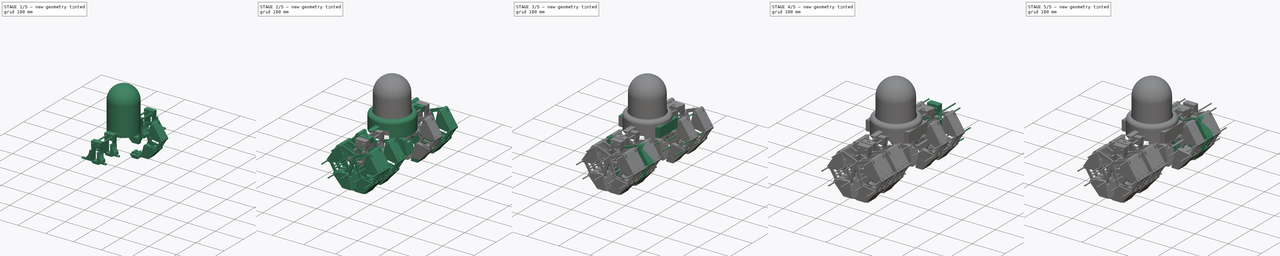
[diagram: build sequence overview — one tinted view per stage of 5, left to right]
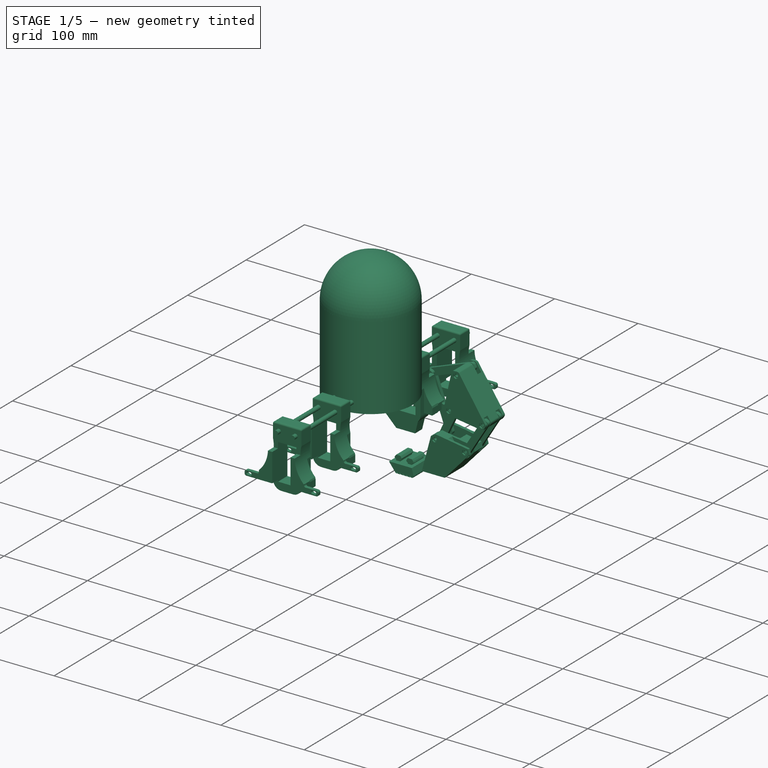
[diagram: stage 1 of 5 — iso view after this stage's code; geometry added in this stage tinted green]
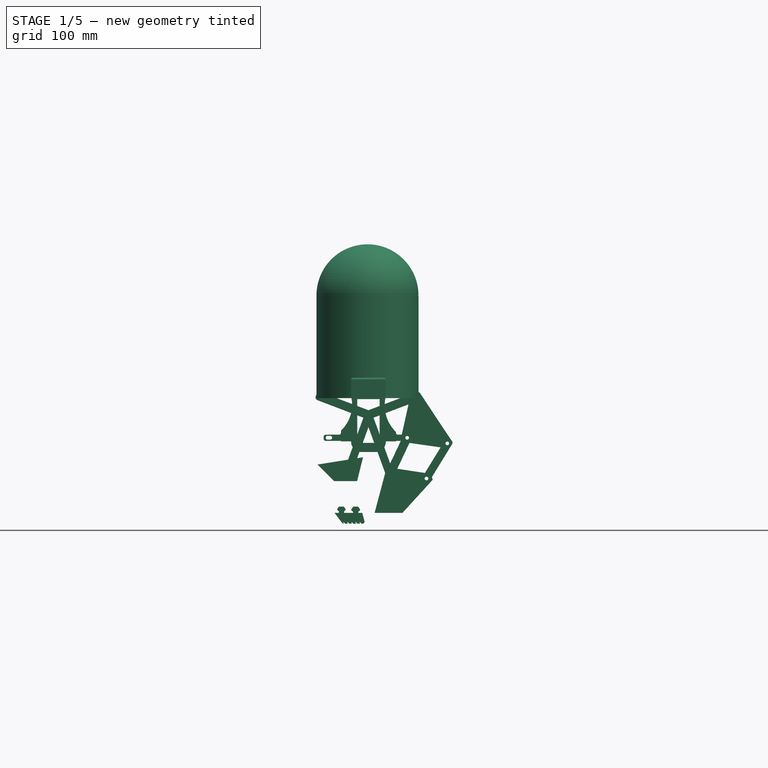
[diagram: stage 1 of 5 — front view after this stage's code; geometry added in this stage tinted green]
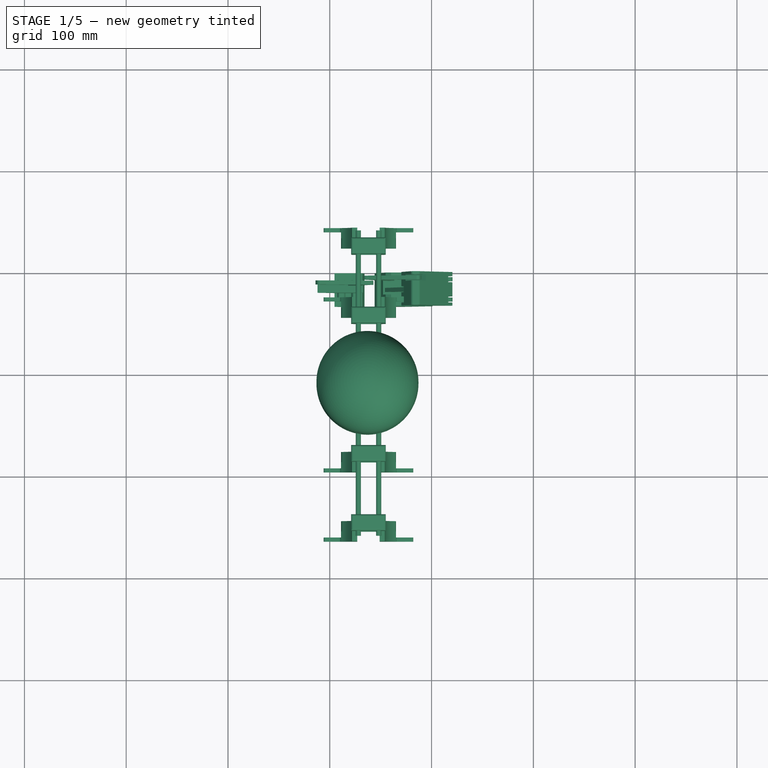
[diagram: stage 1 of 5 — top view after this stage's code; geometry added in this stage tinted green]
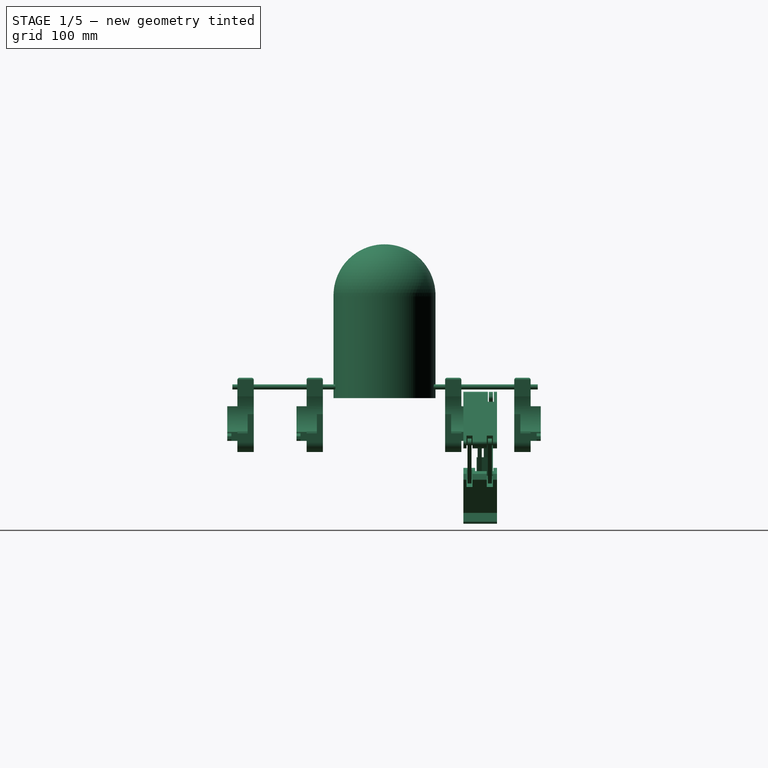
[diagram: stage 1 of 5 — right view after this stage's code; geometry added in this stage tinted green]
FCSTD DOCUMENT  (FreeCAD 0.15R4671 (Git))
Label: Doublelegs_two_servos
License: All rights reserved
LicenseURL: http://es.wikipedia.org/wiki/Todos_los_derechos_reservados
objects: PartDesign::Pad×310, Sketcher::SketchObject×309, Part::Cylinder×177, Part::Cut×153, Part::Fillet×123, Part::Mirroring×114, Part::MultiFuse×96, Part::Box×40, Part::Feature×12, Drawing::FeatureViewPart×6, App::DocumentObjectGroup×3, Part::Sphere×1, Drawing::FeaturePage×1
note: 1645 computed .brp shape members not serialized (recipe doc carries the construction recipe); baked Part::Feature solids carry a one-line shape summary decoded from their .brp

FEATURE [Part::Feature] Part__Feature  label="Servo-Futaba3003-final"
  shape: bbox 55.5 x 20 x 41.74 mm, 365 faces (baked)
FEATURE [Part::Feature] Part__Feature001  label="4-arms-horn-final"
  Placement = pos=(9,0,43) rot=(0,0,1;0rad)
  shape: bbox 38.85 x 38.85 x 6.3 mm, 96 faces (baked)
FEATURE [Part::MultiFuse] Fusion015
  Placement = pos=(38,-60,17) rot=(-0.57735,0.57735,0.57735;2.0944rad)
  Shapes = -> [Part__Feature001,Part__Feature]
FEATURE [Part::Box] Box  label="Cubo"
  Height = 73
  Length = 34
  Placement = pos=(21,-51,-14) rot=(0,0,1;0rad)
  Width = 16
FEATURE [Part::Box] Box001  label="Cubo001"
  Height = 17
  Length = 34
  Placement = pos=(21,-41,-3) rot=(0,0,1;0rad)
  Width = 16
FEATURE [Sketcher::SketchObject] Sketch068
  Placement = pos=(0,-25,0) rot=(1,0,0;1.5708rad)
  sketch-geometry (13):
    g0: LineSegment StartX=-2.98273 StartY=3.11091 StartZ=0 EndX=31.4361 EndY=3.11091 EndZ=0
    g1: LineSegment StartX=81.0173 StartY=3.11091 StartZ=0 EndX=81.0173 EndY=-2.98821 EndZ=0
    g2: LineSegment StartX=81.0173 StartY=-2.98821 StartZ=0 EndX=-2.98273 EndY=-2.98821 EndZ=0
    g3: LineSegment StartX=-2.98273 StartY=-2.98821 StartZ=0 EndX=-2.98273 EndY=3.11091 EndZ=0
    g4: LineSegment StartX=44.676 StartY=3.11091 StartZ=0 EndX=44.676 EndY=10.5544 EndZ=0
    g5: LineSegment StartX=44.676 StartY=10.5544 StartZ=0 EndX=40.8523 EndY=14.4187 EndZ=0
    g6: LineSegment StartX=35.2636 StartY=14.4187 StartZ=0 EndX=31.4361 EndY=10.5452 EndZ=0
    g7: LineSegment StartX=31.4361 StartY=10.5452 StartZ=0 EndX=31.4361 EndY=3.11091 EndZ=0
    g8: Circle [constr] CenterX=38.058 CenterY=7.82976 CenterZ=0 NormalX=0 NormalY=0 NormalZ=1 Radius=7.157
    g9: LineSegment StartX=44.676 StartY=3.11091 StartZ=0 EndX=81.0173 EndY=3.11091 EndZ=0
    g10: LineSegment StartX=35.2636 StartY=14.4187 StartZ=0 EndX=35.2636 EndY=49.8416 EndZ=0
    g11: LineSegment StartX=35.2636 StartY=49.8416 StartZ=0 EndX=40.8523 EndY=49.8416 EndZ=0
    g12: LineSegment StartX=40.8523 StartY=49.8416 StartZ=0 EndX=40.8523 EndY=14.4187 EndZ=0
  constraints (26):
    c: Coincident(g9,g1)
    c: Coincident(g1,g2)
    c: Coincident(g2,g3)
    c: Coincident(g3,g0)
    c: Horizontal(g0)
    c: Horizontal(g2)
    c: Vertical(g1)
    c: Vertical(g3)
    c: Distance(g2) = 84
    c: Coincident(g4,g5)
    c: Coincident(g6,g7)
    c: PointOnObject(g4,g8)
    c: PointOnObject(g5,g8)
    c: PointOnObject(g6,g8)
    c: PointOnObject(g6,g8)
    c: Tangent(g0,g9)
    c: Coincident(g4,g9)
    c: Coincident(g0,g7)
    c: Vertical(g7)
    c: Vertical(g4)
    c: Vertical(g10)
    c: Coincident(g10,g11)
    c: Coincident(g11,g12)
    c: Coincident(g12,g5)
    c: Vertical(g12)
    c: Horizontal(g11)
FEATURE [PartDesign::Pad] Pad064
  Length = 4
  Length2 = 100
  Placement = pos=(0,-25,0) rot=(1,0,0;1.5708rad)
  Sketch = -> Sketch068
  Type = 0
FEATURE [Part::Fillet] Fillet023
  Base = -> Pad064
  Edges = 4 edges r=3: [Edge2,Edge5,Edge8,Edge11]
FEATURE [Part::Fillet] Fillet024
  Base = -> Fillet023
  Edges = 2 edges r=6: [Edge3,Edge48]
FEATURE [Part::MultiFuse] Fusion016
  Shapes = -> [Box,Box001,Fillet024]
FEATURE [Part::Cut] Cut020
  Base = -> Fusion016
  Tool = -> Fusion015
FEATURE [Sketcher::SketchObject] Sketch109
  Placement = pos=(0,-45,0) rot=(0,0.707107,0.707107;3.14159rad)
  sketch-geometry (6):
    g0: LineSegment StartX=-65.0185 StartY=-3.4975 StartZ=0 EndX=-65.0185 EndY=4.35234 EndZ=0
    g1: LineSegment StartX=-65.0185 StartY=4.35234 StartZ=0 EndX=-54.8604 EndY=39.9097 EndZ=0
    g2: LineSegment StartX=-54.8604 StartY=39.9097 StartZ=0 EndX=-20.9866 EndY=40.0514 EndZ=0
    g3: LineSegment StartX=-20.9866 StartY=40.0514 StartZ=0 EndX=-11.0199 EndY=4.15492 EndZ=0
    g4: LineSegment StartX=-11.0199 StartY=4.15492 StartZ=0 EndX=-11.0199 EndY=-3.4975 EndZ=0
    g5: LineSegment StartX=-11.0199 StartY=-3.4975 StartZ=0 EndX=-65.0185 EndY=-3.4975 EndZ=0
  constraints (9):
    c: Vertical(g0)
    c: Coincident(g0,g1)
    c: Coincident(g1,g2)
    c: Coincident(g2,g3)
    c: Coincident(g3,g4)
    c: Vertical(g4)
    c: Coincident(g4,g5)
    c: Coincident(g5,g0)
    c: Horizontal(g5)
FEATURE [PartDesign::Pad] Pad105
  Length = 10
  Length2 = 100
  Placement = pos=(0,-45,0) rot=(0,0.707107,0.707107;3.14159rad)
  Sketch = -> Sketch109
  Type = 0
FEATURE [Part::Box] Box002  label="Cubo002"
  Height = 34
  Length = 54
  Placement = pos=(11,-35,-3) rot=(0,0,1;0rad)
  Width = 10
FEATURE [Part::Box] Box003  label="Cubo003"
  Height = 43
  Length = 22
  Placement = pos=(27,-66,-5) rot=(0,0,1;0rad)
  Width = 43
FEATURE [Part::MultiFuse] Fusion026
  Shapes = -> [Cut020,Box002,Pad105]
FEATURE [Part::Cut] Cut034
  Base = -> Fusion026
  Tool = -> Box003
FEATURE [Part::Fillet] Fillet037
  Base = -> Cut034
  Edges = 2 edges r=5: [Edge19,Edge46]
FEATURE [Part::Fillet] Fillet038
  Base = -> Fillet037
  Edges = 1 edges r=5: [Edge89]
FEATURE [Part::Fillet] Fillet039
  Base = -> Fillet038
  Edges = 1 edges r=5: [Edge111]
FEATURE [Part::Fillet] Fillet040
  Base = -> Fillet039
  Edges = 1 edges r=2: [Edge169]
FEATURE [Part::Fillet] Fillet041
  Base = -> Fillet040
  Edges = 1 edges r=2: [Edge174]
FEATURE [Part::Fillet] Fillet042
  Base = -> Fillet041
  Edges = 4 edges r=2: [Edge92,Edge104,Edge123,Edge132]
FEATURE [Part::Cylinder] Cylinder049  label="Cilindro049"
  Angle = 360
  Height = 100
  Placement = pos=(28,-14,50) rot=(1,0,0;1.5708rad)
  Radius = 2.5
FEATURE [Part::Cylinder] Cylinder050  label="Cilindro050"
  Angle = 360
  Height = 100
  Placement = pos=(48,-14,50) rot=(1,0,0;1.5708rad)
  Radius = 2.5
FEATURE [Part::MultiFuse] Fusion031
  Shapes = -> [Cylinder049,Cylinder050]
FEATURE [Part::Cut] Cut037
  Base = -> Fillet042
  Tool = -> Fusion031
FEATURE [Sketcher::SketchObject] Sketch112
  Placement = pos=(0,0,0) rot=(1,0,0;1.5708rad)
  sketch-geometry (16):
    g0: ArcOfCircle CenterX=90.533 CenterY=31.9744 CenterZ=0 NormalX=0 NormalY=0 NormalZ=1 Radius=36.5793 StartAngle=2.86775 EndAngle=3.9744
    g1: LineSegment StartX=9.091 StartY=5.39449 StartZ=0 EndX=5.88224 EndY=3.98641 EndZ=0
    g2: LineSegment StartX=5.88224 StartY=3.98641 StartZ=0 EndX=-17.219 EndY=3.98641 EndZ=0
    g3: LineSegment StartX=-17.219 StartY=3.98641 StartZ=0 EndX=-4.10979 EndY=-16.3267 EndZ=0
    g4: LineSegment StartX=-4.10979 StartY=-16.3267 StartZ=0 EndX=98.2263 EndY=-16.3267 EndZ=0
    g5: LineSegment StartX=98.2263 StartY=-16.3267 StartZ=0 EndX=89.7688 EndY=4.91216 EndZ=0
    g6: LineSegment StartX=89.7688 StartY=4.91216 StartZ=0 EndX=65.9224 EndY=4.91216 EndZ=0
    g7: LineSegment StartX=20.3881 StartY=42.6165 StartZ=0 EndX=8.06549 EndY=61.9291 EndZ=0
    g8: LineSegment StartX=59.744 StartY=41.8427 StartZ=0 EndX=55.3167 EndY=41.8666 EndZ=0
    g9: LineSegment StartX=8.06549 StartY=61.9291 StartZ=0 EndX=-36.765 EndY=14.4888 EndZ=0
    g10: LineSegment StartX=-36.765 StartY=14.4888 StartZ=0 EndX=-22.1249 EndY=-20.3777 EndZ=0
    g11: LineSegment StartX=-22.1249 StartY=-20.3777 StartZ=0 EndX=121.001 EndY=-20.3777 EndZ=0
    g12: LineSegment StartX=121.001 StartY=-20.3777 StartZ=0 EndX=109.829 EndY=14.6815 EndZ=0
    g13: LineSegment StartX=109.829 StartY=14.6815 StartZ=0 EndX=65.3304 EndY=51.0891 EndZ=0
    g14: LineSegment StartX=65.3304 StartY=51.0891 StartZ=0 EndX=59.744 EndY=41.8427 EndZ=0
    g15: ArcOfCircle CenterX=-13.032 CenterY=32.4343 CenterZ=0 NormalX=0 NormalY=0 NormalZ=1 Radius=34.9367 StartAngle=5.39811 EndAngle=6.57893
  constraints (20):
    c: Coincident(g1,g2)
    c: Horizontal(g2)
    c: Coincident(g2,g3)
    c: Coincident(g3,g4)
    c: Horizontal(g4)
    c: Coincident(g4,g5)
    c: Coincident(g5,g6)
    c: Coincident(g6,g0)
    c: Horizontal(g6)
    c: Coincident(g8,g0)
    c: Coincident(g7,g9)
    c: Coincident(g9,g10)
    c: Coincident(g10,g11)
    c: Horizontal(g11)
    c: Coincident(g11,g12)
    c: Coincident(g12,g13)
    c: Coincident(g13,g14)
    c: Coincident(g14,g8)
    c: Coincident(g15,g7)
    c: Coincident(g15,g1)
FEATURE [PartDesign::Pad] Pad108
  Length = 90
  Length2 = 100
  Placement = pos=(0,0,0) rot=(1,0,0;1.5708rad)
  Sketch = -> Sketch112
  Type = 0
FEATURE [Part::Cut] Cut046
  Base = -> Cut037
  Tool = -> Pad108
FEATURE [Sketcher::SketchObject] Sketch113
  Placement = pos=(0,-32,0) rot=(0,0.707107,0.707107;3.14159rad)
  sketch-geometry (4):
    g0: LineSegment StartX=-52.8343 StartY=56.4617 StartZ=0 EndX=-23.0263 EndY=56.4617 EndZ=0
    g1: LineSegment StartX=-23.0263 StartY=56.4617 StartZ=0 EndX=-23.0263 EndY=34.224 EndZ=0
    g2: LineSegment StartX=-23.0263 StartY=34.224 StartZ=0 EndX=-52.8343 EndY=34.224 EndZ=0
    g3: LineSegment StartX=-52.8343 StartY=34.224 StartZ=0 EndX=-52.8343 EndY=56.4617 EndZ=0
  constraints (8):
    c: Coincident(g0,g1)
    c: Coincident(g1,g2)
    c: Coincident(g2,g3)
    c: Coincident(g3,g0)
    c: Horizontal(g0)
    c: Horizontal(g2)
    c: Vertical(g1)
    c: Vertical(g3)
FEATURE [PartDesign::Pad] Pad109
  Length = 40
  Length2 = 100
  Placement = pos=(0,-32,0) rot=(0,0.707107,0.707107;3.14159rad)
  Sketch = -> Sketch113
  Type = 0
FEATURE [Part::Cut] Cut047
  Base = -> Cut046
  Tool = -> Pad109
FEATURE [Part::Box] Box009  label="Cubo009"
  Height = 6
  Length = 33
  Placement = pos=(-6,-29,-3) rot=(0,0,1;0rad)
  Width = 4
FEATURE [Sketcher::SketchObject] Sketch116
  Placement = pos=(0,0,0) rot=(1,0,0;1.5708rad)
  sketch-geometry (4):
    g0: ArcOfCircle CenterX=0.480275 CenterY=0.070284 CenterZ=0 NormalX=0 NormalY=0 NormalZ=1 Radius=1.84768 StartAngle=4.71239 EndAngle=7.85398
    g1: ArcOfCircle CenterX=-2.13195 CenterY=0.070284 CenterZ=0 NormalX=0 NormalY=0 NormalZ=1 Radius=1.84768 StartAngle=1.5708 EndAngle=4.71239
    g2: LineSegment StartX=0.480275 StartY=1.91796 StartZ=0 EndX=-2.13195 EndY=1.91796 EndZ=0
    g3: LineSegment StartX=0.480275 StartY=-1.77739 StartZ=0 EndX=-2.13195 EndY=-1.77739 EndZ=0
  constraints (6):
    c: Tangent(g0,g3) = 1.5708
    c: Tangent(g0,g2) = -1.5708
    c: Tangent(g2,g1) = -1.5708
    c: Tangent(g3,g1) = 1.5708
    c: Horizontal(g2)
    c: Equal(g0,g1)
FEATURE [PartDesign::Pad] Pad112
  Length = 180
  Length2 = 100
  Placement = pos=(0,0,0) rot=(1,0,0;1.5708rad)
  Sketch = -> Sketch116
  Type = 0
FEATURE [Sketcher::SketchObject] Sketch117
  Placement = pos=(77.5,0,0) rot=(1,0,0;1.5708rad)
  sketch-geometry (4):
    g0: ArcOfCircle CenterX=0.480275 CenterY=0.070284 CenterZ=0 NormalX=0 NormalY=0 NormalZ=1 Radius=1.84768 StartAngle=4.71239 EndAngle=7.85398
    g1: ArcOfCircle CenterX=-2.13195 CenterY=0.070284 CenterZ=0 NormalX=0 NormalY=0 NormalZ=1 Radius=1.84768 StartAngle=1.5708 EndAngle=4.71239
    g2: LineSegment StartX=0.480275 StartY=1.91796 StartZ=0 EndX=-2.13195 EndY=1.91796 EndZ=0
    g3: LineSegment StartX=0.480275 StartY=-1.77739 StartZ=0 EndX=-2.13195 EndY=-1.77739 EndZ=0
  constraints (6):
    c: Tangent(g0,g3) = 1.5708
    c: Tangent(g0,g2) = -1.5708
    c: Tangent(g2,g1) = -1.5708
    c: Tangent(g3,g1) = 1.5708
    c: Horizontal(g2)
    c: Equal(g0,g1)
FEATURE [PartDesign::Pad] Pad113
  Length = 180
  Length2 = 100
  Placement = pos=(77.5,0,0) rot=(1,0,0;1.5708rad)
  Sketch = -> Sketch117
  Type = 0
FEATURE [Part::Box] Box010  label="Cubo010"
  Height = 6
  Length = 33
  Placement = pos=(49,-29,-3) rot=(0,0,1;0rad)
  Width = 4
FEATURE [Part::MultiFuse] Fusion033
  Shapes = -> [Cut047,Box009,Box010]
FEATURE [Part::Fillet] Fillet051
  Base = -> Fusion033
  Edges = 4 edges r=2: [Edge2,Edge4,Edge246,Edge248]
FEATURE [Part::Cut] Cut048
  Base = -> Fillet051
  Tool = -> Pad113
FEATURE [Part::Feature] Part__Feature006  label="Servo-Futaba3003-final003"
  shape: bbox 55.5 x 20 x 41.74 mm, 365 faces (baked)
FEATURE [Part::Feature] Part__Feature007  label="4-arms-horn-final003"
  Placement = pos=(9,0,43) rot=(0,0,1;0rad)
  shape: bbox 38.85 x 38.85 x 6.3 mm, 96 faces (baked)
FEATURE [Part::MultiFuse] Fusion034
  Placement = pos=(38,-60,17) rot=(-0.57735,0.57735,0.57735;2.0944rad)
  Shapes = -> [Part__Feature007,Part__Feature006]
FEATURE [Part::Box] Box011  label="Cubo011"
  Height = 73
  Length = 34
  Placement = pos=(21,-51,-14) rot=(0,0,1;0rad)
  Width = 16
FEATURE [Part::Box] Box012  label="Cubo012"
  Height = 17
  Length = 34
  Placement = pos=(21,-41,-3) rot=(0,0,1;0rad)
  Width = 16
FEATURE [Sketcher::SketchObject] Sketch118
  Placement = pos=(0,-25,0) rot=(1,0,0;1.5708rad)
  sketch-geometry (13):
    g0: LineSegment StartX=-2.98273 StartY=3.11091 StartZ=0 EndX=31.4361 EndY=3.11091 EndZ=0
    g1: LineSegment StartX=81.0173 StartY=3.11091 StartZ=0 EndX=81.0173 EndY=-2.98821 EndZ=0
    g2: LineSegment StartX=81.0173 StartY=-2.98821 StartZ=0 EndX=-2.98273 EndY=-2.98821 EndZ=0
    g3: LineSegment StartX=-2.98273 StartY=-2.98821 StartZ=0 EndX=-2.98273 EndY=3.11091 EndZ=0
    g4: LineSegment StartX=44.676 StartY=3.11091 StartZ=0 EndX=44.676 EndY=10.5544 EndZ=0
    g5: LineSegment StartX=44.676 StartY=10.5544 StartZ=0 EndX=40.8523 EndY=14.4187 EndZ=0
    g6: LineSegment StartX=35.2636 StartY=14.4187 StartZ=0 EndX=31.4361 EndY=10.5452 EndZ=0
    g7: LineSegment StartX=31.4361 StartY=10.5452 StartZ=0 EndX=31.4361 EndY=3.11091 EndZ=0
    g8: Circle [constr] CenterX=38.058 CenterY=7.82976 CenterZ=0 NormalX=0 NormalY=0 NormalZ=1 Radius=7.157
    g9: LineSegment StartX=44.676 StartY=3.11091 StartZ=0 EndX=81.0173 EndY=3.11091 EndZ=0
    g10: LineSegment StartX=35.2636 StartY=14.4187 StartZ=0 EndX=35.2636 EndY=49.8416 EndZ=0
    g11: LineSegment StartX=35.2636 StartY=49.8416 StartZ=0 EndX=40.8523 EndY=49.8416 EndZ=0
    g12: LineSegment StartX=40.8523 StartY=49.8416 StartZ=0 EndX=40.8523 EndY=14.4187 EndZ=0
  constraints (26):
    c: Coincident(g9,g1)
    c: Coincident(g1,g2)
    c: Coincident(g2,g3)
    c: Coincident(g3,g0)
    c: Horizontal(g0)
    c: Horizontal(g2)
    c: Vertical(g1)
    c: Vertical(g3)
    c: Distance(g2) = 84
    c: Coincident(g4,g5)
    c: Coincident(g6,g7)
    c: PointOnObject(g4,g8)
    c: PointOnObject(g5,g8)
    c: PointOnObject(g6,g8)
    c: PointOnObject(g6,g8)
    c: Tangent(g0,g9)
    c: Coincident(g4,g9)
    c: Coincident(g0,g7)
    c: Vertical(g7)
    c: Vertical(g4)
    c: Vertical(g10)
    c: Coincident(g10,g11)
    c: Coincident(g11,g12)
    c: Coincident(g12,g5)
    c: Vertical(g12)
    c: Horizontal(g11)
FEATURE [PartDesign::Pad] Pad114
  Length = 4
  Length2 = 100
  Placement = pos=(0,-25,0) rot=(1,0,0;1.5708rad)
  Sketch = -> Sketch118
  Type = 0
FEATURE [Part::Fillet] Fillet052
  Base = -> Pad114
  Edges = 4 edges r=3: [Edge2,Edge5,Edge8,Edge11]
FEATURE [Part::Fillet] Fillet053
  Base = -> Fillet052
  Edges = 2 edges r=6: [Edge3,Edge48]
FEATURE [Part::MultiFuse] Fusion035
  Shapes = -> [Box011,Box012,Fillet053]
FEATURE [Part::Cut] Cut050
  Base = -> Fusion035
  Tool = -> Fusion034
FEATURE [Sketcher::SketchObject] Sketch119
  Placement = pos=(0,-45,0) rot=(0,0.707107,0.707107;3.14159rad)
  sketch-geometry (6):
    g0: LineSegment StartX=-65.0185 StartY=-3.4975 StartZ=0 EndX=-65.0185 EndY=4.35234 EndZ=0
    g1: LineSegment StartX=-65.0185 StartY=4.35234 StartZ=0 EndX=-54.8604 EndY=39.9097 EndZ=0
    g2: LineSegment StartX=-54.8604 StartY=39.9097 StartZ=0 EndX=-20.9866 EndY=40.0514 EndZ=0
    g3: LineSegment StartX=-20.9866 StartY=40.0514 StartZ=0 EndX=-11.0199 EndY=4.15492 EndZ=0
    g4: LineSegment StartX=-11.0199 StartY=4.15492 StartZ=0 EndX=-11.0199 EndY=-3.4975 EndZ=0
    g5: LineSegment StartX=-11.0199 StartY=-3.4975 StartZ=0 EndX=-65.0185 EndY=-3.4975 EndZ=0
  constraints (9):
    c: Vertical(g0)
    c: Coincident(g0,g1)
    c: Coincident(g1,g2)
    c: Coincident(g2,g3)
    c: Coincident(g3,g4)
    c: Vertical(g4)
    c: Coincident(g4,g5)
    c: Coincident(g5,g0)
    c: Horizontal(g5)
FEATURE [PartDesign::Pad] Pad115
  Length = 10
  Length2 = 100
  Placement = pos=(0,-45,0) rot=(0,0.707107,0.707107;3.14159rad)
  Sketch = -> Sketch119
  Type = 0
FEATURE [Part::Box] Box013  label="Cubo013"
  Height = 34
  Length = 54
  Placement = pos=(11,-35,-3) rot=(0,0,1;0rad)
  Width = 10
FEATURE [Part::Box] Box014  label="Cubo014"
  Height = 43
  Length = 22
  Placement = pos=(27,-66,-5) rot=(0,0,1;0rad)
  Width = 43
FEATURE [Part::MultiFuse] Fusion036
  Shapes = -> [Cut050,Box013,Pad115]
FEATURE [Part::Cut] Cut051
  Base = -> Fusion036
  Tool = -> Box014
FEATURE [Part::Fillet] Fillet054
  Base = -> Cut051
  Edges = 2 edges r=5: [Edge19,Edge46]
FEATURE [Part::Fillet] Fillet055
  Base = -> Fillet054
  Edges = 1 edges r=5: [Edge89]
FEATURE [Part::Fillet] Fillet056
  Base = -> Fillet055
  Edges = 1 edges r=5: [Edge111]
FEATURE [Part::Fillet] Fillet057
  Base = -> Fillet056
  Edges = 1 edges r=2: [Edge169]
FEATURE [Part::Fillet] Fillet058
  Base = -> Fillet057
  Edges = 1 edges r=2: [Edge174]
FEATURE [Part::Fillet] Fillet059
  Base = -> Fillet058
  Edges = 4 edges r=2: [Edge92,Edge104,Edge123,Edge132]
FEATURE [Part::Cylinder] Cylinder063  label="Cilindro063"
  Angle = 360
  Height = 100
  Placement = pos=(28,-14,50) rot=(1,0,0;1.5708rad)
  Radius = 2.5
FEATURE [Part::Cylinder] Cylinder064  label="Cilindro064"
  Angle = 360
  Height = 100
  Placement = pos=(48,-14,50) rot=(1,0,0;1.5708rad)
  Radius = 2.5
FEATURE [Part::MultiFuse] Fusion037
  Shapes = -> [Cylinder063,Cylinder064]
FEATURE [Part::Cut] Cut052
  Base = -> Fillet059
  Tool = -> Fusion037
FEATURE [Sketcher::SketchObject] Sketch120
  Placement = pos=(0,0,0) rot=(1,0,0;1.5708rad)
  sketch-geometry (16):
    g0: ArcOfCircle CenterX=90.533 CenterY=31.9744 CenterZ=0 NormalX=0 NormalY=0 NormalZ=1 Radius=36.5793 StartAngle=2.86775 EndAngle=3.9744
    g1: LineSegment StartX=9.091 StartY=5.39449 StartZ=0 EndX=5.88224 EndY=3.98641 EndZ=0
    g2: LineSegment StartX=5.88224 StartY=3.98641 StartZ=0 EndX=-17.219 EndY=3.98641 EndZ=0
    g3: LineSegment StartX=-17.219 StartY=3.98641 StartZ=0 EndX=-4.10979 EndY=-16.3267 EndZ=0
    g4: LineSegment StartX=-4.10979 StartY=-16.3267 StartZ=0 EndX=98.2263 EndY=-16.3267 EndZ=0
    g5: LineSegment StartX=98.2263 StartY=-16.3267 StartZ=0 EndX=89.7688 EndY=4.91216 EndZ=0
    g6: LineSegment StartX=89.7688 StartY=4.91216 StartZ=0 EndX=65.9224 EndY=4.91216 EndZ=0
    g7: LineSegment StartX=20.3881 StartY=42.6165 StartZ=0 EndX=8.06549 EndY=61.9291 EndZ=0
    g8: LineSegment StartX=59.744 StartY=41.8427 StartZ=0 EndX=55.3167 EndY=41.8666 EndZ=0
    g9: LineSegment StartX=8.06549 StartY=61.9291 StartZ=0 EndX=-36.765 EndY=14.4888 EndZ=0
    g10: LineSegment StartX=-36.765 StartY=14.4888 StartZ=0 EndX=-22.1249 EndY=-20.3777 EndZ=0
    g11: LineSegment StartX=-22.1249 StartY=-20.3777 StartZ=0 EndX=121.001 EndY=-20.3777 EndZ=0
    g12: LineSegment StartX=121.001 StartY=-20.3777 StartZ=0 EndX=109.829 EndY=14.6815 EndZ=0
    g13: LineSegment StartX=109.829 StartY=14.6815 StartZ=0 EndX=65.3304 EndY=51.0891 EndZ=0
    g14: LineSegment StartX=65.3304 StartY=51.0891 StartZ=0 EndX=59.744 EndY=41.8427 EndZ=0
    g15: ArcOfCircle CenterX=-13.032 CenterY=32.4343 CenterZ=0 NormalX=0 NormalY=0 NormalZ=1 Radius=34.9367 StartAngle=5.39811 EndAngle=6.57893
  constraints (20):
    c: Coincident(g1,g2)
    c: Horizontal(g2)
    c: Coincident(g2,g3)
    c: Coincident(g3,g4)
    c: Horizontal(g4)
    c: Coincident(g4,g5)
    c: Coincident(g5,g6)
    c: Coincident(g6,g0)
    c: Horizontal(g6)
    c: Coincident(g8,g0)
    c: Coincident(g7,g9)
    c: Coincident(g9,g10)
    c: Coincident(g10,g11)
    c: Horizontal(g11)
    c: Coincident(g11,g12)
    c: Coincident(g12,g13)
    c: Coincident(g13,g14)
    c: Coincident(g14,g8)
    c: Coincident(g15,g7)
    c: Coincident(g15,g1)
FEATURE [PartDesign::Pad] Pad116
  Length = 90
  Length2 = 100
  Placement = pos=(0,0,0) rot=(1,0,0;1.5708rad)
  Sketch = -> Sketch120
  Type = 0
FEATURE [Part::Cut] Cut053
  Base = -> Cut052
  Tool = -> Pad116
FEATURE [Sketcher::SketchObject] Sketch121
  Placement = pos=(0,-32,0) rot=(0,0.707107,0.707107;3.14159rad)
  sketch-geometry (4):
    g0: LineSegment StartX=-52.8343 StartY=56.4617 StartZ=0 EndX=-23.0263 EndY=56.4617 EndZ=0
    g1: LineSegment StartX=-23.0263 StartY=56.4617 StartZ=0 EndX=-23.0263 EndY=34.224 EndZ=0
    g2: LineSegment StartX=-23.0263 StartY=34.224 StartZ=0 EndX=-52.8343 EndY=34.224 EndZ=0
    g3: LineSegment StartX=-52.8343 StartY=34.224 StartZ=0 EndX=-52.8343 EndY=56.4617 EndZ=0
  constraints (8):
    c: Coincident(g0,g1)
    c: Coincident(g1,g2)
    c: Coincident(g2,g3)
    c: Coincident(g3,g0)
    c: Horizontal(g0)
    c: Horizontal(g2)
    c: Vertical(g1)
    c: Vertical(g3)
FEATURE [PartDesign::Pad] Pad117
  Length = 40
  Length2 = 100
  Placement = pos=(0,-32,0) rot=(0,0.707107,0.707107;3.14159rad)
  Sketch = -> Sketch121
  Type = 0
FEATURE [Part::Cut] Cut054
  Base = -> Cut053
  Tool = -> Pad117
FEATURE [Part::Box] Box015  label="Cubo015"
  Height = 6
  Length = 33
  Placement = pos=(-6,-29,-3) rot=(0,0,1;0rad)
  Width = 4
FEATURE [Sketcher::SketchObject] Sketch122
  Placement = pos=(0,0,0) rot=(1,0,0;1.5708rad)
  sketch-geometry (4):
    g0: ArcOfCircle CenterX=0.480275 CenterY=0.070284 CenterZ=0 NormalX=0 NormalY=0 NormalZ=1 Radius=1.84768 StartAngle=4.71239 EndAngle=7.85398
    g1: ArcOfCircle CenterX=-2.13195 CenterY=0.070284 CenterZ=0 NormalX=0 NormalY=0 NormalZ=1 Radius=1.84768 StartAngle=1.5708 EndAngle=4.71239
    g2: LineSegment StartX=0.480275 StartY=1.91796 StartZ=0 EndX=-2.13195 EndY=1.91796 EndZ=0
    g3: LineSegment StartX=0.480275 StartY=-1.77739 StartZ=0 EndX=-2.13195 EndY=-1.77739 EndZ=0
  constraints (6):
    c: Tangent(g0,g3) = 1.5708
    c: Tangent(g0,g2) = -1.5708
    c: Tangent(g2,g1) = -1.5708
    c: Tangent(g3,g1) = 1.5708
    c: Horizontal(g2)
    c: Equal(g0,g1)
FEATURE [PartDesign::Pad] Pad118
  Length = 180
  Length2 = 100
  Placement = pos=(0,0,0) rot=(1,0,0;1.5708rad)
  Sketch = -> Sketch122
  Type = 0
FEATURE [Sketcher::SketchObject] Sketch123
  Placement = pos=(77.5,0,0) rot=(1,0,0;1.5708rad)
  sketch-geometry (4):
    g0: ArcOfCircle CenterX=0.480275 CenterY=0.070284 CenterZ=0 NormalX=0 NormalY=0 NormalZ=1 Radius=1.84768 StartAngle=4.71239 EndAngle=7.85398
    g1: ArcOfCircle CenterX=-2.13195 CenterY=0.070284 CenterZ=0 NormalX=0 NormalY=0 NormalZ=1 Radius=1.84768 StartAngle=1.5708 EndAngle=4.71239
    g2: LineSegment StartX=0.480275 StartY=1.91796 StartZ=0 EndX=-2.13195 EndY=1.91796 EndZ=0
    g3: LineSegment StartX=0.480275 StartY=-1.77739 StartZ=0 EndX=-2.13195 EndY=-1.77739 EndZ=0
  constraints (6):
    c: Tangent(g0,g3) = 1.5708
    c: Tangent(g0,g2) = -1.5708
    c: Tangent(g2,g1) = -1.5708
    c: Tangent(g3,g1) = 1.5708
    c: Horizontal(g2)
    c: Equal(g0,g1)
FEATURE [PartDesign::Pad] Pad119
  Length = 180
  Length2 = 100
  Placement = pos=(77.5,0,0) rot=(1,0,0;1.5708rad)
  Sketch = -> Sketch123
  Type = 0
FEATURE [Part::Box] Box016  label="Cubo016"
  Height = 6
  Length = 33
  Placement = pos=(49,-29,-3) rot=(0,0,1;0rad)
  Width = 4
FEATURE [Part::MultiFuse] Fusion038
  Shapes = -> [Cut054,Box015,Box016]
FEATURE [Part::Fillet] Fillet060
  Base = -> Fusion038
  Edges = 4 edges r=2: [Edge2,Edge4,Edge246,Edge248]
FEATURE [Part::Cut] Cut055
  Base = -> Fillet060
  Tool = -> Pad119
FEATURE [Part::Feature] Part__Feature008  label="Servo-Futaba3003-final004"
  shape: bbox 55.5 x 20 x 41.74 mm, 365 faces (baked)
FEATURE [Part::Feature] Part__Feature009  label="4-arms-horn-final004"
  Placement = pos=(9,0,43) rot=(0,0,1;0rad)
  shape: bbox 38.85 x 38.85 x 6.3 mm, 96 faces (baked)
FEATURE [Part::MultiFuse] Fusion055
  Placement = pos=(38,-60,17) rot=(-0.57735,0.57735,0.57735;2.0944rad)
  Shapes = -> [Part__Feature009,Part__Feature008]
FEATURE [Part::Box] Box018  label="Cubo018"
  Height = 73
  Length = 34
  Placement = pos=(21,-51,-14) rot=(0,0,1;0rad)
  Width = 16
FEATURE [Part::Box] Box019  label="Cubo019"
  Height = 17
  Length = 34
  Placement = pos=(21,-41,-3) rot=(0,0,1;0rad)
  Width = 16
FEATURE [Sketcher::SketchObject] Sketch202
  Placement = pos=(0,-25,0) rot=(1,0,0;1.5708rad)
  sketch-geometry (13):
    g0: LineSegment StartX=-2.98273 StartY=3.11091 StartZ=0 EndX=31.4361 EndY=3.11091 EndZ=0
    g1: LineSegment StartX=81.0173 StartY=3.11091 StartZ=0 EndX=81.0173 EndY=-2.98821 EndZ=0
    g2: LineSegment StartX=81.0173 StartY=-2.98821 StartZ=0 EndX=-2.98273 EndY=-2.98821 EndZ=0
    g3: LineSegment StartX=-2.98273 StartY=-2.98821 StartZ=0 EndX=-2.98273 EndY=3.11091 EndZ=0
    g4: LineSegment StartX=44.676 StartY=3.11091 StartZ=0 EndX=44.676 EndY=10.5544 EndZ=0
    g5: LineSegment StartX=44.676 StartY=10.5544 StartZ=0 EndX=40.8523 EndY=14.4187 EndZ=0
    g6: LineSegment StartX=35.2636 StartY=14.4187 StartZ=0 EndX=31.4361 EndY=10.5452 EndZ=0
    g7: LineSegment StartX=31.4361 StartY=10.5452 StartZ=0 EndX=31.4361 EndY=3.11091 EndZ=0
    g8: Circle [constr] CenterX=38.058 CenterY=7.82976 CenterZ=0 NormalX=0 NormalY=0 NormalZ=1 Radius=7.157
    g9: LineSegment StartX=44.676 StartY=3.11091 StartZ=0 EndX=81.0173 EndY=3.11091 EndZ=0
    g10: LineSegment StartX=35.2636 StartY=14.4187 StartZ=0 EndX=35.2636 EndY=49.8416 EndZ=0
    g11: LineSegment StartX=35.2636 StartY=49.8416 StartZ=0 EndX=40.8523 EndY=49.8416 EndZ=0
    g12: LineSegment StartX=40.8523 StartY=49.8416 StartZ=0 EndX=40.8523 EndY=14.4187 EndZ=0
  constraints (26):
    c: Coincident(g9,g1)
    c: Coincident(g1,g2)
    c: Coincident(g2,g3)
    c: Coincident(g3,g0)
    c: Horizontal(g0)
    c: Horizontal(g2)
    c: Vertical(g1)
    c: Vertical(g3)
    c: Distance(g2) = 84
    c: Coincident(g4,g5)
    c: Coincident(g6,g7)
    c: PointOnObject(g4,g8)
    c: PointOnObject(g5,g8)
    c: PointOnObject(g6,g8)
    c: PointOnObject(g6,g8)
    c: Tangent(g0,g9)
    c: Coincident(g4,g9)
    c: Coincident(g0,g7)
    c: Vertical(g7)
    c: Vertical(g4)
    c: Vertical(g10)
    c: Coincident(g10,g11)
    c: Coincident(g11,g12)
    c: Coincident(g12,g5)
    c: Vertical(g12)
    c: Horizontal(g11)
FEATURE [PartDesign::Pad] Pad198
  Length = 4
  Length2 = 100
  Placement = pos=(0,-25,0) rot=(1,0,0;1.5708rad)
  Sketch = -> Sketch202
  Type = 0
FEATURE [Part::Fillet] Fillet081
  Base = -> Pad198
  Edges = 4 edges r=3: [Edge2,Edge5,Edge8,Edge11]
FEATURE [Part::Fillet] Fillet082
  Base = -> Fillet081
  Edges = 2 edges r=6: [Edge3,Edge48]
FEATURE [Part::MultiFuse] Fusion056
  Shapes = -> [Box018,Box019,Fillet082]
FEATURE [Part::Cut] Cut083
  Base = -> Fusion056
  Tool = -> Fusion055
FEATURE [Sketcher::SketchObject] Sketch203
  Placement = pos=(0,-45,0) rot=(0,0.707107,0.707107;3.14159rad)
  sketch-geometry (6):
    g0: LineSegment StartX=-65.0185 StartY=-3.4975 StartZ=0 EndX=-65.0185 EndY=4.35234 EndZ=0
    g1: LineSegment StartX=-65.0185 StartY=4.35234 StartZ=0 EndX=-54.8604 EndY=39.9097 EndZ=0
    g2: LineSegment StartX=-54.8604 StartY=39.9097 StartZ=0 EndX=-20.9866 EndY=40.0514 EndZ=0
    g3: LineSegment StartX=-20.9866 StartY=40.0514 StartZ=0 EndX=-11.0199 EndY=4.15492 EndZ=0
    g4: LineSegment StartX=-11.0199 StartY=4.15492 StartZ=0 EndX=-11.0199 EndY=-3.4975 EndZ=0
    g5: LineSegment StartX=-11.0199 StartY=-3.4975 StartZ=0 EndX=-65.0185 EndY=-3.4975 EndZ=0
  constraints (9):
    c: Vertical(g0)
    c: Coincident(g0,g1)
    c: Coincident(g1,g2)
    c: Coincident(g2,g3)
    c: Coincident(g3,g4)
    c: Vertical(g4)
    c: Coincident(g4,g5)
    c: Coincident(g5,g0)
    c: Horizontal(g5)
FEATURE [PartDesign::Pad] Pad199
  Length = 10
  Length2 = 100
  Placement = pos=(0,-45,0) rot=(0,0.707107,0.707107;3.14159rad)
  Sketch = -> Sketch203
  Type = 0
FEATURE [Part::Box] Box020  label="Cubo020"
  Height = 34
  Length = 54
  Placement = pos=(11,-35,-3) rot=(0,0,1;0rad)
  Width = 10
FEATURE [Part::Box] Box021  label="Cubo021"
  Height = 43
  Length = 22
  Placement = pos=(27,-66,-5) rot=(0,0,1;0rad)
  Width = 43
FEATURE [Part::MultiFuse] Fusion057
  Shapes = -> [Cut083,Box020,Pad199]
FEATURE [Part::Cut] Cut084
  Base = -> Fusion057
  Tool = -> Box021
FEATURE [Part::Fillet] Fillet083
  Base = -> Cut084
  Edges = 2 edges r=5: [Edge19,Edge46]
FEATURE [Part::Fillet] Fillet084
  Base = -> Fillet083
  Edges = 1 edges r=5: [Edge89]
FEATURE [Part::Fillet] Fillet085
  Base = -> Fillet084
  Edges = 1 edges r=5: [Edge111]
FEATURE [Part::Fillet] Fillet086
  Base = -> Fillet085
  Edges = 1 edges r=2: [Edge169]
FEATURE [Part::Fillet] Fillet087
  Base = -> Fillet086
  Edges = 1 edges r=2: [Edge174]
FEATURE [Part::Fillet] Fillet088
  Base = -> Fillet087
  Edges = 4 edges r=2: [Edge92,Edge104,Edge123,Edge132]
FEATURE [Part::Cylinder] Cylinder111  label="Cilindro111"
  Angle = 360
  Height = 100
  Placement = pos=(28,-14,50) rot=(1,0,0;1.5708rad)
  Radius = 2.5
FEATURE [Part::Cylinder] Cylinder112  label="Cilindro112"
  Angle = 360
  Height = 100
  Placement = pos=(48,-14,50) rot=(1,0,0;1.5708rad)
  Radius = 2.5
FEATURE [Part::MultiFuse] Fusion058
  Shapes = -> [Cylinder111,Cylinder112]
FEATURE [Part::Cut] Cut085
  Base = -> Fillet088
  Tool = -> Fusion058
FEATURE [Sketcher::SketchObject] Sketch204
  Placement = pos=(0,0,0) rot=(1,0,0;1.5708rad)
  sketch-geometry (16):
    g0: ArcOfCircle CenterX=90.533 CenterY=31.9744 CenterZ=0 NormalX=0 NormalY=0 NormalZ=1 Radius=36.5793 StartAngle=2.86775 EndAngle=3.9744
    g1: LineSegment StartX=9.091 StartY=5.39449 StartZ=0 EndX=5.88224 EndY=3.98641 EndZ=0
    g2: LineSegment StartX=5.88224 StartY=3.98641 StartZ=0 EndX=-17.219 EndY=3.98641 EndZ=0
    g3: LineSegment StartX=-17.219 StartY=3.98641 StartZ=0 EndX=-4.10979 EndY=-16.3267 EndZ=0
    g4: LineSegment StartX=-4.10979 StartY=-16.3267 StartZ=0 EndX=98.2263 EndY=-16.3267 EndZ=0
    g5: LineSegment StartX=98.2263 StartY=-16.3267 StartZ=0 EndX=89.7688 EndY=4.91216 EndZ=0
    g6: LineSegment StartX=89.7688 StartY=4.91216 StartZ=0 EndX=65.9224 EndY=4.91216 EndZ=0
    g7: LineSegment StartX=20.3881 StartY=42.6165 StartZ=0 EndX=8.06549 EndY=61.9291 EndZ=0
    g8: LineSegment StartX=59.744 StartY=41.8427 StartZ=0 EndX=55.3167 EndY=41.8666 EndZ=0
    g9: LineSegment StartX=8.06549 StartY=61.9291 StartZ=0 EndX=-36.765 EndY=14.4888 EndZ=0
    g10: LineSegment StartX=-36.765 StartY=14.4888 StartZ=0 EndX=-22.1249 EndY=-20.3777 EndZ=0
    g11: LineSegment StartX=-22.1249 StartY=-20.3777 StartZ=0 EndX=121.001 EndY=-20.3777 EndZ=0
    g12: LineSegment StartX=121.001 StartY=-20.3777 StartZ=0 EndX=109.829 EndY=14.6815 EndZ=0
    g13: LineSegment StartX=109.829 StartY=14.6815 StartZ=0 EndX=65.3304 EndY=51.0891 EndZ=0
    g14: LineSegment StartX=65.3304 StartY=51.0891 StartZ=0 EndX=59.744 EndY=41.8427 EndZ=0
    g15: ArcOfCircle CenterX=-13.032 CenterY=32.4343 CenterZ=0 NormalX=0 NormalY=0 NormalZ=1 Radius=34.9367 StartAngle=5.39811 EndAngle=6.57893
  constraints (20):
    c: Coincident(g1,g2)
    c: Horizontal(g2)
    c: Coincident(g2,g3)
    c: Coincident(g3,g4)
    c: Horizontal(g4)
    c: Coincident(g4,g5)
    c: Coincident(g5,g6)
    c: Coincident(g6,g0)
    c: Horizontal(g6)
    c: Coincident(g8,g0)
    c: Coincident(g7,g9)
    c: Coincident(g9,g10)
    c: Coincident(g10,g11)
    c: Horizontal(g11)
    c: Coincident(g11,g12)
    c: Coincident(g12,g13)
    c: Coincident(g13,g14)
    c: Coincident(g14,g8)
    c: Coincident(g15,g7)
    c: Coincident(g15,g1)
FEATURE [PartDesign::Pad] Pad200
  Length = 90
  Length2 = 100
  Placement = pos=(0,0,0) rot=(1,0,0;1.5708rad)
  Sketch = -> Sketch204
  Type = 0
FEATURE [Part::Cut] Cut086
  Base = -> Cut085
  Tool = -> Pad200
FEATURE [Sketcher::SketchObject] Sketch205
  Placement = pos=(0,-32,0) rot=(0,0.707107,0.707107;3.14159rad)
  sketch-geometry (4):
    g0: LineSegment StartX=-52.8343 StartY=56.4617 StartZ=0 EndX=-23.0263 EndY=56.4617 EndZ=0
    g1: LineSegment StartX=-23.0263 StartY=56.4617 StartZ=0 EndX=-23.0263 EndY=34.224 EndZ=0
    g2: LineSegment StartX=-23.0263 StartY=34.224 StartZ=0 EndX=-52.8343 EndY=34.224 EndZ=0
    g3: LineSegment StartX=-52.8343 StartY=34.224 StartZ=0 EndX=-52.8343 EndY=56.4617 EndZ=0
  constraints (8):
    c: Coincident(g0,g1)
    c: Coincident(g1,g2)
    c: Coincident(g2,g3)
    c: Coincident(g3,g0)
    c: Horizontal(g0)
    c: Horizontal(g2)
    c: Vertical(g1)
    c: Vertical(g3)
FEATURE [PartDesign::Pad] Pad201
  Length = 40
  Length2 = 100
  Placement = pos=(0,-32,0) rot=(0,0.707107,0.707107;3.14159rad)
  Sketch = -> Sketch205
  Type = 0
FEATURE [Part::Cut] Cut087
  Base = -> Cut086
  Tool = -> Pad201
FEATURE [Part::Box] Box022  label="Cubo022"
  Height = 6
  Length = 33
  Placement = pos=(-6,-29,-3) rot=(0,0,1;0rad)
  Width = 4
FEATURE [Sketcher::SketchObject] Sketch206
  Placement = pos=(0,0,0) rot=(1,0,0;1.5708rad)
  sketch-geometry (4):
    g0: ArcOfCircle CenterX=0.480275 CenterY=0.070284 CenterZ=0 NormalX=0 NormalY=0 NormalZ=1 Radius=1.84768 StartAngle=4.71239 EndAngle=7.85398
    g1: ArcOfCircle CenterX=-2.13195 CenterY=0.070284 CenterZ=0 NormalX=0 NormalY=0 NormalZ=1 Radius=1.84768 StartAngle=1.5708 EndAngle=4.71239
    g2: LineSegment StartX=0.480275 StartY=1.91796 StartZ=0 EndX=-2.13195 EndY=1.91796 EndZ=0
    g3: LineSegment StartX=0.480275 StartY=-1.77739 StartZ=0 EndX=-2.13195 EndY=-1.77739 EndZ=0
  constraints (6):
    c: Tangent(g0,g3) = 1.5708
    c: Tangent(g0,g2) = -1.5708
    c: Tangent(g2,g1) = -1.5708
    c: Tangent(g3,g1) = 1.5708
    c: Horizontal(g2)
    c: Equal(g0,g1)
FEATURE [PartDesign::Pad] Pad202
  Length = 180
  Length2 = 100
  Placement = pos=(0,0,0) rot=(1,0,0;1.5708rad)
  Sketch = -> Sketch206
  Type = 0
FEATURE [Sketcher::SketchObject] Sketch207
  Placement = pos=(77.5,0,0) rot=(1,0,0;1.5708rad)
  sketch-geometry (4):
    g0: ArcOfCircle CenterX=0.480275 CenterY=0.070284 CenterZ=0 NormalX=0 NormalY=0 NormalZ=1 Radius=1.84768 StartAngle=4.71239 EndAngle=7.85398
    g1: ArcOfCircle CenterX=-2.13195 CenterY=0.070284 CenterZ=0 NormalX=0 NormalY=0 NormalZ=1 Radius=1.84768 StartAngle=1.5708 EndAngle=4.71239
    g2: LineSegment StartX=0.480275 StartY=1.91796 StartZ=0 EndX=-2.13195 EndY=1.91796 EndZ=0
    g3: LineSegment StartX=0.480275 StartY=-1.77739 StartZ=0 EndX=-2.13195 EndY=-1.77739 EndZ=0
  constraints (6):
    c: Tangent(g0,g3) = 1.5708
    c: Tangent(g0,g2) = -1.5708
    c: Tangent(g2,g1) = -1.5708
    c: Tangent(g3,g1) = 1.5708
    c: Horizontal(g2)
    c: Equal(g0,g1)
FEATURE [PartDesign::Pad] Pad203
  Length = 180
  Length2 = 100
  Placement = pos=(77.5,0,0) rot=(1,0,0;1.5708rad)
  Sketch = -> Sketch207
  Type = 0
FEATURE [Part::Box] Box023  label="Cubo023"
  Height = 6
  Length = 33
  Placement = pos=(49,-29,-3) rot=(0,0,1;0rad)
  Width = 4
FEATURE [Part::MultiFuse] Fusion059
  Shapes = -> [Cut087,Box022,Box023]
FEATURE [Part::Fillet] Fillet089
  Base = -> Fusion059
  Edges = 4 edges r=2: [Edge2,Edge4,Edge246,Edge248]
FEATURE [Part::Cut] Cut088
  Base = -> Fillet089
  Tool = -> Pad203
FEATURE [Part::Cut] Cut089
  Base = -> Cut088
  Tool = -> Pad202
FEATURE [Part::Feature] Part__Feature010  label="Servo-Futaba3003-final005"
  shape: bbox 55.5 x 20 x 41.74 mm, 365 faces (baked)
FEATURE [Part::Feature] Part__Feature011  label="4-arms-horn-final005"
  Placement = pos=(9,0,43) rot=(0,0,1;0rad)
  shape: bbox 38.85 x 38.85 x 6.3 mm, 96 faces (baked)
FEATURE [Part::MultiFuse] Fusion060
  Placement = pos=(38,-60,17) rot=(-0.57735,0.57735,0.57735;2.0944rad)
  Shapes = -> [Part__Feature011,Part__Feature010]
FEATURE [Part::Box] Box024  label="Cubo024"
  Height = 73
  Length = 34
  Placement = pos=(21,-51,-14) rot=(0,0,1;0rad)
  Width = 16
FEATURE [Part::Box] Box025  label="Cubo025"
  Height = 17
  Length = 34
  Placement = pos=(21,-41,-3) rot=(0,0,1;0rad)
  Width = 16
FEATURE [Sketcher::SketchObject] Sketch208
  Placement = pos=(0,-25,0) rot=(1,0,0;1.5708rad)
  sketch-geometry (13):
    g0: LineSegment StartX=-2.98273 StartY=3.11091 StartZ=0 EndX=31.4361 EndY=3.11091 EndZ=0
    g1: LineSegment StartX=81.0173 StartY=3.11091 StartZ=0 EndX=81.0173 EndY=-2.98821 EndZ=0
    g2: LineSegment StartX=81.0173 StartY=-2.98821 StartZ=0 EndX=-2.98273 EndY=-2.98821 EndZ=0
    g3: LineSegment StartX=-2.98273 StartY=-2.98821 StartZ=0 EndX=-2.98273 EndY=3.11091 EndZ=0
    g4: LineSegment StartX=44.676 StartY=3.11091 StartZ=0 EndX=44.676 EndY=10.5544 EndZ=0
    g5: LineSegment StartX=44.676 StartY=10.5544 StartZ=0 EndX=40.8523 EndY=14.4187 EndZ=0
    g6: LineSegment StartX=35.2636 StartY=14.4187 StartZ=0 EndX=31.4361 EndY=10.5452 EndZ=0
    g7: LineSegment StartX=31.4361 StartY=10.5452 StartZ=0 EndX=31.4361 EndY=3.11091 EndZ=0
    g8: Circle [constr] CenterX=38.058 CenterY=7.82976 CenterZ=0 NormalX=0 NormalY=0 NormalZ=1 Radius=7.157
    g9: LineSegment StartX=44.676 StartY=3.11091 StartZ=0 EndX=81.0173 EndY=3.11091 EndZ=0
    g10: LineSegment StartX=35.2636 StartY=14.4187 StartZ=0 EndX=35.2636 EndY=49.8416 EndZ=0
    g11: LineSegment StartX=35.2636 StartY=49.8416 StartZ=0 EndX=40.8523 EndY=49.8416 EndZ=0
    g12: LineSegment StartX=40.8523 StartY=49.8416 StartZ=0 EndX=40.8523 EndY=14.4187 EndZ=0
  constraints (26):
    c: Coincident(g9,g1)
    c: Coincident(g1,g2)
    c: Coincident(g2,g3)
    c: Coincident(g3,g0)
    c: Horizontal(g0)
    c: Horizontal(g2)
    c: Vertical(g1)
    c: Vertical(g3)
    c: Distance(g2) = 84
    c: Coincident(g4,g5)
    c: Coincident(g6,g7)
    c: PointOnObject(g4,g8)
    c: PointOnObject(g5,g8)
    c: PointOnObject(g6,g8)
    c: PointOnObject(g6,g8)
    c: Tangent(g0,g9)
    c: Coincident(g4,g9)
    c: Coincident(g0,g7)
    c: Vertical(g7)
    c: Vertical(g4)
    c: Vertical(g10)
    c: Coincident(g10,g11)
    c: Coincident(g11,g12)
    c: Coincident(g12,g5)
    c: Vertical(g12)
    c: Horizontal(g11)
FEATURE [PartDesign::Pad] Pad204
  Length = 4
  Length2 = 100
  Placement = pos=(0,-25,0) rot=(1,0,0;1.5708rad)
  Sketch = -> Sketch208
  Type = 0
FEATURE [Part::Fillet] Fillet090
  Base = -> Pad204
  Edges = 4 edges r=3: [Edge2,Edge5,Edge8,Edge11]
FEATURE [Part::Fillet] Fillet091
  Base = -> Fillet090
  Edges = 2 edges r=6: [Edge3,Edge48]
FEATURE [Part::MultiFuse] Fusion061
  Shapes = -> [Box024,Box025,Fillet091]
FEATURE [Part::Cut] Cut090
  Base = -> Fusion061
  Tool = -> Fusion060
FEATURE [Sketcher::SketchObject] Sketch209
  Placement = pos=(0,-45,0) rot=(0,0.707107,0.707107;3.14159rad)
  sketch-geometry (6):
    g0: LineSegment StartX=-65.0185 StartY=-3.4975 StartZ=0 EndX=-65.0185 EndY=4.35234 EndZ=0
    g1: LineSegment StartX=-65.0185 StartY=4.35234 StartZ=0 EndX=-54.8604 EndY=39.9097 EndZ=0
    g2: LineSegment StartX=-54.8604 StartY=39.9097 StartZ=0 EndX=-20.9866 EndY=40.0514 EndZ=0
    g3: LineSegment StartX=-20.9866 StartY=40.0514 StartZ=0 EndX=-11.0199 EndY=4.15492 EndZ=0
    g4: LineSegment StartX=-11.0199 StartY=4.15492 StartZ=0 EndX=-11.0199 EndY=-3.4975 EndZ=0
    g5: LineSegment StartX=-11.0199 StartY=-3.4975 StartZ=0 EndX=-65.0185 EndY=-3.4975 EndZ=0
  constraints (9):
    c: Vertical(g0)
    c: Coincident(g0,g1)
    c: Coincident(g1,g2)
    c: Coincident(g2,g3)
    c: Coincident(g3,g4)
    c: Vertical(g4)
    c: Coincident(g4,g5)
    c: Coincident(g5,g0)
    c: Horizontal(g5)
FEATURE [PartDesign::Pad] Pad205
  Length = 10
  Length2 = 100
  Placement = pos=(0,-45,0) rot=(0,0.707107,0.707107;3.14159rad)
  Sketch = -> Sketch209
  Type = 0
FEATURE [Part::Box] Box026  label="Cubo026"
  Height = 34
  Length = 54
  Placement = pos=(11,-35,-3) rot=(0,0,1;0rad)
  Width = 10
FEATURE [Part::Box] Box027  label="Cubo027"
  Height = 43
  Length = 22
  Placement = pos=(27,-66,-5) rot=(0,0,1;0rad)
  Width = 43
FEATURE [Part::MultiFuse] Fusion062
  Shapes = -> [Cut090,Box026,Pad205]
FEATURE [Part::Cut] Cut091
  Base = -> Fusion062
  Tool = -> Box027
FEATURE [Part::Fillet] Fillet092
  Base = -> Cut091
  Edges = 2 edges r=5: [Edge19,Edge46]
FEATURE [Part::Fillet] Fillet093
  Base = -> Fillet092
  Edges = 1 edges r=5: [Edge89]
FEATURE [Part::Fillet] Fillet094
  Base = -> Fillet093
  Edges = 1 edges r=5: [Edge111]
FEATURE [Part::Fillet] Fillet095
  Base = -> Fillet094
  Edges = 1 edges r=2: [Edge169]
FEATURE [Part::Fillet] Fillet096
  Base = -> Fillet095
  Edges = 1 edges r=2: [Edge174]
FEATURE [Part::Fillet] Fillet097
  Base = -> Fillet096
  Edges = 4 edges r=2: [Edge92,Edge104,Edge123,Edge132]
FEATURE [Part::Cylinder] Cylinder113  label="Cilindro113"
  Angle = 360
  Height = 100
  Placement = pos=(28,-14,50) rot=(1,0,0;1.5708rad)
  Radius = 2.5
FEATURE [Part::Cylinder] Cylinder114  label="Cilindro114"
  Angle = 360
  Height = 100
  Placement = pos=(48,-14,50) rot=(1,0,0;1.5708rad)
  Radius = 2.5
FEATURE [Part::MultiFuse] Fusion063
  Shapes = -> [Cylinder113,Cylinder114]
FEATURE [Part::Cut] Cut092
  Base = -> Fillet097
  Tool = -> Fusion063
FEATURE [Sketcher::SketchObject] Sketch210
  Placement = pos=(0,0,0) rot=(1,0,0;1.5708rad)
  sketch-geometry (16):
    g0: ArcOfCircle CenterX=90.533 CenterY=31.9744 CenterZ=0 NormalX=0 NormalY=0 NormalZ=1 Radius=36.5793 StartAngle=2.86775 EndAngle=3.9744
    g1: LineSegment StartX=9.091 StartY=5.39449 StartZ=0 EndX=5.88224 EndY=3.98641 EndZ=0
    g2: LineSegment StartX=5.88224 StartY=3.98641 StartZ=0 EndX=-17.219 EndY=3.98641 EndZ=0
    g3: LineSegment StartX=-17.219 StartY=3.98641 StartZ=0 EndX=-4.10979 EndY=-16.3267 EndZ=0
    g4: LineSegment StartX=-4.10979 StartY=-16.3267 StartZ=0 EndX=98.2263 EndY=-16.3267 EndZ=0
    g5: LineSegment StartX=98.2263 StartY=-16.3267 StartZ=0 EndX=89.7688 EndY=4.91216 EndZ=0
    g6: LineSegment StartX=89.7688 StartY=4.91216 StartZ=0 EndX=65.9224 EndY=4.91216 EndZ=0
    g7: LineSegment StartX=20.3881 StartY=42.6165 StartZ=0 EndX=8.06549 EndY=61.9291 EndZ=0
    g8: LineSegment StartX=59.744 StartY=41.8427 StartZ=0 EndX=55.3167 EndY=41.8666 EndZ=0
    g9: LineSegment StartX=8.06549 StartY=61.9291 StartZ=0 EndX=-36.765 EndY=14.4888 EndZ=0
    g10: LineSegment StartX=-36.765 StartY=14.4888 StartZ=0 EndX=-22.1249 EndY=-20.3777 EndZ=0
    g11: LineSegment StartX=-22.1249 StartY=-20.3777 StartZ=0 EndX=121.001 EndY=-20.3777 EndZ=0
    g12: LineSegment StartX=121.001 StartY=-20.3777 StartZ=0 EndX=109.829 EndY=14.6815 EndZ=0
    g13: LineSegment StartX=109.829 StartY=14.6815 StartZ=0 EndX=65.3304 EndY=51.0891 EndZ=0
    g14: LineSegment StartX=65.3304 StartY=51.0891 StartZ=0 EndX=59.744 EndY=41.8427 EndZ=0
    g15: ArcOfCircle CenterX=-13.032 CenterY=32.4343 CenterZ=0 NormalX=0 NormalY=0 NormalZ=1 Radius=34.9367 StartAngle=5.39811 EndAngle=6.57893
  constraints (20):
    c: Coincident(g1,g2)
    c: Horizontal(g2)
    c: Coincident(g2,g3)
    c: Coincident(g3,g4)
    c: Horizontal(g4)
    c: Coincident(g4,g5)
    c: Coincident(g5,g6)
    c: Coincident(g6,g0)
    c: Horizontal(g6)
    c: Coincident(g8,g0)
    c: Coincident(g7,g9)
    c: Coincident(g9,g10)
    c: Coincident(g10,g11)
    c: Horizontal(g11)
    c: Coincident(g11,g12)
    c: Coincident(g12,g13)
    c: Coincident(g13,g14)
    c: Coincident(g14,g8)
    c: Coincident(g15,g7)
    c: Coincident(g15,g1)
FEATURE [PartDesign::Pad] Pad206
  Length = 90
  Length2 = 100
  Placement = pos=(0,0,0) rot=(1,0,0;1.5708rad)
  Sketch = -> Sketch210
  Type = 0
FEATURE [Part::Cut] Cut093
  Base = -> Cut092
  Tool = -> Pad206
FEATURE [Sketcher::SketchObject] Sketch211
  Placement = pos=(0,-32,0) rot=(0,0.707107,0.707107;3.14159rad)
  sketch-geometry (4):
    g0: LineSegment StartX=-52.8343 StartY=56.4617 StartZ=0 EndX=-23.0263 EndY=56.4617 EndZ=0
    g1: LineSegment StartX=-23.0263 StartY=56.4617 StartZ=0 EndX=-23.0263 EndY=34.224 EndZ=0
    g2: LineSegment StartX=-23.0263 StartY=34.224 StartZ=0 EndX=-52.8343 EndY=34.224 EndZ=0
    g3: LineSegment StartX=-52.8343 StartY=34.224 StartZ=0 EndX=-52.8343 EndY=56.4617 EndZ=0
  constraints (8):
    c: Coincident(g0,g1)
    c: Coincident(g1,g2)
    c: Coincident(g2,g3)
    c: Coincident(g3,g0)
    c: Horizontal(g0)
    c: Horizontal(g2)
    c: Vertical(g1)
    c: Vertical(g3)
FEATURE [PartDesign::Pad] Pad207
  Length = 40
  Length2 = 100
  Placement = pos=(0,-32,0) rot=(0,0.707107,0.707107;3.14159rad)
  Sketch = -> Sketch211
  Type = 0
FEATURE [Part::Cut] Cut094
  Base = -> Cut093
  Tool = -> Pad207
FEATURE [Part::Box] Box028  label="Cubo028"
  Height = 6
  Length = 33
  Placement = pos=(-6,-29,-3) rot=(0,0,1;0rad)
  Width = 4
FEATURE [Sketcher::SketchObject] Sketch212
  Placement = pos=(0,0,0) rot=(1,0,0;1.5708rad)
  sketch-geometry (4):
    g0: ArcOfCircle CenterX=0.480275 CenterY=0.070284 CenterZ=0 NormalX=0 NormalY=0 NormalZ=1 Radius=1.84768 StartAngle=4.71239 EndAngle=7.85398
    g1: ArcOfCircle CenterX=-2.13195 CenterY=0.070284 CenterZ=0 NormalX=0 NormalY=0 NormalZ=1 Radius=1.84768 StartAngle=1.5708 EndAngle=4.71239
    g2: LineSegment StartX=0.480275 StartY=1.91796 StartZ=0 EndX=-2.13195 EndY=1.91796 EndZ=0
    g3: LineSegment StartX=0.480275 StartY=-1.77739 StartZ=0 EndX=-2.13195 EndY=-1.77739 EndZ=0
  constraints (6):
    c: Tangent(g0,g3) = 1.5708
    c: Tangent(g0,g2) = -1.5708
    c: Tangent(g2,g1) = -1.5708
    c: Tangent(g3,g1) = 1.5708
    c: Horizontal(g2)
    c: Equal(g0,g1)
FEATURE [PartDesign::Pad] Pad208
  Length = 180
  Length2 = 100
  Placement = pos=(0,0,0) rot=(1,0,0;1.5708rad)
  Sketch = -> Sketch212
  Type = 0
FEATURE [Sketcher::SketchObject] Sketch213
  Placement = pos=(77.5,0,0) rot=(1,0,0;1.5708rad)
  sketch-geometry (4):
    g0: ArcOfCircle CenterX=0.480275 CenterY=0.070284 CenterZ=0 NormalX=0 NormalY=0 NormalZ=1 Radius=1.84768 StartAngle=4.71239 EndAngle=7.85398
    g1: ArcOfCircle CenterX=-2.13195 CenterY=0.070284 CenterZ=0 NormalX=0 NormalY=0 NormalZ=1 Radius=1.84768 StartAngle=1.5708 EndAngle=4.71239
    g2: LineSegment StartX=0.480275 StartY=1.91796 StartZ=0 EndX=-2.13195 EndY=1.91796 EndZ=0
    g3: LineSegment StartX=0.480275 StartY=-1.77739 StartZ=0 EndX=-2.13195 EndY=-1.77739 EndZ=0
  constraints (6):
    c: Tangent(g0,g3) = 1.5708
    c: Tangent(g0,g2) = -1.5708
    c: Tangent(g2,g1) = -1.5708
    c: Tangent(g3,g1) = 1.5708
    c: Horizontal(g2)
    c: Equal(g0,g1)
FEATURE [PartDesign::Pad] Pad209
  Length = 180
  Length2 = 100
  Placement = pos=(77.5,0,0) rot=(1,0,0;1.5708rad)
  Sketch = -> Sketch213
  Type = 0
FEATURE [Part::Box] Box029  label="Cubo029"
  Height = 6
  Length = 33
  Placement = pos=(49,-29,-3) rot=(0,0,1;0rad)
  Width = 4
FEATURE [Part::MultiFuse] Fusion064
  Shapes = -> [Cut094,Box028,Box029]
FEATURE [Part::Fillet] Fillet098
  Base = -> Fusion064
  Edges = 4 edges r=2: [Edge2,Edge4,Edge246,Edge248]
FEATURE [Part::Cut] Cut095
  Base = -> Fillet098
  Tool = -> Pad209
FEATURE [Part::Cut] Cut096
  Base = -> Cut095
  Placement = pos=(0,60,0) rot=(0,0,1;0rad)
  Tool = -> Pad208
FEATURE [Part::Mirroring] Part__Mirroring094  label="Fillet014 (Mirror #11)006"
  Base = (0,0,0)
  Normal = (1,0,0)
  Placement = pos=(76,0,0) rot=(0,0,1;0rad)
FEATURE [Part::Mirroring] Part__Mirroring095  label="Fillet018 (Mirror #15)006"
  Base = (0,0,0)
  Normal = (1,0,0)
  Placement = pos=(76,0,0) rot=(0,0,1;0rad)
FEATURE [Part::Mirroring] Part__Mirroring096  label="Fillet024 (Mirror #18)001"
  Base = (0,0,0)
  Normal = (1,0,0)
  Placement = pos=(76,0,0) rot=(0,0,1;0rad)
FEATURE [Sketcher::SketchObject] Sketch304
  Placement = pos=(10,-7,0) rot=(1,0,0;1.5708rad)
  sketch-geometry (8):
    g0: LineSegment StartX=12.9217 StartY=-76.0433 StartZ=0 EndX=12.9217 EndY=-72.6813 EndZ=0
    g1: LineSegment StartX=12.9217 StartY=-72.6813 StartZ=0 EndX=10.907 EndY=-71.0645 EndZ=0
    g2: LineSegment StartX=10.907 StartY=-71.0645 StartZ=0 EndX=12.9496 EndY=-67.9874 EndZ=0
    g3: LineSegment StartX=12.9496 StartY=-67.9874 StartZ=0 EndX=17.8943 EndY=-67.9874 EndZ=0
    g4: LineSegment StartX=17.8943 StartY=-67.9874 StartZ=0 EndX=19.9533 EndY=-71.0124 EndZ=0
    g5: LineSegment StartX=19.9533 StartY=-71.0124 StartZ=0 EndX=17.9933 EndY=-72.6487 EndZ=0
    g6: LineSegment StartX=17.9933 StartY=-72.6487 StartZ=0 EndX=17.9811 EndY=-76.0433 EndZ=0
    g7: LineSegment StartX=17.9811 StartY=-76.0433 StartZ=0 EndX=12.9217 EndY=-76.0433 EndZ=0
  constraints (11):
    c: Vertical(g0)
    c: Coincident(g0,g1)
    c: Coincident(g1,g2)
    c: Coincident(g2,g3)
    c: Horizontal(g3)
    c: Coincident(g3,g4)
    c: Coincident(g4,g5)
    c: Coincident(g6,g7)
    c: Coincident(g7,g0)
    c: Horizontal(g7)
    c: Coincident(g5,g6)
FEATURE [PartDesign::Pad] Pad301
  Length = 20
  Length2 = 100
  Placement = pos=(10,-7,0) rot=(1,0,0;1.5708rad)
  Sketch = -> Sketch304
  Type = 0
FEATURE [Part::Cylinder] Cylinder172  label="Cilindro172"
  Angle = 360
  Height = 100
  Placement = pos=(-8.5,30,40) rot=(1,0,0;1.5708rad)
  Radius = 1.8
FEATURE [Part::Cylinder] Cylinder173  label="Cilindro173"
  Angle = 360
  Height = 100
  Placement = pos=(0,30,0) rot=(1,0,0;1.5708rad)
  Radius = 1.8
FEATURE [Part::Cylinder] Cylinder174  label="Cilindro174"
  Angle = 360
  Height = 100
  Placement = pos=(-39.5,30,-5.5) rot=(1,0,0;1.5708rad)
  Radius = 1.8
FEATURE [Part::Cylinder] Cylinder175  label="Cilindro175"
  Angle = 360
  Height = 100
  Placement = pos=(-19,30,-40) rot=(1,0,0;1.5708rad)
  Radius = 1.8
FEATURE [Part::Cylinder] Cylinder176  label="Cilindro176"
  Angle = 360
  Height = 100
  Placement = pos=(17,30,-35.5) rot=(1,0,0;1.5708rad)
  Radius = 1.8
FEATURE [Sketcher::SketchObject] Sketch305
  Placement = pos=(0,-5,0) rot=(1,0,0;1.5708rad)
  sketch-geometry (4):
    g0: LineSegment StartX=-45.7022 StartY=-3.72195 StartZ=0 EndX=-38.9083 EndY=0.415547 EndZ=0
    g1: LineSegment StartX=-38.9083 StartY=0.415547 StartZ=0 EndX=-12.9682 EndY=-41.8491 EndZ=0
    g2: LineSegment StartX=-12.9682 StartY=-41.8491 StartZ=0 EndX=-19.7621 EndY=-45.9866 EndZ=0
    g3: LineSegment StartX=-19.7621 StartY=-45.9866 StartZ=0 EndX=-45.7022 EndY=-3.72195 EndZ=0
  constraints (6):
    c: Coincident(g0,g1)
    c: Coincident(g1,g2)
    c: Coincident(g2,g3)
    c: Coincident(g3,g0)
    c: Parallel(g3,g1)
    c: Parallel(g2,g0)
FEATURE [Sketcher::SketchObject] Sketch306
  Placement = pos=(0,-15,0) rot=(1,0,0;1.5708rad)
  sketch-geometry (4):
    g0: LineSegment StartX=-5.8347 StartY=2.47919 StartZ=0 EndX=2.12677 EndY=5.59698 EndZ=0
    g1: LineSegment StartX=2.12677 StartY=5.59698 StartZ=0 EndX=22.8292 EndY=-38.2205 EndZ=0
    g2: LineSegment StartX=22.8292 StartY=-38.2205 StartZ=0 EndX=14.8678 EndY=-41.3383 EndZ=0
    g3: LineSegment StartX=14.8678 StartY=-41.3383 StartZ=0 EndX=-5.8347 EndY=2.47919 EndZ=0
  constraints (6):
    c: Coincident(g0,g1)
    c: Coincident(g1,g2)
    c: Coincident(g2,g3)
    c: Coincident(g3,g0)
    c: Parallel(g3,g1)
    c: Parallel(g2,g0)
FEATURE [PartDesign::Pad] Pad302
  Length = 4
  Length2 = 100
  Placement = pos=(0,-5,0) rot=(1,0,0;1.5708rad)
  Sketch = -> Sketch305
  Type = 0
FEATURE [PartDesign::Pad] Pad303
  Length = 4
  Length2 = 100
  Placement = pos=(0,-15,0) rot=(1,0,0;1.5708rad)
  Sketch = -> Sketch306
  Type = 0
FEATURE [Sketcher::SketchObject] Sketch307
  Placement = pos=(0,-25,0) rot=(1,0,0;1.5708rad)
  sketch-geometry (4):
    g0: LineSegment StartX=-45.7022 StartY=-3.72195 StartZ=0 EndX=-38.9083 EndY=0.415547 EndZ=0
    g1: LineSegment StartX=-38.9083 StartY=0.415547 StartZ=0 EndX=-12.9682 EndY=-41.8491 EndZ=0
    g2: LineSegment StartX=-12.9682 StartY=-41.8491 StartZ=0 EndX=-19.7621 EndY=-45.9866 EndZ=0
    g3: LineSegment StartX=-19.7621 StartY=-45.9866 StartZ=0 EndX=-45.7022 EndY=-3.72195 EndZ=0
  constraints (6):
    c: Coincident(g0,g1)
    c: Coincident(g1,g2)
    c: Coincident(g2,g3)
    c: Coincident(g3,g0)
    c: Parallel(g3,g1)
    c: Parallel(g2,g0)
FEATURE [PartDesign::Pad] Pad304
  Length = 4
  Length2 = 100
  Placement = pos=(0,-25,0) rot=(1,0,0;1.5708rad)
  Sketch = -> Sketch307
  Type = 0
FEATURE [Part::Fillet] Fillet123
  Base = -> Pad302
  Edges = 4 edges r=3: [Edge1,Edge2,Edge5,Edge8]
FEATURE [Part::Fillet] Fillet124
  Base = -> Pad304
  Edges = 4 edges r=3: [Edge1,Edge2,Edge5,Edge8]
FEATURE [Part::Fillet] Fillet125
  Base = -> Pad303
  Edges = 4 edges r=3: [Edge1,Edge2,Edge5,Edge8]
FEATURE [Part::Mirroring] Part__Mirroring097  label="Cilindro008 (Mirror #4)006"
  Base = (0,0,0)
  Normal = (1,0,0)
  Placement = pos=(76,0,0) rot=(0,0,1;0rad)
  Source = -> Cylinder172
FEATURE [Part::Mirroring] Part__Mirroring098  label="Cilindro012 (Mirror #7)007"
  Base = (0,0,0)
  Normal = (1,0,0)
  Placement = pos=(76,0,0) rot=(0,0,1;0rad)
  Source = -> Cylinder173
FEATURE [Part::Mirroring] Part__Mirroring099  label="Cilindro013 (Mirror #8)006"
  Base = (0,0,0)
  Normal = (1,0,0)
  Placement = pos=(76,0,0) rot=(0,0,1;0rad)
  Source = -> Cylinder174
FEATURE [Part::Mirroring] Part__Mirroring100  label="Cilindro014 (Mirror #9)006"
  Base = (0,0,0)
  Normal = (1,0,0)
  Placement = pos=(76,0,0) rot=(0,0,1;0rad)
  Source = -> Cylinder175
FEATURE [Part::Mirroring] Part__Mirroring101  label="Cilindro015 (Mirror #10)006"
  Base = (0,0,0)
  Normal = (1,0,0)
  Placement = pos=(76,0,0) rot=(0,0,1;0rad)
  Source = -> Cylinder176
FEATURE [Part::Mirroring] Part__Mirroring102  label="Fillet015 (Mirror #12)006"
  Base = (0,0,0)
  Normal = (1,0,0)
  Placement = pos=(76,0,0) rot=(0,0,1;0rad)
  Source = -> Fillet123
FEATURE [Part::Mirroring] Part__Mirroring103  label="Fillet016 (Mirror #13)006"
  Base = (0,0,0)
  Normal = (1,0,0)
  Placement = pos=(76,0,0) rot=(0,0,1;0rad)
  Source = -> Fillet124
FEATURE [Part::Mirroring] Part__Mirroring104  label="Fillet017 (Mirror #14)006"
  Base = (0,0,0)
  Normal = (1,0,0)
  Placement = pos=(76,0,0) rot=(0,0,1;0rad)
  Source = -> Fillet125
FEATURE [Sketcher::SketchObject] Sketch308
  Placement = pos=(0,-8,0) rot=(1,0,0;1.5708rad)
  sketch-geometry (4):
    g0: LineSegment StartX=26.8543 StartY=-42.5089 StartZ=0 EndX=4.22651 EndY=-42.5089 EndZ=0
    g1: LineSegment StartX=4.22651 StartY=-42.5089 StartZ=0 EndX=-12.0771 EndY=-26.2633 EndZ=0
    g2: LineSegment StartX=-12.0771 StartY=-26.2633 StartZ=0 EndX=32.6562 EndY=-19.1269 EndZ=0
    g3: LineSegment StartX=32.6562 StartY=-19.1269 StartZ=0 EndX=26.8543 EndY=-42.5089 EndZ=0
  constraints (5):
    c: Horizontal(g0)
    c: Coincident(g0,g1)
    c: Coincident(g1,g2)
    c: Coincident(g2,g3)
    c: Coincident(g3,g0)
FEATURE [PartDesign::Pad] Pad305
  Length = 12
  Length2 = 100
  Placement = pos=(0,-8,0) rot=(1,0,0;1.5708rad)
  Sketch = -> Sketch308
  Type = 0
FEATURE [PartDesign::Pad] Pad306
  Length = 33
  Length2 = 100
  Placement = pos=(-15,0,-10) rot=(0.913318,-0.287968,0.287968;1.66134rad)
  Type = 0
FEATURE [Sketcher::SketchObject] Sketch309
  Placement = pos=(0,0,0) rot=(1,0,0;1.5708rad)
  sketch-geometry (24):
    g0: LineSegment StartX=31.9221 StartY=-73.7642 StartZ=0 EndX=34.7157 EndY=-84.3474 EndZ=0
    g1: LineSegment StartX=34.7157 StartY=-84.3474 StartZ=0 EndX=31.0042 EndY=-84.3474 EndZ=0
    g2: LineSegment StartX=31.0042 StartY=-84.3474 StartZ=0 EndX=29.9949 EndY=-83.0102 EndZ=0
    g3: LineSegment StartX=29.9949 StartY=-83.0102 StartZ=0 EndX=29.0048 EndY=-82.9974 EndZ=0
    g4: LineSegment StartX=29.0048 StartY=-82.9974 StartZ=0 EndX=29.9744 EndY=-84.3565 EndZ=0
    g5: LineSegment StartX=29.9744 StartY=-84.3565 StartZ=0 EndX=27.0013 EndY=-84.3565 EndZ=0
    g6: LineSegment StartX=27.0013 StartY=-84.3565 StartZ=0 EndX=25.9942 EndY=-83.0138 EndZ=0
    g7: LineSegment StartX=25.9942 StartY=-83.0138 StartZ=0 EndX=24.9776 EndY=-83.0138 EndZ=0
    g8: LineSegment StartX=24.9776 StartY=-83.0138 StartZ=0 EndX=26.0038 EndY=-84.3756 EndZ=0
    g9: LineSegment StartX=26.0038 StartY=-84.3756 StartZ=0 EndX=23.0075 EndY=-84.3756 EndZ=0
    g10: LineSegment StartX=23.0075 StartY=-84.3756 StartZ=0 EndX=22.0197 EndY=-83.0236 EndZ=0
    g11: LineSegment StartX=22.0197 StartY=-83.0236 StartZ=0 EndX=20.9743 EndY=-83.0236 EndZ=0
    g12: LineSegment StartX=20.9743 StartY=-83.0236 StartZ=0 EndX=22.0005 EndY=-84.3663 EndZ=0
    g13: LineSegment StartX=22.0005 StartY=-84.3663 StartZ=0 EndX=19.0178 EndY=-84.3663 EndZ=0
    g14: LineSegment StartX=19.0178 StartY=-84.3663 StartZ=0 EndX=17.9916 EndY=-83.0045 EndZ=0
    g15: LineSegment StartX=17.9916 StartY=-83.0045 StartZ=0 EndX=16.9846 EndY=-83.0045 EndZ=0
    g16: LineSegment StartX=16.9846 StartY=-83.0045 StartZ=0 EndX=18.0012 EndY=-84.3663 EndZ=0
    g17: LineSegment StartX=18.0012 StartY=-84.3663 StartZ=0 EndX=15.0322 EndY=-84.3663 EndZ=0
    g18: LineSegment StartX=15.0322 StartY=-84.3663 StartZ=0 EndX=14.0131 EndY=-83.0204 EndZ=0
    g19: LineSegment StartX=14.0131 StartY=-83.0204 StartZ=0 EndX=12.9823 EndY=-83.0204 EndZ=0
    g20: LineSegment StartX=12.9823 StartY=-83.0204 StartZ=0 EndX=14.0014 EndY=-84.3792 EndZ=0
    g21: LineSegment StartX=14.0014 StartY=-84.3792 StartZ=0 EndX=12.6817 EndY=-84.3792 EndZ=0
    g22: LineSegment StartX=12.6817 StartY=-84.3792 StartZ=0 EndX=4.6509 EndY=-73.7642 EndZ=0
    g23: LineSegment StartX=4.6509 StartY=-73.7642 StartZ=0 EndX=31.9221 EndY=-73.7642 EndZ=0
  constraints (35):
    c: Coincident(g0,g1)
    c: Horizontal(g1)
    c: Coincident(g1,g2)
    c: Coincident(g2,g3)
    c: Coincident(g3,g4)
    c: Coincident(g4,g5)
    c: Horizontal(g5)
    c: Coincident(g5,g6)
    c: Coincident(g6,g7)
    c: Horizontal(g7)
    c: Coincident(g7,g8)
    c: Coincident(g8,g9)
    c: Horizontal(g9)
    c: Coincident(g9,g10)
    c: Coincident(g10,g11)
    c: Horizontal(g11)
    c: Coincident(g11,g12)
    c: Coincident(g12,g13)
    c: Horizontal(g13)
    c: Coincident(g13,g14)
    c: Coincident(g14,g15)
    c: Horizontal(g15)
    c: Coincident(g15,g16)
    c: Coincident(g16,g17)
    c: Horizontal(g17)
    c: Coincident(g17,g18)
    c: Coincident(g18,g19)
    c: Horizontal(g19)
    c: Coincident(g19,g20)
    c: Coincident(g20,g21)
    c: Horizontal(g21)
    c: Coincident(g21,g22)
    c: Coincident(g22,g23)
    c: Coincident(g23,g0)
    c: Horizontal(g23)
FEATURE [PartDesign::Pad] Pad307
  Length = 33
  Length2 = 100
  Placement = pos=(0,0,0) rot=(1,0,0;1.5708rad)
  Sketch = -> Sketch309
  Type = 0
FEATURE [Sketcher::SketchObject] Sketch310
  Placement = pos=(-4,-7,0) rot=(1,0,0;1.5708rad)
  sketch-geometry (8):
    g0: LineSegment StartX=12.9217 StartY=-76.0433 StartZ=0 EndX=12.9217 EndY=-72.6813 EndZ=0
    g1: LineSegment StartX=12.9217 StartY=-72.6813 StartZ=0 EndX=10.907 EndY=-71.0645 EndZ=0
    g2: LineSegment StartX=10.907 StartY=-71.0645 StartZ=0 EndX=12.9496 EndY=-67.9874 EndZ=0
    g3: LineSegment StartX=12.9496 StartY=-67.9874 StartZ=0 EndX=17.8943 EndY=-67.9874 EndZ=0
    g4: LineSegment StartX=17.8943 StartY=-67.9874 StartZ=0 EndX=19.9533 EndY=-71.0124 EndZ=0
    g5: LineSegment StartX=19.9533 StartY=-71.0124 StartZ=0 EndX=17.9933 EndY=-72.6487 EndZ=0
    g6: LineSegment StartX=17.9933 StartY=-72.6487 StartZ=0 EndX=17.9811 EndY=-76.0433 EndZ=0
    g7: LineSegment StartX=17.9811 StartY=-76.0433 StartZ=0 EndX=12.9217 EndY=-76.0433 EndZ=0
  constraints (11):
    c: Vertical(g0)
    c: Coincident(g0,g1)
    c: Coincident(g1,g2)
    c: Coincident(g2,g3)
    c: Horizontal(g3)
    c: Coincident(g3,g4)
    c: Coincident(g4,g5)
    c: Coincident(g6,g7)
    c: Coincident(g7,g0)
    c: Horizontal(g7)
    c: Coincident(g5,g6)
FEATURE [PartDesign::Pad] Pad308
  Length = 20
  Length2 = 100
  Placement = pos=(-4,-7,0) rot=(1,0,0;1.5708rad)
  Sketch = -> Sketch310
  Type = 0
FEATURE [Part::MultiFuse] Fusion085
  Shapes = -> [Pad308,Pad307]
FEATURE [Sketcher::SketchObject] Sketch311
  Placement = pos=(10,-7,0) rot=(1,0,0;1.5708rad)
  sketch-geometry (8):
    g0: LineSegment StartX=12.9217 StartY=-76.0433 StartZ=0 EndX=12.9217 EndY=-72.6813 EndZ=0
    g1: LineSegment StartX=12.9217 StartY=-72.6813 StartZ=0 EndX=10.907 EndY=-71.0645 EndZ=0
    g2: LineSegment StartX=10.907 StartY=-71.0645 StartZ=0 EndX=12.9496 EndY=-67.9874 EndZ=0
    g3: LineSegment StartX=12.9496 StartY=-67.9874 StartZ=0 EndX=17.8943 EndY=-67.9874 EndZ=0
    g4: LineSegment StartX=17.8943 StartY=-67.9874 StartZ=0 EndX=19.9533 EndY=-71.0124 EndZ=0
    g5: LineSegment StartX=19.9533 StartY=-71.0124 StartZ=0 EndX=17.9933 EndY=-72.6487 EndZ=0
    g6: LineSegment StartX=17.9933 StartY=-72.6487 StartZ=0 EndX=17.9811 EndY=-76.0433 EndZ=0
    g7: LineSegment StartX=17.9811 StartY=-76.0433 StartZ=0 EndX=12.9217 EndY=-76.0433 EndZ=0
  constraints (11):
    c: Vertical(g0)
    c: Coincident(g0,g1)
    c: Coincident(g1,g2)
    c: Coincident(g2,g3)
    c: Horizontal(g3)
    c: Coincident(g3,g4)
    c: Coincident(g4,g5)
    c: Coincident(g6,g7)
    c: Coincident(g7,g0)
    c: Horizontal(g7)
    c: Coincident(g5,g6)
FEATURE [PartDesign::Pad] Pad309
  Length = 20
  Length2 = 100
  Placement = pos=(10,-7,0) rot=(1,0,0;1.5708rad)
  Sketch = -> Sketch311
  Type = 0
FEATURE [Part::MultiFuse] Fusion086
  Shapes = -> [Fusion085,Pad309]
FEATURE [Part::Cut] Cut138
  Base = -> Pad306
  Tool = -> Fusion086
FEATURE [Sketcher::SketchObject] Sketch313
  Placement = pos=(0,-4,0) rot=(1,0,0;1.5708rad)
  sketch-geometry (4):
    g0: LineSegment StartX=-22.8766 StartY=-50.4589 StartZ=0 EndX=-2.79575 EndY=-40.4184 EndZ=0
    g1: LineSegment StartX=-2.79575 StartY=-40.4184 StartZ=0 EndX=3.5228 EndY=-28.9065 EndZ=0
    g2: LineSegment StartX=3.5228 StartY=-28.9065 StartZ=0 EndX=-39.4087 EndY=-32.8015 EndZ=0
    g3: LineSegment StartX=-39.4087 StartY=-32.8015 StartZ=0 EndX=-22.8766 EndY=-50.4589 EndZ=0
  constraints (4):
    c: Coincident(g0,g1)
    c: Coincident(g1,g2)
    c: Coincident(g2,g3)
    c: Coincident(g3,g0)
FEATURE [PartDesign::Pad] Pad311
  Length = 6
  Length2 = 100
  Placement = pos=(0,-4,0) rot=(1,0,0;1.5708rad)
  Sketch = -> Sketch313
  Type = 0
FEATURE [Sketcher::SketchObject] Sketch314
  Placement = pos=(0,-24,0) rot=(1,0,0;1.5708rad)
  sketch-geometry (4):
    g0: LineSegment StartX=-22.8766 StartY=-50.4589 StartZ=0 EndX=-2.79575 EndY=-40.4184 EndZ=0
    g1: LineSegment StartX=-2.79575 StartY=-40.4184 StartZ=0 EndX=3.5228 EndY=-28.9065 EndZ=0
    g2: LineSegment StartX=3.5228 StartY=-28.9065 StartZ=0 EndX=-39.4087 EndY=-32.8015 EndZ=0
    g3: LineSegment StartX=-39.4087 StartY=-32.8015 StartZ=0 EndX=-22.8766 EndY=-50.4589 EndZ=0
  constraints (4):
    c: Coincident(g0,g1)
    c: Coincident(g1,g2)
    c: Coincident(g2,g3)
    c: Coincident(g3,g0)
FEATURE [PartDesign::Pad] Pad312
  Length = 6
  Length2 = 100
  Placement = pos=(0,-24,0) rot=(1,0,0;1.5708rad)
  Sketch = -> Sketch314
  Type = 0
FEATURE [Sketcher::SketchObject] Sketch315
  Placement = pos=(0,-3.5,0) rot=(1,0,0;1.5708rad)
  sketch-geometry (4):
    g0: LineSegment StartX=26.8543 StartY=-42.5089 StartZ=0 EndX=4.22651 EndY=-42.5089 EndZ=0
    g1: LineSegment StartX=4.22651 StartY=-42.5089 StartZ=0 EndX=-12.0771 EndY=-26.2633 EndZ=0
    g2: LineSegment StartX=-12.0771 StartY=-26.2633 StartZ=0 EndX=32.6562 EndY=-19.1269 EndZ=0
    g3: LineSegment StartX=32.6562 StartY=-19.1269 StartZ=0 EndX=26.8543 EndY=-42.5089 EndZ=0
  constraints (5):
    c: Horizontal(g0)
    c: Coincident(g0,g1)
    c: Coincident(g1,g2)
    c: Coincident(g2,g3)
    c: Coincident(g3,g0)
FEATURE [PartDesign::Pad] Pad313
  Length = 18
  Length2 = 100
  Placement = pos=(0,-3.5,0) rot=(1,0,0;1.5708rad)
  Sketch = -> Sketch315
  Type = 0
FEATURE [Part::Cut] Cut139
  Base = -> Cut138
  Tool = -> Pad313
FEATURE [Part::Cut] Cut140
  Base = -> Cut139
  Tool = -> Pad312
FEATURE [Part::Cut] Cut141
  Base = -> Cut140
  Tool = -> Pad311
FEATURE [Part::Mirroring] Part__Mirroring105  label="Cut015 (Mirror #19)006"
  Base = (0,0,0)
  Normal = (1,0,0)
  Placement = pos=(76,0,0) rot=(0,0,1;0rad)
FEATURE [Part::Mirroring] Part__Mirroring106  label="Cut018 (Mirror #20)006"
  Base = (0,0,0)
  Normal = (1,0,0)
  Placement = pos=(76,0,0) rot=(0,0,1;0rad)
  Source = -> Cut141
FEATURE [Sketcher::SketchObject] Sketch316
  Placement = pos=(0,-31,0) rot=(1,0,0;1.5708rad)
  sketch-geometry (7):
    g0: LineSegment StartX=-0.014307 StartY=-3.24781 StartZ=0 EndX=2.7612 EndY=-1.64537 EndZ=0
    g1: LineSegment StartX=2.7612 StartY=-1.64537 StartZ=0 EndX=2.7612 EndY=1.55952 EndZ=0
    g2: LineSegment StartX=2.7612 StartY=1.55952 StartZ=0 EndX=-0.014307 EndY=3.16196 EndZ=0
    g3: LineSegment StartX=-0.014307 StartY=3.16196 StartZ=0 EndX=-2.78982 EndY=1.55952 EndZ=0
    g4: LineSegment StartX=-2.78982 StartY=1.55952 StartZ=0 EndX=-2.78982 EndY=-1.64537 EndZ=0
    g5: LineSegment StartX=-2.78982 StartY=-1.64537 StartZ=0 EndX=-0.014307 EndY=-3.24781 EndZ=0
    g6: Circle [constr] CenterX=-0.014307 CenterY=-0.042923 CenterZ=0 NormalX=0 NormalY=0 NormalZ=1 Radius=3.20488
  constraints (15):
    c: Coincident(g0,g1)
    c: Coincident(g1,g2)
    c: Coincident(g2,g3)
    c: Coincident(g3,g4)
    c: Coincident(g4,g5)
    c: Coincident(g5,g0)
    c: Equal(g0, g1-g5) x5
    c: PointOnObject(g0,g6)
    c: PointOnObject(g1,g6)
    c: PointOnObject(g2,g6)
    c: PointOnObject(g3,g6)
    c: PointOnObject(g4,g6)
    c: PointOnObject(g5,g6)
    c: PointOnObject(g3,g-2)
    c: Vertical(g4)
FEATURE [PartDesign::Pad] Pad314
  Length = 4
  Length2 = 100
  Placement = pos=(0,-31,0) rot=(1,0,0;1.5708rad)
  Sketch = -> Sketch316
  Type = 0
FEATURE [Sketcher::SketchObject] Sketch317
  Placement = pos=(-39.5,-31,-5.5) rot=(1,0,0;1.5708rad)
  sketch-geometry (7):
    g0: LineSegment StartX=-0.014307 StartY=-3.24781 StartZ=0 EndX=2.7612 EndY=-1.64537 EndZ=0
    g1: LineSegment StartX=2.7612 StartY=-1.64537 StartZ=0 EndX=2.7612 EndY=1.55952 EndZ=0
    g2: LineSegment StartX=2.7612 StartY=1.55952 StartZ=0 EndX=-0.014307 EndY=3.16196 EndZ=0
    g3: LineSegment StartX=-0.014307 StartY=3.16196 StartZ=0 EndX=-2.78982 EndY=1.55952 EndZ=0
    g4: LineSegment StartX=-2.78982 StartY=1.55952 StartZ=0 EndX=-2.78982 EndY=-1.64537 EndZ=0
    g5: LineSegment StartX=-2.78982 StartY=-1.64537 StartZ=0 EndX=-0.014307 EndY=-3.24781 EndZ=0
    g6: Circle [constr] CenterX=-0.014307 CenterY=-0.042923 CenterZ=0 NormalX=0 NormalY=0 NormalZ=1 Radius=3.20488
  constraints (15):
    c: Coincident(g0,g1)
    c: Coincident(g1,g2)
    c: Coincident(g2,g3)
    c: Coincident(g3,g4)
    c: Coincident(g4,g5)
    c: Coincident(g5,g0)
    c: Equal(g0, g1-g5) x5
    c: PointOnObject(g0,g6)
    c: PointOnObject(g1,g6)
    c: PointOnObject(g2,g6)
    c: PointOnObject(g3,g6)
    c: PointOnObject(g4,g6)
    c: PointOnObject(g5,g6)
    c: PointOnObject(g3,g-2)
    c: Vertical(g4)
FEATURE [PartDesign::Pad] Pad315
  Length = 4
  Length2 = 100
  Placement = pos=(-39.5,-31,-5.5) rot=(1,0,0;1.5708rad)
  Sketch = -> Sketch317
  Type = 0
FEATURE [Sketcher::SketchObject] Sketch318
  Placement = pos=(-19,-31,-40) rot=(1,0,0;1.5708rad)
  sketch-geometry (7):
    g0: LineSegment StartX=-0.014307 StartY=-3.24781 StartZ=0 EndX=2.7612 EndY=-1.64537 EndZ=0
    g1: LineSegment StartX=2.7612 StartY=-1.64537 StartZ=0 EndX=2.7612 EndY=1.55952 EndZ=0
    g2: LineSegment StartX=2.7612 StartY=1.55952 StartZ=0 EndX=-0.014307 EndY=3.16196 EndZ=0
    g3: LineSegment StartX=-0.014307 StartY=3.16196 StartZ=0 EndX=-2.78982 EndY=1.55952 EndZ=0
    g4: LineSegment StartX=-2.78982 StartY=1.55952 StartZ=0 EndX=-2.78982 EndY=-1.64537 EndZ=0
    g5: LineSegment StartX=-2.78982 StartY=-1.64537 StartZ=0 EndX=-0.014307 EndY=-3.24781 EndZ=0
    g6: Circle [constr] CenterX=-0.014307 CenterY=-0.042923 CenterZ=0 NormalX=0 NormalY=0 NormalZ=1 Radius=3.20488
  constraints (15):
    c: Coincident(g0,g1)
    c: Coincident(g1,g2)
    c: Coincident(g2,g3)
    c: Coincident(g3,g4)
    c: Coincident(g4,g5)
    c: Coincident(g5,g0)
    c: Equal(g0, g1-g5) x5
    c: PointOnObject(g0,g6)
    c: PointOnObject(g1,g6)
    c: PointOnObject(g2,g6)
    c: PointOnObject(g3,g6)
    c: PointOnObject(g4,g6)
    c: PointOnObject(g5,g6)
    c: PointOnObject(g3,g-2)
    c: Vertical(g4)
FEATURE [PartDesign::Pad] Pad316
  Length = 4
  Length2 = 100
  Placement = pos=(-19,-31,-40) rot=(1,0,0;1.5708rad)
  Sketch = -> Sketch318
  Type = 0
FEATURE [Sketcher::SketchObject] Sketch319
  Placement = pos=(17,-31,-35.5) rot=(1,0,0;1.5708rad)
  sketch-geometry (7):
    g0: LineSegment StartX=-0.014307 StartY=-3.24781 StartZ=0 EndX=2.7612 EndY=-1.64537 EndZ=0
    g1: LineSegment StartX=2.7612 StartY=-1.64537 StartZ=0 EndX=2.7612 EndY=1.55952 EndZ=0
    g2: LineSegment StartX=2.7612 StartY=1.55952 StartZ=0 EndX=-0.014307 EndY=3.16196 EndZ=0
    g3: LineSegment StartX=-0.014307 StartY=3.16196 StartZ=0 EndX=-2.78982 EndY=1.55952 EndZ=0
    g4: LineSegment StartX=-2.78982 StartY=1.55952 StartZ=0 EndX=-2.78982 EndY=-1.64537 EndZ=0
    g5: LineSegment StartX=-2.78982 StartY=-1.64537 StartZ=0 EndX=-0.014307 EndY=-3.24781 EndZ=0
    g6: Circle [constr] CenterX=-0.014307 CenterY=-0.042923 CenterZ=0 NormalX=0 NormalY=0 NormalZ=1 Radius=3.20488
  constraints (15):
    c: Coincident(g0,g1)
    c: Coincident(g1,g2)
    c: Coincident(g2,g3)
    c: Coincident(g3,g4)
    c: Coincident(g4,g5)
    c: Coincident(g5,g0)
    c: Equal(g0, g1-g5) x5
    c: PointOnObject(g0,g6)
    c: PointOnObject(g1,g6)
    c: PointOnObject(g2,g6)
    c: PointOnObject(g3,g6)
    c: PointOnObject(g4,g6)
    c: PointOnObject(g5,g6)
    c: PointOnObject(g3,g-2)
    c: Vertical(g4)
FEATURE [PartDesign::Pad] Pad317
  Length = 4
  Length2 = 100
  Placement = pos=(17,-31,-35.5) rot=(1,0,0;1.5708rad)
  Sketch = -> Sketch319
  Type = 0
FEATURE [Sketcher::SketchObject] Sketch320
  Placement = pos=(-8.5,-31,40) rot=(1,0,0;1.5708rad)
  sketch-geometry (7):
    g0: LineSegment StartX=-0.014307 StartY=-3.24781 StartZ=0 EndX=2.7612 EndY=-1.64537 EndZ=0
    g1: LineSegment StartX=2.7612 StartY=-1.64537 StartZ=0 EndX=2.7612 EndY=1.55952 EndZ=0
    g2: LineSegment StartX=2.7612 StartY=1.55952 StartZ=0 EndX=-0.014307 EndY=3.16196 EndZ=0
    g3: LineSegment StartX=-0.014307 StartY=3.16196 StartZ=0 EndX=-2.78982 EndY=1.55952 EndZ=0
    g4: LineSegment StartX=-2.78982 StartY=1.55952 StartZ=0 EndX=-2.78982 EndY=-1.64537 EndZ=0
    g5: LineSegment StartX=-2.78982 StartY=-1.64537 StartZ=0 EndX=-0.014307 EndY=-3.24781 EndZ=0
    g6: Circle [constr] CenterX=-0.014307 CenterY=-0.042923 CenterZ=0 NormalX=0 NormalY=0 NormalZ=1 Radius=3.20488
  constraints (15):
    c: Coincident(g0,g1)
    c: Coincident(g1,g2)
    c: Coincident(g2,g3)
    c: Coincident(g3,g4)
    c: Coincident(g4,g5)
    c: Coincident(g5,g0)
    c: Equal(g0, g1-g5) x5
    c: PointOnObject(g0,g6)
    c: PointOnObject(g1,g6)
    c: PointOnObject(g2,g6)
    c: PointOnObject(g3,g6)
    c: PointOnObject(g4,g6)
    c: PointOnObject(g5,g6)
    c: PointOnObject(g3,g-2)
    c: Vertical(g4)
FEATURE [PartDesign::Pad] Pad318
  Length = 4
  Length2 = 100
  Placement = pos=(-8.5,-31,40) rot=(1,0,0;1.5708rad)
  Sketch = -> Sketch320
  Type = 0
FEATURE [Part::MultiFuse] Fusion087
  Shapes = -> [Pad314,Pad316,Pad315,Pad317,Pad318]
FEATURE [Part::Mirroring] Part__Mirroring107  label="Fusion014 (Mirror #21)006"
  Base = (0,0,0)
  Normal = (1,0,0)
  Placement = pos=(76,0,0) rot=(0,0,1;0rad)
  Source = -> Fusion087
FEATURE [Part::MultiFuse] Fusion089
  Shapes = -> [Part__Mirroring101,Part__Mirroring100,Part__Mirroring098,Part__Mirroring099,Part__Mirroring097]
FEATURE [Part::Mirroring] Part__Mirroring108  label="Fillet014 (Mirror #15)"
  Base = (0,0,0)
  Normal = (1,0,0)
  Source = -> Part__Mirroring094
FEATURE [Part::Mirroring] Part__Mirroring109  label="Fillet018 (Mirror #16)"
  Base = (0,0,0)
  Normal = (1,0,0)
  Source = -> Part__Mirroring095
FEATURE [Part::MultiFuse] Fusion090
  Placement = pos=(76,-5,0) rot=(0,0,1;0rad)
  Shapes = -> [Part__Mirroring108,Part__Mirroring109]
FEATURE [Part::Mirroring] Part__Mirroring110  label="Fillet024 (Mirror #17)"
  Base = (0,0,0)
  Normal = (1,0,0)
  Placement = pos=(76,0,0) rot=(0,0,1;0rad)
  Source = -> Part__Mirroring096
FEATURE [Part::MultiFuse] Fusion092
  Shapes = -> [Part__Mirroring103,Part__Mirroring104,Part__Mirroring102,Part__Mirroring105,Part__Mirroring106]
FEATURE [Part::Cut] Cut152
  Base = -> Fusion092
  Tool = -> Fusion089
FEATURE [Part::Cut] Cut153
  Base = -> Cut152
  Tool = -> Part__Mirroring107
FEATURE [Part::Mirroring] Part__Mirroring115  label="Fusion036 (Mirror #22)"
  Base = (0,0,0)
  Normal = (1,0,0)
  Placement = pos=(76,5,0) rot=(0,0,1;0rad)
FEATURE [Part::Cylinder] Cylinder177  label="Cilindro177"
  Angle = 360
  Height = 100
  Placement = pos=(37,-110.5,72) rot=(0,0,1;0rad)
  Radius = 50.1
FEATURE [Part::Sphere] Sphere  label="Esfera"
  Angle1 = -90
  Angle2 = 90
  Angle3 = 360
  Placement = pos=(37,-110.5,173) rot=(0,0,1;0rad)
  Radius = 50.1
FEATURE [Part::MultiFuse] Fusion099
  Placement = pos=(0,0,-33) rot=(0,0,1;0rad)
  Shapes = -> [Sphere,Cylinder177]
FEATURE [Part::Cut] Cut154
  Base = -> Cut048
  Tool = -> Pad112
FEATURE [Part::Cut] Cut155
  Base = -> Cut055
  Placement = pos=(0,68,0) rot=(0,0,1;0rad)
  Tool = -> Pad118
FEATURE [Part::Mirroring] Part__Mirroring116  label="Cut089 (Mirror #90)001"
  Base = (0,0,0)
  Normal = (0,1,0)
  Placement = pos=(0,-290,0) rot=(0,0,1;0rad)
  Source = -> Cut089
FEATURE [Part::Mirroring] Part__Mirroring117  label="Cut096 (Mirror #91)001"
  Base = (0,0,0)
  Normal = (0,1,0)
  Placement = pos=(0,-162,0) rot=(0,0,1;0rad)
  Source = -> Cut096
FEATURE [Part::Cylinder] Cylinder178  label="Cilindro178"
  Angle = 360
  Height = 300
  Placement = pos=(48,40,50) rot=(1,0,0;1.5708rad)
  Radius = 2.5
FEATURE [Part::Cylinder] Cylinder179  label="Cilindro179"
  Angle = 360
  Height = 300
  Placement = pos=(28,40,50) rot=(1,0,0;1.5708rad)
  Radius = 2.5
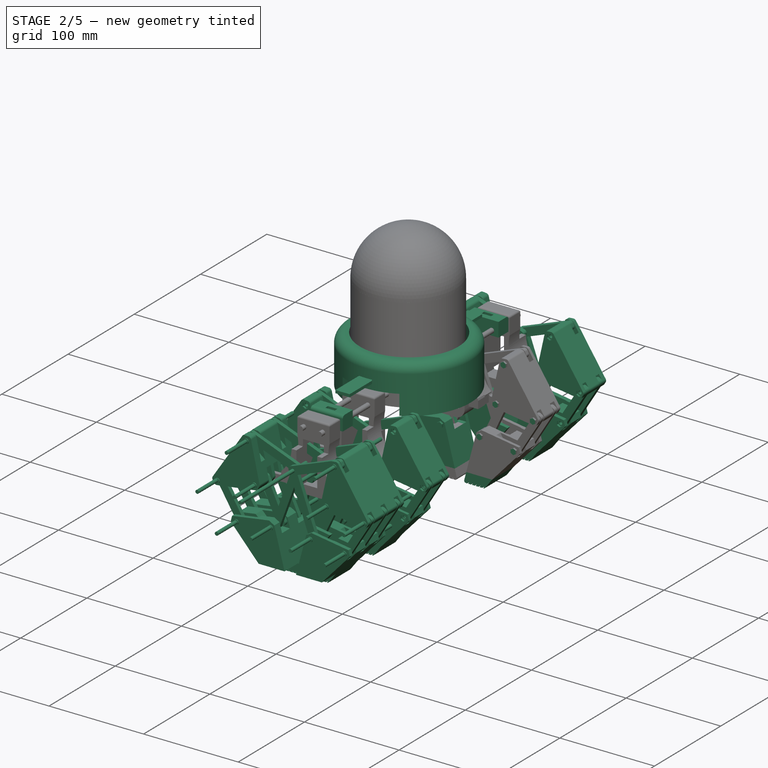
[diagram: stage 2 of 5 — iso view after this stage's code; geometry added in this stage tinted green]
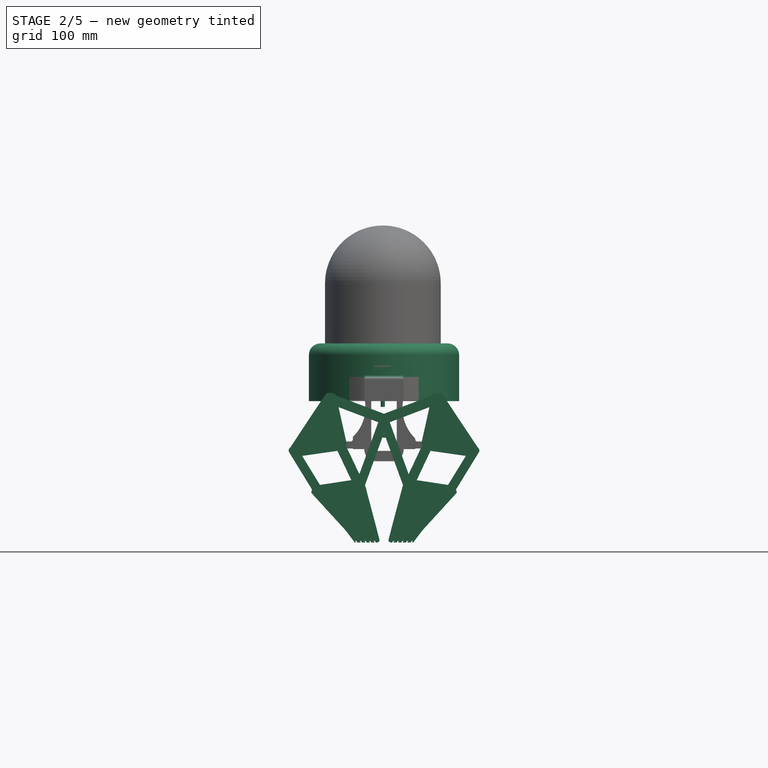
[diagram: stage 2 of 5 — front view after this stage's code; geometry added in this stage tinted green]
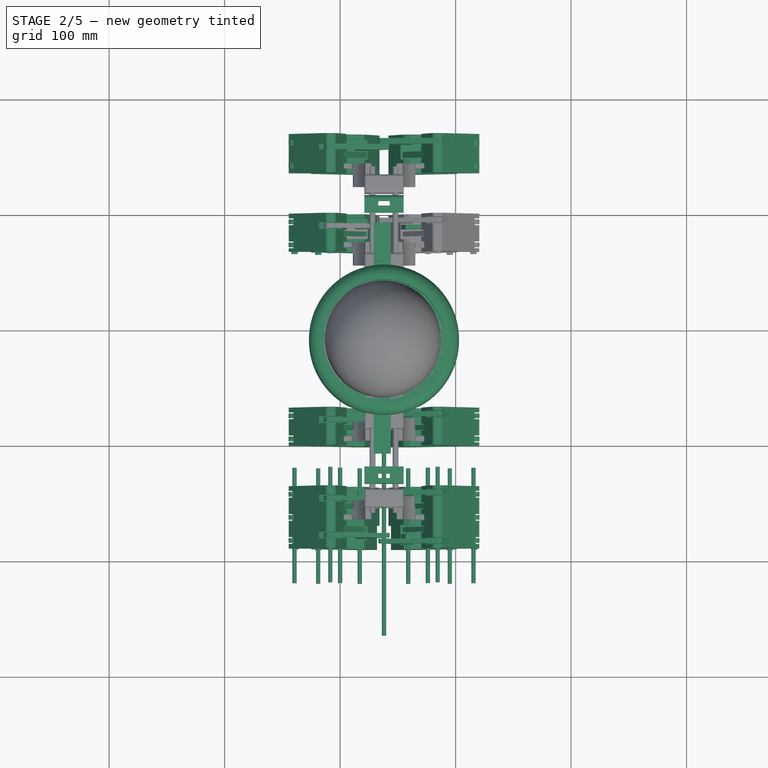
[diagram: stage 2 of 5 — top view after this stage's code; geometry added in this stage tinted green]
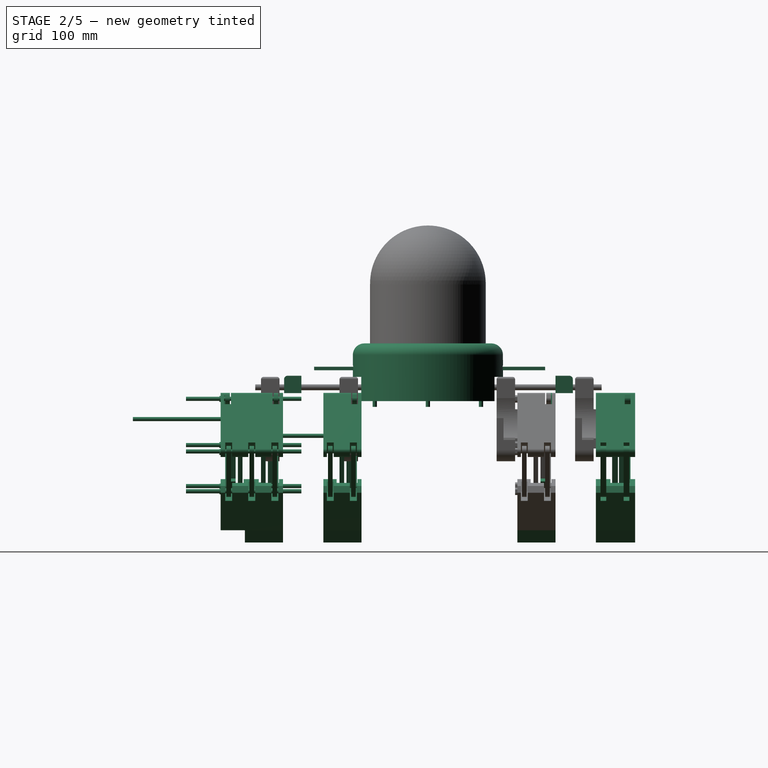
[diagram: stage 2 of 5 — right view after this stage's code; geometry added in this stage tinted green]
FEATURE [Sketcher::SketchObject] Sketch243
  Placement = pos=(-39.5,-31,-5.5) rot=(1,0,0;1.5708rad)
  sketch-geometry (7):
    g0: LineSegment StartX=-0.014307 StartY=-3.24781 StartZ=0 EndX=2.7612 EndY=-1.64537 EndZ=0
    g1: LineSegment StartX=2.7612 StartY=-1.64537 StartZ=0 EndX=2.7612 EndY=1.55952 EndZ=0
    g2: LineSegment StartX=2.7612 StartY=1.55952 StartZ=0 EndX=-0.014307 EndY=3.16196 EndZ=0
    g3: LineSegment StartX=-0.014307 StartY=3.16196 StartZ=0 EndX=-2.78982 EndY=1.55952 EndZ=0
    g4: LineSegment StartX=-2.78982 StartY=1.55952 StartZ=0 EndX=-2.78982 EndY=-1.64537 EndZ=0
    g5: LineSegment StartX=-2.78982 StartY=-1.64537 StartZ=0 EndX=-0.014307 EndY=-3.24781 EndZ=0
    g6: Circle [constr] CenterX=-0.014307 CenterY=-0.042923 CenterZ=0 NormalX=0 NormalY=0 NormalZ=1 Radius=3.20488
  constraints (15):
    c: Coincident(g0,g1)
    c: Coincident(g1,g2)
    c: Coincident(g2,g3)
    c: Coincident(g3,g4)
    c: Coincident(g4,g5)
    c: Coincident(g5,g0)
    c: Equal(g0, g1-g5) x5
    c: PointOnObject(g0,g6)
    c: PointOnObject(g1,g6)
    c: PointOnObject(g2,g6)
    c: PointOnObject(g3,g6)
    c: PointOnObject(g4,g6)
    c: PointOnObject(g5,g6)
    c: PointOnObject(g3,g-2)
    c: Vertical(g4)
FEATURE [PartDesign::Pad] Pad239
  Length = 4
  Length2 = 100
  Placement = pos=(-39.5,-31,-5.5) rot=(1,0,0;1.5708rad)
  Sketch = -> Sketch243
  Type = 0
FEATURE [Sketcher::SketchObject] Sketch244
  Placement = pos=(-19,-31,-40) rot=(1,0,0;1.5708rad)
  sketch-geometry (7):
    g0: LineSegment StartX=-0.014307 StartY=-3.24781 StartZ=0 EndX=2.7612 EndY=-1.64537 EndZ=0
    g1: LineSegment StartX=2.7612 StartY=-1.64537 StartZ=0 EndX=2.7612 EndY=1.55952 EndZ=0
    g2: LineSegment StartX=2.7612 StartY=1.55952 StartZ=0 EndX=-0.014307 EndY=3.16196 EndZ=0
    g3: LineSegment StartX=-0.014307 StartY=3.16196 StartZ=0 EndX=-2.78982 EndY=1.55952 EndZ=0
    g4: LineSegment StartX=-2.78982 StartY=1.55952 StartZ=0 EndX=-2.78982 EndY=-1.64537 EndZ=0
    g5: LineSegment StartX=-2.78982 StartY=-1.64537 StartZ=0 EndX=-0.014307 EndY=-3.24781 EndZ=0
    g6: Circle [constr] CenterX=-0.014307 CenterY=-0.042923 CenterZ=0 NormalX=0 NormalY=0 NormalZ=1 Radius=3.20488
  constraints (15):
    c: Coincident(g0,g1)
    c: Coincident(g1,g2)
    c: Coincident(g2,g3)
    c: Coincident(g3,g4)
    c: Coincident(g4,g5)
    c: Coincident(g5,g0)
    c: Equal(g0, g1-g5) x5
    c: PointOnObject(g0,g6)
    c: PointOnObject(g1,g6)
    c: PointOnObject(g2,g6)
    c: PointOnObject(g3,g6)
    c: PointOnObject(g4,g6)
    c: PointOnObject(g5,g6)
    c: PointOnObject(g3,g-2)
    c: Vertical(g4)
FEATURE [PartDesign::Pad] Pad240
  Length = 4
  Length2 = 100
  Placement = pos=(-19,-31,-40) rot=(1,0,0;1.5708rad)
  Sketch = -> Sketch244
  Type = 0
FEATURE [Sketcher::SketchObject] Sketch245
  Placement = pos=(17,-31,-35.5) rot=(1,0,0;1.5708rad)
  sketch-geometry (7):
    g0: LineSegment StartX=-0.014307 StartY=-3.24781 StartZ=0 EndX=2.7612 EndY=-1.64537 EndZ=0
    g1: LineSegment StartX=2.7612 StartY=-1.64537 StartZ=0 EndX=2.7612 EndY=1.55952 EndZ=0
    g2: LineSegment StartX=2.7612 StartY=1.55952 StartZ=0 EndX=-0.014307 EndY=3.16196 EndZ=0
    g3: LineSegment StartX=-0.014307 StartY=3.16196 StartZ=0 EndX=-2.78982 EndY=1.55952 EndZ=0
    g4: LineSegment StartX=-2.78982 StartY=1.55952 StartZ=0 EndX=-2.78982 EndY=-1.64537 EndZ=0
    g5: LineSegment StartX=-2.78982 StartY=-1.64537 StartZ=0 EndX=-0.014307 EndY=-3.24781 EndZ=0
    g6: Circle [constr] CenterX=-0.014307 CenterY=-0.042923 CenterZ=0 NormalX=0 NormalY=0 NormalZ=1 Radius=3.20488
  constraints (15):
    c: Coincident(g0,g1)
    c: Coincident(g1,g2)
    c: Coincident(g2,g3)
    c: Coincident(g3,g4)
    c: Coincident(g4,g5)
    c: Coincident(g5,g0)
    c: Equal(g0, g1-g5) x5
    c: PointOnObject(g0,g6)
    c: PointOnObject(g1,g6)
    c: PointOnObject(g2,g6)
    c: PointOnObject(g3,g6)
    c: PointOnObject(g4,g6)
    c: PointOnObject(g5,g6)
    c: PointOnObject(g3,g-2)
    c: Vertical(g4)
FEATURE [PartDesign::Pad] Pad241
  Length = 4
  Length2 = 100
  Placement = pos=(17,-31,-35.5) rot=(1,0,0;1.5708rad)
  Sketch = -> Sketch245
  Type = 0
FEATURE [Sketcher::SketchObject] Sketch246
  Placement = pos=(-8.5,-31,40) rot=(1,0,0;1.5708rad)
  sketch-geometry (7):
    g0: LineSegment StartX=-0.014307 StartY=-3.24781 StartZ=0 EndX=2.7612 EndY=-1.64537 EndZ=0
    g1: LineSegment StartX=2.7612 StartY=-1.64537 StartZ=0 EndX=2.7612 EndY=1.55952 EndZ=0
    g2: LineSegment StartX=2.7612 StartY=1.55952 StartZ=0 EndX=-0.014307 EndY=3.16196 EndZ=0
    g3: LineSegment StartX=-0.014307 StartY=3.16196 StartZ=0 EndX=-2.78982 EndY=1.55952 EndZ=0
    g4: LineSegment StartX=-2.78982 StartY=1.55952 StartZ=0 EndX=-2.78982 EndY=-1.64537 EndZ=0
    g5: LineSegment StartX=-2.78982 StartY=-1.64537 StartZ=0 EndX=-0.014307 EndY=-3.24781 EndZ=0
    g6: Circle [constr] CenterX=-0.014307 CenterY=-0.042923 CenterZ=0 NormalX=0 NormalY=0 NormalZ=1 Radius=3.20488
  constraints (15):
    c: Coincident(g0,g1)
    c: Coincident(g1,g2)
    c: Coincident(g2,g3)
    c: Coincident(g3,g4)
    c: Coincident(g4,g5)
    c: Coincident(g5,g0)
    c: Equal(g0, g1-g5) x5
    c: PointOnObject(g0,g6)
    c: PointOnObject(g1,g6)
    c: PointOnObject(g2,g6)
    c: PointOnObject(g3,g6)
    c: PointOnObject(g4,g6)
    c: PointOnObject(g5,g6)
    c: PointOnObject(g3,g-2)
    c: Vertical(g4)
FEATURE [PartDesign::Pad] Pad242
  Length = 4
  Length2 = 100
  Placement = pos=(-8.5,-31,40) rot=(1,0,0;1.5708rad)
  Sketch = -> Sketch246
  Type = 0
FEATURE [Sketcher::SketchObject] Sketch247
  Placement = pos=(0,-31,0) rot=(1,0,0;1.5708rad)
  sketch-geometry (7):
    g0: LineSegment StartX=-0.014307 StartY=-3.24781 StartZ=0 EndX=2.7612 EndY=-1.64537 EndZ=0
    g1: LineSegment StartX=2.7612 StartY=-1.64537 StartZ=0 EndX=2.7612 EndY=1.55952 EndZ=0
    g2: LineSegment StartX=2.7612 StartY=1.55952 StartZ=0 EndX=-0.014307 EndY=3.16196 EndZ=0
    g3: LineSegment StartX=-0.014307 StartY=3.16196 StartZ=0 EndX=-2.78982 EndY=1.55952 EndZ=0
    g4: LineSegment StartX=-2.78982 StartY=1.55952 StartZ=0 EndX=-2.78982 EndY=-1.64537 EndZ=0
    g5: LineSegment StartX=-2.78982 StartY=-1.64537 StartZ=0 EndX=-0.014307 EndY=-3.24781 EndZ=0
    g6: Circle [constr] CenterX=-0.014307 CenterY=-0.042923 CenterZ=0 NormalX=0 NormalY=0 NormalZ=1 Radius=3.20488
  constraints (15):
    c: Coincident(g0,g1)
    c: Coincident(g1,g2)
    c: Coincident(g2,g3)
    c: Coincident(g3,g4)
    c: Coincident(g4,g5)
    c: Coincident(g5,g0)
    c: Equal(g0, g1-g5) x5
    c: PointOnObject(g0,g6)
    c: PointOnObject(g1,g6)
    c: PointOnObject(g2,g6)
    c: PointOnObject(g3,g6)
    c: PointOnObject(g4,g6)
    c: PointOnObject(g5,g6)
    c: PointOnObject(g3,g-2)
    c: Vertical(g4)
FEATURE [PartDesign::Pad] Pad243
  Length = 4
  Length2 = 100
  Placement = pos=(0,-31,0) rot=(1,0,0;1.5708rad)
  Sketch = -> Sketch247
  Type = 0
FEATURE [Sketcher::SketchObject] Sketch248
  Placement = pos=(-39.5,-31,-5.5) rot=(1,0,0;1.5708rad)
  sketch-geometry (7):
    g0: LineSegment StartX=-0.014307 StartY=-3.24781 StartZ=0 EndX=2.7612 EndY=-1.64537 EndZ=0
    g1: LineSegment StartX=2.7612 StartY=-1.64537 StartZ=0 EndX=2.7612 EndY=1.55952 EndZ=0
    g2: LineSegment StartX=2.7612 StartY=1.55952 StartZ=0 EndX=-0.014307 EndY=3.16196 EndZ=0
    g3: LineSegment StartX=-0.014307 StartY=3.16196 StartZ=0 EndX=-2.78982 EndY=1.55952 EndZ=0
    g4: LineSegment StartX=-2.78982 StartY=1.55952 StartZ=0 EndX=-2.78982 EndY=-1.64537 EndZ=0
    g5: LineSegment StartX=-2.78982 StartY=-1.64537 StartZ=0 EndX=-0.014307 EndY=-3.24781 EndZ=0
    g6: Circle [constr] CenterX=-0.014307 CenterY=-0.042923 CenterZ=0 NormalX=0 NormalY=0 NormalZ=1 Radius=3.20488
  constraints (15):
    c: Coincident(g0,g1)
    c: Coincident(g1,g2)
    c: Coincident(g2,g3)
    c: Coincident(g3,g4)
    c: Coincident(g4,g5)
    c: Coincident(g5,g0)
    c: Equal(g0, g1-g5) x5
    c: PointOnObject(g0,g6)
    c: PointOnObject(g1,g6)
    c: PointOnObject(g2,g6)
    c: PointOnObject(g3,g6)
    c: PointOnObject(g4,g6)
    c: PointOnObject(g5,g6)
    c: PointOnObject(g3,g-2)
    c: Vertical(g4)
FEATURE [PartDesign::Pad] Pad244
  Length = 4
  Length2 = 100
  Placement = pos=(-39.5,-31,-5.5) rot=(1,0,0;1.5708rad)
  Sketch = -> Sketch248
  Type = 0
FEATURE [Sketcher::SketchObject] Sketch249
  Placement = pos=(-19,-31,-40) rot=(1,0,0;1.5708rad)
  sketch-geometry (7):
    g0: LineSegment StartX=-0.014307 StartY=-3.24781 StartZ=0 EndX=2.7612 EndY=-1.64537 EndZ=0
    g1: LineSegment StartX=2.7612 StartY=-1.64537 StartZ=0 EndX=2.7612 EndY=1.55952 EndZ=0
    g2: LineSegment StartX=2.7612 StartY=1.55952 StartZ=0 EndX=-0.014307 EndY=3.16196 EndZ=0
    g3: LineSegment StartX=-0.014307 StartY=3.16196 StartZ=0 EndX=-2.78982 EndY=1.55952 EndZ=0
    g4: LineSegment StartX=-2.78982 StartY=1.55952 StartZ=0 EndX=-2.78982 EndY=-1.64537 EndZ=0
    g5: LineSegment StartX=-2.78982 StartY=-1.64537 StartZ=0 EndX=-0.014307 EndY=-3.24781 EndZ=0
    g6: Circle [constr] CenterX=-0.014307 CenterY=-0.042923 CenterZ=0 NormalX=0 NormalY=0 NormalZ=1 Radius=3.20488
  constraints (15):
    c: Coincident(g0,g1)
    c: Coincident(g1,g2)
    c: Coincident(g2,g3)
    c: Coincident(g3,g4)
    c: Coincident(g4,g5)
    c: Coincident(g5,g0)
    c: Equal(g0, g1-g5) x5
    c: PointOnObject(g0,g6)
    c: PointOnObject(g1,g6)
    c: PointOnObject(g2,g6)
    c: PointOnObject(g3,g6)
    c: PointOnObject(g4,g6)
    c: PointOnObject(g5,g6)
    c: PointOnObject(g3,g-2)
    c: Vertical(g4)
FEATURE [PartDesign::Pad] Pad245
  Length = 4
  Length2 = 100
  Placement = pos=(-19,-31,-40) rot=(1,0,0;1.5708rad)
  Sketch = -> Sketch249
  Type = 0
FEATURE [Sketcher::SketchObject] Sketch250
  Placement = pos=(17,-31,-35.5) rot=(1,0,0;1.5708rad)
  sketch-geometry (7):
    g0: LineSegment StartX=-0.014307 StartY=-3.24781 StartZ=0 EndX=2.7612 EndY=-1.64537 EndZ=0
    g1: LineSegment StartX=2.7612 StartY=-1.64537 StartZ=0 EndX=2.7612 EndY=1.55952 EndZ=0
    g2: LineSegment StartX=2.7612 StartY=1.55952 StartZ=0 EndX=-0.014307 EndY=3.16196 EndZ=0
    g3: LineSegment StartX=-0.014307 StartY=3.16196 StartZ=0 EndX=-2.78982 EndY=1.55952 EndZ=0
    g4: LineSegment StartX=-2.78982 StartY=1.55952 StartZ=0 EndX=-2.78982 EndY=-1.64537 EndZ=0
    g5: LineSegment StartX=-2.78982 StartY=-1.64537 StartZ=0 EndX=-0.014307 EndY=-3.24781 EndZ=0
    g6: Circle [constr] CenterX=-0.014307 CenterY=-0.042923 CenterZ=0 NormalX=0 NormalY=0 NormalZ=1 Radius=3.20488
  constraints (15):
    c: Coincident(g0,g1)
    c: Coincident(g1,g2)
    c: Coincident(g2,g3)
    c: Coincident(g3,g4)
    c: Coincident(g4,g5)
    c: Coincident(g5,g0)
    c: Equal(g0, g1-g5) x5
    c: PointOnObject(g0,g6)
    c: PointOnObject(g1,g6)
    c: PointOnObject(g2,g6)
    c: PointOnObject(g3,g6)
    c: PointOnObject(g4,g6)
    c: PointOnObject(g5,g6)
    c: PointOnObject(g3,g-2)
    c: Vertical(g4)
FEATURE [PartDesign::Pad] Pad246
  Length = 4
  Length2 = 100
  Placement = pos=(17,-31,-35.5) rot=(1,0,0;1.5708rad)
  Sketch = -> Sketch250
  Type = 0
FEATURE [Sketcher::SketchObject] Sketch251
  Placement = pos=(-8.5,-31,40) rot=(1,0,0;1.5708rad)
  sketch-geometry (7):
    g0: LineSegment StartX=-0.014307 StartY=-3.24781 StartZ=0 EndX=2.7612 EndY=-1.64537 EndZ=0
    g1: LineSegment StartX=2.7612 StartY=-1.64537 StartZ=0 EndX=2.7612 EndY=1.55952 EndZ=0
    g2: LineSegment StartX=2.7612 StartY=1.55952 StartZ=0 EndX=-0.014307 EndY=3.16196 EndZ=0
    g3: LineSegment StartX=-0.014307 StartY=3.16196 StartZ=0 EndX=-2.78982 EndY=1.55952 EndZ=0
    g4: LineSegment StartX=-2.78982 StartY=1.55952 StartZ=0 EndX=-2.78982 EndY=-1.64537 EndZ=0
    g5: LineSegment StartX=-2.78982 StartY=-1.64537 StartZ=0 EndX=-0.014307 EndY=-3.24781 EndZ=0
    g6: Circle [constr] CenterX=-0.014307 CenterY=-0.042923 CenterZ=0 NormalX=0 NormalY=0 NormalZ=1 Radius=3.20488
  constraints (15):
    c: Coincident(g0,g1)
    c: Coincident(g1,g2)
    c: Coincident(g2,g3)
    c: Coincident(g3,g4)
    c: Coincident(g4,g5)
    c: Coincident(g5,g0)
    c: Equal(g0, g1-g5) x5
    c: PointOnObject(g0,g6)
    c: PointOnObject(g1,g6)
    c: PointOnObject(g2,g6)
    c: PointOnObject(g3,g6)
    c: PointOnObject(g4,g6)
    c: PointOnObject(g5,g6)
    c: PointOnObject(g3,g-2)
    c: Vertical(g4)
FEATURE [PartDesign::Pad] Pad247
  Length = 4
  Length2 = 100
  Placement = pos=(-8.5,-31,40) rot=(1,0,0;1.5708rad)
  Sketch = -> Sketch251
  Type = 0
FEATURE [Part::MultiFuse] Fusion071
  Shapes = -> [Pad243,Pad245,Pad244,Pad246,Pad247]
FEATURE [Part::Mirroring] Part__Mirroring075  label="Fusion014 (Mirror #21)004"
  Base = (0,0,0)
  Normal = (1,0,0)
  Placement = pos=(76,0,0) rot=(0,0,1;0rad)
  Source = -> Fusion071
FEATURE [Sketcher::SketchObject] Sketch252
  Placement = pos=(0,-9,0) rot=(1,0,0;1.5708rad)
  sketch-geometry (4):
    g0: LineSegment StartX=52.2521 StartY=-43.9032 StartZ=0 EndX=56.753 EndY=-28.9291 EndZ=0
    g1: LineSegment StartX=56.753 StartY=-28.9291 StartZ=0 EndX=73.7178 EndY=-31.6123 EndZ=0
    g2: LineSegment StartX=73.7178 StartY=-31.6123 StartZ=0 EndX=60.9942 EndY=-48.2309 EndZ=0
    g3: LineSegment StartX=60.9942 StartY=-48.2309 StartZ=0 EndX=52.2521 EndY=-43.9032 EndZ=0
  constraints (4):
    c: Coincident(g0,g1)
    c: Coincident(g1,g2)
    c: Coincident(g2,g3)
    c: Coincident(g3,g0)
FEATURE [PartDesign::Pad] Pad248
  Length = 4
  Length2 = 100
  Placement = pos=(0,-9,0) rot=(1,0,0;1.5708rad)
  Sketch = -> Sketch252
  Type = 0
FEATURE [Sketcher::SketchObject] Sketch253
  Placement = pos=(-15,0,-10) rot=(0.913318,-0.287968,0.287968;1.66134rad)
  sketch-geometry (6):
    g0: LineSegment StartX=-26.1846 StartY=-19.8249 StartZ=0 EndX=-21.5367 EndY=-15.9796 EndZ=0
    g1: LineSegment StartX=-21.5367 StartY=-15.9796 StartZ=0 EndX=13.9632 EndY=-33.5618 EndZ=0
    g2: LineSegment StartX=13.9632 StartY=-33.5618 StartZ=0 EndX=16.4973 EndY=-39.3555 EndZ=0
    g3: LineSegment StartX=16.4973 StartY=-39.3555 StartZ=0 EndX=1.91251 EndY=-79.158 EndZ=0
    g4: LineSegment StartX=1.91251 StartY=-79.158 StartZ=0 EndX=-20.507 EndY=-63.5274 EndZ=0
    g5: LineSegment StartX=-20.507 StartY=-63.5274 StartZ=0 EndX=-26.1846 EndY=-19.8249 EndZ=0
  constraints (6):
    c: Coincident(g0,g1)
    c: Coincident(g1,g2)
    c: Coincident(g2,g3)
    c: Coincident(g3,g4)
    c: Coincident(g4,g5)
    c: Coincident(g5,g0)
FEATURE [Part::Cylinder] Cylinder137  label="Cilindro137"
  Angle = 360
  Height = 100
  Placement = pos=(-8.5,30,40) rot=(1,0,0;1.5708rad)
  Radius = 1.8
FEATURE [Part::Cylinder] Cylinder138  label="Cilindro138"
  Angle = 360
  Height = 4
  Placement = pos=(0,1,0) rot=(1,0,0;1.5708rad)
  Radius = 2.6
FEATURE [Part::Cylinder] Cylinder139  label="Cilindro139"
  Angle = 360
  Height = 100
  Placement = pos=(38,76,22.5) rot=(1,0,0;1.5708rad)
  Radius = 1.8
FEATURE [Part::Cylinder] Cylinder140  label="Cilindro140"
  Angle = 360
  Height = 100
  Placement = pos=(38,-14,8) rot=(1,0,0;1.5708rad)
  Radius = 1.8
FEATURE [Part::Cylinder] Cylinder141  label="Cilindro141"
  Angle = 360
  Height = 100
  Placement = pos=(0,30,0) rot=(1,0,0;1.5708rad)
  Radius = 1.8
FEATURE [Part::Cylinder] Cylinder142  label="Cilindro142"
  Angle = 360
  Height = 100
  Placement = pos=(-39.5,30,-5.5) rot=(1,0,0;1.5708rad)
  Radius = 1.8
FEATURE [Part::Cylinder] Cylinder143  label="Cilindro143"
  Angle = 360
  Height = 100
  Placement = pos=(-19,30,-40) rot=(1,0,0;1.5708rad)
  Radius = 1.8
FEATURE [Part::Cylinder] Cylinder144  label="Cilindro144"
  Angle = 360
  Height = 100
  Placement = pos=(17,30,-35.5) rot=(1,0,0;1.5708rad)
  Radius = 1.8
FEATURE [PartDesign::Pad] Pad249
  Length = 33
  Length2 = 100
  Placement = pos=(-15,0,-10) rot=(0.913318,-0.287968,0.287968;1.66134rad)
  Sketch = -> Sketch253
  Type = 0
FEATURE [Sketcher::SketchObject] Sketch254
  Placement = pos=(0,-5,0) rot=(1,0,0;1.5708rad)
  sketch-geometry (4):
    g0: LineSegment StartX=-45.7022 StartY=-3.72195 StartZ=0 EndX=-38.9083 EndY=0.415547 EndZ=0
    g1: LineSegment StartX=-38.9083 StartY=0.415547 StartZ=0 EndX=-12.9682 EndY=-41.8491 EndZ=0
    g2: LineSegment StartX=-12.9682 StartY=-41.8491 StartZ=0 EndX=-19.7621 EndY=-45.9866 EndZ=0
    g3: LineSegment StartX=-19.7621 StartY=-45.9866 StartZ=0 EndX=-45.7022 EndY=-3.72195 EndZ=0
  constraints (6):
    c: Coincident(g0,g1)
    c: Coincident(g1,g2)
    c: Coincident(g2,g3)
    c: Coincident(g3,g0)
    c: Parallel(g3,g1)
    c: Parallel(g2,g0)
FEATURE [Sketcher::SketchObject] Sketch255
  Placement = pos=(0,-15,0) rot=(1,0,0;1.5708rad)
  sketch-geometry (4):
    g0: LineSegment StartX=-5.8347 StartY=2.47919 StartZ=0 EndX=2.12677 EndY=5.59698 EndZ=0
    g1: LineSegment StartX=2.12677 StartY=5.59698 StartZ=0 EndX=22.8292 EndY=-38.2205 EndZ=0
    g2: LineSegment StartX=22.8292 StartY=-38.2205 StartZ=0 EndX=14.8678 EndY=-41.3383 EndZ=0
    g3: LineSegment StartX=14.8678 StartY=-41.3383 StartZ=0 EndX=-5.8347 EndY=2.47919 EndZ=0
  constraints (6):
    c: Coincident(g0,g1)
    c: Coincident(g1,g2)
    c: Coincident(g2,g3)
    c: Coincident(g3,g0)
    c: Parallel(g3,g1)
    c: Parallel(g2,g0)
FEATURE [Sketcher::SketchObject] Sketch256
  Placement = pos=(0,-9,0) rot=(1,0,0;1.5708rad)
  sketch-geometry (4):
    g0: LineSegment StartX=-15.1215 StartY=38.0643 StartZ=0 EndX=-11.4967 EndY=45.8979 EndZ=0
    g1: LineSegment StartX=-11.4967 StartY=45.8979 StartZ=0 EndX=43.8982 EndY=24.8483 EndZ=0
    g2: LineSegment StartX=43.8982 StartY=24.8483 StartZ=0 EndX=40.2735 EndY=17.0147 EndZ=0
    g3: LineSegment StartX=40.2735 StartY=17.0147 StartZ=0 EndX=-15.1215 EndY=38.0643 EndZ=0
  constraints (6):
    c: Coincident(g0,g1)
    c: Coincident(g1,g2)
    c: Coincident(g2,g3)
    c: Coincident(g3,g0)
    c: Parallel(g3,g1)
    c: Parallel(g2,g0)
FEATURE [Sketcher::SketchObject] Sketch257
  Placement = pos=(0,-9,0) rot=(1,0,0;1.5708rad)
  sketch-geometry (4):
    g0: LineSegment StartX=36.0124 StartY=27.9384 StartZ=0 EndX=43.3266 EndY=25.1327 EndZ=0
    g1: LineSegment StartX=43.3266 StartY=25.1327 StartZ=0 EndX=19.3358 EndY=-40.7949 EndZ=0
    g2: LineSegment StartX=19.3358 StartY=-40.7949 StartZ=0 EndX=12.0216 EndY=-37.9892 EndZ=0
    g3: LineSegment StartX=12.0216 StartY=-37.9892 StartZ=0 EndX=36.0124 EndY=27.9384 EndZ=0
  constraints (6):
    c: Coincident(g0,g1)
    c: Coincident(g1,g2)
    c: Coincident(g2,g3)
    c: Coincident(g3,g0)
    c: Parallel(g3,g1)
    c: Parallel(g2,g0)
FEATURE [PartDesign::Pad] Pad250
  Length = 4
  Length2 = 100
  Placement = pos=(0,-5,0) rot=(1,0,0;1.5708rad)
  Sketch = -> Sketch254
  Type = 0
FEATURE [PartDesign::Pad] Pad251
  Length = 4
  Length2 = 100
  Placement = pos=(0,-15,0) rot=(1,0,0;1.5708rad)
  Sketch = -> Sketch255
  Type = 0
FEATURE [PartDesign::Pad] Pad252
  Length = 4
  Length2 = 100
  Placement = pos=(0,-9,0) rot=(1,0,0;1.5708rad)
  Sketch = -> Sketch257
  Type = 0
FEATURE [PartDesign::Pad] Pad253
  Length = 4
  Length2 = 100
  Placement = pos=(0,-9,0) rot=(1,0,0;1.5708rad)
  Sketch = -> Sketch256
  Type = 0
FEATURE [Sketcher::SketchObject] Sketch258
  Placement = pos=(0,-25,0) rot=(1,0,0;1.5708rad)
  sketch-geometry (4):
    g0: LineSegment StartX=-45.7022 StartY=-3.72195 StartZ=0 EndX=-38.9083 EndY=0.415547 EndZ=0
    g1: LineSegment StartX=-38.9083 StartY=0.415547 StartZ=0 EndX=-12.9682 EndY=-41.8491 EndZ=0
    g2: LineSegment StartX=-12.9682 StartY=-41.8491 StartZ=0 EndX=-19.7621 EndY=-45.9866 EndZ=0
    g3: LineSegment StartX=-19.7621 StartY=-45.9866 StartZ=0 EndX=-45.7022 EndY=-3.72195 EndZ=0
  constraints (6):
    c: Coincident(g0,g1)
    c: Coincident(g1,g2)
    c: Coincident(g2,g3)
    c: Coincident(g3,g0)
    c: Parallel(g3,g1)
    c: Parallel(g2,g0)
FEATURE [PartDesign::Pad] Pad254
  Length = 4
  Length2 = 100
  Placement = pos=(0,-25,0) rot=(1,0,0;1.5708rad)
  Sketch = -> Sketch258
  Type = 0
FEATURE [Part::Fillet] Fillet109
  Base = -> Pad253
  Edges = 4 edges r=3: [Edge1,Edge2,Edge5,Edge8]
FEATURE [Part::Fillet] Fillet110
  Base = -> Pad250
  Edges = 4 edges r=3: [Edge1,Edge2,Edge5,Edge8]
FEATURE [Part::Fillet] Fillet111
  Base = -> Pad254
  Edges = 4 edges r=3: [Edge1,Edge2,Edge5,Edge8]
FEATURE [Part::Fillet] Fillet112
  Base = -> Pad251
  Edges = 4 edges r=3: [Edge1,Edge2,Edge5,Edge8]
FEATURE [Part::Fillet] Fillet113
  Base = -> Pad252
  Edges = 4 edges r=3: [Edge1,Edge2,Edge5,Edge8]
FEATURE [Sketcher::SketchObject] Sketch259
  Placement = pos=(0,0,0) rot=(1,0,0;1.5708rad)
  sketch-geometry (24):
    g0: LineSegment StartX=31.9221 StartY=-73.7642 StartZ=0 EndX=34.7157 EndY=-84.3474 EndZ=0
    g1: LineSegment StartX=34.7157 StartY=-84.3474 StartZ=0 EndX=31.0042 EndY=-84.3474 EndZ=0
    g2: LineSegment StartX=31.0042 StartY=-84.3474 StartZ=0 EndX=29.9949 EndY=-83.0102 EndZ=0
    g3: LineSegment StartX=29.9949 StartY=-83.0102 StartZ=0 EndX=29.0048 EndY=-82.9974 EndZ=0
    g4: LineSegment StartX=29.0048 StartY=-82.9974 StartZ=0 EndX=29.9744 EndY=-84.3565 EndZ=0
    g5: LineSegment StartX=29.9744 StartY=-84.3565 StartZ=0 EndX=27.0013 EndY=-84.3565 EndZ=0
    g6: LineSegment StartX=27.0013 StartY=-84.3565 StartZ=0 EndX=25.9942 EndY=-83.0138 EndZ=0
    g7: LineSegment StartX=25.9942 StartY=-83.0138 StartZ=0 EndX=24.9776 EndY=-83.0138 EndZ=0
    g8: LineSegment StartX=24.9776 StartY=-83.0138 StartZ=0 EndX=26.0038 EndY=-84.3756 EndZ=0
    g9: LineSegment StartX=26.0038 StartY=-84.3756 StartZ=0 EndX=23.0075 EndY=-84.3756 EndZ=0
    g10: LineSegment StartX=23.0075 StartY=-84.3756 StartZ=0 EndX=22.0197 EndY=-83.0236 EndZ=0
    g11: LineSegment StartX=22.0197 StartY=-83.0236 StartZ=0 EndX=20.9743 EndY=-83.0236 EndZ=0
    g12: LineSegment StartX=20.9743 StartY=-83.0236 StartZ=0 EndX=22.0005 EndY=-84.3663 EndZ=0
    g13: LineSegment StartX=22.0005 StartY=-84.3663 StartZ=0 EndX=19.0178 EndY=-84.3663 EndZ=0
    g14: LineSegment StartX=19.0178 StartY=-84.3663 StartZ=0 EndX=17.9916 EndY=-83.0045 EndZ=0
    g15: LineSegment StartX=17.9916 StartY=-83.0045 StartZ=0 EndX=16.9846 EndY=-83.0045 EndZ=0
    g16: LineSegment StartX=16.9846 StartY=-83.0045 StartZ=0 EndX=18.0012 EndY=-84.3663 EndZ=0
    g17: LineSegment StartX=18.0012 StartY=-84.3663 StartZ=0 EndX=15.0322 EndY=-84.3663 EndZ=0
    g18: LineSegment StartX=15.0322 StartY=-84.3663 StartZ=0 EndX=14.0131 EndY=-83.0204 EndZ=0
    g19: LineSegment StartX=14.0131 StartY=-83.0204 StartZ=0 EndX=12.9823 EndY=-83.0204 EndZ=0
    g20: LineSegment StartX=12.9823 StartY=-83.0204 StartZ=0 EndX=14.0014 EndY=-84.3792 EndZ=0
    g21: LineSegment StartX=14.0014 StartY=-84.3792 StartZ=0 EndX=12.6817 EndY=-84.3792 EndZ=0
    g22: LineSegment StartX=12.6817 StartY=-84.3792 StartZ=0 EndX=4.6509 EndY=-73.7642 EndZ=0
    g23: LineSegment StartX=4.6509 StartY=-73.7642 StartZ=0 EndX=31.9221 EndY=-73.7642 EndZ=0
  constraints (35):
    c: Coincident(g0,g1)
    c: Horizontal(g1)
    c: Coincident(g1,g2)
    c: Coincident(g2,g3)
    c: Coincident(g3,g4)
    c: Coincident(g4,g5)
    c: Horizontal(g5)
    c: Coincident(g5,g6)
    c: Coincident(g6,g7)
    c: Horizontal(g7)
    c: Coincident(g7,g8)
    c: Coincident(g8,g9)
    c: Horizontal(g9)
    c: Coincident(g9,g10)
    c: Coincident(g10,g11)
    c: Horizontal(g11)
    c: Coincident(g11,g12)
    c: Coincident(g12,g13)
    c: Horizontal(g13)
    c: Coincident(g13,g14)
    c: Coincident(g14,g15)
    c: Horizontal(g15)
    c: Coincident(g15,g16)
    c: Coincident(g16,g17)
    c: Horizontal(g17)
    c: Coincident(g17,g18)
    c: Coincident(g18,g19)
    c: Horizontal(g19)
    c: Coincident(g19,g20)
    c: Coincident(g20,g21)
    c: Horizontal(g21)
    c: Coincident(g21,g22)
    c: Coincident(g22,g23)
    c: Coincident(g23,g0)
    c: Horizontal(g23)
FEATURE [PartDesign::Pad] Pad255
  Length = 33
  Length2 = 100
  Placement = pos=(0,0,0) rot=(1,0,0;1.5708rad)
  Sketch = -> Sketch259
  Type = 0
FEATURE [Sketcher::SketchObject] Sketch260
  Placement = pos=(-4,-7,0) rot=(1,0,0;1.5708rad)
  sketch-geometry (8):
    g0: LineSegment StartX=12.9217 StartY=-76.0433 StartZ=0 EndX=12.9217 EndY=-72.6813 EndZ=0
    g1: LineSegment StartX=12.9217 StartY=-72.6813 StartZ=0 EndX=10.907 EndY=-71.0645 EndZ=0
    g2: LineSegment StartX=10.907 StartY=-71.0645 StartZ=0 EndX=12.9496 EndY=-67.9874 EndZ=0
    g3: LineSegment StartX=12.9496 StartY=-67.9874 StartZ=0 EndX=17.8943 EndY=-67.9874 EndZ=0
    g4: LineSegment StartX=17.8943 StartY=-67.9874 StartZ=0 EndX=19.9533 EndY=-71.0124 EndZ=0
    g5: LineSegment StartX=19.9533 StartY=-71.0124 StartZ=0 EndX=17.9933 EndY=-72.6487 EndZ=0
    g6: LineSegment StartX=17.9933 StartY=-72.6487 StartZ=0 EndX=17.9811 EndY=-76.0433 EndZ=0
    g7: LineSegment StartX=17.9811 StartY=-76.0433 StartZ=0 EndX=12.9217 EndY=-76.0433 EndZ=0
  constraints (11):
    c: Vertical(g0)
    c: Coincident(g0,g1)
    c: Coincident(g1,g2)
    c: Coincident(g2,g3)
    c: Horizontal(g3)
    c: Coincident(g3,g4)
    c: Coincident(g4,g5)
    c: Coincident(g6,g7)
    c: Coincident(g7,g0)
    c: Horizontal(g7)
    c: Coincident(g5,g6)
FEATURE [PartDesign::Pad] Pad256
  Length = 20
  Length2 = 100
  Placement = pos=(-4,-7,0) rot=(1,0,0;1.5708rad)
  Sketch = -> Sketch260
  Type = 0
FEATURE [Part::MultiFuse] Fusion073
  Shapes = -> [Pad256,Pad255]
FEATURE [Sketcher::SketchObject] Sketch261
  Placement = pos=(10,-7,0) rot=(1,0,0;1.5708rad)
  sketch-geometry (8):
    g0: LineSegment StartX=12.9217 StartY=-76.0433 StartZ=0 EndX=12.9217 EndY=-72.6813 EndZ=0
    g1: LineSegment StartX=12.9217 StartY=-72.6813 StartZ=0 EndX=10.907 EndY=-71.0645 EndZ=0
    g2: LineSegment StartX=10.907 StartY=-71.0645 StartZ=0 EndX=12.9496 EndY=-67.9874 EndZ=0
    g3: LineSegment StartX=12.9496 StartY=-67.9874 StartZ=0 EndX=17.8943 EndY=-67.9874 EndZ=0
    g4: LineSegment StartX=17.8943 StartY=-67.9874 StartZ=0 EndX=19.9533 EndY=-71.0124 EndZ=0
    g5: LineSegment StartX=19.9533 StartY=-71.0124 StartZ=0 EndX=17.9933 EndY=-72.6487 EndZ=0
    g6: LineSegment StartX=17.9933 StartY=-72.6487 StartZ=0 EndX=17.9811 EndY=-76.0433 EndZ=0
    g7: LineSegment StartX=17.9811 StartY=-76.0433 StartZ=0 EndX=12.9217 EndY=-76.0433 EndZ=0
  constraints (11):
    c: Vertical(g0)
    c: Coincident(g0,g1)
    c: Coincident(g1,g2)
    c: Coincident(g2,g3)
    c: Horizontal(g3)
    c: Coincident(g3,g4)
    c: Coincident(g4,g5)
    c: Coincident(g6,g7)
    c: Coincident(g7,g0)
    c: Horizontal(g7)
    c: Coincident(g5,g6)
FEATURE [PartDesign::Pad] Pad257
  Length = 20
  Length2 = 100
  Placement = pos=(10,-7,0) rot=(1,0,0;1.5708rad)
  Sketch = -> Sketch261
  Type = 0
FEATURE [Part::MultiFuse] Fusion074
  Shapes = -> [Fusion073,Pad257]
FEATURE [Part::Cut] Cut110
  Base = -> Pad249
  Tool = -> Fusion074
FEATURE [Part::Cylinder] Cylinder145  label="Cilindro145"
  Angle = 360
  Height = 100
  Placement = pos=(-8.5,30,40) rot=(1,0,0;1.5708rad)
  Radius = 1.8
FEATURE [Part::Cylinder] Cylinder146  label="Cilindro146"
  Angle = 360
  Height = 100
  Placement = pos=(0,30,0) rot=(1,0,0;1.5708rad)
  Radius = 1.8
FEATURE [Part::Cylinder] Cylinder147  label="Cilindro147"
  Angle = 360
  Height = 100
  Placement = pos=(-39.5,30,-5.5) rot=(1,0,0;1.5708rad)
  Radius = 1.8
FEATURE [Part::Cylinder] Cylinder148  label="Cilindro148"
  Angle = 360
  Height = 100
  Placement = pos=(-19,30,-40) rot=(1,0,0;1.5708rad)
  Radius = 1.8
FEATURE [Part::Cylinder] Cylinder149  label="Cilindro149"
  Angle = 360
  Height = 100
  Placement = pos=(17,30,-35.5) rot=(1,0,0;1.5708rad)
  Radius = 1.8
FEATURE [Sketcher::SketchObject] Sketch262
  Placement = pos=(0,-5,0) rot=(1,0,0;1.5708rad)
  sketch-geometry (4):
    g0: LineSegment StartX=-45.7022 StartY=-3.72195 StartZ=0 EndX=-38.9083 EndY=0.415547 EndZ=0
    g1: LineSegment StartX=-38.9083 StartY=0.415547 StartZ=0 EndX=-12.9682 EndY=-41.8491 EndZ=0
    g2: LineSegment StartX=-12.9682 StartY=-41.8491 StartZ=0 EndX=-19.7621 EndY=-45.9866 EndZ=0
    g3: LineSegment StartX=-19.7621 StartY=-45.9866 StartZ=0 EndX=-45.7022 EndY=-3.72195 EndZ=0
  constraints (6):
    c: Coincident(g0,g1)
    c: Coincident(g1,g2)
    c: Coincident(g2,g3)
    c: Coincident(g3,g0)
    c: Parallel(g3,g1)
    c: Parallel(g2,g0)
FEATURE [Sketcher::SketchObject] Sketch263
  Placement = pos=(0,-15,0) rot=(1,0,0;1.5708rad)
  sketch-geometry (4):
    g0: LineSegment StartX=-5.8347 StartY=2.47919 StartZ=0 EndX=2.12677 EndY=5.59698 EndZ=0
    g1: LineSegment StartX=2.12677 StartY=5.59698 StartZ=0 EndX=22.8292 EndY=-38.2205 EndZ=0
    g2: LineSegment StartX=22.8292 StartY=-38.2205 StartZ=0 EndX=14.8678 EndY=-41.3383 EndZ=0
    g3: LineSegment StartX=14.8678 StartY=-41.3383 StartZ=0 EndX=-5.8347 EndY=2.47919 EndZ=0
  constraints (6):
    c: Coincident(g0,g1)
    c: Coincident(g1,g2)
    c: Coincident(g2,g3)
    c: Coincident(g3,g0)
    c: Parallel(g3,g1)
    c: Parallel(g2,g0)
FEATURE [PartDesign::Pad] Pad258
  Length = 4
  Length2 = 100
  Placement = pos=(0,-5,0) rot=(1,0,0;1.5708rad)
  Sketch = -> Sketch262
  Type = 0
FEATURE [PartDesign::Pad] Pad259
  Length = 4
  Length2 = 100
  Placement = pos=(0,-15,0) rot=(1,0,0;1.5708rad)
  Sketch = -> Sketch263
  Type = 0
FEATURE [Sketcher::SketchObject] Sketch264
  Placement = pos=(0,-25,0) rot=(1,0,0;1.5708rad)
  sketch-geometry (4):
    g0: LineSegment StartX=-45.7022 StartY=-3.72195 StartZ=0 EndX=-38.9083 EndY=0.415547 EndZ=0
    g1: LineSegment StartX=-38.9083 StartY=0.415547 StartZ=0 EndX=-12.9682 EndY=-41.8491 EndZ=0
    g2: LineSegment StartX=-12.9682 StartY=-41.8491 StartZ=0 EndX=-19.7621 EndY=-45.9866 EndZ=0
    g3: LineSegment StartX=-19.7621 StartY=-45.9866 StartZ=0 EndX=-45.7022 EndY=-3.72195 EndZ=0
  constraints (6):
    c: Coincident(g0,g1)
    c: Coincident(g1,g2)
    c: Coincident(g2,g3)
    c: Coincident(g3,g0)
    c: Parallel(g3,g1)
    c: Parallel(g2,g0)
FEATURE [PartDesign::Pad] Pad260
  Length = 4
  Length2 = 100
  Placement = pos=(0,-25,0) rot=(1,0,0;1.5708rad)
  Sketch = -> Sketch264
  Type = 0
FEATURE [Part::Fillet] Fillet114
  Base = -> Pad258
  Edges = 4 edges r=3: [Edge1,Edge2,Edge5,Edge8]
FEATURE [Part::Fillet] Fillet115
  Base = -> Pad260
  Edges = 4 edges r=3: [Edge1,Edge2,Edge5,Edge8]
FEATURE [Part::Fillet] Fillet116
  Base = -> Pad259
  Edges = 4 edges r=3: [Edge1,Edge2,Edge5,Edge8]
FEATURE [Part::Mirroring] Part__Mirroring076  label="Cilindro008 (Mirror #4)005"
  Base = (0,0,0)
  Normal = (1,0,0)
  Placement = pos=(76,0,0) rot=(0,0,1;0rad)
  Source = -> Cylinder145
FEATURE [Part::Mirroring] Part__Mirroring077  label="Cilindro012 (Mirror #7)006"
  Base = (0,0,0)
  Normal = (1,0,0)
  Placement = pos=(76,0,0) rot=(0,0,1;0rad)
  Source = -> Cylinder146
FEATURE [Part::Mirroring] Part__Mirroring078  label="Cilindro013 (Mirror #8)005"
  Base = (0,0,0)
  Normal = (1,0,0)
  Placement = pos=(76,0,0) rot=(0,0,1;0rad)
  Source = -> Cylinder147
FEATURE [Part::Mirroring] Part__Mirroring079  label="Cilindro014 (Mirror #9)005"
  Base = (0,0,0)
  Normal = (1,0,0)
  Placement = pos=(76,0,0) rot=(0,0,1;0rad)
  Source = -> Cylinder148
FEATURE [Part::Mirroring] Part__Mirroring080  label="Cilindro015 (Mirror #10)005"
  Base = (0,0,0)
  Normal = (1,0,0)
  Placement = pos=(76,0,0) rot=(0,0,1;0rad)
  Source = -> Cylinder149
FEATURE [Part::Mirroring] Part__Mirroring081  label="Fillet014 (Mirror #11)005"
  Base = (0,0,0)
  Normal = (1,0,0)
  Placement = pos=(76,0,0) rot=(0,0,1;0rad)
FEATURE [Part::Mirroring] Part__Mirroring082  label="Fillet015 (Mirror #12)005"
  Base = (0,0,0)
  Normal = (1,0,0)
  Placement = pos=(76,0,0) rot=(0,0,1;0rad)
  Source = -> Fillet114
FEATURE [Part::Mirroring] Part__Mirroring083  label="Fillet016 (Mirror #13)005"
  Base = (0,0,0)
  Normal = (1,0,0)
  Placement = pos=(76,0,0) rot=(0,0,1;0rad)
  Source = -> Fillet115
FEATURE [Part::Mirroring] Part__Mirroring084  label="Fillet017 (Mirror #14)005"
  Base = (0,0,0)
  Normal = (1,0,0)
  Placement = pos=(76,0,0) rot=(0,0,1;0rad)
  Source = -> Fillet116
FEATURE [Part::Mirroring] Part__Mirroring085  label="Fillet018 (Mirror #15)005"
  Base = (0,0,0)
  Normal = (1,0,0)
  Placement = pos=(76,0,0) rot=(0,0,1;0rad)
FEATURE [Part::MultiFuse] Fusion075
  Shapes = -> [Part__Mirroring085,Part__Mirroring081]
FEATURE [Part::MultiFuse] Fusion076
  Shapes = -> [Fillet109,Fillet113]
FEATURE [Sketcher::SketchObject] Sketch265
  Placement = pos=(0,-4,0) rot=(1,0,0;1.5708rad)
  sketch-geometry (4):
    g0: LineSegment StartX=-22.8766 StartY=-50.4589 StartZ=0 EndX=-2.79575 EndY=-40.4184 EndZ=0
    g1: LineSegment StartX=-2.79575 StartY=-40.4184 StartZ=0 EndX=3.5228 EndY=-28.9065 EndZ=0
    g2: LineSegment StartX=3.5228 StartY=-28.9065 StartZ=0 EndX=-39.4087 EndY=-32.8015 EndZ=0
    g3: LineSegment StartX=-39.4087 StartY=-32.8015 StartZ=0 EndX=-22.8766 EndY=-50.4589 EndZ=0
  constraints (4):
    c: Coincident(g0,g1)
    c: Coincident(g1,g2)
    c: Coincident(g2,g3)
    c: Coincident(g3,g0)
FEATURE [PartDesign::Pad] Pad261
  Length = 6
  Length2 = 100
  Placement = pos=(0,-4,0) rot=(1,0,0;1.5708rad)
  Sketch = -> Sketch265
  Type = 0
FEATURE [Sketcher::SketchObject] Sketch266
  Placement = pos=(0,-24,0) rot=(1,0,0;1.5708rad)
  sketch-geometry (4):
    g0: LineSegment StartX=-22.8766 StartY=-50.4589 StartZ=0 EndX=-2.79575 EndY=-40.4184 EndZ=0
    g1: LineSegment StartX=-2.79575 StartY=-40.4184 StartZ=0 EndX=3.5228 EndY=-28.9065 EndZ=0
    g2: LineSegment StartX=3.5228 StartY=-28.9065 StartZ=0 EndX=-39.4087 EndY=-32.8015 EndZ=0
    g3: LineSegment StartX=-39.4087 StartY=-32.8015 StartZ=0 EndX=-22.8766 EndY=-50.4589 EndZ=0
  constraints (4):
    c: Coincident(g0,g1)
    c: Coincident(g1,g2)
    c: Coincident(g2,g3)
    c: Coincident(g3,g0)
FEATURE [PartDesign::Pad] Pad262
  Length = 6
  Length2 = 100
  Placement = pos=(0,-24,0) rot=(1,0,0;1.5708rad)
  Sketch = -> Sketch266
  Type = 0
FEATURE [Sketcher::SketchObject] Sketch267
  Placement = pos=(0,-8,0) rot=(1,0,0;1.5708rad)
  sketch-geometry (4):
    g0: LineSegment StartX=26.8543 StartY=-42.5089 StartZ=0 EndX=4.22651 EndY=-42.5089 EndZ=0
    g1: LineSegment StartX=4.22651 StartY=-42.5089 StartZ=0 EndX=-12.0771 EndY=-26.2633 EndZ=0
    g2: LineSegment StartX=-12.0771 StartY=-26.2633 StartZ=0 EndX=32.6562 EndY=-19.1269 EndZ=0
    g3: LineSegment StartX=32.6562 StartY=-19.1269 StartZ=0 EndX=26.8543 EndY=-42.5089 EndZ=0
  constraints (5):
    c: Horizontal(g0)
    c: Coincident(g0,g1)
    c: Coincident(g1,g2)
    c: Coincident(g2,g3)
    c: Coincident(g3,g0)
FEATURE [PartDesign::Pad] Pad263
  Length = 12
  Length2 = 100
  Placement = pos=(0,-8,0) rot=(1,0,0;1.5708rad)
  Sketch = -> Sketch267
  Type = 0
FEATURE [Part::Cut] Cut111
  Base = -> Cut110
  Tool = -> Pad263
FEATURE [Part::Cut] Cut112
  Base = -> Cut111
  Tool = -> Pad262
FEATURE [Part::Cut] Cut113
  Base = -> Cut112
  Tool = -> Pad261
FEATURE [Sketcher::SketchObject] Sketch268
  Placement = pos=(-15,0,-10) rot=(0.913318,-0.287968,0.287968;1.66134rad)
  sketch-geometry (6):
    g0: LineSegment StartX=-26.1846 StartY=-19.8249 StartZ=0 EndX=-21.5367 EndY=-15.9796 EndZ=0
    g1: LineSegment StartX=-21.5367 StartY=-15.9796 StartZ=0 EndX=13.9632 EndY=-33.5618 EndZ=0
    g2: LineSegment StartX=13.9632 StartY=-33.5618 StartZ=0 EndX=16.4973 EndY=-39.3555 EndZ=0
    g3: LineSegment StartX=16.4973 StartY=-39.3555 StartZ=0 EndX=1.91251 EndY=-79.158 EndZ=0
    g4: LineSegment StartX=1.91251 StartY=-79.158 StartZ=0 EndX=-20.507 EndY=-63.5274 EndZ=0
    g5: LineSegment StartX=-20.507 StartY=-63.5274 StartZ=0 EndX=-26.1846 EndY=-19.8249 EndZ=0
  constraints (6):
    c: Coincident(g0,g1)
    c: Coincident(g1,g2)
    c: Coincident(g2,g3)
    c: Coincident(g3,g4)
    c: Coincident(g4,g5)
    c: Coincident(g5,g0)
FEATURE [Sketcher::SketchObject] Sketch269
  Placement = pos=(0,0,0) rot=(0.926703,-0.265728,0.265728;1.64685rad)
  sketch-geometry (6):
    g0: LineSegment StartX=-40.7654 StartY=19.725 StartZ=0 EndX=-40.7654 EndY=12.9153 EndZ=0
    g1: LineSegment StartX=-40.7654 StartY=12.9153 StartZ=0 EndX=-0.0823442 EndY=-5.03519 EndZ=0
    g2: LineSegment StartX=-0.0823442 StartY=-5.03519 StartZ=0 EndX=5.26188 EndY=-2.60545 EndZ=0
    g3: LineSegment StartX=5.26188 StartY=-2.60545 StartZ=0 EndX=20.3177 EndY=40.0856 EndZ=0
    g4: LineSegment StartX=20.3177 StartY=40.0856 StartZ=0 EndX=14.0989 EndY=44.6607 EndZ=0
    g5: LineSegment StartX=14.0989 StartY=44.6607 StartZ=0 EndX=-40.7654 EndY=19.725 EndZ=0
  constraints (7):
    c: Vertical(g0)
    c: Coincident(g0,g1)
    c: Coincident(g1,g2)
    c: Coincident(g2,g3)
    c: Coincident(g3,g4)
    c: Coincident(g4,g5)
    c: Coincident(g5,g0)
FEATURE [PartDesign::Pad] Pad264
  Length = 33
  Length2 = 100
  Placement = pos=(0,0,0) rot=(0.926703,-0.265728,0.265728;1.64685rad)
  Sketch = -> Sketch269
  Type = 0
FEATURE [PartDesign::Pad] Pad265
  Length = 33
  Length2 = 100
  Placement = pos=(-15,0,-10) rot=(0.913318,-0.287968,0.287968;1.66134rad)
  Sketch = -> Sketch268
  Type = 0
FEATURE [Part::Fillet] Fillet117
  Base = -> Pad264
  Edges = 2 edges r=3: [Edge11,Edge14]
FEATURE [Part::Fillet] Fillet118
  Base = -> Fillet117
  Edges = 4 edges r=3: [Edge3,Edge14,Edge22,Edge24]
FEATURE [Sketcher::SketchObject] Sketch270
  Placement = pos=(0,0,0) rot=(1,0,0;1.5708rad)
  sketch-geometry (24):
    g0: LineSegment StartX=31.9221 StartY=-73.7642 StartZ=0 EndX=34.7157 EndY=-84.3474 EndZ=0
    g1: LineSegment StartX=34.7157 StartY=-84.3474 StartZ=0 EndX=31.0042 EndY=-84.3474 EndZ=0
    g2: LineSegment StartX=31.0042 StartY=-84.3474 StartZ=0 EndX=29.9949 EndY=-83.0102 EndZ=0
    g3: LineSegment StartX=29.9949 StartY=-83.0102 StartZ=0 EndX=29.0048 EndY=-82.9974 EndZ=0
    g4: LineSegment StartX=29.0048 StartY=-82.9974 StartZ=0 EndX=29.9744 EndY=-84.3565 EndZ=0
    g5: LineSegment StartX=29.9744 StartY=-84.3565 StartZ=0 EndX=27.0013 EndY=-84.3565 EndZ=0
    g6: LineSegment StartX=27.0013 StartY=-84.3565 StartZ=0 EndX=25.9942 EndY=-83.0138 EndZ=0
    g7: LineSegment StartX=25.9942 StartY=-83.0138 StartZ=0 EndX=24.9776 EndY=-83.0138 EndZ=0
    g8: LineSegment StartX=24.9776 StartY=-83.0138 StartZ=0 EndX=26.0038 EndY=-84.3756 EndZ=0
    g9: LineSegment StartX=26.0038 StartY=-84.3756 StartZ=0 EndX=23.0075 EndY=-84.3756 EndZ=0
    g10: LineSegment StartX=23.0075 StartY=-84.3756 StartZ=0 EndX=22.0197 EndY=-83.0236 EndZ=0
    g11: LineSegment StartX=22.0197 StartY=-83.0236 StartZ=0 EndX=20.9743 EndY=-83.0236 EndZ=0
    g12: LineSegment StartX=20.9743 StartY=-83.0236 StartZ=0 EndX=22.0005 EndY=-84.3663 EndZ=0
    g13: LineSegment StartX=22.0005 StartY=-84.3663 StartZ=0 EndX=19.0178 EndY=-84.3663 EndZ=0
    g14: LineSegment StartX=19.0178 StartY=-84.3663 StartZ=0 EndX=17.9916 EndY=-83.0045 EndZ=0
    g15: LineSegment StartX=17.9916 StartY=-83.0045 StartZ=0 EndX=16.9846 EndY=-83.0045 EndZ=0
    g16: LineSegment StartX=16.9846 StartY=-83.0045 StartZ=0 EndX=18.0012 EndY=-84.3663 EndZ=0
    g17: LineSegment StartX=18.0012 StartY=-84.3663 StartZ=0 EndX=15.0322 EndY=-84.3663 EndZ=0
    g18: LineSegment StartX=15.0322 StartY=-84.3663 StartZ=0 EndX=14.0131 EndY=-83.0204 EndZ=0
    g19: LineSegment StartX=14.0131 StartY=-83.0204 StartZ=0 EndX=12.9823 EndY=-83.0204 EndZ=0
    g20: LineSegment StartX=12.9823 StartY=-83.0204 StartZ=0 EndX=14.0014 EndY=-84.3792 EndZ=0
    g21: LineSegment StartX=14.0014 StartY=-84.3792 StartZ=0 EndX=12.6817 EndY=-84.3792 EndZ=0
    g22: LineSegment StartX=12.6817 StartY=-84.3792 StartZ=0 EndX=4.6509 EndY=-73.7642 EndZ=0
    g23: LineSegment StartX=4.6509 StartY=-73.7642 StartZ=0 EndX=31.9221 EndY=-73.7642 EndZ=0
  constraints (35):
    c: Coincident(g0,g1)
    c: Horizontal(g1)
    c: Coincident(g1,g2)
    c: Coincident(g2,g3)
    c: Coincident(g3,g4)
    c: Coincident(g4,g5)
    c: Horizontal(g5)
    c: Coincident(g5,g6)
    c: Coincident(g6,g7)
    c: Horizontal(g7)
    c: Coincident(g7,g8)
    c: Coincident(g8,g9)
    c: Horizontal(g9)
    c: Coincident(g9,g10)
    c: Coincident(g10,g11)
    c: Horizontal(g11)
    c: Coincident(g11,g12)
    c: Coincident(g12,g13)
    c: Horizontal(g13)
    c: Coincident(g13,g14)
    c: Coincident(g14,g15)
    c: Horizontal(g15)
    c: Coincident(g15,g16)
    c: Coincident(g16,g17)
    c: Horizontal(g17)
    c: Coincident(g17,g18)
    c: Coincident(g18,g19)
    c: Horizontal(g19)
    c: Coincident(g19,g20)
    c: Coincident(g20,g21)
    c: Horizontal(g21)
    c: Coincident(g21,g22)
    c: Coincident(g22,g23)
    c: Coincident(g23,g0)
    c: Horizontal(g23)
FEATURE [PartDesign::Pad] Pad266
  Length = 33
  Length2 = 100
  Placement = pos=(0,0,0) rot=(1,0,0;1.5708rad)
  Sketch = -> Sketch270
  Type = 0
FEATURE [Sketcher::SketchObject] Sketch271
  Placement = pos=(-4,-7,0) rot=(1,0,0;1.5708rad)
  sketch-geometry (8):
    g0: LineSegment StartX=12.9217 StartY=-76.0433 StartZ=0 EndX=12.9217 EndY=-72.6813 EndZ=0
    g1: LineSegment StartX=12.9217 StartY=-72.6813 StartZ=0 EndX=10.907 EndY=-71.0645 EndZ=0
    g2: LineSegment StartX=10.907 StartY=-71.0645 StartZ=0 EndX=12.9496 EndY=-67.9874 EndZ=0
    g3: LineSegment StartX=12.9496 StartY=-67.9874 StartZ=0 EndX=17.8943 EndY=-67.9874 EndZ=0
    g4: LineSegment StartX=17.8943 StartY=-67.9874 StartZ=0 EndX=19.9533 EndY=-71.0124 EndZ=0
    g5: LineSegment StartX=19.9533 StartY=-71.0124 StartZ=0 EndX=17.9933 EndY=-72.6487 EndZ=0
    g6: LineSegment StartX=17.9933 StartY=-72.6487 StartZ=0 EndX=17.9811 EndY=-76.0433 EndZ=0
    g7: LineSegment StartX=17.9811 StartY=-76.0433 StartZ=0 EndX=12.9217 EndY=-76.0433 EndZ=0
  constraints (11):
    c: Vertical(g0)
    c: Coincident(g0,g1)
    c: Coincident(g1,g2)
    c: Coincident(g2,g3)
    c: Horizontal(g3)
    c: Coincident(g3,g4)
    c: Coincident(g4,g5)
    c: Coincident(g6,g7)
    c: Coincident(g7,g0)
    c: Horizontal(g7)
    c: Coincident(g5,g6)
FEATURE [PartDesign::Pad] Pad267
  Length = 20
  Length2 = 100
  Placement = pos=(-4,-7,0) rot=(1,0,0;1.5708rad)
  Sketch = -> Sketch271
  Type = 0
FEATURE [Part::MultiFuse] Fusion077
  Shapes = -> [Pad267,Pad266]
FEATURE [Sketcher::SketchObject] Sketch272
  Placement = pos=(10,-7,0) rot=(1,0,0;1.5708rad)
  sketch-geometry (8):
    g0: LineSegment StartX=12.9217 StartY=-76.0433 StartZ=0 EndX=12.9217 EndY=-72.6813 EndZ=0
    g1: LineSegment StartX=12.9217 StartY=-72.6813 StartZ=0 EndX=10.907 EndY=-71.0645 EndZ=0
    g2: LineSegment StartX=10.907 StartY=-71.0645 StartZ=0 EndX=12.9496 EndY=-67.9874 EndZ=0
    g3: LineSegment StartX=12.9496 StartY=-67.9874 StartZ=0 EndX=17.8943 EndY=-67.9874 EndZ=0
    g4: LineSegment StartX=17.8943 StartY=-67.9874 StartZ=0 EndX=19.9533 EndY=-71.0124 EndZ=0
    g5: LineSegment StartX=19.9533 StartY=-71.0124 StartZ=0 EndX=17.9933 EndY=-72.6487 EndZ=0
    g6: LineSegment StartX=17.9933 StartY=-72.6487 StartZ=0 EndX=17.9811 EndY=-76.0433 EndZ=0
    g7: LineSegment StartX=17.9811 StartY=-76.0433 StartZ=0 EndX=12.9217 EndY=-76.0433 EndZ=0
  constraints (11):
    c: Vertical(g0)
    c: Coincident(g0,g1)
    c: Coincident(g1,g2)
    c: Coincident(g2,g3)
    c: Horizontal(g3)
    c: Coincident(g3,g4)
    c: Coincident(g4,g5)
    c: Coincident(g6,g7)
    c: Coincident(g7,g0)
    c: Horizontal(g7)
    c: Coincident(g5,g6)
FEATURE [PartDesign::Pad] Pad268
  Length = 20
  Length2 = 100
  Placement = pos=(10,-7,0) rot=(1,0,0;1.5708rad)
  Sketch = -> Sketch272
  Type = 0
FEATURE [Part::MultiFuse] Fusion078
  Shapes = -> [Fusion077,Pad268]
FEATURE [Part::Cut] Cut114
  Base = -> Pad265
  Tool = -> Fusion078
FEATURE [Sketcher::SketchObject] Sketch273
  Placement = pos=(0,-8,0) rot=(1,0,0;1.5708rad)
  sketch-geometry (4):
    g0: LineSegment StartX=-14.595 StartY=49.4268 StartZ=0 EndX=-21.1147 EndY=37.734 EndZ=0
    g1: LineSegment StartX=-21.1147 StartY=37.734 StartZ=0 EndX=4.39696 EndY=17.3955 EndZ=0
    g2: LineSegment StartX=4.39696 StartY=17.3955 StartZ=0 EndX=4.39696 EndY=50.9858 EndZ=0
    g3: LineSegment StartX=4.39696 StartY=50.9858 StartZ=0 EndX=-14.595 EndY=49.4268 EndZ=0
  constraints (5):
    c: Coincident(g0,g1)
    c: Coincident(g1,g2)
    c: Vertical(g2)
    c: Coincident(g2,g3)
    c: Coincident(g3,g0)
FEATURE [PartDesign::Pad] Pad269
  Length = 6
  Length2 = 100
  Placement = pos=(0,-8,0) rot=(1,0,0;1.5708rad)
  Sketch = -> Sketch273
  Type = 0
FEATURE [Sketcher::SketchObject] Sketch274
  Placement = pos=(0,-4,0) rot=(1,0,0;1.5708rad)
  sketch-geometry (3):
    g0: LineSegment StartX=-44.7162 StartY=4.03934 StartZ=0 EndX=-16.0865 EndY=-8.00782 EndZ=0
    g1: LineSegment StartX=-16.0865 StartY=-8.00782 StartZ=0 EndX=-47.1257 EndY=-16.7243 EndZ=0
    g2: LineSegment StartX=-47.1257 StartY=-16.7243 StartZ=0 EndX=-44.7162 EndY=4.03934 EndZ=0
  constraints (3):
    c: Coincident(g0,g1)
    c: Coincident(g1,g2)
    c: Coincident(g2,g0)
FEATURE [PartDesign::Pad] Pad270
  Length = 6
  Length2 = 100
  Placement = pos=(0,-4,0) rot=(1,0,0;1.5708rad)
  Sketch = -> Sketch274
  Type = 0
FEATURE [Sketcher::SketchObject] Sketch275
  Placement = pos=(0,-24,0) rot=(1,0,0;1.5708rad)
  sketch-geometry (3):
    g0: LineSegment StartX=-44.7162 StartY=4.03934 StartZ=0 EndX=-16.0865 EndY=-8.00782 EndZ=0
    g1: LineSegment StartX=-16.0865 StartY=-8.00782 StartZ=0 EndX=-47.1257 EndY=-16.7243 EndZ=0
    g2: LineSegment StartX=-47.1257 StartY=-16.7243 StartZ=0 EndX=-44.7162 EndY=4.03934 EndZ=0
  constraints (3):
    c: Coincident(g0,g1)
    c: Coincident(g1,g2)
    c: Coincident(g2,g0)
FEATURE [PartDesign::Pad] Pad271
  Length = 6
  Length2 = 100
  Placement = pos=(0,-24,0) rot=(1,0,0;1.5708rad)
  Sketch = -> Sketch275
  Type = 0
FEATURE [Sketcher::SketchObject] Sketch276
  Placement = pos=(0,-14,0) rot=(1,0,0;1.5708rad)
  sketch-geometry (5):
    g0: LineSegment StartX=5.3678 StartY=13.6808 StartZ=0 EndX=-7.45792 EndY=6.84038 EndZ=0
    g1: LineSegment StartX=-7.45792 StartY=6.84038 StartZ=0 EndX=-11.7332 EndY=-9.12051 EndZ=0
    g2: LineSegment StartX=-11.7332 StartY=-9.12051 StartZ=0 EndX=13.2532 EndY=-11.5906 EndZ=0
    g3: LineSegment StartX=13.2532 StartY=-11.5906 StartZ=0 EndX=11.4481 EndY=11.6857 EndZ=0
    g4: LineSegment StartX=11.4481 StartY=11.6857 StartZ=0 EndX=5.3678 EndY=13.6808 EndZ=0
  constraints (5):
    c: Coincident(g0,g1)
    c: Coincident(g1,g2)
    c: Coincident(g2,g3)
    c: Coincident(g3,g4)
    c: Coincident(g4,g0)
FEATURE [PartDesign::Pad] Pad272
  Length = 6
  Length2 = 100
  Placement = pos=(0,-14,0) rot=(1,0,0;1.5708rad)
  Sketch = -> Sketch276
  Type = 0
FEATURE [Sketcher::SketchObject] Sketch277
  Placement = pos=(0,-24,0) rot=(1,0,0;1.5708rad)
  sketch-geometry (5):
    g0: LineSegment StartX=5.3678 StartY=13.6808 StartZ=0 EndX=-7.45792 EndY=6.84038 EndZ=0
    g1: LineSegment StartX=-7.45792 StartY=6.84038 StartZ=0 EndX=-11.7332 EndY=-9.12051 EndZ=0
    g2: LineSegment StartX=-11.7332 StartY=-9.12051 StartZ=0 EndX=13.2532 EndY=-11.5906 EndZ=0
    g3: LineSegment StartX=13.2532 StartY=-11.5906 StartZ=0 EndX=11.4481 EndY=11.6857 EndZ=0
    g4: LineSegment StartX=11.4481 StartY=11.6857 StartZ=0 EndX=5.3678 EndY=13.6808 EndZ=0
  constraints (5):
    c: Coincident(g0,g1)
    c: Coincident(g1,g2)
    c: Coincident(g2,g3)
    c: Coincident(g3,g4)
    c: Coincident(g4,g0)
FEATURE [PartDesign::Pad] Pad273
  Length = 6
  Length2 = 100
  Placement = pos=(0,-24,0) rot=(1,0,0;1.5708rad)
  Sketch = -> Sketch277
  Type = 0
FEATURE [Part::Cut] Cut115
  Base = -> Fillet118
  Tool = -> Pad273
FEATURE [Part::Cut] Cut116
  Base = -> Cut115
  Tool = -> Pad272
FEATURE [Part::Cut] Cut117
  Base = -> Cut116
  Tool = -> Pad271
FEATURE [Part::Cut] Cut118
  Base = -> Cut117
  Tool = -> Pad270
FEATURE [Sketcher::SketchObject] Sketch278
  Placement = pos=(0,-4,0) rot=(1,0,0;1.5708rad)
  sketch-geometry (4):
    g0: LineSegment StartX=-22.8766 StartY=-50.4589 StartZ=0 EndX=-2.79575 EndY=-40.4184 EndZ=0
    g1: LineSegment StartX=-2.79575 StartY=-40.4184 StartZ=0 EndX=3.5228 EndY=-28.9065 EndZ=0
    g2: LineSegment StartX=3.5228 StartY=-28.9065 StartZ=0 EndX=-39.4087 EndY=-32.8015 EndZ=0
    g3: LineSegment StartX=-39.4087 StartY=-32.8015 StartZ=0 EndX=-22.8766 EndY=-50.4589 EndZ=0
  constraints (4):
    c: Coincident(g0,g1)
    c: Coincident(g1,g2)
    c: Coincident(g2,g3)
    c: Coincident(g3,g0)
FEATURE [PartDesign::Pad] Pad274
  Length = 6
  Length2 = 100
  Placement = pos=(0,-4,0) rot=(1,0,0;1.5708rad)
  Sketch = -> Sketch278
  Type = 0
FEATURE [Sketcher::SketchObject] Sketch279
  Placement = pos=(0,-24,0) rot=(1,0,0;1.5708rad)
  sketch-geometry (4):
    g0: LineSegment StartX=-22.8766 StartY=-50.4589 StartZ=0 EndX=-2.79575 EndY=-40.4184 EndZ=0
    g1: LineSegment StartX=-2.79575 StartY=-40.4184 StartZ=0 EndX=3.5228 EndY=-28.9065 EndZ=0
    g2: LineSegment StartX=3.5228 StartY=-28.9065 StartZ=0 EndX=-39.4087 EndY=-32.8015 EndZ=0
    g3: LineSegment StartX=-39.4087 StartY=-32.8015 StartZ=0 EndX=-22.8766 EndY=-50.4589 EndZ=0
  constraints (4):
    c: Coincident(g0,g1)
    c: Coincident(g1,g2)
    c: Coincident(g2,g3)
    c: Coincident(g3,g0)
FEATURE [PartDesign::Pad] Pad275
  Length = 6
  Length2 = 100
  Placement = pos=(0,-24,0) rot=(1,0,0;1.5708rad)
  Sketch = -> Sketch279
  Type = 0
FEATURE [Sketcher::SketchObject] Sketch280
  Placement = pos=(0,-3.5,0) rot=(1,0,0;1.5708rad)
  sketch-geometry (4):
    g0: LineSegment StartX=26.8543 StartY=-42.5089 StartZ=0 EndX=4.22651 EndY=-42.5089 EndZ=0
    g1: LineSegment StartX=4.22651 StartY=-42.5089 StartZ=0 EndX=-12.0771 EndY=-26.2633 EndZ=0
    g2: LineSegment StartX=-12.0771 StartY=-26.2633 StartZ=0 EndX=32.6562 EndY=-19.1269 EndZ=0
    g3: LineSegment StartX=32.6562 StartY=-19.1269 StartZ=0 EndX=26.8543 EndY=-42.5089 EndZ=0
  constraints (5):
    c: Horizontal(g0)
    c: Coincident(g0,g1)
    c: Coincident(g1,g2)
    c: Coincident(g2,g3)
    c: Coincident(g3,g0)
FEATURE [PartDesign::Pad] Pad276
  Length = 18
  Length2 = 100
  Placement = pos=(0,-3.5,0) rot=(1,0,0;1.5708rad)
  Sketch = -> Sketch280
  Type = 0
FEATURE [Part::Cut] Cut119
  Base = -> Cut114
  Tool = -> Pad276
FEATURE [Part::Cut] Cut120
  Base = -> Cut119
  Tool = -> Pad275
FEATURE [Part::Cut] Cut121
  Base = -> Cut120
  Tool = -> Pad274
FEATURE [Part::Mirroring] Part__Mirroring086  label="Cut015 (Mirror #19)005"
  Base = (0,0,0)
  Normal = (1,0,0)
  Placement = pos=(76,0,0) rot=(0,0,1;0rad)
FEATURE [Part::Mirroring] Part__Mirroring087  label="Cut018 (Mirror #20)005"
  Base = (0,0,0)
  Normal = (1,0,0)
  Placement = pos=(76,0,0) rot=(0,0,1;0rad)
  Source = -> Cut121
FEATURE [Part::Cut] Cut122
  Base = -> Cut118
  Tool = -> Pad269
FEATURE [Part::Cylinder] Cylinder150  label="Cilindro150"
  Angle = 360
  Height = 4
  Placement = pos=(-39,1,-6) rot=(1,0,0;1.5708rad)
  Radius = 2.6
FEATURE [Part::Cylinder] Cylinder151  label="Cilindro151"
  Angle = 360
  Height = 4
  Placement = pos=(-8.5,1,40) rot=(1,0,0;1.5708rad)
  Radius = 2.6
FEATURE [Part::Cylinder] Cylinder152  label="Cilindro152"
  Angle = 360
  Height = 4
  Placement = pos=(-19,1,-40) rot=(1,0,0;1.5708rad)
  Radius = 2.6
FEATURE [Part::Cylinder] Cylinder153  label="Cilindro153"
  Angle = 360
  Height = 4
  Placement = pos=(17,1,-36) rot=(1,0,0;1.5708rad)
  Radius = 2.6
FEATURE [Part::Cylinder] Cylinder154  label="Cilindro154"
  Angle = 360
  Height = 4
  Placement = pos=(84.5,1,40) rot=(1,0,0;1.5708rad)
  Radius = 2.6
FEATURE [Part::Cylinder] Cylinder155  label="Cilindro155"
  Angle = 360
  Height = 4
  Placement = pos=(116,1,-6) rot=(1,0,0;1.5708rad)
  Radius = 2.6
FEATURE [Part::Cylinder] Cylinder156  label="Cilindro156"
  Angle = 360
  Height = 4
  Placement = pos=(59,1,-36) rot=(1,0,0;1.5708rad)
  Radius = 2.6
FEATURE [Part::Cylinder] Cylinder157  label="Cilindro157"
  Angle = 360
  Height = 4
  Placement = pos=(95,1,-40) rot=(1,0,0;1.5708rad)
  Radius = 2.6
FEATURE [Part::Cylinder] Cylinder158  label="Cilindro158"
  Angle = 360
  Height = 4
  Placement = pos=(76,1,0) rot=(1,0,0;1.5708rad)
  Radius = 2.6
FEATURE [Sketcher::SketchObject] Sketch281
  Placement = pos=(0,-31,0) rot=(1,0,0;1.5708rad)
  sketch-geometry (7):
    g0: LineSegment StartX=-0.014307 StartY=-3.24781 StartZ=0 EndX=2.7612 EndY=-1.64537 EndZ=0
    g1: LineSegment StartX=2.7612 StartY=-1.64537 StartZ=0 EndX=2.7612 EndY=1.55952 EndZ=0
    g2: LineSegment StartX=2.7612 StartY=1.55952 StartZ=0 EndX=-0.014307 EndY=3.16196 EndZ=0
    g3: LineSegment StartX=-0.014307 StartY=3.16196 StartZ=0 EndX=-2.78982 EndY=1.55952 EndZ=0
    g4: LineSegment StartX=-2.78982 StartY=1.55952 StartZ=0 EndX=-2.78982 EndY=-1.64537 EndZ=0
    g5: LineSegment StartX=-2.78982 StartY=-1.64537 StartZ=0 EndX=-0.014307 EndY=-3.24781 EndZ=0
    g6: Circle [constr] CenterX=-0.014307 CenterY=-0.042923 CenterZ=0 NormalX=0 NormalY=0 NormalZ=1 Radius=3.20488
  constraints (15):
    c: Coincident(g0,g1)
    c: Coincident(g1,g2)
    c: Coincident(g2,g3)
    c: Coincident(g3,g4)
    c: Coincident(g4,g5)
    c: Coincident(g5,g0)
    c: Equal(g0, g1-g5) x5
    c: PointOnObject(g0,g6)
    c: PointOnObject(g1,g6)
    c: PointOnObject(g2,g6)
    c: PointOnObject(g3,g6)
    c: PointOnObject(g4,g6)
    c: PointOnObject(g5,g6)
    c: PointOnObject(g3,g-2)
    c: Vertical(g4)
FEATURE [PartDesign::Pad] Pad277
  Length = 4
  Length2 = 100
  Placement = pos=(0,-31,0) rot=(1,0,0;1.5708rad)
  Sketch = -> Sketch281
  Type = 0
FEATURE [Sketcher::SketchObject] Sketch282
  Placement = pos=(-39.5,-31,-5.5) rot=(1,0,0;1.5708rad)
  sketch-geometry (7):
    g0: LineSegment StartX=-0.014307 StartY=-3.24781 StartZ=0 EndX=2.7612 EndY=-1.64537 EndZ=0
    g1: LineSegment StartX=2.7612 StartY=-1.64537 StartZ=0 EndX=2.7612 EndY=1.55952 EndZ=0
    g2: LineSegment StartX=2.7612 StartY=1.55952 StartZ=0 EndX=-0.014307 EndY=3.16196 EndZ=0
    g3: LineSegment StartX=-0.014307 StartY=3.16196 StartZ=0 EndX=-2.78982 EndY=1.55952 EndZ=0
    g4: LineSegment StartX=-2.78982 StartY=1.55952 StartZ=0 EndX=-2.78982 EndY=-1.64537 EndZ=0
    g5: LineSegment StartX=-2.78982 StartY=-1.64537 StartZ=0 EndX=-0.014307 EndY=-3.24781 EndZ=0
    g6: Circle [constr] CenterX=-0.014307 CenterY=-0.042923 CenterZ=0 NormalX=0 NormalY=0 NormalZ=1 Radius=3.20488
  constraints (15):
    c: Coincident(g0,g1)
    c: Coincident(g1,g2)
    c: Coincident(g2,g3)
    c: Coincident(g3,g4)
    c: Coincident(g4,g5)
    c: Coincident(g5,g0)
    c: Equal(g0, g1-g5) x5
    c: PointOnObject(g0,g6)
    c: PointOnObject(g1,g6)
    c: PointOnObject(g2,g6)
    c: PointOnObject(g3,g6)
    c: PointOnObject(g4,g6)
    c: PointOnObject(g5,g6)
    c: PointOnObject(g3,g-2)
    c: Vertical(g4)
FEATURE [PartDesign::Pad] Pad278
  Length = 4
  Length2 = 100
  Placement = pos=(-39.5,-31,-5.5) rot=(1,0,0;1.5708rad)
  Sketch = -> Sketch282
  Type = 0
FEATURE [Sketcher::SketchObject] Sketch283
  Placement = pos=(-19,-31,-40) rot=(1,0,0;1.5708rad)
  sketch-geometry (7):
    g0: LineSegment StartX=-0.014307 StartY=-3.24781 StartZ=0 EndX=2.7612 EndY=-1.64537 EndZ=0
    g1: LineSegment StartX=2.7612 StartY=-1.64537 StartZ=0 EndX=2.7612 EndY=1.55952 EndZ=0
    g2: LineSegment StartX=2.7612 StartY=1.55952 StartZ=0 EndX=-0.014307 EndY=3.16196 EndZ=0
    g3: LineSegment StartX=-0.014307 StartY=3.16196 StartZ=0 EndX=-2.78982 EndY=1.55952 EndZ=0
    g4: LineSegment StartX=-2.78982 StartY=1.55952 StartZ=0 EndX=-2.78982 EndY=-1.64537 EndZ=0
    g5: LineSegment StartX=-2.78982 StartY=-1.64537 StartZ=0 EndX=-0.014307 EndY=-3.24781 EndZ=0
    g6: Circle [constr] CenterX=-0.014307 CenterY=-0.042923 CenterZ=0 NormalX=0 NormalY=0 NormalZ=1 Radius=3.20488
  constraints (15):
    c: Coincident(g0,g1)
    c: Coincident(g1,g2)
    c: Coincident(g2,g3)
    c: Coincident(g3,g4)
    c: Coincident(g4,g5)
    c: Coincident(g5,g0)
    c: Equal(g0, g1-g5) x5
    c: PointOnObject(g0,g6)
    c: PointOnObject(g1,g6)
    c: PointOnObject(g2,g6)
    c: PointOnObject(g3,g6)
    c: PointOnObject(g4,g6)
    c: PointOnObject(g5,g6)
    c: PointOnObject(g3,g-2)
    c: Vertical(g4)
FEATURE [PartDesign::Pad] Pad279
  Length = 4
  Length2 = 100
  Placement = pos=(-19,-31,-40) rot=(1,0,0;1.5708rad)
  Sketch = -> Sketch283
  Type = 0
FEATURE [Sketcher::SketchObject] Sketch284
  Placement = pos=(17,-31,-35.5) rot=(1,0,0;1.5708rad)
  sketch-geometry (7):
    g0: LineSegment StartX=-0.014307 StartY=-3.24781 StartZ=0 EndX=2.7612 EndY=-1.64537 EndZ=0
    g1: LineSegment StartX=2.7612 StartY=-1.64537 StartZ=0 EndX=2.7612 EndY=1.55952 EndZ=0
    g2: LineSegment StartX=2.7612 StartY=1.55952 StartZ=0 EndX=-0.014307 EndY=3.16196 EndZ=0
    g3: LineSegment StartX=-0.014307 StartY=3.16196 StartZ=0 EndX=-2.78982 EndY=1.55952 EndZ=0
    g4: LineSegment StartX=-2.78982 StartY=1.55952 StartZ=0 EndX=-2.78982 EndY=-1.64537 EndZ=0
    g5: LineSegment StartX=-2.78982 StartY=-1.64537 StartZ=0 EndX=-0.014307 EndY=-3.24781 EndZ=0
    g6: Circle [constr] CenterX=-0.014307 CenterY=-0.042923 CenterZ=0 NormalX=0 NormalY=0 NormalZ=1 Radius=3.20488
  constraints (15):
    c: Coincident(g0,g1)
    c: Coincident(g1,g2)
    c: Coincident(g2,g3)
    c: Coincident(g3,g4)
    c: Coincident(g4,g5)
    c: Coincident(g5,g0)
    c: Equal(g0, g1-g5) x5
    c: PointOnObject(g0,g6)
    c: PointOnObject(g1,g6)
    c: PointOnObject(g2,g6)
    c: PointOnObject(g3,g6)
    c: PointOnObject(g4,g6)
    c: PointOnObject(g5,g6)
    c: PointOnObject(g3,g-2)
    c: Vertical(g4)
FEATURE [PartDesign::Pad] Pad280
  Length = 4
  Length2 = 100
  Placement = pos=(17,-31,-35.5) rot=(1,0,0;1.5708rad)
  Sketch = -> Sketch284
  Type = 0
FEATURE [Sketcher::SketchObject] Sketch285
  Placement = pos=(-8.5,-31,40) rot=(1,0,0;1.5708rad)
  sketch-geometry (7):
    g0: LineSegment StartX=-0.014307 StartY=-3.24781 StartZ=0 EndX=2.7612 EndY=-1.64537 EndZ=0
    g1: LineSegment StartX=2.7612 StartY=-1.64537 StartZ=0 EndX=2.7612 EndY=1.55952 EndZ=0
    g2: LineSegment StartX=2.7612 StartY=1.55952 StartZ=0 EndX=-0.014307 EndY=3.16196 EndZ=0
    g3: LineSegment StartX=-0.014307 StartY=3.16196 StartZ=0 EndX=-2.78982 EndY=1.55952 EndZ=0
    g4: LineSegment StartX=-2.78982 StartY=1.55952 StartZ=0 EndX=-2.78982 EndY=-1.64537 EndZ=0
    g5: LineSegment StartX=-2.78982 StartY=-1.64537 StartZ=0 EndX=-0.014307 EndY=-3.24781 EndZ=0
    g6: Circle [constr] CenterX=-0.014307 CenterY=-0.042923 CenterZ=0 NormalX=0 NormalY=0 NormalZ=1 Radius=3.20488
  constraints (15):
    c: Coincident(g0,g1)
    c: Coincident(g1,g2)
    c: Coincident(g2,g3)
    c: Coincident(g3,g4)
    c: Coincident(g4,g5)
    c: Coincident(g5,g0)
    c: Equal(g0, g1-g5) x5
    c: PointOnObject(g0,g6)
    c: PointOnObject(g1,g6)
    c: PointOnObject(g2,g6)
    c: PointOnObject(g3,g6)
    c: PointOnObject(g4,g6)
    c: PointOnObject(g5,g6)
    c: PointOnObject(g3,g-2)
    c: Vertical(g4)
FEATURE [PartDesign::Pad] Pad281
  Length = 4
  Length2 = 100
  Placement = pos=(-8.5,-31,40) rot=(1,0,0;1.5708rad)
  Sketch = -> Sketch285
  Type = 0
FEATURE [Sketcher::SketchObject] Sketch286
  Placement = pos=(0,-31,0) rot=(1,0,0;1.5708rad)
  sketch-geometry (7):
    g0: LineSegment StartX=-0.014307 StartY=-3.24781 StartZ=0 EndX=2.7612 EndY=-1.64537 EndZ=0
    g1: LineSegment StartX=2.7612 StartY=-1.64537 StartZ=0 EndX=2.7612 EndY=1.55952 EndZ=0
    g2: LineSegment StartX=2.7612 StartY=1.55952 StartZ=0 EndX=-0.014307 EndY=3.16196 EndZ=0
    g3: LineSegment StartX=-0.014307 StartY=3.16196 StartZ=0 EndX=-2.78982 EndY=1.55952 EndZ=0
    g4: LineSegment StartX=-2.78982 StartY=1.55952 StartZ=0 EndX=-2.78982 EndY=-1.64537 EndZ=0
    g5: LineSegment StartX=-2.78982 StartY=-1.64537 StartZ=0 EndX=-0.014307 EndY=-3.24781 EndZ=0
    g6: Circle [constr] CenterX=-0.014307 CenterY=-0.042923 CenterZ=0 NormalX=0 NormalY=0 NormalZ=1 Radius=3.20488
  constraints (15):
    c: Coincident(g0,g1)
    c: Coincident(g1,g2)
    c: Coincident(g2,g3)
    c: Coincident(g3,g4)
    c: Coincident(g4,g5)
    c: Coincident(g5,g0)
    c: Equal(g0, g1-g5) x5
    c: PointOnObject(g0,g6)
    c: PointOnObject(g1,g6)
    c: PointOnObject(g2,g6)
    c: PointOnObject(g3,g6)
    c: PointOnObject(g4,g6)
    c: PointOnObject(g5,g6)
    c: PointOnObject(g3,g-2)
    c: Vertical(g4)
FEATURE [PartDesign::Pad] Pad282
  Length = 4
  Length2 = 100
  Placement = pos=(0,-31,0) rot=(1,0,0;1.5708rad)
  Sketch = -> Sketch286
  Type = 0
FEATURE [Sketcher::SketchObject] Sketch287
  Placement = pos=(-39.5,-31,-5.5) rot=(1,0,0;1.5708rad)
  sketch-geometry (7):
    g0: LineSegment StartX=-0.014307 StartY=-3.24781 StartZ=0 EndX=2.7612 EndY=-1.64537 EndZ=0
    g1: LineSegment StartX=2.7612 StartY=-1.64537 StartZ=0 EndX=2.7612 EndY=1.55952 EndZ=0
    g2: LineSegment StartX=2.7612 StartY=1.55952 StartZ=0 EndX=-0.014307 EndY=3.16196 EndZ=0
    g3: LineSegment StartX=-0.014307 StartY=3.16196 StartZ=0 EndX=-2.78982 EndY=1.55952 EndZ=0
    g4: LineSegment StartX=-2.78982 StartY=1.55952 StartZ=0 EndX=-2.78982 EndY=-1.64537 EndZ=0
    g5: LineSegment StartX=-2.78982 StartY=-1.64537 StartZ=0 EndX=-0.014307 EndY=-3.24781 EndZ=0
    g6: Circle [constr] CenterX=-0.014307 CenterY=-0.042923 CenterZ=0 NormalX=0 NormalY=0 NormalZ=1 Radius=3.20488
  constraints (15):
    c: Coincident(g0,g1)
    c: Coincident(g1,g2)
    c: Coincident(g2,g3)
    c: Coincident(g3,g4)
    c: Coincident(g4,g5)
    c: Coincident(g5,g0)
    c: Equal(g0, g1-g5) x5
    c: PointOnObject(g0,g6)
    c: PointOnObject(g1,g6)
    c: PointOnObject(g2,g6)
    c: PointOnObject(g3,g6)
    c: PointOnObject(g4,g6)
    c: PointOnObject(g5,g6)
    c: PointOnObject(g3,g-2)
    c: Vertical(g4)
FEATURE [PartDesign::Pad] Pad283
  Length = 4
  Length2 = 100
  Placement = pos=(-39.5,-31,-5.5) rot=(1,0,0;1.5708rad)
  Sketch = -> Sketch287
  Type = 0
FEATURE [Sketcher::SketchObject] Sketch288
  Placement = pos=(-19,-31,-40) rot=(1,0,0;1.5708rad)
  sketch-geometry (7):
    g0: LineSegment StartX=-0.014307 StartY=-3.24781 StartZ=0 EndX=2.7612 EndY=-1.64537 EndZ=0
    g1: LineSegment StartX=2.7612 StartY=-1.64537 StartZ=0 EndX=2.7612 EndY=1.55952 EndZ=0
    g2: LineSegment StartX=2.7612 StartY=1.55952 StartZ=0 EndX=-0.014307 EndY=3.16196 EndZ=0
    g3: LineSegment StartX=-0.014307 StartY=3.16196 StartZ=0 EndX=-2.78982 EndY=1.55952 EndZ=0
    g4: LineSegment StartX=-2.78982 StartY=1.55952 StartZ=0 EndX=-2.78982 EndY=-1.64537 EndZ=0
    g5: LineSegment StartX=-2.78982 StartY=-1.64537 StartZ=0 EndX=-0.014307 EndY=-3.24781 EndZ=0
    g6: Circle [constr] CenterX=-0.014307 CenterY=-0.042923 CenterZ=0 NormalX=0 NormalY=0 NormalZ=1 Radius=3.20488
  constraints (15):
    c: Coincident(g0,g1)
    c: Coincident(g1,g2)
    c: Coincident(g2,g3)
    c: Coincident(g3,g4)
    c: Coincident(g4,g5)
    c: Coincident(g5,g0)
    c: Equal(g0, g1-g5) x5
    c: PointOnObject(g0,g6)
    c: PointOnObject(g1,g6)
    c: PointOnObject(g2,g6)
    c: PointOnObject(g3,g6)
    c: PointOnObject(g4,g6)
    c: PointOnObject(g5,g6)
    c: PointOnObject(g3,g-2)
    c: Vertical(g4)
FEATURE [PartDesign::Pad] Pad284
  Length = 4
  Length2 = 100
  Placement = pos=(-19,-31,-40) rot=(1,0,0;1.5708rad)
  Sketch = -> Sketch288
  Type = 0
FEATURE [Sketcher::SketchObject] Sketch289
  Placement = pos=(17,-31,-35.5) rot=(1,0,0;1.5708rad)
  sketch-geometry (7):
    g0: LineSegment StartX=-0.014307 StartY=-3.24781 StartZ=0 EndX=2.7612 EndY=-1.64537 EndZ=0
    g1: LineSegment StartX=2.7612 StartY=-1.64537 StartZ=0 EndX=2.7612 EndY=1.55952 EndZ=0
    g2: LineSegment StartX=2.7612 StartY=1.55952 StartZ=0 EndX=-0.014307 EndY=3.16196 EndZ=0
    g3: LineSegment StartX=-0.014307 StartY=3.16196 StartZ=0 EndX=-2.78982 EndY=1.55952 EndZ=0
    g4: LineSegment StartX=-2.78982 StartY=1.55952 StartZ=0 EndX=-2.78982 EndY=-1.64537 EndZ=0
    g5: LineSegment StartX=-2.78982 StartY=-1.64537 StartZ=0 EndX=-0.014307 EndY=-3.24781 EndZ=0
    g6: Circle [constr] CenterX=-0.014307 CenterY=-0.042923 CenterZ=0 NormalX=0 NormalY=0 NormalZ=1 Radius=3.20488
  constraints (15):
    c: Coincident(g0,g1)
    c: Coincident(g1,g2)
    c: Coincident(g2,g3)
    c: Coincident(g3,g4)
    c: Coincident(g4,g5)
    c: Coincident(g5,g0)
    c: Equal(g0, g1-g5) x5
    c: PointOnObject(g0,g6)
    c: PointOnObject(g1,g6)
    c: PointOnObject(g2,g6)
    c: PointOnObject(g3,g6)
    c: PointOnObject(g4,g6)
    c: PointOnObject(g5,g6)
    c: PointOnObject(g3,g-2)
    c: Vertical(g4)
FEATURE [PartDesign::Pad] Pad285
  Length = 4
  Length2 = 100
  Placement = pos=(17,-31,-35.5) rot=(1,0,0;1.5708rad)
  Sketch = -> Sketch289
  Type = 0
FEATURE [Sketcher::SketchObject] Sketch290
  Placement = pos=(-8.5,-31,40) rot=(1,0,0;1.5708rad)
  sketch-geometry (7):
    g0: LineSegment StartX=-0.014307 StartY=-3.24781 StartZ=0 EndX=2.7612 EndY=-1.64537 EndZ=0
    g1: LineSegment StartX=2.7612 StartY=-1.64537 StartZ=0 EndX=2.7612 EndY=1.55952 EndZ=0
    g2: LineSegment StartX=2.7612 StartY=1.55952 StartZ=0 EndX=-0.014307 EndY=3.16196 EndZ=0
    g3: LineSegment StartX=-0.014307 StartY=3.16196 StartZ=0 EndX=-2.78982 EndY=1.55952 EndZ=0
    g4: LineSegment StartX=-2.78982 StartY=1.55952 StartZ=0 EndX=-2.78982 EndY=-1.64537 EndZ=0
    g5: LineSegment StartX=-2.78982 StartY=-1.64537 StartZ=0 EndX=-0.014307 EndY=-3.24781 EndZ=0
    g6: Circle [constr] CenterX=-0.014307 CenterY=-0.042923 CenterZ=0 NormalX=0 NormalY=0 NormalZ=1 Radius=3.20488
  constraints (15):
    c: Coincident(g0,g1)
    c: Coincident(g1,g2)
    c: Coincident(g2,g3)
    c: Coincident(g3,g4)
    c: Coincident(g4,g5)
    c: Coincident(g5,g0)
    c: Equal(g0, g1-g5) x5
    c: PointOnObject(g0,g6)
    c: PointOnObject(g1,g6)
    c: PointOnObject(g2,g6)
    c: PointOnObject(g3,g6)
    c: PointOnObject(g4,g6)
    c: PointOnObject(g5,g6)
    c: PointOnObject(g3,g-2)
    c: Vertical(g4)
FEATURE [PartDesign::Pad] Pad286
  Length = 4
  Length2 = 100
  Placement = pos=(-8.5,-31,40) rot=(1,0,0;1.5708rad)
  Sketch = -> Sketch290
  Type = 0
FEATURE [Part::MultiFuse] Fusion079
  Shapes = -> [Pad282,Pad284,Pad283,Pad285,Pad286]
FEATURE [Part::Mirroring] Part__Mirroring088  label="Fusion014 (Mirror #21)005"
  Base = (0,0,0)
  Normal = (1,0,0)
  Placement = pos=(76,0,0) rot=(0,0,1;0rad)
  Source = -> Fusion079
FEATURE [Sketcher::SketchObject] Sketch291
  Placement = pos=(0,-9,0) rot=(1,0,0;1.5708rad)
  sketch-geometry (4):
    g0: LineSegment StartX=52.2521 StartY=-43.9032 StartZ=0 EndX=56.753 EndY=-28.9291 EndZ=0
    g1: LineSegment StartX=56.753 StartY=-28.9291 StartZ=0 EndX=73.7178 EndY=-31.6123 EndZ=0
    g2: LineSegment StartX=73.7178 StartY=-31.6123 StartZ=0 EndX=60.9942 EndY=-48.2309 EndZ=0
    g3: LineSegment StartX=60.9942 StartY=-48.2309 StartZ=0 EndX=52.2521 EndY=-43.9032 EndZ=0
  constraints (4):
    c: Coincident(g0,g1)
    c: Coincident(g1,g2)
    c: Coincident(g2,g3)
    c: Coincident(g3,g0)
FEATURE [PartDesign::Pad] Pad287
  Length = 4
  Length2 = 100
  Placement = pos=(0,-9,0) rot=(1,0,0;1.5708rad)
  Sketch = -> Sketch291
  Type = 0
FEATURE [Part::MultiFuse] Fusion080
  Shapes = -> [Fillet110,Fillet112,Fillet111,Pad277,Cut122,Pad278,Pad279,Pad280,Pad281,Pad287,Part__Mirroring088,Part__Mirroring087,Part__Mirroring086,Part__Mirroring080,Part__Mirroring082,Part__Mirroring079,Part__Mirroring077,Part__Mirroring078,Part__Mirroring084,Part__Mirroring083,Part__Mirroring076,Cut113,Fusion075,Fusion076,Cylinder158,Cylinder157,Cylinder156,Cylinder155,Cylinder154,Cylinder153,Cylinder152,+10 more]
FEATURE [Part::Mirroring] Part__Mirroring092  label="Fusion080 (Mirror #93)"
  Base = (0,0,0)
  Normal = (0,1,0)
  Placement = pos=(0,-290,0) rot=(0,0,1;0rad)
  Source = -> Fusion080
FEATURE [Part::Box] Box030  label="Cubo030"
  Height = 25
  Length = 55
  Placement = pos=(-4,-137,53) rot=(0,0,1;0rad)
  Width = 52
FEATURE [Part::Box] Box031  label="Cubo031"
  Height = 75
  Length = 12
  Placement = pos=(55,-138,43) rot=(0,0,1;0rad)
  Width = 55
FEATURE [Part::Cylinder] Cylinder159  label="Cilindro159"
  Angle = 360
  Height = 50
  Placement = pos=(38,-110.5,38) rot=(0,0,1;0rad)
  Radius = 65
FEATURE [Part::Box] Box032  label="Cubo032"
  Height = 47
  Length = 60
  Placement = pos=(8,-177,12) rot=(0,0,1;0rad)
  Width = 30
FEATURE [Part::Box] Box033  label="Cubo033"
  Height = 47
  Length = 60
  Placement = pos=(8,-74,12) rot=(0,0,1;0rad)
  Width = 30
FEATURE [Part::Cut] Cut123
  Base = -> Cylinder159
  Tool = -> Box033
FEATURE [Part::Cut] Cut124
  Base = -> Cut123
  Tool = -> Box032
FEATURE [Part::Cylinder] Cylinder160  label="Cilindro160"
  Angle = 360
  Height = 50
  Placement = pos=(38,-110.5,63) rot=(0,0,1;0rad)
  Radius = 52
FEATURE [Part::Cut] Cut125
  Base = -> Cut124
  Tool = -> Cylinder160
FEATURE [Part::Cut] Cut126
  Base = -> Cut125
  Tool = -> Box031
FEATURE [Part::Cut] Cut127
  Base = -> Cut126
  Tool = -> Box030
FEATURE [Part::Cylinder] Cylinder161  label="Cilindro161"
  Angle = 360
  Height = 50
  Placement = pos=(-7,-110.5,33) rot=(0,0,1;0rad)
  Radius = 1.8
FEATURE [Part::Cylinder] Cylinder162  label="Cilindro162"
  Angle = 360
  Height = 50
  Placement = pos=(37,-64.5,33) rot=(0,0,1;0rad)
  Radius = 1.8
FEATURE [Part::Cylinder] Cylinder163  label="Cilindro163"
  Angle = 360
  Height = 50
  Placement = pos=(37,-156.5,33) rot=(0,0,1;0rad)
  Radius = 1.8
FEATURE [Part::Cylinder] Cylinder164  label="Cilindro164"
  Angle = 360
  Height = 50
  Placement = pos=(80,-110.5,33) rot=(0,0,1;0rad)
  Radius = 1.8
FEATURE [Part::Fillet] Fillet119
  Base = -> Cut127
  Edges = 1 edges r=10: [Edge1]
FEATURE [Part::Box] Box034  label="Cubo034"
  Height = 4
  Length = 15
  Placement = pos=(29,-209,64.8) rot=(0,0,1;0rad)
  Width = 200
FEATURE [Part::Box] Box035  label="Cubo035"
  Height = 3
  Length = 15
  Placement = pos=(29,-209,64.8) rot=(0,0,1;0rad)
  Width = 200
FEATURE [Part::Cut] Cut128
  Base = -> Fillet119
  Tool = -> Box034
FEATURE [Part::Box] Box036  label="Cubo036"
  Height = 20
  Length = 10
  Placement = pos=(33,6,43) rot=(0,0,1;0rad)
  Width = 4
FEATURE [Part::Box] Box037  label="Cubo037"
  Height = 15
  Length = 34
  Placement = pos=(21,0,45) rot=(0,0,1;0rad)
  Width = 15
FEATURE [Part::Box] Box038  label="Cubo038"
  Height = 33
  Length = 10
  Placement = pos=(32,-158,43) rot=(0,0,1;0rad)
  Width = 4
FEATURE [Part::Box] Box039  label="Cubo039"
  Height = 33
  Length = 10
  Placement = pos=(31,-66,43) rot=(0,0,1;0rad)
  Width = 4
FEATURE [Part::Cut] Cut130
  Base = -> Cut128
  Tool = -> Box038
FEATURE [Part::Cut] Cut132  label="Cut129"
  Base = -> Box037
  Tool = -> Box036
FEATURE [Part::Fillet] Fillet120
  Base = -> Cut132
  Edges = 1 edges r=3: [Edge8]
FEATURE [Part::Cut] Cut133
  Base = -> Cut130
  Tool = -> Box039
FEATURE [Part::Mirroring] Part__Mirroring093  label="Fillet120 (Mirror #94)"
  Base = (0,0,0)
  Normal = (0,1,0)
  Placement = pos=(0,-220,0) rot=(0,0,1;0rad)
  Source = -> Fillet120
FEATURE [Part::MultiFuse] Fusion081
  Shapes = -> [Part__Mirroring093,Fillet120,Cut133]
FEATURE [Part::Cylinder] Cylinder165  label="Cilindro165"
  Angle = 360
  Height = 300
  Placement = pos=(28,40,50) rot=(1,0,0;1.5708rad)
  Radius = 2.5
FEATURE [Part::Cylinder] Cylinder166  label="Cilindro166"
  Angle = 360
  Height = 300
  Placement = pos=(48,40,50) rot=(1,0,0;1.5708rad)
  Radius = 2.5
FEATURE [Part::Cut] Cut134
  Base = -> Fusion081
  Tool = -> Cylinder165
FEATURE [Part::Cut] Cut135
  Base = -> Cut134
  Tool = -> Cylinder166
FEATURE [Sketcher::SketchObject] Sketch292
  Placement = pos=(0,0,0) rot=(0.926703,-0.265728,0.265728;1.64685rad)
  sketch-geometry (6):
    g0: LineSegment StartX=-40.7654 StartY=19.725 StartZ=0 EndX=-40.7654 EndY=12.9153 EndZ=0
    g1: LineSegment StartX=-40.7654 StartY=12.9153 StartZ=0 EndX=-0.0823442 EndY=-5.03519 EndZ=0
    g2: LineSegment StartX=-0.0823442 StartY=-5.03519 StartZ=0 EndX=5.26188 EndY=-2.60545 EndZ=0
    g3: LineSegment StartX=5.26188 StartY=-2.60545 StartZ=0 EndX=20.3177 EndY=40.0856 EndZ=0
    g4: LineSegment StartX=20.3177 StartY=40.0856 StartZ=0 EndX=14.0989 EndY=44.6607 EndZ=0
    g5: LineSegment StartX=14.0989 StartY=44.6607 StartZ=0 EndX=-40.7654 EndY=19.725 EndZ=0
  constraints (7):
    c: Vertical(g0)
    c: Coincident(g0,g1)
    c: Coincident(g1,g2)
    c: Coincident(g2,g3)
    c: Coincident(g3,g4)
    c: Coincident(g4,g5)
    c: Coincident(g5,g0)
FEATURE [PartDesign::Pad] Pad288
  Length = 33
  Length2 = 100
  Placement = pos=(0,0,0) rot=(0.926703,-0.265728,0.265728;1.64685rad)
  Sketch = -> Sketch292
  Type = 0
FEATURE [Part::Fillet] Fillet121
  Base = -> Pad288
  Edges = 2 edges r=3: [Edge11,Edge14]
FEATURE [Part::Fillet] Fillet122
  Base = -> Fillet121
  Edges = 4 edges r=3: [Edge3,Edge14,Edge22,Edge24]
FEATURE [Part::Cylinder] Cylinder167  label="Cilindro167"
  Angle = 360
  Height = 100
  Placement = pos=(-8.5,30,40) rot=(1,0,0;1.5708rad)
  Radius = 1.8
FEATURE [Part::Cylinder] Cylinder168  label="Cilindro168"
  Angle = 360
  Height = 100
  Placement = pos=(0,30,0) rot=(1,0,0;1.5708rad)
  Radius = 1.8
FEATURE [Part::Cylinder] Cylinder169  label="Cilindro169"
  Angle = 360
  Height = 100
  Placement = pos=(-39.5,30,-5.5) rot=(1,0,0;1.5708rad)
  Radius = 1.8
FEATURE [Part::Cylinder] Cylinder170  label="Cilindro170"
  Angle = 360
  Height = 100
  Placement = pos=(-19,30,-40) rot=(1,0,0;1.5708rad)
  Radius = 1.8
FEATURE [Part::Cylinder] Cylinder171  label="Cilindro171"
  Angle = 360
  Height = 100
  Placement = pos=(17,30,-35.5) rot=(1,0,0;1.5708rad)
  Radius = 1.8
FEATURE [Sketcher::SketchObject] Sketch293
  Placement = pos=(0,-24,0) rot=(1,0,0;1.5708rad)
  sketch-geometry (3):
    g0: LineSegment StartX=-44.7162 StartY=4.03934 StartZ=0 EndX=-16.0865 EndY=-8.00782 EndZ=0
    g1: LineSegment StartX=-16.0865 StartY=-8.00782 StartZ=0 EndX=-47.1257 EndY=-16.7243 EndZ=0
    g2: LineSegment StartX=-47.1257 StartY=-16.7243 StartZ=0 EndX=-44.7162 EndY=4.03934 EndZ=0
  constraints (3):
    c: Coincident(g0,g1)
    c: Coincident(g1,g2)
    c: Coincident(g2,g0)
FEATURE [PartDesign::Pad] Pad289
  Length = 6
  Length2 = 100
  Placement = pos=(0,-24,0) rot=(1,0,0;1.5708rad)
  Sketch = -> Sketch293
  Type = 0
FEATURE [Sketcher::SketchObject] Sketch294
  Placement = pos=(0,-4,0) rot=(1,0,0;1.5708rad)
  sketch-geometry (4):
    g0: LineSegment StartX=-22.8766 StartY=-50.4589 StartZ=0 EndX=-2.79575 EndY=-40.4184 EndZ=0
    g1: LineSegment StartX=-2.79575 StartY=-40.4184 StartZ=0 EndX=3.5228 EndY=-28.9065 EndZ=0
    g2: LineSegment StartX=3.5228 StartY=-28.9065 StartZ=0 EndX=-39.4087 EndY=-32.8015 EndZ=0
    g3: LineSegment StartX=-39.4087 StartY=-32.8015 StartZ=0 EndX=-22.8766 EndY=-50.4589 EndZ=0
  constraints (4):
    c: Coincident(g0,g1)
    c: Coincident(g1,g2)
    c: Coincident(g2,g3)
    c: Coincident(g3,g0)
FEATURE [PartDesign::Pad] Pad290
  Length = 6
  Length2 = 100
  Placement = pos=(0,-4,0) rot=(1,0,0;1.5708rad)
  Sketch = -> Sketch294
  Type = 0
FEATURE [Sketcher::SketchObject] Sketch295
  Placement = pos=(0,-3.5,0) rot=(1,0,0;1.5708rad)
  sketch-geometry (4):
    g0: LineSegment StartX=26.8543 StartY=-42.5089 StartZ=0 EndX=4.22651 EndY=-42.5089 EndZ=0
    g1: LineSegment StartX=4.22651 StartY=-42.5089 StartZ=0 EndX=-12.0771 EndY=-26.2633 EndZ=0
    g2: LineSegment StartX=-12.0771 StartY=-26.2633 StartZ=0 EndX=32.6562 EndY=-19.1269 EndZ=0
    g3: LineSegment StartX=32.6562 StartY=-19.1269 StartZ=0 EndX=26.8543 EndY=-42.5089 EndZ=0
  constraints (5):
    c: Horizontal(g0)
    c: Coincident(g0,g1)
    c: Coincident(g1,g2)
    c: Coincident(g2,g3)
    c: Coincident(g3,g0)
FEATURE [PartDesign::Pad] Pad291
  Length = 18
  Length2 = 100
  Placement = pos=(0,-3.5,0) rot=(1,0,0;1.5708rad)
  Sketch = -> Sketch295
  Type = 0
FEATURE [Sketcher::SketchObject] Sketch296
  Placement = pos=(0,-31,0) rot=(1,0,0;1.5708rad)
  sketch-geometry (7):
    g0: LineSegment StartX=-0.014307 StartY=-3.24781 StartZ=0 EndX=2.7612 EndY=-1.64537 EndZ=0
    g1: LineSegment StartX=2.7612 StartY=-1.64537 StartZ=0 EndX=2.7612 EndY=1.55952 EndZ=0
    g2: LineSegment StartX=2.7612 StartY=1.55952 StartZ=0 EndX=-0.014307 EndY=3.16196 EndZ=0
    g3: LineSegment StartX=-0.014307 StartY=3.16196 StartZ=0 EndX=-2.78982 EndY=1.55952 EndZ=0
    g4: LineSegment StartX=-2.78982 StartY=1.55952 StartZ=0 EndX=-2.78982 EndY=-1.64537 EndZ=0
    g5: LineSegment StartX=-2.78982 StartY=-1.64537 StartZ=0 EndX=-0.014307 EndY=-3.24781 EndZ=0
    g6: Circle [constr] CenterX=-0.014307 CenterY=-0.042923 CenterZ=0 NormalX=0 NormalY=0 NormalZ=1 Radius=3.20488
  constraints (15):
    c: Coincident(g0,g1)
    c: Coincident(g1,g2)
    c: Coincident(g2,g3)
    c: Coincident(g3,g4)
    c: Coincident(g4,g5)
    c: Coincident(g5,g0)
    c: Equal(g0, g1-g5) x5
    c: PointOnObject(g0,g6)
    c: PointOnObject(g1,g6)
    c: PointOnObject(g2,g6)
    c: PointOnObject(g3,g6)
    c: PointOnObject(g4,g6)
    c: PointOnObject(g5,g6)
    c: PointOnObject(g3,g-2)
    c: Vertical(g4)
FEATURE [PartDesign::Pad] Pad292
  Length = 4
  Length2 = 100
  Placement = pos=(0,-31,0) rot=(1,0,0;1.5708rad)
  Sketch = -> Sketch296
  Type = 0
FEATURE [Sketcher::SketchObject] Sketch297
  Placement = pos=(-39.5,-31,-5.5) rot=(1,0,0;1.5708rad)
  sketch-geometry (7):
    g0: LineSegment StartX=-0.014307 StartY=-3.24781 StartZ=0 EndX=2.7612 EndY=-1.64537 EndZ=0
    g1: LineSegment StartX=2.7612 StartY=-1.64537 StartZ=0 EndX=2.7612 EndY=1.55952 EndZ=0
    g2: LineSegment StartX=2.7612 StartY=1.55952 StartZ=0 EndX=-0.014307 EndY=3.16196 EndZ=0
    g3: LineSegment StartX=-0.014307 StartY=3.16196 StartZ=0 EndX=-2.78982 EndY=1.55952 EndZ=0
    g4: LineSegment StartX=-2.78982 StartY=1.55952 StartZ=0 EndX=-2.78982 EndY=-1.64537 EndZ=0
    g5: LineSegment StartX=-2.78982 StartY=-1.64537 StartZ=0 EndX=-0.014307 EndY=-3.24781 EndZ=0
    g6: Circle [constr] CenterX=-0.014307 CenterY=-0.042923 CenterZ=0 NormalX=0 NormalY=0 NormalZ=1 Radius=3.20488
  constraints (15):
    c: Coincident(g0,g1)
    c: Coincident(g1,g2)
    c: Coincident(g2,g3)
    c: Coincident(g3,g4)
    c: Coincident(g4,g5)
    c: Coincident(g5,g0)
    c: Equal(g0, g1-g5) x5
    c: PointOnObject(g0,g6)
    c: PointOnObject(g1,g6)
    c: PointOnObject(g2,g6)
    c: PointOnObject(g3,g6)
    c: PointOnObject(g4,g6)
    c: PointOnObject(g5,g6)
    c: PointOnObject(g3,g-2)
    c: Vertical(g4)
FEATURE [PartDesign::Pad] Pad293
  Length = 4
  Length2 = 100
  Placement = pos=(-39.5,-31,-5.5) rot=(1,0,0;1.5708rad)
  Sketch = -> Sketch297
  Type = 0
FEATURE [Sketcher::SketchObject] Sketch298
  Placement = pos=(-19,-31,-40) rot=(1,0,0;1.5708rad)
  sketch-geometry (7):
    g0: LineSegment StartX=-0.014307 StartY=-3.24781 StartZ=0 EndX=2.7612 EndY=-1.64537 EndZ=0
    g1: LineSegment StartX=2.7612 StartY=-1.64537 StartZ=0 EndX=2.7612 EndY=1.55952 EndZ=0
    g2: LineSegment StartX=2.7612 StartY=1.55952 StartZ=0 EndX=-0.014307 EndY=3.16196 EndZ=0
    g3: LineSegment StartX=-0.014307 StartY=3.16196 StartZ=0 EndX=-2.78982 EndY=1.55952 EndZ=0
    g4: LineSegment StartX=-2.78982 StartY=1.55952 StartZ=0 EndX=-2.78982 EndY=-1.64537 EndZ=0
    g5: LineSegment StartX=-2.78982 StartY=-1.64537 StartZ=0 EndX=-0.014307 EndY=-3.24781 EndZ=0
    g6: Circle [constr] CenterX=-0.014307 CenterY=-0.042923 CenterZ=0 NormalX=0 NormalY=0 NormalZ=1 Radius=3.20488
  constraints (15):
    c: Coincident(g0,g1)
    c: Coincident(g1,g2)
    c: Coincident(g2,g3)
    c: Coincident(g3,g4)
    c: Coincident(g4,g5)
    c: Coincident(g5,g0)
    c: Equal(g0, g1-g5) x5
    c: PointOnObject(g0,g6)
    c: PointOnObject(g1,g6)
    c: PointOnObject(g2,g6)
    c: PointOnObject(g3,g6)
    c: PointOnObject(g4,g6)
    c: PointOnObject(g5,g6)
    c: PointOnObject(g3,g-2)
    c: Vertical(g4)
FEATURE [PartDesign::Pad] Pad294
  Length = 4
  Length2 = 100
  Placement = pos=(-19,-31,-40) rot=(1,0,0;1.5708rad)
  Sketch = -> Sketch298
  Type = 0
FEATURE [Sketcher::SketchObject] Sketch299
  Placement = pos=(17,-31,-35.5) rot=(1,0,0;1.5708rad)
  sketch-geometry (7):
    g0: LineSegment StartX=-0.014307 StartY=-3.24781 StartZ=0 EndX=2.7612 EndY=-1.64537 EndZ=0
    g1: LineSegment StartX=2.7612 StartY=-1.64537 StartZ=0 EndX=2.7612 EndY=1.55952 EndZ=0
    g2: LineSegment StartX=2.7612 StartY=1.55952 StartZ=0 EndX=-0.014307 EndY=3.16196 EndZ=0
    g3: LineSegment StartX=-0.014307 StartY=3.16196 StartZ=0 EndX=-2.78982 EndY=1.55952 EndZ=0
    g4: LineSegment StartX=-2.78982 StartY=1.55952 StartZ=0 EndX=-2.78982 EndY=-1.64537 EndZ=0
    g5: LineSegment StartX=-2.78982 StartY=-1.64537 StartZ=0 EndX=-0.014307 EndY=-3.24781 EndZ=0
    g6: Circle [constr] CenterX=-0.014307 CenterY=-0.042923 CenterZ=0 NormalX=0 NormalY=0 NormalZ=1 Radius=3.20488
  constraints (15):
    c: Coincident(g0,g1)
    c: Coincident(g1,g2)
    c: Coincident(g2,g3)
    c: Coincident(g3,g4)
    c: Coincident(g4,g5)
    c: Coincident(g5,g0)
    c: Equal(g0, g1-g5) x5
    c: PointOnObject(g0,g6)
    c: PointOnObject(g1,g6)
    c: PointOnObject(g2,g6)
    c: PointOnObject(g3,g6)
    c: PointOnObject(g4,g6)
    c: PointOnObject(g5,g6)
    c: PointOnObject(g3,g-2)
    c: Vertical(g4)
FEATURE [PartDesign::Pad] Pad295
  Length = 4
  Length2 = 100
  Placement = pos=(17,-31,-35.5) rot=(1,0,0;1.5708rad)
  Sketch = -> Sketch299
  Type = 0
FEATURE [Sketcher::SketchObject] Sketch300
  Placement = pos=(-8.5,-31,40) rot=(1,0,0;1.5708rad)
  sketch-geometry (7):
    g0: LineSegment StartX=-0.014307 StartY=-3.24781 StartZ=0 EndX=2.7612 EndY=-1.64537 EndZ=0
    g1: LineSegment StartX=2.7612 StartY=-1.64537 StartZ=0 EndX=2.7612 EndY=1.55952 EndZ=0
    g2: LineSegment StartX=2.7612 StartY=1.55952 StartZ=0 EndX=-0.014307 EndY=3.16196 EndZ=0
    g3: LineSegment StartX=-0.014307 StartY=3.16196 StartZ=0 EndX=-2.78982 EndY=1.55952 EndZ=0
    g4: LineSegment StartX=-2.78982 StartY=1.55952 StartZ=0 EndX=-2.78982 EndY=-1.64537 EndZ=0
    g5: LineSegment StartX=-2.78982 StartY=-1.64537 StartZ=0 EndX=-0.014307 EndY=-3.24781 EndZ=0
    g6: Circle [constr] CenterX=-0.014307 CenterY=-0.042923 CenterZ=0 NormalX=0 NormalY=0 NormalZ=1 Radius=3.20488
  constraints (15):
    c: Coincident(g0,g1)
    c: Coincident(g1,g2)
    c: Coincident(g2,g3)
    c: Coincident(g3,g4)
    c: Coincident(g4,g5)
    c: Coincident(g5,g0)
    c: Equal(g0, g1-g5) x5
    c: PointOnObject(g0,g6)
    c: PointOnObject(g1,g6)
    c: PointOnObject(g2,g6)
    c: PointOnObject(g3,g6)
    c: PointOnObject(g4,g6)
    c: PointOnObject(g5,g6)
    c: PointOnObject(g3,g-2)
    c: Vertical(g4)
FEATURE [PartDesign::Pad] Pad296
  Length = 4
  Length2 = 100
  Placement = pos=(-8.5,-31,40) rot=(1,0,0;1.5708rad)
  Sketch = -> Sketch300
  Type = 0
FEATURE [Part::MultiFuse] Fusion082
  Shapes = -> [Pad292,Pad294,Pad293,Pad295,Pad296]
FEATURE [PartDesign::Pad] Pad297
  Length = 33
  Length2 = 100
  Placement = pos=(-15,0,-10) rot=(0.913318,-0.287968,0.287968;1.66134rad)
  Type = 0
FEATURE [Sketcher::SketchObject] Sketch301
  Placement = pos=(0,-15,0) rot=(1,0,0;1.5708rad)
  sketch-geometry (4):
    g0: LineSegment StartX=-5.8347 StartY=2.47919 StartZ=0 EndX=2.12677 EndY=5.59698 EndZ=0
    g1: LineSegment StartX=2.12677 StartY=5.59698 StartZ=0 EndX=22.8292 EndY=-38.2205 EndZ=0
    g2: LineSegment StartX=22.8292 StartY=-38.2205 StartZ=0 EndX=14.8678 EndY=-41.3383 EndZ=0
    g3: LineSegment StartX=14.8678 StartY=-41.3383 StartZ=0 EndX=-5.8347 EndY=2.47919 EndZ=0
  constraints (6):
    c: Coincident(g0,g1)
    c: Coincident(g1,g2)
    c: Coincident(g2,g3)
    c: Coincident(g3,g0)
    c: Parallel(g3,g1)
    c: Parallel(g2,g0)
FEATURE [PartDesign::Pad] Pad298
  Length = 4
  Length2 = 100
  Placement = pos=(0,-15,0) rot=(1,0,0;1.5708rad)
  Sketch = -> Sketch301
  Type = 0
FEATURE [Sketcher::SketchObject] Sketch302
  Placement = pos=(0,0,0) rot=(1,0,0;1.5708rad)
  sketch-geometry (24):
    g0: LineSegment StartX=31.9221 StartY=-73.7642 StartZ=0 EndX=34.7157 EndY=-84.3474 EndZ=0
    g1: LineSegment StartX=34.7157 StartY=-84.3474 StartZ=0 EndX=31.0042 EndY=-84.3474 EndZ=0
    g2: LineSegment StartX=31.0042 StartY=-84.3474 StartZ=0 EndX=29.9949 EndY=-83.0102 EndZ=0
    g3: LineSegment StartX=29.9949 StartY=-83.0102 StartZ=0 EndX=29.0048 EndY=-82.9974 EndZ=0
    g4: LineSegment StartX=29.0048 StartY=-82.9974 StartZ=0 EndX=29.9744 EndY=-84.3565 EndZ=0
    g5: LineSegment StartX=29.9744 StartY=-84.3565 StartZ=0 EndX=27.0013 EndY=-84.3565 EndZ=0
    g6: LineSegment StartX=27.0013 StartY=-84.3565 StartZ=0 EndX=25.9942 EndY=-83.0138 EndZ=0
    g7: LineSegment StartX=25.9942 StartY=-83.0138 StartZ=0 EndX=24.9776 EndY=-83.0138 EndZ=0
    g8: LineSegment StartX=24.9776 StartY=-83.0138 StartZ=0 EndX=26.0038 EndY=-84.3756 EndZ=0
    g9: LineSegment StartX=26.0038 StartY=-84.3756 StartZ=0 EndX=23.0075 EndY=-84.3756 EndZ=0
    g10: LineSegment StartX=23.0075 StartY=-84.3756 StartZ=0 EndX=22.0197 EndY=-83.0236 EndZ=0
    g11: LineSegment StartX=22.0197 StartY=-83.0236 StartZ=0 EndX=20.9743 EndY=-83.0236 EndZ=0
    g12: LineSegment StartX=20.9743 StartY=-83.0236 StartZ=0 EndX=22.0005 EndY=-84.3663 EndZ=0
    g13: LineSegment StartX=22.0005 StartY=-84.3663 StartZ=0 EndX=19.0178 EndY=-84.3663 EndZ=0
    g14: LineSegment StartX=19.0178 StartY=-84.3663 StartZ=0 EndX=17.9916 EndY=-83.0045 EndZ=0
    g15: LineSegment StartX=17.9916 StartY=-83.0045 StartZ=0 EndX=16.9846 EndY=-83.0045 EndZ=0
    g16: LineSegment StartX=16.9846 StartY=-83.0045 StartZ=0 EndX=18.0012 EndY=-84.3663 EndZ=0
    g17: LineSegment StartX=18.0012 StartY=-84.3663 StartZ=0 EndX=15.0322 EndY=-84.3663 EndZ=0
    g18: LineSegment StartX=15.0322 StartY=-84.3663 StartZ=0 EndX=14.0131 EndY=-83.0204 EndZ=0
    g19: LineSegment StartX=14.0131 StartY=-83.0204 StartZ=0 EndX=12.9823 EndY=-83.0204 EndZ=0
    g20: LineSegment StartX=12.9823 StartY=-83.0204 StartZ=0 EndX=14.0014 EndY=-84.3792 EndZ=0
    g21: LineSegment StartX=14.0014 StartY=-84.3792 StartZ=0 EndX=12.6817 EndY=-84.3792 EndZ=0
    g22: LineSegment StartX=12.6817 StartY=-84.3792 StartZ=0 EndX=4.6509 EndY=-73.7642 EndZ=0
    g23: LineSegment StartX=4.6509 StartY=-73.7642 StartZ=0 EndX=31.9221 EndY=-73.7642 EndZ=0
  constraints (35):
    c: Coincident(g0,g1)
    c: Horizontal(g1)
    c: Coincident(g1,g2)
    c: Coincident(g2,g3)
    c: Coincident(g3,g4)
    c: Coincident(g4,g5)
    c: Horizontal(g5)
    c: Coincident(g5,g6)
    c: Coincident(g6,g7)
    c: Horizontal(g7)
    c: Coincident(g7,g8)
    c: Coincident(g8,g9)
    c: Horizontal(g9)
    c: Coincident(g9,g10)
    c: Coincident(g10,g11)
    c: Horizontal(g11)
    c: Coincident(g11,g12)
    c: Coincident(g12,g13)
    c: Horizontal(g13)
    c: Coincident(g13,g14)
    c: Coincident(g14,g15)
    c: Horizontal(g15)
    c: Coincident(g15,g16)
    c: Coincident(g16,g17)
    c: Horizontal(g17)
    c: Coincident(g17,g18)
    c: Coincident(g18,g19)
    c: Horizontal(g19)
    c: Coincident(g19,g20)
    c: Coincident(g20,g21)
    c: Horizontal(g21)
    c: Coincident(g21,g22)
    c: Coincident(g22,g23)
    c: Coincident(g23,g0)
    c: Horizontal(g23)
FEATURE [PartDesign::Pad] Pad299
  Length = 33
  Length2 = 100
  Placement = pos=(0,0,0) rot=(1,0,0;1.5708rad)
  Sketch = -> Sketch302
  Type = 0
FEATURE [Sketcher::SketchObject] Sketch303
  Placement = pos=(-4,-7,0) rot=(1,0,0;1.5708rad)
  sketch-geometry (8):
    g0: LineSegment StartX=12.9217 StartY=-76.0433 StartZ=0 EndX=12.9217 EndY=-72.6813 EndZ=0
    g1: LineSegment StartX=12.9217 StartY=-72.6813 StartZ=0 EndX=10.907 EndY=-71.0645 EndZ=0
    g2: LineSegment StartX=10.907 StartY=-71.0645 StartZ=0 EndX=12.9496 EndY=-67.9874 EndZ=0
    g3: LineSegment StartX=12.9496 StartY=-67.9874 StartZ=0 EndX=17.8943 EndY=-67.9874 EndZ=0
    g4: LineSegment StartX=17.8943 StartY=-67.9874 StartZ=0 EndX=19.9533 EndY=-71.0124 EndZ=0
    g5: LineSegment StartX=19.9533 StartY=-71.0124 StartZ=0 EndX=17.9933 EndY=-72.6487 EndZ=0
    g6: LineSegment StartX=17.9933 StartY=-72.6487 StartZ=0 EndX=17.9811 EndY=-76.0433 EndZ=0
    g7: LineSegment StartX=17.9811 StartY=-76.0433 StartZ=0 EndX=12.9217 EndY=-76.0433 EndZ=0
  constraints (11):
    c: Vertical(g0)
    c: Coincident(g0,g1)
    c: Coincident(g1,g2)
    c: Coincident(g2,g3)
    c: Horizontal(g3)
    c: Coincident(g3,g4)
    c: Coincident(g4,g5)
    c: Coincident(g6,g7)
    c: Coincident(g7,g0)
    c: Horizontal(g7)
    c: Coincident(g5,g6)
FEATURE [PartDesign::Pad] Pad300
  Length = 20
  Length2 = 100
  Placement = pos=(-4,-7,0) rot=(1,0,0;1.5708rad)
  Sketch = -> Sketch303
  Type = 0
FEATURE [Part::MultiFuse] Fusion083
  Shapes = -> [Pad300,Pad299]
FEATURE [Part::MultiFuse] Fusion084
  Shapes = -> [Fusion083,Pad301]
FEATURE [Part::Cut] Cut136
  Base = -> Pad297
  Tool = -> Fusion084
FEATURE [Part::Cut] Cut137
  Base = -> Cut136
  Tool = -> Pad305
FEATURE [Sketcher::SketchObject] Sketch312
  Placement = pos=(0,-8,0) rot=(1,0,0;1.5708rad)
  sketch-geometry (4):
    g0: LineSegment StartX=-14.595 StartY=49.4268 StartZ=0 EndX=-21.1147 EndY=37.734 EndZ=0
    g1: LineSegment StartX=-21.1147 StartY=37.734 StartZ=0 EndX=4.39696 EndY=17.3955 EndZ=0
    g2: LineSegment StartX=4.39696 StartY=17.3955 StartZ=0 EndX=4.39696 EndY=50.9858 EndZ=0
    g3: LineSegment StartX=4.39696 StartY=50.9858 StartZ=0 EndX=-14.595 EndY=49.4268 EndZ=0
  constraints (5):
    c: Coincident(g0,g1)
    c: Coincident(g1,g2)
    c: Vertical(g2)
    c: Coincident(g2,g3)
    c: Coincident(g3,g0)
FEATURE [PartDesign::Pad] Pad310
  Length = 6
  Length2 = 100
  Placement = pos=(0,-8,0) rot=(1,0,0;1.5708rad)
  Sketch = -> Sketch312
  Type = 0
FEATURE [Part::MultiFuse] Fusion088
  Shapes = -> [Cylinder167,Cylinder170,Cylinder169,Cylinder171,Cylinder168]
FEATURE [PartDesign::Pad] Pad319
  Length = 6
  Length2 = 100
  Placement = pos=(0,-24,0) rot=(1,0,0;1.5708rad)
  Type = 0
FEATURE [PartDesign::Pad] Pad320
  Length = 6
  Length2 = 100
  Placement = pos=(0,-4,0) rot=(1,0,0;1.5708rad)
  Type = 0
FEATURE [PartDesign::Pad] Pad321
  Length = 6
  Length2 = 100
  Placement = pos=(0,-14,0) rot=(1,0,0;1.5708rad)
  Type = 0
FEATURE [PartDesign::Pad] Pad322
  Length = 6
  Length2 = 100
  Placement = pos=(0,-24,0) rot=(1,0,0;1.5708rad)
  Type = 0
FEATURE [Part::Cut] Cut142
  Base = -> Fillet122
  Tool = -> Pad321
FEATURE [Part::Cut] Cut143
  Base = -> Cut142
  Tool = -> Pad322
FEATURE [Part::Cut] Cut144
  Base = -> Cut143
  Tool = -> Pad320
FEATURE [Part::Cut] Cut145
  Base = -> Cut144
  Tool = -> Pad289
FEATURE [Part::Cut] Cut146
  Base = -> Cut145
  Tool = -> Pad310
FEATURE [Part::Cut] Cut147
  Base = -> Cut137
  Tool = -> Pad291
FEATURE [Part::Cut] Cut148
  Base = -> Cut147
  Tool = -> Pad319
FEATURE [Part::Cut] Cut149
  Base = -> Cut148
  Tool = -> Pad290
FEATURE [Part::MultiFuse] Fusion091
  Shapes = -> [Fusion090,Cut149,Cut146,Pad298,Fillet124,Fillet123]
FEATURE [Part::Cut] Cut150
  Base = -> Fusion091
  Tool = -> Fusion088
FEATURE [Part::Cut] Cut151
  Base = -> Cut150
  Tool = -> Fusion082
FEATURE [Part::MultiFuse] Fusion094
  Shapes = -> [Part__Mirroring115,Cut153,Part__Mirroring110,Cut151,Part__Mirroring096]
FEATURE [Part::MultiFuse] Fusion095
  Placement = pos=(0,68,0) rot=(0,0,1;0rad)
  Shapes = -> [Part__Mirroring115,Cut153,Part__Mirroring110,Cut151,Part__Mirroring096]
FEATURE [Part::MultiFuse] Fusion096
  Placement = pos=(0,-168,0) rot=(0,0,1;0rad)
  Shapes = -> [Part__Mirroring115,Cut153,Part__Mirroring110,Cut151,Part__Mirroring096]
FEATURE [Part::MultiFuse] Fusion097
  Placement = pos=(0,-236,0) rot=(0,0,1;0rad)
  Shapes = -> [Part__Mirroring115,Cut153,Part__Mirroring110,Cut151,Part__Mirroring096]
FEATURE [Part::MultiFuse] Fusion098
  Placement = pos=(0,69,0) rot=(0,0,1;0rad)
  Shapes = -> [Part__Mirroring115,Cut153,Part__Mirroring110,Cut151,Part__Mirroring096]
FEATURE [Part::MultiFuse] Fusion100
  Shapes = -> [Fusion094,Fusion096,Fusion097,Fusion098,Fusion099]
FEATURE [Part::Cut] Cut156
  Base = -> Cut134
  Tool = -> Cylinder166
FEATURE [Part::MultiFuse] Fusion101
  Shapes = -> [Cut154,Cylinder179,Cylinder178,Part__Mirroring116,Part__Mirroring117,Cut155,Fusion100]
FEATURE [Part::MultiFuse] Fusion102
  Shapes = -> [Cut156,Fusion101]
FEATURE [App::DocumentObjectGroup] Grupo002  label="FOR RENDER"
  Group = -> [Fusion095,Fusion102]
FEATURE [Drawing::FeatureViewPart] Ortho  label="Ortho_0_0"
  Direction = (1,0,0)
  HiddenWidth = 0.15
  LineWidth = 0.35
  Rotation = -90
  Scale = 0.25
  ShowHiddenLines = false
  ShowSmoothLines = false
  Source = -> Fusion102
  Tolerance = 0.05
  ViewResult = <blob: 93893 chars omitted>
  Visible = true
  X = 235
  Y = 131.715
FEATURE [Drawing::FeatureViewPart] Ortho001  label="Ortho_-1_1"
  Direction = (0.57735,-0.57735,0.57735)
  HiddenWidth = 0.15
  LineWidth = 0.35
  Rotation = 60
  Scale = 0.25
  ShowHiddenLines = false
  ShowSmoothLines = false
  Source = -> Fusion102
  Tolerance = 0.05
  ViewResult = <blob: 123632 chars omitted>
  Visible = true
  X = 99.8352
  Y = 43.8006
FEATURE [Drawing::FeatureViewPart] Ortho002  label="Ortho_1_-1"
  Direction = (0.57735,0.57735,-0.57735)
  HiddenWidth = 0.15
  LineWidth = 0.35
  Rotation = 60
  Scale = 0.25
  ShowHiddenLines = false
  ShowSmoothLines = false
  Source = -> Fusion102
  Tolerance = 0.05
  ViewResult = <blob: 111977 chars omitted>
  Visible = true
  X = 355.52
  Y = 194.367
FEATURE [Drawing::FeatureViewPart] Ortho005  label="Ortho_1_0"
  Direction = (0,1,0)
  HiddenWidth = 0.15
  LineWidth = 0.35
  Rotation = -90
  Scale = 0.25
  ShowHiddenLines = false
  ShowSmoothLines = false
  Source = -> Fusion102
  Tolerance = 0.05
  ViewResult = <blob: 34060 chars omitted>
  Visible = true
  X = 340.625
  Y = 131.715
FEATURE [Drawing::FeatureViewPart] Ortho007  label="Ortho_0_1"
  Direction = (0,0,1)
  HiddenWidth = 0.15
  LineWidth = 0.35
  Rotation = 90
  Scale = 0.25
  ShowHiddenLines = false
  ShowSmoothLines = false
  Source = -> Fusion102
  Tolerance = 0.05
  ViewResult = <blob: 157332 chars omitted>
  Visible = true
  X = 235
  Y = 37.595
FEATURE [Drawing::FeatureViewPart] Ortho008  label="Ortho_1_1"
  Direction = (0.57735,0.57735,0.57735)
  HiddenWidth = 0.15
  LineWidth = 0.35
  Rotation = 120
  Scale = 0.25
  ShowHiddenLines = false
  ShowSmoothLines = false
  Source = -> Fusion102
  Tolerance = 0.05
  ViewResult = <blob: 101409 chars omitted>
  Visible = true
  X = 355.52
  Y = 64.213
FEATURE [Drawing::FeaturePage] Page
  EditableTexts = AUTHOR NAME | CREATION DATE | SUPERVISOR NAME | CHECK DATE | SCALE | WEIGHT | NUMBER | SHEET | TITLE | SUBTITLE
  Group = -> [Ortho,Ortho001,Ortho002,Ortho005,Ortho007,Ortho008]
  Template = C:/Program Files/FreeCAD 0.15/data/Mod/Drawing/Templates/A3_Landscape.svg
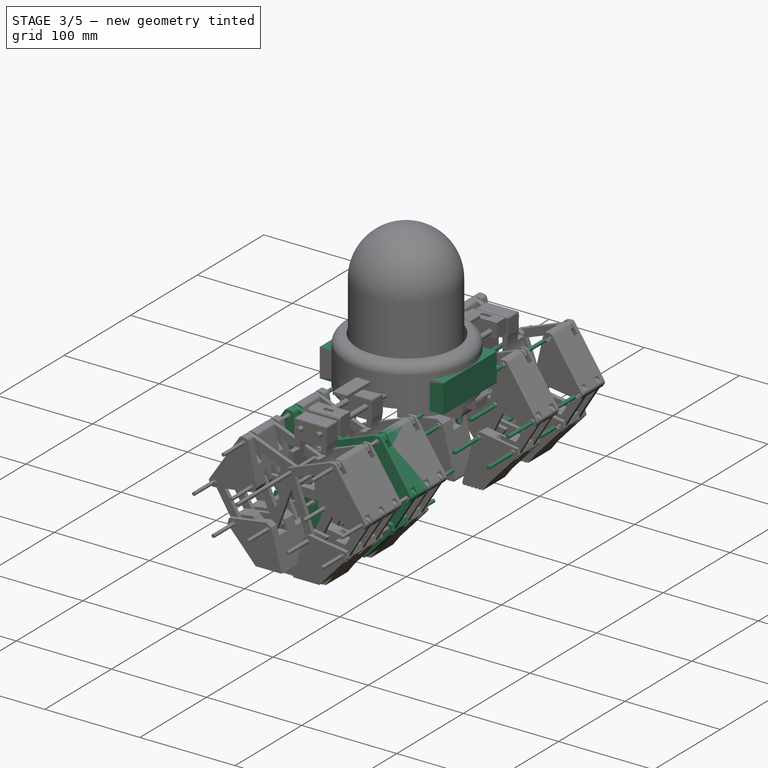
[diagram: stage 3 of 5 — iso view after this stage's code; geometry added in this stage tinted green]
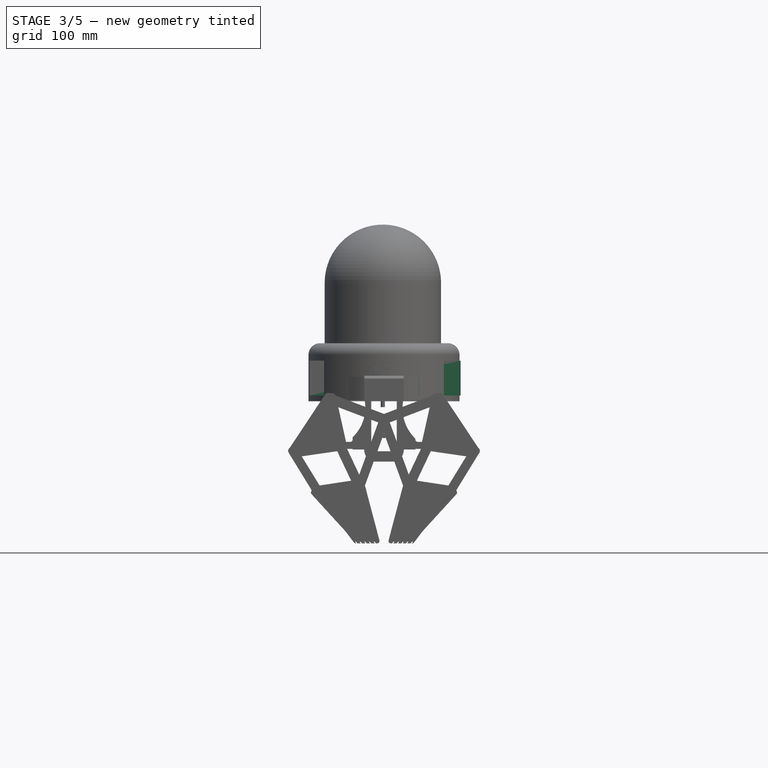
[diagram: stage 3 of 5 — front view after this stage's code; geometry added in this stage tinted green]
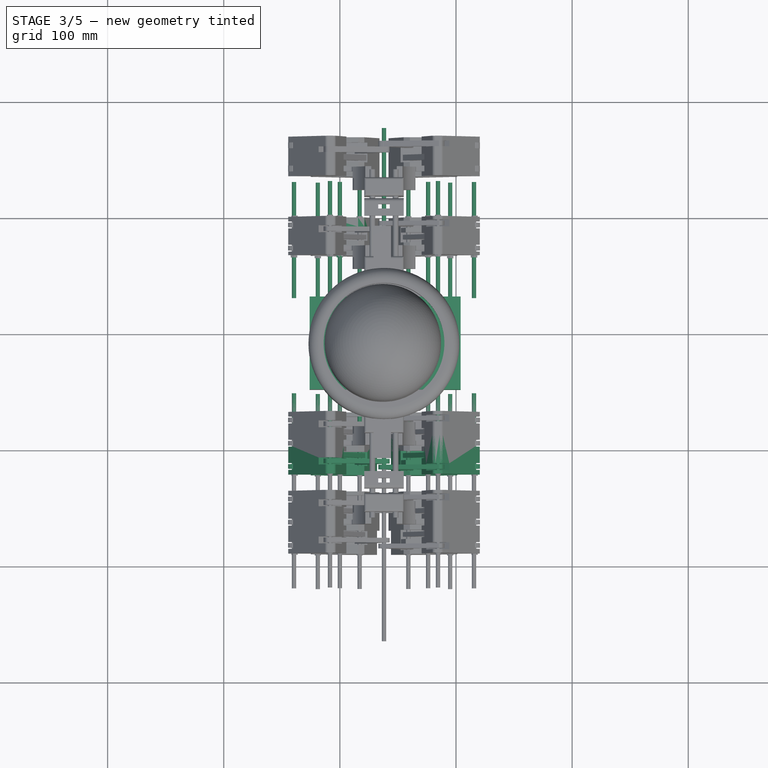
[diagram: stage 3 of 5 — top view after this stage's code; geometry added in this stage tinted green]
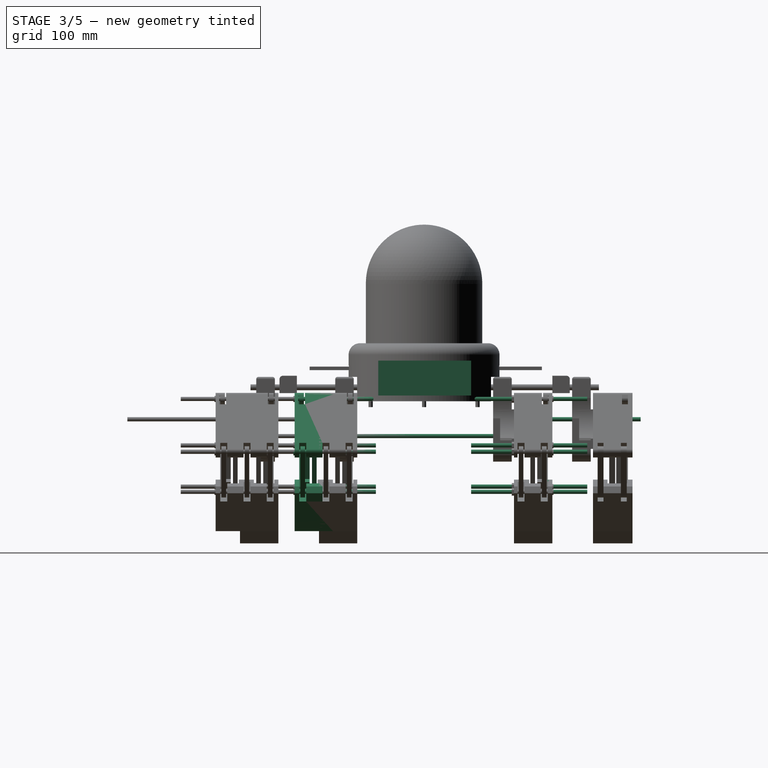
[diagram: stage 3 of 5 — right view after this stage's code; geometry added in this stage tinted green]
FEATURE [Part::Cylinder] Cylinder088  label="Cilindro088"
  Angle = 360
  Height = 300
  Placement = pos=(48,40,50) rot=(1,0,0;1.5708rad)
  Radius = 2.5
FEATURE [Part::Box] Box017  label="Cubo017"
  Height = 30
  Length = 130
  Placement = pos=(-26,-150,43) rot=(0,0,1;0rad)
  Width = 80
FEATURE [Sketcher::SketchObject] Sketch163
  Placement = pos=(-15,0,-10) rot=(0.913318,-0.287968,0.287968;1.66134rad)
  sketch-geometry (6):
    g0: LineSegment StartX=-26.1846 StartY=-19.8249 StartZ=0 EndX=-21.5367 EndY=-15.9796 EndZ=0
    g1: LineSegment StartX=-21.5367 StartY=-15.9796 StartZ=0 EndX=13.9632 EndY=-33.5618 EndZ=0
    g2: LineSegment StartX=13.9632 StartY=-33.5618 StartZ=0 EndX=16.4973 EndY=-39.3555 EndZ=0
    g3: LineSegment StartX=16.4973 StartY=-39.3555 StartZ=0 EndX=1.91251 EndY=-79.158 EndZ=0
    g4: LineSegment StartX=1.91251 StartY=-79.158 StartZ=0 EndX=-20.507 EndY=-63.5274 EndZ=0
    g5: LineSegment StartX=-20.507 StartY=-63.5274 StartZ=0 EndX=-26.1846 EndY=-19.8249 EndZ=0
  constraints (6):
    c: Coincident(g0,g1)
    c: Coincident(g1,g2)
    c: Coincident(g2,g3)
    c: Coincident(g3,g4)
    c: Coincident(g4,g5)
    c: Coincident(g5,g0)
FEATURE [Part::Cylinder] Cylinder089  label="Cilindro089"
  Angle = 360
  Height = 100
  Placement = pos=(-8.5,30,40) rot=(1,0,0;1.5708rad)
  Radius = 1.8
FEATURE [Part::Cylinder] Cylinder090  label="Cilindro090"
  Angle = 360
  Height = 4
  Placement = pos=(0,1,0) rot=(1,0,0;1.5708rad)
  Radius = 2.6
FEATURE [Part::Cylinder] Cylinder091  label="Cilindro091"
  Angle = 360
  Height = 100
  Placement = pos=(38,76,22.5) rot=(1,0,0;1.5708rad)
  Radius = 1.8
FEATURE [Part::Cylinder] Cylinder092  label="Cilindro092"
  Angle = 360
  Height = 100
  Placement = pos=(38,-14,8) rot=(1,0,0;1.5708rad)
  Radius = 1.8
FEATURE [Part::Cylinder] Cylinder093  label="Cilindro093"
  Angle = 360
  Height = 100
  Placement = pos=(0,30,0) rot=(1,0,0;1.5708rad)
  Radius = 1.8
FEATURE [Part::Cylinder] Cylinder094  label="Cilindro094"
  Angle = 360
  Height = 100
  Placement = pos=(-39.5,30,-5.5) rot=(1,0,0;1.5708rad)
  Radius = 1.8
FEATURE [Part::Cylinder] Cylinder095  label="Cilindro095"
  Angle = 360
  Height = 100
  Placement = pos=(-19,30,-40) rot=(1,0,0;1.5708rad)
  Radius = 1.8
FEATURE [Part::Cylinder] Cylinder096  label="Cilindro096"
  Angle = 360
  Height = 100
  Placement = pos=(17,30,-35.5) rot=(1,0,0;1.5708rad)
  Radius = 1.8
FEATURE [PartDesign::Pad] Pad159
  Length = 33
  Length2 = 100
  Placement = pos=(-15,0,-10) rot=(0.913318,-0.287968,0.287968;1.66134rad)
  Sketch = -> Sketch163
  Type = 0
FEATURE [Sketcher::SketchObject] Sketch164
  Placement = pos=(0,-5,0) rot=(1,0,0;1.5708rad)
  sketch-geometry (4):
    g0: LineSegment StartX=-45.7022 StartY=-3.72195 StartZ=0 EndX=-38.9083 EndY=0.415547 EndZ=0
    g1: LineSegment StartX=-38.9083 StartY=0.415547 StartZ=0 EndX=-12.9682 EndY=-41.8491 EndZ=0
    g2: LineSegment StartX=-12.9682 StartY=-41.8491 StartZ=0 EndX=-19.7621 EndY=-45.9866 EndZ=0
    g3: LineSegment StartX=-19.7621 StartY=-45.9866 StartZ=0 EndX=-45.7022 EndY=-3.72195 EndZ=0
  constraints (6):
    c: Coincident(g0,g1)
    c: Coincident(g1,g2)
    c: Coincident(g2,g3)
    c: Coincident(g3,g0)
    c: Parallel(g3,g1)
    c: Parallel(g2,g0)
FEATURE [Sketcher::SketchObject] Sketch165
  Placement = pos=(0,-15,0) rot=(1,0,0;1.5708rad)
  sketch-geometry (4):
    g0: LineSegment StartX=-5.8347 StartY=2.47919 StartZ=0 EndX=2.12677 EndY=5.59698 EndZ=0
    g1: LineSegment StartX=2.12677 StartY=5.59698 StartZ=0 EndX=22.8292 EndY=-38.2205 EndZ=0
    g2: LineSegment StartX=22.8292 StartY=-38.2205 StartZ=0 EndX=14.8678 EndY=-41.3383 EndZ=0
    g3: LineSegment StartX=14.8678 StartY=-41.3383 StartZ=0 EndX=-5.8347 EndY=2.47919 EndZ=0
  constraints (6):
    c: Coincident(g0,g1)
    c: Coincident(g1,g2)
    c: Coincident(g2,g3)
    c: Coincident(g3,g0)
    c: Parallel(g3,g1)
    c: Parallel(g2,g0)
FEATURE [Sketcher::SketchObject] Sketch166
  Placement = pos=(0,-9,0) rot=(1,0,0;1.5708rad)
  sketch-geometry (4):
    g0: LineSegment StartX=-15.1215 StartY=38.0643 StartZ=0 EndX=-11.4967 EndY=45.8979 EndZ=0
    g1: LineSegment StartX=-11.4967 StartY=45.8979 StartZ=0 EndX=43.8982 EndY=24.8483 EndZ=0
    g2: LineSegment StartX=43.8982 StartY=24.8483 StartZ=0 EndX=40.2735 EndY=17.0147 EndZ=0
    g3: LineSegment StartX=40.2735 StartY=17.0147 StartZ=0 EndX=-15.1215 EndY=38.0643 EndZ=0
  constraints (6):
    c: Coincident(g0,g1)
    c: Coincident(g1,g2)
    c: Coincident(g2,g3)
    c: Coincident(g3,g0)
    c: Parallel(g3,g1)
    c: Parallel(g2,g0)
FEATURE [Sketcher::SketchObject] Sketch167
  Placement = pos=(0,-9,0) rot=(1,0,0;1.5708rad)
  sketch-geometry (4):
    g0: LineSegment StartX=36.0124 StartY=27.9384 StartZ=0 EndX=43.3266 EndY=25.1327 EndZ=0
    g1: LineSegment StartX=43.3266 StartY=25.1327 StartZ=0 EndX=19.3358 EndY=-40.7949 EndZ=0
    g2: LineSegment StartX=19.3358 StartY=-40.7949 StartZ=0 EndX=12.0216 EndY=-37.9892 EndZ=0
    g3: LineSegment StartX=12.0216 StartY=-37.9892 StartZ=0 EndX=36.0124 EndY=27.9384 EndZ=0
  constraints (6):
    c: Coincident(g0,g1)
    c: Coincident(g1,g2)
    c: Coincident(g2,g3)
    c: Coincident(g3,g0)
    c: Parallel(g3,g1)
    c: Parallel(g2,g0)
FEATURE [PartDesign::Pad] Pad160
  Length = 4
  Length2 = 100
  Placement = pos=(0,-5,0) rot=(1,0,0;1.5708rad)
  Sketch = -> Sketch164
  Type = 0
FEATURE [PartDesign::Pad] Pad161
  Length = 4
  Length2 = 100
  Placement = pos=(0,-15,0) rot=(1,0,0;1.5708rad)
  Sketch = -> Sketch165
  Type = 0
FEATURE [PartDesign::Pad] Pad162
  Length = 4
  Length2 = 100
  Placement = pos=(0,-9,0) rot=(1,0,0;1.5708rad)
  Sketch = -> Sketch167
  Type = 0
FEATURE [PartDesign::Pad] Pad163
  Length = 4
  Length2 = 100
  Placement = pos=(0,-9,0) rot=(1,0,0;1.5708rad)
  Sketch = -> Sketch166
  Type = 0
FEATURE [Sketcher::SketchObject] Sketch168
  Placement = pos=(0,-25,0) rot=(1,0,0;1.5708rad)
  sketch-geometry (4):
    g0: LineSegment StartX=-45.7022 StartY=-3.72195 StartZ=0 EndX=-38.9083 EndY=0.415547 EndZ=0
    g1: LineSegment StartX=-38.9083 StartY=0.415547 StartZ=0 EndX=-12.9682 EndY=-41.8491 EndZ=0
    g2: LineSegment StartX=-12.9682 StartY=-41.8491 StartZ=0 EndX=-19.7621 EndY=-45.9866 EndZ=0
    g3: LineSegment StartX=-19.7621 StartY=-45.9866 StartZ=0 EndX=-45.7022 EndY=-3.72195 EndZ=0
  constraints (6):
    c: Coincident(g0,g1)
    c: Coincident(g1,g2)
    c: Coincident(g2,g3)
    c: Coincident(g3,g0)
    c: Parallel(g3,g1)
    c: Parallel(g2,g0)
FEATURE [PartDesign::Pad] Pad164
  Length = 4
  Length2 = 100
  Placement = pos=(0,-25,0) rot=(1,0,0;1.5708rad)
  Sketch = -> Sketch168
  Type = 0
FEATURE [Part::Fillet] Fillet071
  Base = -> Pad163
  Edges = 4 edges r=3: [Edge1,Edge2,Edge5,Edge8]
FEATURE [Part::Fillet] Fillet072
  Base = -> Pad160
  Edges = 4 edges r=3: [Edge1,Edge2,Edge5,Edge8]
FEATURE [Part::Fillet] Fillet073
  Base = -> Pad164
  Edges = 4 edges r=3: [Edge1,Edge2,Edge5,Edge8]
FEATURE [Part::Fillet] Fillet074
  Base = -> Pad161
  Edges = 4 edges r=3: [Edge1,Edge2,Edge5,Edge8]
FEATURE [Part::Fillet] Fillet075
  Base = -> Pad162
  Edges = 4 edges r=3: [Edge1,Edge2,Edge5,Edge8]
FEATURE [Sketcher::SketchObject] Sketch169
  Placement = pos=(0,0,0) rot=(1,0,0;1.5708rad)
  sketch-geometry (24):
    g0: LineSegment StartX=31.9221 StartY=-73.7642 StartZ=0 EndX=34.7157 EndY=-84.3474 EndZ=0
    g1: LineSegment StartX=34.7157 StartY=-84.3474 StartZ=0 EndX=31.0042 EndY=-84.3474 EndZ=0
    g2: LineSegment StartX=31.0042 StartY=-84.3474 StartZ=0 EndX=29.9949 EndY=-83.0102 EndZ=0
    g3: LineSegment StartX=29.9949 StartY=-83.0102 StartZ=0 EndX=29.0048 EndY=-82.9974 EndZ=0
    g4: LineSegment StartX=29.0048 StartY=-82.9974 StartZ=0 EndX=29.9744 EndY=-84.3565 EndZ=0
    g5: LineSegment StartX=29.9744 StartY=-84.3565 StartZ=0 EndX=27.0013 EndY=-84.3565 EndZ=0
    g6: LineSegment StartX=27.0013 StartY=-84.3565 StartZ=0 EndX=25.9942 EndY=-83.0138 EndZ=0
    g7: LineSegment StartX=25.9942 StartY=-83.0138 StartZ=0 EndX=24.9776 EndY=-83.0138 EndZ=0
    g8: LineSegment StartX=24.9776 StartY=-83.0138 StartZ=0 EndX=26.0038 EndY=-84.3756 EndZ=0
    g9: LineSegment StartX=26.0038 StartY=-84.3756 StartZ=0 EndX=23.0075 EndY=-84.3756 EndZ=0
    g10: LineSegment StartX=23.0075 StartY=-84.3756 StartZ=0 EndX=22.0197 EndY=-83.0236 EndZ=0
    g11: LineSegment StartX=22.0197 StartY=-83.0236 StartZ=0 EndX=20.9743 EndY=-83.0236 EndZ=0
    g12: LineSegment StartX=20.9743 StartY=-83.0236 StartZ=0 EndX=22.0005 EndY=-84.3663 EndZ=0
    g13: LineSegment StartX=22.0005 StartY=-84.3663 StartZ=0 EndX=19.0178 EndY=-84.3663 EndZ=0
    g14: LineSegment StartX=19.0178 StartY=-84.3663 StartZ=0 EndX=17.9916 EndY=-83.0045 EndZ=0
    g15: LineSegment StartX=17.9916 StartY=-83.0045 StartZ=0 EndX=16.9846 EndY=-83.0045 EndZ=0
    g16: LineSegment StartX=16.9846 StartY=-83.0045 StartZ=0 EndX=18.0012 EndY=-84.3663 EndZ=0
    g17: LineSegment StartX=18.0012 StartY=-84.3663 StartZ=0 EndX=15.0322 EndY=-84.3663 EndZ=0
    g18: LineSegment StartX=15.0322 StartY=-84.3663 StartZ=0 EndX=14.0131 EndY=-83.0204 EndZ=0
    g19: LineSegment StartX=14.0131 StartY=-83.0204 StartZ=0 EndX=12.9823 EndY=-83.0204 EndZ=0
    g20: LineSegment StartX=12.9823 StartY=-83.0204 StartZ=0 EndX=14.0014 EndY=-84.3792 EndZ=0
    g21: LineSegment StartX=14.0014 StartY=-84.3792 StartZ=0 EndX=12.6817 EndY=-84.3792 EndZ=0
    g22: LineSegment StartX=12.6817 StartY=-84.3792 StartZ=0 EndX=4.6509 EndY=-73.7642 EndZ=0
    g23: LineSegment StartX=4.6509 StartY=-73.7642 StartZ=0 EndX=31.9221 EndY=-73.7642 EndZ=0
  constraints (35):
    c: Coincident(g0,g1)
    c: Horizontal(g1)
    c: Coincident(g1,g2)
    c: Coincident(g2,g3)
    c: Coincident(g3,g4)
    c: Coincident(g4,g5)
    c: Horizontal(g5)
    c: Coincident(g5,g6)
    c: Coincident(g6,g7)
    c: Horizontal(g7)
    c: Coincident(g7,g8)
    c: Coincident(g8,g9)
    c: Horizontal(g9)
    c: Coincident(g9,g10)
    c: Coincident(g10,g11)
    c: Horizontal(g11)
    c: Coincident(g11,g12)
    c: Coincident(g12,g13)
    c: Horizontal(g13)
    c: Coincident(g13,g14)
    c: Coincident(g14,g15)
    c: Horizontal(g15)
    c: Coincident(g15,g16)
    c: Coincident(g16,g17)
    c: Horizontal(g17)
    c: Coincident(g17,g18)
    c: Coincident(g18,g19)
    c: Horizontal(g19)
    c: Coincident(g19,g20)
    c: Coincident(g20,g21)
    c: Horizontal(g21)
    c: Coincident(g21,g22)
    c: Coincident(g22,g23)
    c: Coincident(g23,g0)
    c: Horizontal(g23)
FEATURE [PartDesign::Pad] Pad165
  Length = 33
  Length2 = 100
  Placement = pos=(0,0,0) rot=(1,0,0;1.5708rad)
  Sketch = -> Sketch169
  Type = 0
FEATURE [Sketcher::SketchObject] Sketch170
  Placement = pos=(-4,-7,0) rot=(1,0,0;1.5708rad)
  sketch-geometry (8):
    g0: LineSegment StartX=12.9217 StartY=-76.0433 StartZ=0 EndX=12.9217 EndY=-72.6813 EndZ=0
    g1: LineSegment StartX=12.9217 StartY=-72.6813 StartZ=0 EndX=10.907 EndY=-71.0645 EndZ=0
    g2: LineSegment StartX=10.907 StartY=-71.0645 StartZ=0 EndX=12.9496 EndY=-67.9874 EndZ=0
    g3: LineSegment StartX=12.9496 StartY=-67.9874 StartZ=0 EndX=17.8943 EndY=-67.9874 EndZ=0
    g4: LineSegment StartX=17.8943 StartY=-67.9874 StartZ=0 EndX=19.9533 EndY=-71.0124 EndZ=0
    g5: LineSegment StartX=19.9533 StartY=-71.0124 StartZ=0 EndX=17.9933 EndY=-72.6487 EndZ=0
    g6: LineSegment StartX=17.9933 StartY=-72.6487 StartZ=0 EndX=17.9811 EndY=-76.0433 EndZ=0
    g7: LineSegment StartX=17.9811 StartY=-76.0433 StartZ=0 EndX=12.9217 EndY=-76.0433 EndZ=0
  constraints (11):
    c: Vertical(g0)
    c: Coincident(g0,g1)
    c: Coincident(g1,g2)
    c: Coincident(g2,g3)
    c: Horizontal(g3)
    c: Coincident(g3,g4)
    c: Coincident(g4,g5)
    c: Coincident(g6,g7)
    c: Coincident(g7,g0)
    c: Horizontal(g7)
    c: Coincident(g5,g6)
FEATURE [PartDesign::Pad] Pad166
  Length = 20
  Length2 = 100
  Placement = pos=(-4,-7,0) rot=(1,0,0;1.5708rad)
  Sketch = -> Sketch170
  Type = 0
FEATURE [Part::MultiFuse] Fusion047
  Shapes = -> [Pad166,Pad165]
FEATURE [Sketcher::SketchObject] Sketch171
  Placement = pos=(10,-7,0) rot=(1,0,0;1.5708rad)
  sketch-geometry (8):
    g0: LineSegment StartX=12.9217 StartY=-76.0433 StartZ=0 EndX=12.9217 EndY=-72.6813 EndZ=0
    g1: LineSegment StartX=12.9217 StartY=-72.6813 StartZ=0 EndX=10.907 EndY=-71.0645 EndZ=0
    g2: LineSegment StartX=10.907 StartY=-71.0645 StartZ=0 EndX=12.9496 EndY=-67.9874 EndZ=0
    g3: LineSegment StartX=12.9496 StartY=-67.9874 StartZ=0 EndX=17.8943 EndY=-67.9874 EndZ=0
    g4: LineSegment StartX=17.8943 StartY=-67.9874 StartZ=0 EndX=19.9533 EndY=-71.0124 EndZ=0
    g5: LineSegment StartX=19.9533 StartY=-71.0124 StartZ=0 EndX=17.9933 EndY=-72.6487 EndZ=0
    g6: LineSegment StartX=17.9933 StartY=-72.6487 StartZ=0 EndX=17.9811 EndY=-76.0433 EndZ=0
    g7: LineSegment StartX=17.9811 StartY=-76.0433 StartZ=0 EndX=12.9217 EndY=-76.0433 EndZ=0
  constraints (11):
    c: Vertical(g0)
    c: Coincident(g0,g1)
    c: Coincident(g1,g2)
    c: Coincident(g2,g3)
    c: Horizontal(g3)
    c: Coincident(g3,g4)
    c: Coincident(g4,g5)
    c: Coincident(g6,g7)
    c: Coincident(g7,g0)
    c: Horizontal(g7)
    c: Coincident(g5,g6)
FEATURE [PartDesign::Pad] Pad167
  Length = 20
  Length2 = 100
  Placement = pos=(10,-7,0) rot=(1,0,0;1.5708rad)
  Sketch = -> Sketch171
  Type = 0
FEATURE [Part::MultiFuse] Fusion048
  Shapes = -> [Fusion047,Pad167]
FEATURE [Part::Cut] Cut070
  Base = -> Pad159
  Tool = -> Fusion048
FEATURE [Part::Cylinder] Cylinder097  label="Cilindro097"
  Angle = 360
  Height = 100
  Placement = pos=(-8.5,30,40) rot=(1,0,0;1.5708rad)
  Radius = 1.8
FEATURE [Part::Cylinder] Cylinder098  label="Cilindro098"
  Angle = 360
  Height = 100
  Placement = pos=(0,30,0) rot=(1,0,0;1.5708rad)
  Radius = 1.8
FEATURE [Part::Cylinder] Cylinder099  label="Cilindro099"
  Angle = 360
  Height = 100
  Placement = pos=(-39.5,30,-5.5) rot=(1,0,0;1.5708rad)
  Radius = 1.8
FEATURE [Part::Cylinder] Cylinder100  label="Cilindro100"
  Angle = 360
  Height = 100
  Placement = pos=(-19,30,-40) rot=(1,0,0;1.5708rad)
  Radius = 1.8
FEATURE [Part::Cylinder] Cylinder101  label="Cilindro101"
  Angle = 360
  Height = 100
  Placement = pos=(17,30,-35.5) rot=(1,0,0;1.5708rad)
  Radius = 1.8
FEATURE [Sketcher::SketchObject] Sketch172
  Placement = pos=(0,-5,0) rot=(1,0,0;1.5708rad)
  sketch-geometry (4):
    g0: LineSegment StartX=-45.7022 StartY=-3.72195 StartZ=0 EndX=-38.9083 EndY=0.415547 EndZ=0
    g1: LineSegment StartX=-38.9083 StartY=0.415547 StartZ=0 EndX=-12.9682 EndY=-41.8491 EndZ=0
    g2: LineSegment StartX=-12.9682 StartY=-41.8491 StartZ=0 EndX=-19.7621 EndY=-45.9866 EndZ=0
    g3: LineSegment StartX=-19.7621 StartY=-45.9866 StartZ=0 EndX=-45.7022 EndY=-3.72195 EndZ=0
  constraints (6):
    c: Coincident(g0,g1)
    c: Coincident(g1,g2)
    c: Coincident(g2,g3)
    c: Coincident(g3,g0)
    c: Parallel(g3,g1)
    c: Parallel(g2,g0)
FEATURE [Sketcher::SketchObject] Sketch173
  Placement = pos=(0,-15,0) rot=(1,0,0;1.5708rad)
  sketch-geometry (4):
    g0: LineSegment StartX=-5.8347 StartY=2.47919 StartZ=0 EndX=2.12677 EndY=5.59698 EndZ=0
    g1: LineSegment StartX=2.12677 StartY=5.59698 StartZ=0 EndX=22.8292 EndY=-38.2205 EndZ=0
    g2: LineSegment StartX=22.8292 StartY=-38.2205 StartZ=0 EndX=14.8678 EndY=-41.3383 EndZ=0
    g3: LineSegment StartX=14.8678 StartY=-41.3383 StartZ=0 EndX=-5.8347 EndY=2.47919 EndZ=0
  constraints (6):
    c: Coincident(g0,g1)
    c: Coincident(g1,g2)
    c: Coincident(g2,g3)
    c: Coincident(g3,g0)
    c: Parallel(g3,g1)
    c: Parallel(g2,g0)
FEATURE [PartDesign::Pad] Pad168
  Length = 4
  Length2 = 100
  Placement = pos=(0,-5,0) rot=(1,0,0;1.5708rad)
  Sketch = -> Sketch172
  Type = 0
FEATURE [PartDesign::Pad] Pad169
  Length = 4
  Length2 = 100
  Placement = pos=(0,-15,0) rot=(1,0,0;1.5708rad)
  Sketch = -> Sketch173
  Type = 0
FEATURE [Sketcher::SketchObject] Sketch174
  Placement = pos=(0,-25,0) rot=(1,0,0;1.5708rad)
  sketch-geometry (4):
    g0: LineSegment StartX=-45.7022 StartY=-3.72195 StartZ=0 EndX=-38.9083 EndY=0.415547 EndZ=0
    g1: LineSegment StartX=-38.9083 StartY=0.415547 StartZ=0 EndX=-12.9682 EndY=-41.8491 EndZ=0
    g2: LineSegment StartX=-12.9682 StartY=-41.8491 StartZ=0 EndX=-19.7621 EndY=-45.9866 EndZ=0
    g3: LineSegment StartX=-19.7621 StartY=-45.9866 StartZ=0 EndX=-45.7022 EndY=-3.72195 EndZ=0
  constraints (6):
    c: Coincident(g0,g1)
    c: Coincident(g1,g2)
    c: Coincident(g2,g3)
    c: Coincident(g3,g0)
    c: Parallel(g3,g1)
    c: Parallel(g2,g0)
FEATURE [PartDesign::Pad] Pad170
  Length = 4
  Length2 = 100
  Placement = pos=(0,-25,0) rot=(1,0,0;1.5708rad)
  Sketch = -> Sketch174
  Type = 0
FEATURE [Part::Fillet] Fillet076
  Base = -> Pad168
  Edges = 4 edges r=3: [Edge1,Edge2,Edge5,Edge8]
FEATURE [Part::Fillet] Fillet077
  Base = -> Pad170
  Edges = 4 edges r=3: [Edge1,Edge2,Edge5,Edge8]
FEATURE [Part::Fillet] Fillet078
  Base = -> Pad169
  Edges = 4 edges r=3: [Edge1,Edge2,Edge5,Edge8]
FEATURE [Part::Mirroring] Part__Mirroring050  label="Cilindro008 (Mirror #4)003"
  Base = (0,0,0)
  Normal = (1,0,0)
  Placement = pos=(76,0,0) rot=(0,0,1;0rad)
  Source = -> Cylinder097
FEATURE [Part::Mirroring] Part__Mirroring051  label="Cilindro012 (Mirror #7)004"
  Base = (0,0,0)
  Normal = (1,0,0)
  Placement = pos=(76,0,0) rot=(0,0,1;0rad)
  Source = -> Cylinder098
FEATURE [Part::Mirroring] Part__Mirroring052  label="Cilindro013 (Mirror #8)003"
  Base = (0,0,0)
  Normal = (1,0,0)
  Placement = pos=(76,0,0) rot=(0,0,1;0rad)
  Source = -> Cylinder099
FEATURE [Part::Mirroring] Part__Mirroring053  label="Cilindro014 (Mirror #9)003"
  Base = (0,0,0)
  Normal = (1,0,0)
  Placement = pos=(76,0,0) rot=(0,0,1;0rad)
  Source = -> Cylinder100
FEATURE [Part::Mirroring] Part__Mirroring054  label="Cilindro015 (Mirror #10)003"
  Base = (0,0,0)
  Normal = (1,0,0)
  Placement = pos=(76,0,0) rot=(0,0,1;0rad)
  Source = -> Cylinder101
FEATURE [Part::Mirroring] Part__Mirroring055  label="Fillet014 (Mirror #11)003"
  Base = (0,0,0)
  Normal = (1,0,0)
  Placement = pos=(76,0,0) rot=(0,0,1;0rad)
FEATURE [Part::Mirroring] Part__Mirroring056  label="Fillet015 (Mirror #12)003"
  Base = (0,0,0)
  Normal = (1,0,0)
  Placement = pos=(76,0,0) rot=(0,0,1;0rad)
  Source = -> Fillet076
FEATURE [Part::Mirroring] Part__Mirroring057  label="Fillet016 (Mirror #13)003"
  Base = (0,0,0)
  Normal = (1,0,0)
  Placement = pos=(76,0,0) rot=(0,0,1;0rad)
  Source = -> Fillet077
FEATURE [Part::Mirroring] Part__Mirroring058  label="Fillet017 (Mirror #14)003"
  Base = (0,0,0)
  Normal = (1,0,0)
  Placement = pos=(76,0,0) rot=(0,0,1;0rad)
  Source = -> Fillet078
FEATURE [Part::Mirroring] Part__Mirroring059  label="Fillet018 (Mirror #15)003"
  Base = (0,0,0)
  Normal = (1,0,0)
  Placement = pos=(76,0,0) rot=(0,0,1;0rad)
FEATURE [Part::MultiFuse] Fusion049
  Shapes = -> [Part__Mirroring059,Part__Mirroring055]
FEATURE [Part::MultiFuse] Fusion050
  Shapes = -> [Fillet071,Fillet075]
FEATURE [Sketcher::SketchObject] Sketch175
  Placement = pos=(0,-4,0) rot=(1,0,0;1.5708rad)
  sketch-geometry (4):
    g0: LineSegment StartX=-22.8766 StartY=-50.4589 StartZ=0 EndX=-2.79575 EndY=-40.4184 EndZ=0
    g1: LineSegment StartX=-2.79575 StartY=-40.4184 StartZ=0 EndX=3.5228 EndY=-28.9065 EndZ=0
    g2: LineSegment StartX=3.5228 StartY=-28.9065 StartZ=0 EndX=-39.4087 EndY=-32.8015 EndZ=0
    g3: LineSegment StartX=-39.4087 StartY=-32.8015 StartZ=0 EndX=-22.8766 EndY=-50.4589 EndZ=0
  constraints (4):
    c: Coincident(g0,g1)
    c: Coincident(g1,g2)
    c: Coincident(g2,g3)
    c: Coincident(g3,g0)
FEATURE [PartDesign::Pad] Pad171
  Length = 6
  Length2 = 100
  Placement = pos=(0,-4,0) rot=(1,0,0;1.5708rad)
  Sketch = -> Sketch175
  Type = 0
FEATURE [Sketcher::SketchObject] Sketch176
  Placement = pos=(0,-24,0) rot=(1,0,0;1.5708rad)
  sketch-geometry (4):
    g0: LineSegment StartX=-22.8766 StartY=-50.4589 StartZ=0 EndX=-2.79575 EndY=-40.4184 EndZ=0
    g1: LineSegment StartX=-2.79575 StartY=-40.4184 StartZ=0 EndX=3.5228 EndY=-28.9065 EndZ=0
    g2: LineSegment StartX=3.5228 StartY=-28.9065 StartZ=0 EndX=-39.4087 EndY=-32.8015 EndZ=0
    g3: LineSegment StartX=-39.4087 StartY=-32.8015 StartZ=0 EndX=-22.8766 EndY=-50.4589 EndZ=0
  constraints (4):
    c: Coincident(g0,g1)
    c: Coincident(g1,g2)
    c: Coincident(g2,g3)
    c: Coincident(g3,g0)
FEATURE [PartDesign::Pad] Pad172
  Length = 6
  Length2 = 100
  Placement = pos=(0,-24,0) rot=(1,0,0;1.5708rad)
  Sketch = -> Sketch176
  Type = 0
FEATURE [Sketcher::SketchObject] Sketch177
  Placement = pos=(0,-8,0) rot=(1,0,0;1.5708rad)
  sketch-geometry (4):
    g0: LineSegment StartX=26.8543 StartY=-42.5089 StartZ=0 EndX=4.22651 EndY=-42.5089 EndZ=0
    g1: LineSegment StartX=4.22651 StartY=-42.5089 StartZ=0 EndX=-12.0771 EndY=-26.2633 EndZ=0
    g2: LineSegment StartX=-12.0771 StartY=-26.2633 StartZ=0 EndX=32.6562 EndY=-19.1269 EndZ=0
    g3: LineSegment StartX=32.6562 StartY=-19.1269 StartZ=0 EndX=26.8543 EndY=-42.5089 EndZ=0
  constraints (5):
    c: Horizontal(g0)
    c: Coincident(g0,g1)
    c: Coincident(g1,g2)
    c: Coincident(g2,g3)
    c: Coincident(g3,g0)
FEATURE [PartDesign::Pad] Pad173
  Length = 12
  Length2 = 100
  Placement = pos=(0,-8,0) rot=(1,0,0;1.5708rad)
  Sketch = -> Sketch177
  Type = 0
FEATURE [Part::Cut] Cut071
  Base = -> Cut070
  Tool = -> Pad173
FEATURE [Part::Cut] Cut072
  Base = -> Cut071
  Tool = -> Pad172
FEATURE [Part::Cut] Cut073
  Base = -> Cut072
  Tool = -> Pad171
FEATURE [Sketcher::SketchObject] Sketch178
  Placement = pos=(-15,0,-10) rot=(0.913318,-0.287968,0.287968;1.66134rad)
  sketch-geometry (6):
    g0: LineSegment StartX=-26.1846 StartY=-19.8249 StartZ=0 EndX=-21.5367 EndY=-15.9796 EndZ=0
    g1: LineSegment StartX=-21.5367 StartY=-15.9796 StartZ=0 EndX=13.9632 EndY=-33.5618 EndZ=0
    g2: LineSegment StartX=13.9632 StartY=-33.5618 StartZ=0 EndX=16.4973 EndY=-39.3555 EndZ=0
    g3: LineSegment StartX=16.4973 StartY=-39.3555 StartZ=0 EndX=1.91251 EndY=-79.158 EndZ=0
    g4: LineSegment StartX=1.91251 StartY=-79.158 StartZ=0 EndX=-20.507 EndY=-63.5274 EndZ=0
    g5: LineSegment StartX=-20.507 StartY=-63.5274 StartZ=0 EndX=-26.1846 EndY=-19.8249 EndZ=0
  constraints (6):
    c: Coincident(g0,g1)
    c: Coincident(g1,g2)
    c: Coincident(g2,g3)
    c: Coincident(g3,g4)
    c: Coincident(g4,g5)
    c: Coincident(g5,g0)
FEATURE [Sketcher::SketchObject] Sketch179
  Placement = pos=(0,0,0) rot=(0.926703,-0.265728,0.265728;1.64685rad)
  sketch-geometry (6):
    g0: LineSegment StartX=-40.7654 StartY=19.725 StartZ=0 EndX=-40.7654 EndY=12.9153 EndZ=0
    g1: LineSegment StartX=-40.7654 StartY=12.9153 StartZ=0 EndX=-0.0823442 EndY=-5.03519 EndZ=0
    g2: LineSegment StartX=-0.0823442 StartY=-5.03519 StartZ=0 EndX=5.26188 EndY=-2.60545 EndZ=0
    g3: LineSegment StartX=5.26188 StartY=-2.60545 StartZ=0 EndX=20.3177 EndY=40.0856 EndZ=0
    g4: LineSegment StartX=20.3177 StartY=40.0856 StartZ=0 EndX=14.0989 EndY=44.6607 EndZ=0
    g5: LineSegment StartX=14.0989 StartY=44.6607 StartZ=0 EndX=-40.7654 EndY=19.725 EndZ=0
  constraints (7):
    c: Vertical(g0)
    c: Coincident(g0,g1)
    c: Coincident(g1,g2)
    c: Coincident(g2,g3)
    c: Coincident(g3,g4)
    c: Coincident(g4,g5)
    c: Coincident(g5,g0)
FEATURE [PartDesign::Pad] Pad174
  Length = 33
  Length2 = 100
  Placement = pos=(0,0,0) rot=(0.926703,-0.265728,0.265728;1.64685rad)
  Sketch = -> Sketch179
  Type = 0
FEATURE [PartDesign::Pad] Pad175
  Length = 33
  Length2 = 100
  Placement = pos=(-15,0,-10) rot=(0.913318,-0.287968,0.287968;1.66134rad)
  Sketch = -> Sketch178
  Type = 0
FEATURE [Part::Fillet] Fillet079
  Base = -> Pad174
  Edges = 2 edges r=3: [Edge11,Edge14]
FEATURE [Part::Fillet] Fillet080
  Base = -> Fillet079
  Edges = 4 edges r=3: [Edge3,Edge14,Edge22,Edge24]
FEATURE [Sketcher::SketchObject] Sketch180
  Placement = pos=(0,0,0) rot=(1,0,0;1.5708rad)
  sketch-geometry (24):
    g0: LineSegment StartX=31.9221 StartY=-73.7642 StartZ=0 EndX=34.7157 EndY=-84.3474 EndZ=0
    g1: LineSegment StartX=34.7157 StartY=-84.3474 StartZ=0 EndX=31.0042 EndY=-84.3474 EndZ=0
    g2: LineSegment StartX=31.0042 StartY=-84.3474 StartZ=0 EndX=29.9949 EndY=-83.0102 EndZ=0
    g3: LineSegment StartX=29.9949 StartY=-83.0102 StartZ=0 EndX=29.0048 EndY=-82.9974 EndZ=0
    g4: LineSegment StartX=29.0048 StartY=-82.9974 StartZ=0 EndX=29.9744 EndY=-84.3565 EndZ=0
    g5: LineSegment StartX=29.9744 StartY=-84.3565 StartZ=0 EndX=27.0013 EndY=-84.3565 EndZ=0
    g6: LineSegment StartX=27.0013 StartY=-84.3565 StartZ=0 EndX=25.9942 EndY=-83.0138 EndZ=0
    g7: LineSegment StartX=25.9942 StartY=-83.0138 StartZ=0 EndX=24.9776 EndY=-83.0138 EndZ=0
    g8: LineSegment StartX=24.9776 StartY=-83.0138 StartZ=0 EndX=26.0038 EndY=-84.3756 EndZ=0
    g9: LineSegment StartX=26.0038 StartY=-84.3756 StartZ=0 EndX=23.0075 EndY=-84.3756 EndZ=0
    g10: LineSegment StartX=23.0075 StartY=-84.3756 StartZ=0 EndX=22.0197 EndY=-83.0236 EndZ=0
    g11: LineSegment StartX=22.0197 StartY=-83.0236 StartZ=0 EndX=20.9743 EndY=-83.0236 EndZ=0
    g12: LineSegment StartX=20.9743 StartY=-83.0236 StartZ=0 EndX=22.0005 EndY=-84.3663 EndZ=0
    g13: LineSegment StartX=22.0005 StartY=-84.3663 StartZ=0 EndX=19.0178 EndY=-84.3663 EndZ=0
    g14: LineSegment StartX=19.0178 StartY=-84.3663 StartZ=0 EndX=17.9916 EndY=-83.0045 EndZ=0
    g15: LineSegment StartX=17.9916 StartY=-83.0045 StartZ=0 EndX=16.9846 EndY=-83.0045 EndZ=0
    g16: LineSegment StartX=16.9846 StartY=-83.0045 StartZ=0 EndX=18.0012 EndY=-84.3663 EndZ=0
    g17: LineSegment StartX=18.0012 StartY=-84.3663 StartZ=0 EndX=15.0322 EndY=-84.3663 EndZ=0
    g18: LineSegment StartX=15.0322 StartY=-84.3663 StartZ=0 EndX=14.0131 EndY=-83.0204 EndZ=0
    g19: LineSegment StartX=14.0131 StartY=-83.0204 StartZ=0 EndX=12.9823 EndY=-83.0204 EndZ=0
    g20: LineSegment StartX=12.9823 StartY=-83.0204 StartZ=0 EndX=14.0014 EndY=-84.3792 EndZ=0
    g21: LineSegment StartX=14.0014 StartY=-84.3792 StartZ=0 EndX=12.6817 EndY=-84.3792 EndZ=0
    g22: LineSegment StartX=12.6817 StartY=-84.3792 StartZ=0 EndX=4.6509 EndY=-73.7642 EndZ=0
    g23: LineSegment StartX=4.6509 StartY=-73.7642 StartZ=0 EndX=31.9221 EndY=-73.7642 EndZ=0
  constraints (35):
    c: Coincident(g0,g1)
    c: Horizontal(g1)
    c: Coincident(g1,g2)
    c: Coincident(g2,g3)
    c: Coincident(g3,g4)
    c: Coincident(g4,g5)
    c: Horizontal(g5)
    c: Coincident(g5,g6)
    c: Coincident(g6,g7)
    c: Horizontal(g7)
    c: Coincident(g7,g8)
    c: Coincident(g8,g9)
    c: Horizontal(g9)
    c: Coincident(g9,g10)
    c: Coincident(g10,g11)
    c: Horizontal(g11)
    c: Coincident(g11,g12)
    c: Coincident(g12,g13)
    c: Horizontal(g13)
    c: Coincident(g13,g14)
    c: Coincident(g14,g15)
    c: Horizontal(g15)
    c: Coincident(g15,g16)
    c: Coincident(g16,g17)
    c: Horizontal(g17)
    c: Coincident(g17,g18)
    c: Coincident(g18,g19)
    c: Horizontal(g19)
    c: Coincident(g19,g20)
    c: Coincident(g20,g21)
    c: Horizontal(g21)
    c: Coincident(g21,g22)
    c: Coincident(g22,g23)
    c: Coincident(g23,g0)
    c: Horizontal(g23)
FEATURE [PartDesign::Pad] Pad176
  Length = 33
  Length2 = 100
  Placement = pos=(0,0,0) rot=(1,0,0;1.5708rad)
  Sketch = -> Sketch180
  Type = 0
FEATURE [Sketcher::SketchObject] Sketch181
  Placement = pos=(-4,-7,0) rot=(1,0,0;1.5708rad)
  sketch-geometry (8):
    g0: LineSegment StartX=12.9217 StartY=-76.0433 StartZ=0 EndX=12.9217 EndY=-72.6813 EndZ=0
    g1: LineSegment StartX=12.9217 StartY=-72.6813 StartZ=0 EndX=10.907 EndY=-71.0645 EndZ=0
    g2: LineSegment StartX=10.907 StartY=-71.0645 StartZ=0 EndX=12.9496 EndY=-67.9874 EndZ=0
    g3: LineSegment StartX=12.9496 StartY=-67.9874 StartZ=0 EndX=17.8943 EndY=-67.9874 EndZ=0
    g4: LineSegment StartX=17.8943 StartY=-67.9874 StartZ=0 EndX=19.9533 EndY=-71.0124 EndZ=0
    g5: LineSegment StartX=19.9533 StartY=-71.0124 StartZ=0 EndX=17.9933 EndY=-72.6487 EndZ=0
    g6: LineSegment StartX=17.9933 StartY=-72.6487 StartZ=0 EndX=17.9811 EndY=-76.0433 EndZ=0
    g7: LineSegment StartX=17.9811 StartY=-76.0433 StartZ=0 EndX=12.9217 EndY=-76.0433 EndZ=0
  constraints (11):
    c: Vertical(g0)
    c: Coincident(g0,g1)
    c: Coincident(g1,g2)
    c: Coincident(g2,g3)
    c: Horizontal(g3)
    c: Coincident(g3,g4)
    c: Coincident(g4,g5)
    c: Coincident(g6,g7)
    c: Coincident(g7,g0)
    c: Horizontal(g7)
    c: Coincident(g5,g6)
FEATURE [PartDesign::Pad] Pad177
  Length = 20
  Length2 = 100
  Placement = pos=(-4,-7,0) rot=(1,0,0;1.5708rad)
  Sketch = -> Sketch181
  Type = 0
FEATURE [Part::MultiFuse] Fusion051
  Shapes = -> [Pad177,Pad176]
FEATURE [Sketcher::SketchObject] Sketch182
  Placement = pos=(10,-7,0) rot=(1,0,0;1.5708rad)
  sketch-geometry (8):
    g0: LineSegment StartX=12.9217 StartY=-76.0433 StartZ=0 EndX=12.9217 EndY=-72.6813 EndZ=0
    g1: LineSegment StartX=12.9217 StartY=-72.6813 StartZ=0 EndX=10.907 EndY=-71.0645 EndZ=0
    g2: LineSegment StartX=10.907 StartY=-71.0645 StartZ=0 EndX=12.9496 EndY=-67.9874 EndZ=0
    g3: LineSegment StartX=12.9496 StartY=-67.9874 StartZ=0 EndX=17.8943 EndY=-67.9874 EndZ=0
    g4: LineSegment StartX=17.8943 StartY=-67.9874 StartZ=0 EndX=19.9533 EndY=-71.0124 EndZ=0
    g5: LineSegment StartX=19.9533 StartY=-71.0124 StartZ=0 EndX=17.9933 EndY=-72.6487 EndZ=0
    g6: LineSegment StartX=17.9933 StartY=-72.6487 StartZ=0 EndX=17.9811 EndY=-76.0433 EndZ=0
    g7: LineSegment StartX=17.9811 StartY=-76.0433 StartZ=0 EndX=12.9217 EndY=-76.0433 EndZ=0
  constraints (11):
    c: Vertical(g0)
    c: Coincident(g0,g1)
    c: Coincident(g1,g2)
    c: Coincident(g2,g3)
    c: Horizontal(g3)
    c: Coincident(g3,g4)
    c: Coincident(g4,g5)
    c: Coincident(g6,g7)
    c: Coincident(g7,g0)
    c: Horizontal(g7)
    c: Coincident(g5,g6)
FEATURE [PartDesign::Pad] Pad178
  Length = 20
  Length2 = 100
  Placement = pos=(10,-7,0) rot=(1,0,0;1.5708rad)
  Sketch = -> Sketch182
  Type = 0
FEATURE [Part::MultiFuse] Fusion052
  Shapes = -> [Fusion051,Pad178]
FEATURE [Part::Cut] Cut074
  Base = -> Pad175
  Tool = -> Fusion052
FEATURE [Sketcher::SketchObject] Sketch183
  Placement = pos=(0,-8,0) rot=(1,0,0;1.5708rad)
  sketch-geometry (4):
    g0: LineSegment StartX=-14.595 StartY=49.4268 StartZ=0 EndX=-21.1147 EndY=37.734 EndZ=0
    g1: LineSegment StartX=-21.1147 StartY=37.734 StartZ=0 EndX=4.39696 EndY=17.3955 EndZ=0
    g2: LineSegment StartX=4.39696 StartY=17.3955 StartZ=0 EndX=4.39696 EndY=50.9858 EndZ=0
    g3: LineSegment StartX=4.39696 StartY=50.9858 StartZ=0 EndX=-14.595 EndY=49.4268 EndZ=0
  constraints (5):
    c: Coincident(g0,g1)
    c: Coincident(g1,g2)
    c: Vertical(g2)
    c: Coincident(g2,g3)
    c: Coincident(g3,g0)
FEATURE [PartDesign::Pad] Pad179
  Length = 6
  Length2 = 100
  Placement = pos=(0,-8,0) rot=(1,0,0;1.5708rad)
  Sketch = -> Sketch183
  Type = 0
FEATURE [Sketcher::SketchObject] Sketch184
  Placement = pos=(0,-4,0) rot=(1,0,0;1.5708rad)
  sketch-geometry (3):
    g0: LineSegment StartX=-44.7162 StartY=4.03934 StartZ=0 EndX=-16.0865 EndY=-8.00782 EndZ=0
    g1: LineSegment StartX=-16.0865 StartY=-8.00782 StartZ=0 EndX=-47.1257 EndY=-16.7243 EndZ=0
    g2: LineSegment StartX=-47.1257 StartY=-16.7243 StartZ=0 EndX=-44.7162 EndY=4.03934 EndZ=0
  constraints (3):
    c: Coincident(g0,g1)
    c: Coincident(g1,g2)
    c: Coincident(g2,g0)
FEATURE [PartDesign::Pad] Pad180
  Length = 6
  Length2 = 100
  Placement = pos=(0,-4,0) rot=(1,0,0;1.5708rad)
  Sketch = -> Sketch184
  Type = 0
FEATURE [Sketcher::SketchObject] Sketch185
  Placement = pos=(0,-24,0) rot=(1,0,0;1.5708rad)
  sketch-geometry (3):
    g0: LineSegment StartX=-44.7162 StartY=4.03934 StartZ=0 EndX=-16.0865 EndY=-8.00782 EndZ=0
    g1: LineSegment StartX=-16.0865 StartY=-8.00782 StartZ=0 EndX=-47.1257 EndY=-16.7243 EndZ=0
    g2: LineSegment StartX=-47.1257 StartY=-16.7243 StartZ=0 EndX=-44.7162 EndY=4.03934 EndZ=0
  constraints (3):
    c: Coincident(g0,g1)
    c: Coincident(g1,g2)
    c: Coincident(g2,g0)
FEATURE [PartDesign::Pad] Pad181
  Length = 6
  Length2 = 100
  Placement = pos=(0,-24,0) rot=(1,0,0;1.5708rad)
  Sketch = -> Sketch185
  Type = 0
FEATURE [Sketcher::SketchObject] Sketch186
  Placement = pos=(0,-14,0) rot=(1,0,0;1.5708rad)
  sketch-geometry (5):
    g0: LineSegment StartX=5.3678 StartY=13.6808 StartZ=0 EndX=-7.45792 EndY=6.84038 EndZ=0
    g1: LineSegment StartX=-7.45792 StartY=6.84038 StartZ=0 EndX=-11.7332 EndY=-9.12051 EndZ=0
    g2: LineSegment StartX=-11.7332 StartY=-9.12051 StartZ=0 EndX=13.2532 EndY=-11.5906 EndZ=0
    g3: LineSegment StartX=13.2532 StartY=-11.5906 StartZ=0 EndX=11.4481 EndY=11.6857 EndZ=0
    g4: LineSegment StartX=11.4481 StartY=11.6857 StartZ=0 EndX=5.3678 EndY=13.6808 EndZ=0
  constraints (5):
    c: Coincident(g0,g1)
    c: Coincident(g1,g2)
    c: Coincident(g2,g3)
    c: Coincident(g3,g4)
    c: Coincident(g4,g0)
FEATURE [PartDesign::Pad] Pad182
  Length = 6
  Length2 = 100
  Placement = pos=(0,-14,0) rot=(1,0,0;1.5708rad)
  Sketch = -> Sketch186
  Type = 0
FEATURE [Sketcher::SketchObject] Sketch187
  Placement = pos=(0,-24,0) rot=(1,0,0;1.5708rad)
  sketch-geometry (5):
    g0: LineSegment StartX=5.3678 StartY=13.6808 StartZ=0 EndX=-7.45792 EndY=6.84038 EndZ=0
    g1: LineSegment StartX=-7.45792 StartY=6.84038 StartZ=0 EndX=-11.7332 EndY=-9.12051 EndZ=0
    g2: LineSegment StartX=-11.7332 StartY=-9.12051 StartZ=0 EndX=13.2532 EndY=-11.5906 EndZ=0
    g3: LineSegment StartX=13.2532 StartY=-11.5906 StartZ=0 EndX=11.4481 EndY=11.6857 EndZ=0
    g4: LineSegment StartX=11.4481 StartY=11.6857 StartZ=0 EndX=5.3678 EndY=13.6808 EndZ=0
  constraints (5):
    c: Coincident(g0,g1)
    c: Coincident(g1,g2)
    c: Coincident(g2,g3)
    c: Coincident(g3,g4)
    c: Coincident(g4,g0)
FEATURE [PartDesign::Pad] Pad183
  Length = 6
  Length2 = 100
  Placement = pos=(0,-24,0) rot=(1,0,0;1.5708rad)
  Sketch = -> Sketch187
  Type = 0
FEATURE [Part::Cut] Cut075
  Base = -> Fillet080
  Tool = -> Pad183
FEATURE [Part::Cut] Cut076
  Base = -> Cut075
  Tool = -> Pad182
FEATURE [Part::Cut] Cut077
  Base = -> Cut076
  Tool = -> Pad181
FEATURE [Part::Cut] Cut078
  Base = -> Cut077
  Tool = -> Pad180
FEATURE [Sketcher::SketchObject] Sketch188
  Placement = pos=(0,-4,0) rot=(1,0,0;1.5708rad)
  sketch-geometry (4):
    g0: LineSegment StartX=-22.8766 StartY=-50.4589 StartZ=0 EndX=-2.79575 EndY=-40.4184 EndZ=0
    g1: LineSegment StartX=-2.79575 StartY=-40.4184 StartZ=0 EndX=3.5228 EndY=-28.9065 EndZ=0
    g2: LineSegment StartX=3.5228 StartY=-28.9065 StartZ=0 EndX=-39.4087 EndY=-32.8015 EndZ=0
    g3: LineSegment StartX=-39.4087 StartY=-32.8015 StartZ=0 EndX=-22.8766 EndY=-50.4589 EndZ=0
  constraints (4):
    c: Coincident(g0,g1)
    c: Coincident(g1,g2)
    c: Coincident(g2,g3)
    c: Coincident(g3,g0)
FEATURE [PartDesign::Pad] Pad184
  Length = 6
  Length2 = 100
  Placement = pos=(0,-4,0) rot=(1,0,0;1.5708rad)
  Sketch = -> Sketch188
  Type = 0
FEATURE [Sketcher::SketchObject] Sketch189
  Placement = pos=(0,-24,0) rot=(1,0,0;1.5708rad)
  sketch-geometry (4):
    g0: LineSegment StartX=-22.8766 StartY=-50.4589 StartZ=0 EndX=-2.79575 EndY=-40.4184 EndZ=0
    g1: LineSegment StartX=-2.79575 StartY=-40.4184 StartZ=0 EndX=3.5228 EndY=-28.9065 EndZ=0
    g2: LineSegment StartX=3.5228 StartY=-28.9065 StartZ=0 EndX=-39.4087 EndY=-32.8015 EndZ=0
    g3: LineSegment StartX=-39.4087 StartY=-32.8015 StartZ=0 EndX=-22.8766 EndY=-50.4589 EndZ=0
  constraints (4):
    c: Coincident(g0,g1)
    c: Coincident(g1,g2)
    c: Coincident(g2,g3)
    c: Coincident(g3,g0)
FEATURE [PartDesign::Pad] Pad185
  Length = 6
  Length2 = 100
  Placement = pos=(0,-24,0) rot=(1,0,0;1.5708rad)
  Sketch = -> Sketch189
  Type = 0
FEATURE [Sketcher::SketchObject] Sketch190
  Placement = pos=(0,-3.5,0) rot=(1,0,0;1.5708rad)
  sketch-geometry (4):
    g0: LineSegment StartX=26.8543 StartY=-42.5089 StartZ=0 EndX=4.22651 EndY=-42.5089 EndZ=0
    g1: LineSegment StartX=4.22651 StartY=-42.5089 StartZ=0 EndX=-12.0771 EndY=-26.2633 EndZ=0
    g2: LineSegment StartX=-12.0771 StartY=-26.2633 StartZ=0 EndX=32.6562 EndY=-19.1269 EndZ=0
    g3: LineSegment StartX=32.6562 StartY=-19.1269 StartZ=0 EndX=26.8543 EndY=-42.5089 EndZ=0
  constraints (5):
    c: Horizontal(g0)
    c: Coincident(g0,g1)
    c: Coincident(g1,g2)
    c: Coincident(g2,g3)
    c: Coincident(g3,g0)
FEATURE [PartDesign::Pad] Pad186
  Length = 18
  Length2 = 100
  Placement = pos=(0,-3.5,0) rot=(1,0,0;1.5708rad)
  Sketch = -> Sketch190
  Type = 0
FEATURE [Part::Cut] Cut079
  Base = -> Cut074
  Tool = -> Pad186
FEATURE [Part::Cut] Cut080
  Base = -> Cut079
  Tool = -> Pad185
FEATURE [Part::Cut] Cut081
  Base = -> Cut080
  Tool = -> Pad184
FEATURE [Part::Mirroring] Part__Mirroring060  label="Cut015 (Mirror #19)003"
  Base = (0,0,0)
  Normal = (1,0,0)
  Placement = pos=(76,0,0) rot=(0,0,1;0rad)
FEATURE [Part::Mirroring] Part__Mirroring061  label="Cut018 (Mirror #20)003"
  Base = (0,0,0)
  Normal = (1,0,0)
  Placement = pos=(76,0,0) rot=(0,0,1;0rad)
  Source = -> Cut081
FEATURE [Part::Cut] Cut082
  Base = -> Cut078
  Tool = -> Pad179
FEATURE [Part::Cylinder] Cylinder102  label="Cilindro102"
  Angle = 360
  Height = 4
  Placement = pos=(-39,1,-6) rot=(1,0,0;1.5708rad)
  Radius = 2.6
FEATURE [Part::Cylinder] Cylinder103  label="Cilindro103"
  Angle = 360
  Height = 4
  Placement = pos=(-8.5,1,40) rot=(1,0,0;1.5708rad)
  Radius = 2.6
FEATURE [Part::Cylinder] Cylinder104  label="Cilindro104"
  Angle = 360
  Height = 4
  Placement = pos=(-19,1,-40) rot=(1,0,0;1.5708rad)
  Radius = 2.6
FEATURE [Part::Cylinder] Cylinder105  label="Cilindro105"
  Angle = 360
  Height = 4
  Placement = pos=(17,1,-36) rot=(1,0,0;1.5708rad)
  Radius = 2.6
FEATURE [Part::Cylinder] Cylinder106  label="Cilindro106"
  Angle = 360
  Height = 4
  Placement = pos=(84.5,1,40) rot=(1,0,0;1.5708rad)
  Radius = 2.6
FEATURE [Part::Cylinder] Cylinder107  label="Cilindro107"
  Angle = 360
  Height = 4
  Placement = pos=(116,1,-6) rot=(1,0,0;1.5708rad)
  Radius = 2.6
FEATURE [Part::Cylinder] Cylinder108  label="Cilindro108"
  Angle = 360
  Height = 4
  Placement = pos=(59,1,-36) rot=(1,0,0;1.5708rad)
  Radius = 2.6
FEATURE [Part::Cylinder] Cylinder109  label="Cilindro109"
  Angle = 360
  Height = 4
  Placement = pos=(95,1,-40) rot=(1,0,0;1.5708rad)
  Radius = 2.6
FEATURE [Part::Cylinder] Cylinder110  label="Cilindro110"
  Angle = 360
  Height = 4
  Placement = pos=(76,1,0) rot=(1,0,0;1.5708rad)
  Radius = 2.6
FEATURE [Sketcher::SketchObject] Sketch191
  Placement = pos=(0,-31,0) rot=(1,0,0;1.5708rad)
  sketch-geometry (7):
    g0: LineSegment StartX=-0.014307 StartY=-3.24781 StartZ=0 EndX=2.7612 EndY=-1.64537 EndZ=0
    g1: LineSegment StartX=2.7612 StartY=-1.64537 StartZ=0 EndX=2.7612 EndY=1.55952 EndZ=0
    g2: LineSegment StartX=2.7612 StartY=1.55952 StartZ=0 EndX=-0.014307 EndY=3.16196 EndZ=0
    g3: LineSegment StartX=-0.014307 StartY=3.16196 StartZ=0 EndX=-2.78982 EndY=1.55952 EndZ=0
    g4: LineSegment StartX=-2.78982 StartY=1.55952 StartZ=0 EndX=-2.78982 EndY=-1.64537 EndZ=0
    g5: LineSegment StartX=-2.78982 StartY=-1.64537 StartZ=0 EndX=-0.014307 EndY=-3.24781 EndZ=0
    g6: Circle [constr] CenterX=-0.014307 CenterY=-0.042923 CenterZ=0 NormalX=0 NormalY=0 NormalZ=1 Radius=3.20488
  constraints (15):
    c: Coincident(g0,g1)
    c: Coincident(g1,g2)
    c: Coincident(g2,g3)
    c: Coincident(g3,g4)
    c: Coincident(g4,g5)
    c: Coincident(g5,g0)
    c: Equal(g0, g1-g5) x5
    c: PointOnObject(g0,g6)
    c: PointOnObject(g1,g6)
    c: PointOnObject(g2,g6)
    c: PointOnObject(g3,g6)
    c: PointOnObject(g4,g6)
    c: PointOnObject(g5,g6)
    c: PointOnObject(g3,g-2)
    c: Vertical(g4)
FEATURE [PartDesign::Pad] Pad187
  Length = 4
  Length2 = 100
  Placement = pos=(0,-31,0) rot=(1,0,0;1.5708rad)
  Sketch = -> Sketch191
  Type = 0
FEATURE [Sketcher::SketchObject] Sketch192
  Placement = pos=(-39.5,-31,-5.5) rot=(1,0,0;1.5708rad)
  sketch-geometry (7):
    g0: LineSegment StartX=-0.014307 StartY=-3.24781 StartZ=0 EndX=2.7612 EndY=-1.64537 EndZ=0
    g1: LineSegment StartX=2.7612 StartY=-1.64537 StartZ=0 EndX=2.7612 EndY=1.55952 EndZ=0
    g2: LineSegment StartX=2.7612 StartY=1.55952 StartZ=0 EndX=-0.014307 EndY=3.16196 EndZ=0
    g3: LineSegment StartX=-0.014307 StartY=3.16196 StartZ=0 EndX=-2.78982 EndY=1.55952 EndZ=0
    g4: LineSegment StartX=-2.78982 StartY=1.55952 StartZ=0 EndX=-2.78982 EndY=-1.64537 EndZ=0
    g5: LineSegment StartX=-2.78982 StartY=-1.64537 StartZ=0 EndX=-0.014307 EndY=-3.24781 EndZ=0
    g6: Circle [constr] CenterX=-0.014307 CenterY=-0.042923 CenterZ=0 NormalX=0 NormalY=0 NormalZ=1 Radius=3.20488
  constraints (15):
    c: Coincident(g0,g1)
    c: Coincident(g1,g2)
    c: Coincident(g2,g3)
    c: Coincident(g3,g4)
    c: Coincident(g4,g5)
    c: Coincident(g5,g0)
    c: Equal(g0, g1-g5) x5
    c: PointOnObject(g0,g6)
    c: PointOnObject(g1,g6)
    c: PointOnObject(g2,g6)
    c: PointOnObject(g3,g6)
    c: PointOnObject(g4,g6)
    c: PointOnObject(g5,g6)
    c: PointOnObject(g3,g-2)
    c: Vertical(g4)
FEATURE [PartDesign::Pad] Pad188
  Length = 4
  Length2 = 100
  Placement = pos=(-39.5,-31,-5.5) rot=(1,0,0;1.5708rad)
  Sketch = -> Sketch192
  Type = 0
FEATURE [Sketcher::SketchObject] Sketch193
  Placement = pos=(-19,-31,-40) rot=(1,0,0;1.5708rad)
  sketch-geometry (7):
    g0: LineSegment StartX=-0.014307 StartY=-3.24781 StartZ=0 EndX=2.7612 EndY=-1.64537 EndZ=0
    g1: LineSegment StartX=2.7612 StartY=-1.64537 StartZ=0 EndX=2.7612 EndY=1.55952 EndZ=0
    g2: LineSegment StartX=2.7612 StartY=1.55952 StartZ=0 EndX=-0.014307 EndY=3.16196 EndZ=0
    g3: LineSegment StartX=-0.014307 StartY=3.16196 StartZ=0 EndX=-2.78982 EndY=1.55952 EndZ=0
    g4: LineSegment StartX=-2.78982 StartY=1.55952 StartZ=0 EndX=-2.78982 EndY=-1.64537 EndZ=0
    g5: LineSegment StartX=-2.78982 StartY=-1.64537 StartZ=0 EndX=-0.014307 EndY=-3.24781 EndZ=0
    g6: Circle [constr] CenterX=-0.014307 CenterY=-0.042923 CenterZ=0 NormalX=0 NormalY=0 NormalZ=1 Radius=3.20488
  constraints (15):
    c: Coincident(g0,g1)
    c: Coincident(g1,g2)
    c: Coincident(g2,g3)
    c: Coincident(g3,g4)
    c: Coincident(g4,g5)
    c: Coincident(g5,g0)
    c: Equal(g0, g1-g5) x5
    c: PointOnObject(g0,g6)
    c: PointOnObject(g1,g6)
    c: PointOnObject(g2,g6)
    c: PointOnObject(g3,g6)
    c: PointOnObject(g4,g6)
    c: PointOnObject(g5,g6)
    c: PointOnObject(g3,g-2)
    c: Vertical(g4)
FEATURE [PartDesign::Pad] Pad189
  Length = 4
  Length2 = 100
  Placement = pos=(-19,-31,-40) rot=(1,0,0;1.5708rad)
  Sketch = -> Sketch193
  Type = 0
FEATURE [Sketcher::SketchObject] Sketch194
  Placement = pos=(17,-31,-35.5) rot=(1,0,0;1.5708rad)
  sketch-geometry (7):
    g0: LineSegment StartX=-0.014307 StartY=-3.24781 StartZ=0 EndX=2.7612 EndY=-1.64537 EndZ=0
    g1: LineSegment StartX=2.7612 StartY=-1.64537 StartZ=0 EndX=2.7612 EndY=1.55952 EndZ=0
    g2: LineSegment StartX=2.7612 StartY=1.55952 StartZ=0 EndX=-0.014307 EndY=3.16196 EndZ=0
    g3: LineSegment StartX=-0.014307 StartY=3.16196 StartZ=0 EndX=-2.78982 EndY=1.55952 EndZ=0
    g4: LineSegment StartX=-2.78982 StartY=1.55952 StartZ=0 EndX=-2.78982 EndY=-1.64537 EndZ=0
    g5: LineSegment StartX=-2.78982 StartY=-1.64537 StartZ=0 EndX=-0.014307 EndY=-3.24781 EndZ=0
    g6: Circle [constr] CenterX=-0.014307 CenterY=-0.042923 CenterZ=0 NormalX=0 NormalY=0 NormalZ=1 Radius=3.20488
  constraints (15):
    c: Coincident(g0,g1)
    c: Coincident(g1,g2)
    c: Coincident(g2,g3)
    c: Coincident(g3,g4)
    c: Coincident(g4,g5)
    c: Coincident(g5,g0)
    c: Equal(g0, g1-g5) x5
    c: PointOnObject(g0,g6)
    c: PointOnObject(g1,g6)
    c: PointOnObject(g2,g6)
    c: PointOnObject(g3,g6)
    c: PointOnObject(g4,g6)
    c: PointOnObject(g5,g6)
    c: PointOnObject(g3,g-2)
    c: Vertical(g4)
FEATURE [PartDesign::Pad] Pad190
  Length = 4
  Length2 = 100
  Placement = pos=(17,-31,-35.5) rot=(1,0,0;1.5708rad)
  Sketch = -> Sketch194
  Type = 0
FEATURE [Sketcher::SketchObject] Sketch195
  Placement = pos=(-8.5,-31,40) rot=(1,0,0;1.5708rad)
  sketch-geometry (7):
    g0: LineSegment StartX=-0.014307 StartY=-3.24781 StartZ=0 EndX=2.7612 EndY=-1.64537 EndZ=0
    g1: LineSegment StartX=2.7612 StartY=-1.64537 StartZ=0 EndX=2.7612 EndY=1.55952 EndZ=0
    g2: LineSegment StartX=2.7612 StartY=1.55952 StartZ=0 EndX=-0.014307 EndY=3.16196 EndZ=0
    g3: LineSegment StartX=-0.014307 StartY=3.16196 StartZ=0 EndX=-2.78982 EndY=1.55952 EndZ=0
    g4: LineSegment StartX=-2.78982 StartY=1.55952 StartZ=0 EndX=-2.78982 EndY=-1.64537 EndZ=0
    g5: LineSegment StartX=-2.78982 StartY=-1.64537 StartZ=0 EndX=-0.014307 EndY=-3.24781 EndZ=0
    g6: Circle [constr] CenterX=-0.014307 CenterY=-0.042923 CenterZ=0 NormalX=0 NormalY=0 NormalZ=1 Radius=3.20488
  constraints (15):
    c: Coincident(g0,g1)
    c: Coincident(g1,g2)
    c: Coincident(g2,g3)
    c: Coincident(g3,g4)
    c: Coincident(g4,g5)
    c: Coincident(g5,g0)
    c: Equal(g0, g1-g5) x5
    c: PointOnObject(g0,g6)
    c: PointOnObject(g1,g6)
    c: PointOnObject(g2,g6)
    c: PointOnObject(g3,g6)
    c: PointOnObject(g4,g6)
    c: PointOnObject(g5,g6)
    c: PointOnObject(g3,g-2)
    c: Vertical(g4)
FEATURE [PartDesign::Pad] Pad191
  Length = 4
  Length2 = 100
  Placement = pos=(-8.5,-31,40) rot=(1,0,0;1.5708rad)
  Sketch = -> Sketch195
  Type = 0
FEATURE [Sketcher::SketchObject] Sketch196
  Placement = pos=(0,-31,0) rot=(1,0,0;1.5708rad)
  sketch-geometry (7):
    g0: LineSegment StartX=-0.014307 StartY=-3.24781 StartZ=0 EndX=2.7612 EndY=-1.64537 EndZ=0
    g1: LineSegment StartX=2.7612 StartY=-1.64537 StartZ=0 EndX=2.7612 EndY=1.55952 EndZ=0
    g2: LineSegment StartX=2.7612 StartY=1.55952 StartZ=0 EndX=-0.014307 EndY=3.16196 EndZ=0
    g3: LineSegment StartX=-0.014307 StartY=3.16196 StartZ=0 EndX=-2.78982 EndY=1.55952 EndZ=0
    g4: LineSegment StartX=-2.78982 StartY=1.55952 StartZ=0 EndX=-2.78982 EndY=-1.64537 EndZ=0
    g5: LineSegment StartX=-2.78982 StartY=-1.64537 StartZ=0 EndX=-0.014307 EndY=-3.24781 EndZ=0
    g6: Circle [constr] CenterX=-0.014307 CenterY=-0.042923 CenterZ=0 NormalX=0 NormalY=0 NormalZ=1 Radius=3.20488
  constraints (15):
    c: Coincident(g0,g1)
    c: Coincident(g1,g2)
    c: Coincident(g2,g3)
    c: Coincident(g3,g4)
    c: Coincident(g4,g5)
    c: Coincident(g5,g0)
    c: Equal(g0, g1-g5) x5
    c: PointOnObject(g0,g6)
    c: PointOnObject(g1,g6)
    c: PointOnObject(g2,g6)
    c: PointOnObject(g3,g6)
    c: PointOnObject(g4,g6)
    c: PointOnObject(g5,g6)
    c: PointOnObject(g3,g-2)
    c: Vertical(g4)
FEATURE [PartDesign::Pad] Pad192
  Length = 4
  Length2 = 100
  Placement = pos=(0,-31,0) rot=(1,0,0;1.5708rad)
  Sketch = -> Sketch196
  Type = 0
FEATURE [Sketcher::SketchObject] Sketch197
  Placement = pos=(-39.5,-31,-5.5) rot=(1,0,0;1.5708rad)
  sketch-geometry (7):
    g0: LineSegment StartX=-0.014307 StartY=-3.24781 StartZ=0 EndX=2.7612 EndY=-1.64537 EndZ=0
    g1: LineSegment StartX=2.7612 StartY=-1.64537 StartZ=0 EndX=2.7612 EndY=1.55952 EndZ=0
    g2: LineSegment StartX=2.7612 StartY=1.55952 StartZ=0 EndX=-0.014307 EndY=3.16196 EndZ=0
    g3: LineSegment StartX=-0.014307 StartY=3.16196 StartZ=0 EndX=-2.78982 EndY=1.55952 EndZ=0
    g4: LineSegment StartX=-2.78982 StartY=1.55952 StartZ=0 EndX=-2.78982 EndY=-1.64537 EndZ=0
    g5: LineSegment StartX=-2.78982 StartY=-1.64537 StartZ=0 EndX=-0.014307 EndY=-3.24781 EndZ=0
    g6: Circle [constr] CenterX=-0.014307 CenterY=-0.042923 CenterZ=0 NormalX=0 NormalY=0 NormalZ=1 Radius=3.20488
  constraints (15):
    c: Coincident(g0,g1)
    c: Coincident(g1,g2)
    c: Coincident(g2,g3)
    c: Coincident(g3,g4)
    c: Coincident(g4,g5)
    c: Coincident(g5,g0)
    c: Equal(g0, g1-g5) x5
    c: PointOnObject(g0,g6)
    c: PointOnObject(g1,g6)
    c: PointOnObject(g2,g6)
    c: PointOnObject(g3,g6)
    c: PointOnObject(g4,g6)
    c: PointOnObject(g5,g6)
    c: PointOnObject(g3,g-2)
    c: Vertical(g4)
FEATURE [PartDesign::Pad] Pad193
  Length = 4
  Length2 = 100
  Placement = pos=(-39.5,-31,-5.5) rot=(1,0,0;1.5708rad)
  Sketch = -> Sketch197
  Type = 0
FEATURE [Sketcher::SketchObject] Sketch198
  Placement = pos=(-19,-31,-40) rot=(1,0,0;1.5708rad)
  sketch-geometry (7):
    g0: LineSegment StartX=-0.014307 StartY=-3.24781 StartZ=0 EndX=2.7612 EndY=-1.64537 EndZ=0
    g1: LineSegment StartX=2.7612 StartY=-1.64537 StartZ=0 EndX=2.7612 EndY=1.55952 EndZ=0
    g2: LineSegment StartX=2.7612 StartY=1.55952 StartZ=0 EndX=-0.014307 EndY=3.16196 EndZ=0
    g3: LineSegment StartX=-0.014307 StartY=3.16196 StartZ=0 EndX=-2.78982 EndY=1.55952 EndZ=0
    g4: LineSegment StartX=-2.78982 StartY=1.55952 StartZ=0 EndX=-2.78982 EndY=-1.64537 EndZ=0
    g5: LineSegment StartX=-2.78982 StartY=-1.64537 StartZ=0 EndX=-0.014307 EndY=-3.24781 EndZ=0
    g6: Circle [constr] CenterX=-0.014307 CenterY=-0.042923 CenterZ=0 NormalX=0 NormalY=0 NormalZ=1 Radius=3.20488
  constraints (15):
    c: Coincident(g0,g1)
    c: Coincident(g1,g2)
    c: Coincident(g2,g3)
    c: Coincident(g3,g4)
    c: Coincident(g4,g5)
    c: Coincident(g5,g0)
    c: Equal(g0, g1-g5) x5
    c: PointOnObject(g0,g6)
    c: PointOnObject(g1,g6)
    c: PointOnObject(g2,g6)
    c: PointOnObject(g3,g6)
    c: PointOnObject(g4,g6)
    c: PointOnObject(g5,g6)
    c: PointOnObject(g3,g-2)
    c: Vertical(g4)
FEATURE [PartDesign::Pad] Pad194
  Length = 4
  Length2 = 100
  Placement = pos=(-19,-31,-40) rot=(1,0,0;1.5708rad)
  Sketch = -> Sketch198
  Type = 0
FEATURE [Sketcher::SketchObject] Sketch199
  Placement = pos=(17,-31,-35.5) rot=(1,0,0;1.5708rad)
  sketch-geometry (7):
    g0: LineSegment StartX=-0.014307 StartY=-3.24781 StartZ=0 EndX=2.7612 EndY=-1.64537 EndZ=0
    g1: LineSegment StartX=2.7612 StartY=-1.64537 StartZ=0 EndX=2.7612 EndY=1.55952 EndZ=0
    g2: LineSegment StartX=2.7612 StartY=1.55952 StartZ=0 EndX=-0.014307 EndY=3.16196 EndZ=0
    g3: LineSegment StartX=-0.014307 StartY=3.16196 StartZ=0 EndX=-2.78982 EndY=1.55952 EndZ=0
    g4: LineSegment StartX=-2.78982 StartY=1.55952 StartZ=0 EndX=-2.78982 EndY=-1.64537 EndZ=0
    g5: LineSegment StartX=-2.78982 StartY=-1.64537 StartZ=0 EndX=-0.014307 EndY=-3.24781 EndZ=0
    g6: Circle [constr] CenterX=-0.014307 CenterY=-0.042923 CenterZ=0 NormalX=0 NormalY=0 NormalZ=1 Radius=3.20488
  constraints (15):
    c: Coincident(g0,g1)
    c: Coincident(g1,g2)
    c: Coincident(g2,g3)
    c: Coincident(g3,g4)
    c: Coincident(g4,g5)
    c: Coincident(g5,g0)
    c: Equal(g0, g1-g5) x5
    c: PointOnObject(g0,g6)
    c: PointOnObject(g1,g6)
    c: PointOnObject(g2,g6)
    c: PointOnObject(g3,g6)
    c: PointOnObject(g4,g6)
    c: PointOnObject(g5,g6)
    c: PointOnObject(g3,g-2)
    c: Vertical(g4)
FEATURE [PartDesign::Pad] Pad195
  Length = 4
  Length2 = 100
  Placement = pos=(17,-31,-35.5) rot=(1,0,0;1.5708rad)
  Sketch = -> Sketch199
  Type = 0
FEATURE [Sketcher::SketchObject] Sketch200
  Placement = pos=(-8.5,-31,40) rot=(1,0,0;1.5708rad)
  sketch-geometry (7):
    g0: LineSegment StartX=-0.014307 StartY=-3.24781 StartZ=0 EndX=2.7612 EndY=-1.64537 EndZ=0
    g1: LineSegment StartX=2.7612 StartY=-1.64537 StartZ=0 EndX=2.7612 EndY=1.55952 EndZ=0
    g2: LineSegment StartX=2.7612 StartY=1.55952 StartZ=0 EndX=-0.014307 EndY=3.16196 EndZ=0
    g3: LineSegment StartX=-0.014307 StartY=3.16196 StartZ=0 EndX=-2.78982 EndY=1.55952 EndZ=0
    g4: LineSegment StartX=-2.78982 StartY=1.55952 StartZ=0 EndX=-2.78982 EndY=-1.64537 EndZ=0
    g5: LineSegment StartX=-2.78982 StartY=-1.64537 StartZ=0 EndX=-0.014307 EndY=-3.24781 EndZ=0
    g6: Circle [constr] CenterX=-0.014307 CenterY=-0.042923 CenterZ=0 NormalX=0 NormalY=0 NormalZ=1 Radius=3.20488
  constraints (15):
    c: Coincident(g0,g1)
    c: Coincident(g1,g2)
    c: Coincident(g2,g3)
    c: Coincident(g3,g4)
    c: Coincident(g4,g5)
    c: Coincident(g5,g0)
    c: Equal(g0, g1-g5) x5
    c: PointOnObject(g0,g6)
    c: PointOnObject(g1,g6)
    c: PointOnObject(g2,g6)
    c: PointOnObject(g3,g6)
    c: PointOnObject(g4,g6)
    c: PointOnObject(g5,g6)
    c: PointOnObject(g3,g-2)
    c: Vertical(g4)
FEATURE [PartDesign::Pad] Pad196
  Length = 4
  Length2 = 100
  Placement = pos=(-8.5,-31,40) rot=(1,0,0;1.5708rad)
  Sketch = -> Sketch200
  Type = 0
FEATURE [Part::MultiFuse] Fusion053
  Shapes = -> [Pad192,Pad194,Pad193,Pad195,Pad196]
FEATURE [Part::Mirroring] Part__Mirroring062  label="Fusion014 (Mirror #21)003"
  Base = (0,0,0)
  Normal = (1,0,0)
  Placement = pos=(76,0,0) rot=(0,0,1;0rad)
  Source = -> Fusion053
FEATURE [Sketcher::SketchObject] Sketch201
  Placement = pos=(0,-9,0) rot=(1,0,0;1.5708rad)
  sketch-geometry (4):
    g0: LineSegment StartX=52.2521 StartY=-43.9032 StartZ=0 EndX=56.753 EndY=-28.9291 EndZ=0
    g1: LineSegment StartX=56.753 StartY=-28.9291 StartZ=0 EndX=73.7178 EndY=-31.6123 EndZ=0
    g2: LineSegment StartX=73.7178 StartY=-31.6123 StartZ=0 EndX=60.9942 EndY=-48.2309 EndZ=0
    g3: LineSegment StartX=60.9942 StartY=-48.2309 StartZ=0 EndX=52.2521 EndY=-43.9032 EndZ=0
  constraints (4):
    c: Coincident(g0,g1)
    c: Coincident(g1,g2)
    c: Coincident(g2,g3)
    c: Coincident(g3,g0)
FEATURE [PartDesign::Pad] Pad197
  Length = 4
  Length2 = 100
  Placement = pos=(0,-9,0) rot=(1,0,0;1.5708rad)
  Sketch = -> Sketch201
  Type = 0
FEATURE [Part::MultiFuse] Fusion054
  Shapes = -> [Fillet072,Fillet074,Fillet073,Pad187,Cut082,Pad188,Pad189,Pad190,Pad191,Pad197,Part__Mirroring062,Part__Mirroring061,Part__Mirroring060,Part__Mirroring054,Part__Mirroring056,Part__Mirroring053,Part__Mirroring051,Part__Mirroring052,Part__Mirroring058,Part__Mirroring057,Part__Mirroring050,Cut073,Fusion049,Fusion050,Cylinder110,Cylinder109,Cylinder108,Cylinder107,Cylinder106,Cylinder105,Cylinder104,+10 more]
FEATURE [Sketcher::SketchObject] Sketch214
  Placement = pos=(-15,0,-10) rot=(0.913318,-0.287968,0.287968;1.66134rad)
  sketch-geometry (6):
    g0: LineSegment StartX=-26.1846 StartY=-19.8249 StartZ=0 EndX=-21.5367 EndY=-15.9796 EndZ=0
    g1: LineSegment StartX=-21.5367 StartY=-15.9796 StartZ=0 EndX=13.9632 EndY=-33.5618 EndZ=0
    g2: LineSegment StartX=13.9632 StartY=-33.5618 StartZ=0 EndX=16.4973 EndY=-39.3555 EndZ=0
    g3: LineSegment StartX=16.4973 StartY=-39.3555 StartZ=0 EndX=1.91251 EndY=-79.158 EndZ=0
    g4: LineSegment StartX=1.91251 StartY=-79.158 StartZ=0 EndX=-20.507 EndY=-63.5274 EndZ=0
    g5: LineSegment StartX=-20.507 StartY=-63.5274 StartZ=0 EndX=-26.1846 EndY=-19.8249 EndZ=0
  constraints (6):
    c: Coincident(g0,g1)
    c: Coincident(g1,g2)
    c: Coincident(g2,g3)
    c: Coincident(g3,g4)
    c: Coincident(g4,g5)
    c: Coincident(g5,g0)
FEATURE [Part::Cylinder] Cylinder115  label="Cilindro115"
  Angle = 360
  Height = 100
  Placement = pos=(-8.5,30,40) rot=(1,0,0;1.5708rad)
  Radius = 1.8
FEATURE [Part::Cylinder] Cylinder116  label="Cilindro116"
  Angle = 360
  Height = 4
  Placement = pos=(0,1,0) rot=(1,0,0;1.5708rad)
  Radius = 2.6
FEATURE [Part::Cylinder] Cylinder117  label="Cilindro117"
  Angle = 360
  Height = 100
  Placement = pos=(38,76,22.5) rot=(1,0,0;1.5708rad)
  Radius = 1.8
FEATURE [Part::Cylinder] Cylinder118  label="Cilindro118"
  Angle = 360
  Height = 100
  Placement = pos=(38,-14,8) rot=(1,0,0;1.5708rad)
  Radius = 1.8
FEATURE [Part::Cylinder] Cylinder119  label="Cilindro119"
  Angle = 360
  Height = 100
  Placement = pos=(0,30,0) rot=(1,0,0;1.5708rad)
  Radius = 1.8
FEATURE [Part::Cylinder] Cylinder120  label="Cilindro120"
  Angle = 360
  Height = 100
  Placement = pos=(-39.5,30,-5.5) rot=(1,0,0;1.5708rad)
  Radius = 1.8
FEATURE [Part::Cylinder] Cylinder121  label="Cilindro121"
  Angle = 360
  Height = 100
  Placement = pos=(-19,30,-40) rot=(1,0,0;1.5708rad)
  Radius = 1.8
FEATURE [Part::Cylinder] Cylinder122  label="Cilindro122"
  Angle = 360
  Height = 100
  Placement = pos=(17,30,-35.5) rot=(1,0,0;1.5708rad)
  Radius = 1.8
FEATURE [PartDesign::Pad] Pad210
  Length = 33
  Length2 = 100
  Placement = pos=(-15,0,-10) rot=(0.913318,-0.287968,0.287968;1.66134rad)
  Sketch = -> Sketch214
  Type = 0
FEATURE [Sketcher::SketchObject] Sketch215
  Placement = pos=(0,-5,0) rot=(1,0,0;1.5708rad)
  sketch-geometry (4):
    g0: LineSegment StartX=-45.7022 StartY=-3.72195 StartZ=0 EndX=-38.9083 EndY=0.415547 EndZ=0
    g1: LineSegment StartX=-38.9083 StartY=0.415547 StartZ=0 EndX=-12.9682 EndY=-41.8491 EndZ=0
    g2: LineSegment StartX=-12.9682 StartY=-41.8491 StartZ=0 EndX=-19.7621 EndY=-45.9866 EndZ=0
    g3: LineSegment StartX=-19.7621 StartY=-45.9866 StartZ=0 EndX=-45.7022 EndY=-3.72195 EndZ=0
  constraints (6):
    c: Coincident(g0,g1)
    c: Coincident(g1,g2)
    c: Coincident(g2,g3)
    c: Coincident(g3,g0)
    c: Parallel(g3,g1)
    c: Parallel(g2,g0)
FEATURE [Sketcher::SketchObject] Sketch216
  Placement = pos=(0,-15,0) rot=(1,0,0;1.5708rad)
  sketch-geometry (4):
    g0: LineSegment StartX=-5.8347 StartY=2.47919 StartZ=0 EndX=2.12677 EndY=5.59698 EndZ=0
    g1: LineSegment StartX=2.12677 StartY=5.59698 StartZ=0 EndX=22.8292 EndY=-38.2205 EndZ=0
    g2: LineSegment StartX=22.8292 StartY=-38.2205 StartZ=0 EndX=14.8678 EndY=-41.3383 EndZ=0
    g3: LineSegment StartX=14.8678 StartY=-41.3383 StartZ=0 EndX=-5.8347 EndY=2.47919 EndZ=0
  constraints (6):
    c: Coincident(g0,g1)
    c: Coincident(g1,g2)
    c: Coincident(g2,g3)
    c: Coincident(g3,g0)
    c: Parallel(g3,g1)
    c: Parallel(g2,g0)
FEATURE [Sketcher::SketchObject] Sketch217
  Placement = pos=(0,-9,0) rot=(1,0,0;1.5708rad)
  sketch-geometry (4):
    g0: LineSegment StartX=-15.1215 StartY=38.0643 StartZ=0 EndX=-11.4967 EndY=45.8979 EndZ=0
    g1: LineSegment StartX=-11.4967 StartY=45.8979 StartZ=0 EndX=43.8982 EndY=24.8483 EndZ=0
    g2: LineSegment StartX=43.8982 StartY=24.8483 StartZ=0 EndX=40.2735 EndY=17.0147 EndZ=0
    g3: LineSegment StartX=40.2735 StartY=17.0147 StartZ=0 EndX=-15.1215 EndY=38.0643 EndZ=0
  constraints (6):
    c: Coincident(g0,g1)
    c: Coincident(g1,g2)
    c: Coincident(g2,g3)
    c: Coincident(g3,g0)
    c: Parallel(g3,g1)
    c: Parallel(g2,g0)
FEATURE [Sketcher::SketchObject] Sketch218
  Placement = pos=(0,-9,0) rot=(1,0,0;1.5708rad)
  sketch-geometry (4):
    g0: LineSegment StartX=36.0124 StartY=27.9384 StartZ=0 EndX=43.3266 EndY=25.1327 EndZ=0
    g1: LineSegment StartX=43.3266 StartY=25.1327 StartZ=0 EndX=19.3358 EndY=-40.7949 EndZ=0
    g2: LineSegment StartX=19.3358 StartY=-40.7949 StartZ=0 EndX=12.0216 EndY=-37.9892 EndZ=0
    g3: LineSegment StartX=12.0216 StartY=-37.9892 StartZ=0 EndX=36.0124 EndY=27.9384 EndZ=0
  constraints (6):
    c: Coincident(g0,g1)
    c: Coincident(g1,g2)
    c: Coincident(g2,g3)
    c: Coincident(g3,g0)
    c: Parallel(g3,g1)
    c: Parallel(g2,g0)
FEATURE [PartDesign::Pad] Pad211
  Length = 4
  Length2 = 100
  Placement = pos=(0,-5,0) rot=(1,0,0;1.5708rad)
  Sketch = -> Sketch215
  Type = 0
FEATURE [PartDesign::Pad] Pad212
  Length = 4
  Length2 = 100
  Placement = pos=(0,-15,0) rot=(1,0,0;1.5708rad)
  Sketch = -> Sketch216
  Type = 0
FEATURE [PartDesign::Pad] Pad213
  Length = 4
  Length2 = 100
  Placement = pos=(0,-9,0) rot=(1,0,0;1.5708rad)
  Sketch = -> Sketch218
  Type = 0
FEATURE [PartDesign::Pad] Pad214
  Length = 4
  Length2 = 100
  Placement = pos=(0,-9,0) rot=(1,0,0;1.5708rad)
  Sketch = -> Sketch217
  Type = 0
FEATURE [Sketcher::SketchObject] Sketch219
  Placement = pos=(0,-25,0) rot=(1,0,0;1.5708rad)
  sketch-geometry (4):
    g0: LineSegment StartX=-45.7022 StartY=-3.72195 StartZ=0 EndX=-38.9083 EndY=0.415547 EndZ=0
    g1: LineSegment StartX=-38.9083 StartY=0.415547 StartZ=0 EndX=-12.9682 EndY=-41.8491 EndZ=0
    g2: LineSegment StartX=-12.9682 StartY=-41.8491 StartZ=0 EndX=-19.7621 EndY=-45.9866 EndZ=0
    g3: LineSegment StartX=-19.7621 StartY=-45.9866 StartZ=0 EndX=-45.7022 EndY=-3.72195 EndZ=0
  constraints (6):
    c: Coincident(g0,g1)
    c: Coincident(g1,g2)
    c: Coincident(g2,g3)
    c: Coincident(g3,g0)
    c: Parallel(g3,g1)
    c: Parallel(g2,g0)
FEATURE [PartDesign::Pad] Pad215
  Length = 4
  Length2 = 100
  Placement = pos=(0,-25,0) rot=(1,0,0;1.5708rad)
  Sketch = -> Sketch219
  Type = 0
FEATURE [Part::Fillet] Fillet099
  Base = -> Pad214
  Edges = 4 edges r=3: [Edge1,Edge2,Edge5,Edge8]
FEATURE [Part::Fillet] Fillet100
  Base = -> Pad211
  Edges = 4 edges r=3: [Edge1,Edge2,Edge5,Edge8]
FEATURE [Part::Fillet] Fillet101
  Base = -> Pad215
  Edges = 4 edges r=3: [Edge1,Edge2,Edge5,Edge8]
FEATURE [Part::Fillet] Fillet102
  Base = -> Pad212
  Edges = 4 edges r=3: [Edge1,Edge2,Edge5,Edge8]
FEATURE [Part::Fillet] Fillet103
  Base = -> Pad213
  Edges = 4 edges r=3: [Edge1,Edge2,Edge5,Edge8]
FEATURE [Sketcher::SketchObject] Sketch220
  Placement = pos=(0,0,0) rot=(1,0,0;1.5708rad)
  sketch-geometry (24):
    g0: LineSegment StartX=31.9221 StartY=-73.7642 StartZ=0 EndX=34.7157 EndY=-84.3474 EndZ=0
    g1: LineSegment StartX=34.7157 StartY=-84.3474 StartZ=0 EndX=31.0042 EndY=-84.3474 EndZ=0
    g2: LineSegment StartX=31.0042 StartY=-84.3474 StartZ=0 EndX=29.9949 EndY=-83.0102 EndZ=0
    g3: LineSegment StartX=29.9949 StartY=-83.0102 StartZ=0 EndX=29.0048 EndY=-82.9974 EndZ=0
    g4: LineSegment StartX=29.0048 StartY=-82.9974 StartZ=0 EndX=29.9744 EndY=-84.3565 EndZ=0
    g5: LineSegment StartX=29.9744 StartY=-84.3565 StartZ=0 EndX=27.0013 EndY=-84.3565 EndZ=0
    g6: LineSegment StartX=27.0013 StartY=-84.3565 StartZ=0 EndX=25.9942 EndY=-83.0138 EndZ=0
    g7: LineSegment StartX=25.9942 StartY=-83.0138 StartZ=0 EndX=24.9776 EndY=-83.0138 EndZ=0
    g8: LineSegment StartX=24.9776 StartY=-83.0138 StartZ=0 EndX=26.0038 EndY=-84.3756 EndZ=0
    g9: LineSegment StartX=26.0038 StartY=-84.3756 StartZ=0 EndX=23.0075 EndY=-84.3756 EndZ=0
    g10: LineSegment StartX=23.0075 StartY=-84.3756 StartZ=0 EndX=22.0197 EndY=-83.0236 EndZ=0
    g11: LineSegment StartX=22.0197 StartY=-83.0236 StartZ=0 EndX=20.9743 EndY=-83.0236 EndZ=0
    g12: LineSegment StartX=20.9743 StartY=-83.0236 StartZ=0 EndX=22.0005 EndY=-84.3663 EndZ=0
    g13: LineSegment StartX=22.0005 StartY=-84.3663 StartZ=0 EndX=19.0178 EndY=-84.3663 EndZ=0
    g14: LineSegment StartX=19.0178 StartY=-84.3663 StartZ=0 EndX=17.9916 EndY=-83.0045 EndZ=0
    g15: LineSegment StartX=17.9916 StartY=-83.0045 StartZ=0 EndX=16.9846 EndY=-83.0045 EndZ=0
    g16: LineSegment StartX=16.9846 StartY=-83.0045 StartZ=0 EndX=18.0012 EndY=-84.3663 EndZ=0
    g17: LineSegment StartX=18.0012 StartY=-84.3663 StartZ=0 EndX=15.0322 EndY=-84.3663 EndZ=0
    g18: LineSegment StartX=15.0322 StartY=-84.3663 StartZ=0 EndX=14.0131 EndY=-83.0204 EndZ=0
    g19: LineSegment StartX=14.0131 StartY=-83.0204 StartZ=0 EndX=12.9823 EndY=-83.0204 EndZ=0
    g20: LineSegment StartX=12.9823 StartY=-83.0204 StartZ=0 EndX=14.0014 EndY=-84.3792 EndZ=0
    g21: LineSegment StartX=14.0014 StartY=-84.3792 StartZ=0 EndX=12.6817 EndY=-84.3792 EndZ=0
    g22: LineSegment StartX=12.6817 StartY=-84.3792 StartZ=0 EndX=4.6509 EndY=-73.7642 EndZ=0
    g23: LineSegment StartX=4.6509 StartY=-73.7642 StartZ=0 EndX=31.9221 EndY=-73.7642 EndZ=0
  constraints (35):
    c: Coincident(g0,g1)
    c: Horizontal(g1)
    c: Coincident(g1,g2)
    c: Coincident(g2,g3)
    c: Coincident(g3,g4)
    c: Coincident(g4,g5)
    c: Horizontal(g5)
    c: Coincident(g5,g6)
    c: Coincident(g6,g7)
    c: Horizontal(g7)
    c: Coincident(g7,g8)
    c: Coincident(g8,g9)
    c: Horizontal(g9)
    c: Coincident(g9,g10)
    c: Coincident(g10,g11)
    c: Horizontal(g11)
    c: Coincident(g11,g12)
    c: Coincident(g12,g13)
    c: Horizontal(g13)
    c: Coincident(g13,g14)
    c: Coincident(g14,g15)
    c: Horizontal(g15)
    c: Coincident(g15,g16)
    c: Coincident(g16,g17)
    c: Horizontal(g17)
    c: Coincident(g17,g18)
    c: Coincident(g18,g19)
    c: Horizontal(g19)
    c: Coincident(g19,g20)
    c: Coincident(g20,g21)
    c: Horizontal(g21)
    c: Coincident(g21,g22)
    c: Coincident(g22,g23)
    c: Coincident(g23,g0)
    c: Horizontal(g23)
FEATURE [PartDesign::Pad] Pad216
  Length = 33
  Length2 = 100
  Placement = pos=(0,0,0) rot=(1,0,0;1.5708rad)
  Sketch = -> Sketch220
  Type = 0
FEATURE [Sketcher::SketchObject] Sketch221
  Placement = pos=(-4,-7,0) rot=(1,0,0;1.5708rad)
  sketch-geometry (8):
    g0: LineSegment StartX=12.9217 StartY=-76.0433 StartZ=0 EndX=12.9217 EndY=-72.6813 EndZ=0
    g1: LineSegment StartX=12.9217 StartY=-72.6813 StartZ=0 EndX=10.907 EndY=-71.0645 EndZ=0
    g2: LineSegment StartX=10.907 StartY=-71.0645 StartZ=0 EndX=12.9496 EndY=-67.9874 EndZ=0
    g3: LineSegment StartX=12.9496 StartY=-67.9874 StartZ=0 EndX=17.8943 EndY=-67.9874 EndZ=0
    g4: LineSegment StartX=17.8943 StartY=-67.9874 StartZ=0 EndX=19.9533 EndY=-71.0124 EndZ=0
    g5: LineSegment StartX=19.9533 StartY=-71.0124 StartZ=0 EndX=17.9933 EndY=-72.6487 EndZ=0
    g6: LineSegment StartX=17.9933 StartY=-72.6487 StartZ=0 EndX=17.9811 EndY=-76.0433 EndZ=0
    g7: LineSegment StartX=17.9811 StartY=-76.0433 StartZ=0 EndX=12.9217 EndY=-76.0433 EndZ=0
  constraints (11):
    c: Vertical(g0)
    c: Coincident(g0,g1)
    c: Coincident(g1,g2)
    c: Coincident(g2,g3)
    c: Horizontal(g3)
    c: Coincident(g3,g4)
    c: Coincident(g4,g5)
    c: Coincident(g6,g7)
    c: Coincident(g7,g0)
    c: Horizontal(g7)
    c: Coincident(g5,g6)
FEATURE [PartDesign::Pad] Pad217
  Length = 20
  Length2 = 100
  Placement = pos=(-4,-7,0) rot=(1,0,0;1.5708rad)
  Sketch = -> Sketch221
  Type = 0
FEATURE [Part::MultiFuse] Fusion065
  Shapes = -> [Pad217,Pad216]
FEATURE [Sketcher::SketchObject] Sketch222
  Placement = pos=(10,-7,0) rot=(1,0,0;1.5708rad)
  sketch-geometry (8):
    g0: LineSegment StartX=12.9217 StartY=-76.0433 StartZ=0 EndX=12.9217 EndY=-72.6813 EndZ=0
    g1: LineSegment StartX=12.9217 StartY=-72.6813 StartZ=0 EndX=10.907 EndY=-71.0645 EndZ=0
    g2: LineSegment StartX=10.907 StartY=-71.0645 StartZ=0 EndX=12.9496 EndY=-67.9874 EndZ=0
    g3: LineSegment StartX=12.9496 StartY=-67.9874 StartZ=0 EndX=17.8943 EndY=-67.9874 EndZ=0
    g4: LineSegment StartX=17.8943 StartY=-67.9874 StartZ=0 EndX=19.9533 EndY=-71.0124 EndZ=0
    g5: LineSegment StartX=19.9533 StartY=-71.0124 StartZ=0 EndX=17.9933 EndY=-72.6487 EndZ=0
    g6: LineSegment StartX=17.9933 StartY=-72.6487 StartZ=0 EndX=17.9811 EndY=-76.0433 EndZ=0
    g7: LineSegment StartX=17.9811 StartY=-76.0433 StartZ=0 EndX=12.9217 EndY=-76.0433 EndZ=0
  constraints (11):
    c: Vertical(g0)
    c: Coincident(g0,g1)
    c: Coincident(g1,g2)
    c: Coincident(g2,g3)
    c: Horizontal(g3)
    c: Coincident(g3,g4)
    c: Coincident(g4,g5)
    c: Coincident(g6,g7)
    c: Coincident(g7,g0)
    c: Horizontal(g7)
    c: Coincident(g5,g6)
FEATURE [PartDesign::Pad] Pad218
  Length = 20
  Length2 = 100
  Placement = pos=(10,-7,0) rot=(1,0,0;1.5708rad)
  Sketch = -> Sketch222
  Type = 0
FEATURE [Part::MultiFuse] Fusion066
  Shapes = -> [Fusion065,Pad218]
FEATURE [Part::Cut] Cut097
  Base = -> Pad210
  Tool = -> Fusion066
FEATURE [Part::Cylinder] Cylinder123  label="Cilindro123"
  Angle = 360
  Height = 100
  Placement = pos=(-8.5,30,40) rot=(1,0,0;1.5708rad)
  Radius = 1.8
FEATURE [Part::Cylinder] Cylinder124  label="Cilindro124"
  Angle = 360
  Height = 100
  Placement = pos=(0,30,0) rot=(1,0,0;1.5708rad)
  Radius = 1.8
FEATURE [Part::Cylinder] Cylinder125  label="Cilindro125"
  Angle = 360
  Height = 100
  Placement = pos=(-39.5,30,-5.5) rot=(1,0,0;1.5708rad)
  Radius = 1.8
FEATURE [Part::Cylinder] Cylinder126  label="Cilindro126"
  Angle = 360
  Height = 100
  Placement = pos=(-19,30,-40) rot=(1,0,0;1.5708rad)
  Radius = 1.8
FEATURE [Part::Cylinder] Cylinder127  label="Cilindro127"
  Angle = 360
  Height = 100
  Placement = pos=(17,30,-35.5) rot=(1,0,0;1.5708rad)
  Radius = 1.8
FEATURE [Sketcher::SketchObject] Sketch223
  Placement = pos=(0,-5,0) rot=(1,0,0;1.5708rad)
  sketch-geometry (4):
    g0: LineSegment StartX=-45.7022 StartY=-3.72195 StartZ=0 EndX=-38.9083 EndY=0.415547 EndZ=0
    g1: LineSegment StartX=-38.9083 StartY=0.415547 StartZ=0 EndX=-12.9682 EndY=-41.8491 EndZ=0
    g2: LineSegment StartX=-12.9682 StartY=-41.8491 StartZ=0 EndX=-19.7621 EndY=-45.9866 EndZ=0
    g3: LineSegment StartX=-19.7621 StartY=-45.9866 StartZ=0 EndX=-45.7022 EndY=-3.72195 EndZ=0
  constraints (6):
    c: Coincident(g0,g1)
    c: Coincident(g1,g2)
    c: Coincident(g2,g3)
    c: Coincident(g3,g0)
    c: Parallel(g3,g1)
    c: Parallel(g2,g0)
FEATURE [Sketcher::SketchObject] Sketch224
  Placement = pos=(0,-15,0) rot=(1,0,0;1.5708rad)
  sketch-geometry (4):
    g0: LineSegment StartX=-5.8347 StartY=2.47919 StartZ=0 EndX=2.12677 EndY=5.59698 EndZ=0
    g1: LineSegment StartX=2.12677 StartY=5.59698 StartZ=0 EndX=22.8292 EndY=-38.2205 EndZ=0
    g2: LineSegment StartX=22.8292 StartY=-38.2205 StartZ=0 EndX=14.8678 EndY=-41.3383 EndZ=0
    g3: LineSegment StartX=14.8678 StartY=-41.3383 StartZ=0 EndX=-5.8347 EndY=2.47919 EndZ=0
  constraints (6):
    c: Coincident(g0,g1)
    c: Coincident(g1,g2)
    c: Coincident(g2,g3)
    c: Coincident(g3,g0)
    c: Parallel(g3,g1)
    c: Parallel(g2,g0)
FEATURE [PartDesign::Pad] Pad219
  Length = 4
  Length2 = 100
  Placement = pos=(0,-5,0) rot=(1,0,0;1.5708rad)
  Sketch = -> Sketch223
  Type = 0
FEATURE [PartDesign::Pad] Pad220
  Length = 4
  Length2 = 100
  Placement = pos=(0,-15,0) rot=(1,0,0;1.5708rad)
  Sketch = -> Sketch224
  Type = 0
FEATURE [Sketcher::SketchObject] Sketch225
  Placement = pos=(0,-25,0) rot=(1,0,0;1.5708rad)
  sketch-geometry (4):
    g0: LineSegment StartX=-45.7022 StartY=-3.72195 StartZ=0 EndX=-38.9083 EndY=0.415547 EndZ=0
    g1: LineSegment StartX=-38.9083 StartY=0.415547 StartZ=0 EndX=-12.9682 EndY=-41.8491 EndZ=0
    g2: LineSegment StartX=-12.9682 StartY=-41.8491 StartZ=0 EndX=-19.7621 EndY=-45.9866 EndZ=0
    g3: LineSegment StartX=-19.7621 StartY=-45.9866 StartZ=0 EndX=-45.7022 EndY=-3.72195 EndZ=0
  constraints (6):
    c: Coincident(g0,g1)
    c: Coincident(g1,g2)
    c: Coincident(g2,g3)
    c: Coincident(g3,g0)
    c: Parallel(g3,g1)
    c: Parallel(g2,g0)
FEATURE [PartDesign::Pad] Pad221
  Length = 4
  Length2 = 100
  Placement = pos=(0,-25,0) rot=(1,0,0;1.5708rad)
  Sketch = -> Sketch225
  Type = 0
FEATURE [Part::Fillet] Fillet104
  Base = -> Pad219
  Edges = 4 edges r=3: [Edge1,Edge2,Edge5,Edge8]
FEATURE [Part::Fillet] Fillet105
  Base = -> Pad221
  Edges = 4 edges r=3: [Edge1,Edge2,Edge5,Edge8]
FEATURE [Part::Fillet] Fillet106
  Base = -> Pad220
  Edges = 4 edges r=3: [Edge1,Edge2,Edge5,Edge8]
FEATURE [Part::Mirroring] Part__Mirroring063  label="Cilindro008 (Mirror #4)004"
  Base = (0,0,0)
  Normal = (1,0,0)
  Placement = pos=(76,0,0) rot=(0,0,1;0rad)
  Source = -> Cylinder123
FEATURE [Part::Mirroring] Part__Mirroring064  label="Cilindro012 (Mirror #7)005"
  Base = (0,0,0)
  Normal = (1,0,0)
  Placement = pos=(76,0,0) rot=(0,0,1;0rad)
  Source = -> Cylinder124
FEATURE [Part::Mirroring] Part__Mirroring065  label="Cilindro013 (Mirror #8)004"
  Base = (0,0,0)
  Normal = (1,0,0)
  Placement = pos=(76,0,0) rot=(0,0,1;0rad)
  Source = -> Cylinder125
FEATURE [Part::Mirroring] Part__Mirroring066  label="Cilindro014 (Mirror #9)004"
  Base = (0,0,0)
  Normal = (1,0,0)
  Placement = pos=(76,0,0) rot=(0,0,1;0rad)
  Source = -> Cylinder126
FEATURE [Part::Mirroring] Part__Mirroring067  label="Cilindro015 (Mirror #10)004"
  Base = (0,0,0)
  Normal = (1,0,0)
  Placement = pos=(76,0,0) rot=(0,0,1;0rad)
  Source = -> Cylinder127
FEATURE [Part::Mirroring] Part__Mirroring068  label="Fillet014 (Mirror #11)004"
  Base = (0,0,0)
  Normal = (1,0,0)
  Placement = pos=(76,0,0) rot=(0,0,1;0rad)
FEATURE [Part::Mirroring] Part__Mirroring069  label="Fillet015 (Mirror #12)004"
  Base = (0,0,0)
  Normal = (1,0,0)
  Placement = pos=(76,0,0) rot=(0,0,1;0rad)
  Source = -> Fillet104
FEATURE [Part::Mirroring] Part__Mirroring070  label="Fillet016 (Mirror #13)004"
  Base = (0,0,0)
  Normal = (1,0,0)
  Placement = pos=(76,0,0) rot=(0,0,1;0rad)
  Source = -> Fillet105
FEATURE [Part::Mirroring] Part__Mirroring071  label="Fillet017 (Mirror #14)004"
  Base = (0,0,0)
  Normal = (1,0,0)
  Placement = pos=(76,0,0) rot=(0,0,1;0rad)
  Source = -> Fillet106
FEATURE [Part::Mirroring] Part__Mirroring072  label="Fillet018 (Mirror #15)004"
  Base = (0,0,0)
  Normal = (1,0,0)
  Placement = pos=(76,0,0) rot=(0,0,1;0rad)
FEATURE [Part::MultiFuse] Fusion067
  Shapes = -> [Part__Mirroring072,Part__Mirroring068]
FEATURE [Part::MultiFuse] Fusion068
  Shapes = -> [Fillet099,Fillet103]
FEATURE [Sketcher::SketchObject] Sketch226
  Placement = pos=(0,-4,0) rot=(1,0,0;1.5708rad)
  sketch-geometry (4):
    g0: LineSegment StartX=-22.8766 StartY=-50.4589 StartZ=0 EndX=-2.79575 EndY=-40.4184 EndZ=0
    g1: LineSegment StartX=-2.79575 StartY=-40.4184 StartZ=0 EndX=3.5228 EndY=-28.9065 EndZ=0
    g2: LineSegment StartX=3.5228 StartY=-28.9065 StartZ=0 EndX=-39.4087 EndY=-32.8015 EndZ=0
    g3: LineSegment StartX=-39.4087 StartY=-32.8015 StartZ=0 EndX=-22.8766 EndY=-50.4589 EndZ=0
  constraints (4):
    c: Coincident(g0,g1)
    c: Coincident(g1,g2)
    c: Coincident(g2,g3)
    c: Coincident(g3,g0)
FEATURE [PartDesign::Pad] Pad222
  Length = 6
  Length2 = 100
  Placement = pos=(0,-4,0) rot=(1,0,0;1.5708rad)
  Sketch = -> Sketch226
  Type = 0
FEATURE [Sketcher::SketchObject] Sketch227
  Placement = pos=(0,-24,0) rot=(1,0,0;1.5708rad)
  sketch-geometry (4):
    g0: LineSegment StartX=-22.8766 StartY=-50.4589 StartZ=0 EndX=-2.79575 EndY=-40.4184 EndZ=0
    g1: LineSegment StartX=-2.79575 StartY=-40.4184 StartZ=0 EndX=3.5228 EndY=-28.9065 EndZ=0
    g2: LineSegment StartX=3.5228 StartY=-28.9065 StartZ=0 EndX=-39.4087 EndY=-32.8015 EndZ=0
    g3: LineSegment StartX=-39.4087 StartY=-32.8015 StartZ=0 EndX=-22.8766 EndY=-50.4589 EndZ=0
  constraints (4):
    c: Coincident(g0,g1)
    c: Coincident(g1,g2)
    c: Coincident(g2,g3)
    c: Coincident(g3,g0)
FEATURE [PartDesign::Pad] Pad223
  Length = 6
  Length2 = 100
  Placement = pos=(0,-24,0) rot=(1,0,0;1.5708rad)
  Sketch = -> Sketch227
  Type = 0
FEATURE [Sketcher::SketchObject] Sketch228
  Placement = pos=(0,-8,0) rot=(1,0,0;1.5708rad)
  sketch-geometry (4):
    g0: LineSegment StartX=26.8543 StartY=-42.5089 StartZ=0 EndX=4.22651 EndY=-42.5089 EndZ=0
    g1: LineSegment StartX=4.22651 StartY=-42.5089 StartZ=0 EndX=-12.0771 EndY=-26.2633 EndZ=0
    g2: LineSegment StartX=-12.0771 StartY=-26.2633 StartZ=0 EndX=32.6562 EndY=-19.1269 EndZ=0
    g3: LineSegment StartX=32.6562 StartY=-19.1269 StartZ=0 EndX=26.8543 EndY=-42.5089 EndZ=0
  constraints (5):
    c: Horizontal(g0)
    c: Coincident(g0,g1)
    c: Coincident(g1,g2)
    c: Coincident(g2,g3)
    c: Coincident(g3,g0)
FEATURE [PartDesign::Pad] Pad224
  Length = 12
  Length2 = 100
  Placement = pos=(0,-8,0) rot=(1,0,0;1.5708rad)
  Sketch = -> Sketch228
  Type = 0
FEATURE [Part::Cut] Cut098
  Base = -> Cut097
  Tool = -> Pad224
FEATURE [Part::Cut] Cut099
  Base = -> Cut098
  Tool = -> Pad223
FEATURE [Part::Cut] Cut100
  Base = -> Cut099
  Tool = -> Pad222
FEATURE [Sketcher::SketchObject] Sketch229
  Placement = pos=(-15,0,-10) rot=(0.913318,-0.287968,0.287968;1.66134rad)
  sketch-geometry (6):
    g0: LineSegment StartX=-26.1846 StartY=-19.8249 StartZ=0 EndX=-21.5367 EndY=-15.9796 EndZ=0
    g1: LineSegment StartX=-21.5367 StartY=-15.9796 StartZ=0 EndX=13.9632 EndY=-33.5618 EndZ=0
    g2: LineSegment StartX=13.9632 StartY=-33.5618 StartZ=0 EndX=16.4973 EndY=-39.3555 EndZ=0
    g3: LineSegment StartX=16.4973 StartY=-39.3555 StartZ=0 EndX=1.91251 EndY=-79.158 EndZ=0
    g4: LineSegment StartX=1.91251 StartY=-79.158 StartZ=0 EndX=-20.507 EndY=-63.5274 EndZ=0
    g5: LineSegment StartX=-20.507 StartY=-63.5274 StartZ=0 EndX=-26.1846 EndY=-19.8249 EndZ=0
  constraints (6):
    c: Coincident(g0,g1)
    c: Coincident(g1,g2)
    c: Coincident(g2,g3)
    c: Coincident(g3,g4)
    c: Coincident(g4,g5)
    c: Coincident(g5,g0)
FEATURE [Sketcher::SketchObject] Sketch230
  Placement = pos=(0,0,0) rot=(0.926703,-0.265728,0.265728;1.64685rad)
  sketch-geometry (6):
    g0: LineSegment StartX=-40.7654 StartY=19.725 StartZ=0 EndX=-40.7654 EndY=12.9153 EndZ=0
    g1: LineSegment StartX=-40.7654 StartY=12.9153 StartZ=0 EndX=-0.0823442 EndY=-5.03519 EndZ=0
    g2: LineSegment StartX=-0.0823442 StartY=-5.03519 StartZ=0 EndX=5.26188 EndY=-2.60545 EndZ=0
    g3: LineSegment StartX=5.26188 StartY=-2.60545 StartZ=0 EndX=20.3177 EndY=40.0856 EndZ=0
    g4: LineSegment StartX=20.3177 StartY=40.0856 StartZ=0 EndX=14.0989 EndY=44.6607 EndZ=0
    g5: LineSegment StartX=14.0989 StartY=44.6607 StartZ=0 EndX=-40.7654 EndY=19.725 EndZ=0
  constraints (7):
    c: Vertical(g0)
    c: Coincident(g0,g1)
    c: Coincident(g1,g2)
    c: Coincident(g2,g3)
    c: Coincident(g3,g4)
    c: Coincident(g4,g5)
    c: Coincident(g5,g0)
FEATURE [PartDesign::Pad] Pad225
  Length = 33
  Length2 = 100
  Placement = pos=(0,0,0) rot=(0.926703,-0.265728,0.265728;1.64685rad)
  Sketch = -> Sketch230
  Type = 0
FEATURE [PartDesign::Pad] Pad226
  Length = 33
  Length2 = 100
  Placement = pos=(-15,0,-10) rot=(0.913318,-0.287968,0.287968;1.66134rad)
  Sketch = -> Sketch229
  Type = 0
FEATURE [Part::Fillet] Fillet107
  Base = -> Pad225
  Edges = 2 edges r=3: [Edge11,Edge14]
FEATURE [Part::Fillet] Fillet108
  Base = -> Fillet107
  Edges = 4 edges r=3: [Edge3,Edge14,Edge22,Edge24]
FEATURE [Sketcher::SketchObject] Sketch231
  Placement = pos=(0,0,0) rot=(1,0,0;1.5708rad)
  sketch-geometry (24):
    g0: LineSegment StartX=31.9221 StartY=-73.7642 StartZ=0 EndX=34.7157 EndY=-84.3474 EndZ=0
    g1: LineSegment StartX=34.7157 StartY=-84.3474 StartZ=0 EndX=31.0042 EndY=-84.3474 EndZ=0
    g2: LineSegment StartX=31.0042 StartY=-84.3474 StartZ=0 EndX=29.9949 EndY=-83.0102 EndZ=0
    g3: LineSegment StartX=29.9949 StartY=-83.0102 StartZ=0 EndX=29.0048 EndY=-82.9974 EndZ=0
    g4: LineSegment StartX=29.0048 StartY=-82.9974 StartZ=0 EndX=29.9744 EndY=-84.3565 EndZ=0
    g5: LineSegment StartX=29.9744 StartY=-84.3565 StartZ=0 EndX=27.0013 EndY=-84.3565 EndZ=0
    g6: LineSegment StartX=27.0013 StartY=-84.3565 StartZ=0 EndX=25.9942 EndY=-83.0138 EndZ=0
    g7: LineSegment StartX=25.9942 StartY=-83.0138 StartZ=0 EndX=24.9776 EndY=-83.0138 EndZ=0
    g8: LineSegment StartX=24.9776 StartY=-83.0138 StartZ=0 EndX=26.0038 EndY=-84.3756 EndZ=0
    g9: LineSegment StartX=26.0038 StartY=-84.3756 StartZ=0 EndX=23.0075 EndY=-84.3756 EndZ=0
    g10: LineSegment StartX=23.0075 StartY=-84.3756 StartZ=0 EndX=22.0197 EndY=-83.0236 EndZ=0
    g11: LineSegment StartX=22.0197 StartY=-83.0236 StartZ=0 EndX=20.9743 EndY=-83.0236 EndZ=0
    g12: LineSegment StartX=20.9743 StartY=-83.0236 StartZ=0 EndX=22.0005 EndY=-84.3663 EndZ=0
    g13: LineSegment StartX=22.0005 StartY=-84.3663 StartZ=0 EndX=19.0178 EndY=-84.3663 EndZ=0
    g14: LineSegment StartX=19.0178 StartY=-84.3663 StartZ=0 EndX=17.9916 EndY=-83.0045 EndZ=0
    g15: LineSegment StartX=17.9916 StartY=-83.0045 StartZ=0 EndX=16.9846 EndY=-83.0045 EndZ=0
    g16: LineSegment StartX=16.9846 StartY=-83.0045 StartZ=0 EndX=18.0012 EndY=-84.3663 EndZ=0
    g17: LineSegment StartX=18.0012 StartY=-84.3663 StartZ=0 EndX=15.0322 EndY=-84.3663 EndZ=0
    g18: LineSegment StartX=15.0322 StartY=-84.3663 StartZ=0 EndX=14.0131 EndY=-83.0204 EndZ=0
    g19: LineSegment StartX=14.0131 StartY=-83.0204 StartZ=0 EndX=12.9823 EndY=-83.0204 EndZ=0
    g20: LineSegment StartX=12.9823 StartY=-83.0204 StartZ=0 EndX=14.0014 EndY=-84.3792 EndZ=0
    g21: LineSegment StartX=14.0014 StartY=-84.3792 StartZ=0 EndX=12.6817 EndY=-84.3792 EndZ=0
    g22: LineSegment StartX=12.6817 StartY=-84.3792 StartZ=0 EndX=4.6509 EndY=-73.7642 EndZ=0
    g23: LineSegment StartX=4.6509 StartY=-73.7642 StartZ=0 EndX=31.9221 EndY=-73.7642 EndZ=0
  constraints (35):
    c: Coincident(g0,g1)
    c: Horizontal(g1)
    c: Coincident(g1,g2)
    c: Coincident(g2,g3)
    c: Coincident(g3,g4)
    c: Coincident(g4,g5)
    c: Horizontal(g5)
    c: Coincident(g5,g6)
    c: Coincident(g6,g7)
    c: Horizontal(g7)
    c: Coincident(g7,g8)
    c: Coincident(g8,g9)
    c: Horizontal(g9)
    c: Coincident(g9,g10)
    c: Coincident(g10,g11)
    c: Horizontal(g11)
    c: Coincident(g11,g12)
    c: Coincident(g12,g13)
    c: Horizontal(g13)
    c: Coincident(g13,g14)
    c: Coincident(g14,g15)
    c: Horizontal(g15)
    c: Coincident(g15,g16)
    c: Coincident(g16,g17)
    c: Horizontal(g17)
    c: Coincident(g17,g18)
    c: Coincident(g18,g19)
    c: Horizontal(g19)
    c: Coincident(g19,g20)
    c: Coincident(g20,g21)
    c: Horizontal(g21)
    c: Coincident(g21,g22)
    c: Coincident(g22,g23)
    c: Coincident(g23,g0)
    c: Horizontal(g23)
FEATURE [PartDesign::Pad] Pad227
  Length = 33
  Length2 = 100
  Placement = pos=(0,0,0) rot=(1,0,0;1.5708rad)
  Sketch = -> Sketch231
  Type = 0
FEATURE [Sketcher::SketchObject] Sketch232
  Placement = pos=(-4,-7,0) rot=(1,0,0;1.5708rad)
  sketch-geometry (8):
    g0: LineSegment StartX=12.9217 StartY=-76.0433 StartZ=0 EndX=12.9217 EndY=-72.6813 EndZ=0
    g1: LineSegment StartX=12.9217 StartY=-72.6813 StartZ=0 EndX=10.907 EndY=-71.0645 EndZ=0
    g2: LineSegment StartX=10.907 StartY=-71.0645 StartZ=0 EndX=12.9496 EndY=-67.9874 EndZ=0
    g3: LineSegment StartX=12.9496 StartY=-67.9874 StartZ=0 EndX=17.8943 EndY=-67.9874 EndZ=0
    g4: LineSegment StartX=17.8943 StartY=-67.9874 StartZ=0 EndX=19.9533 EndY=-71.0124 EndZ=0
    g5: LineSegment StartX=19.9533 StartY=-71.0124 StartZ=0 EndX=17.9933 EndY=-72.6487 EndZ=0
    g6: LineSegment StartX=17.9933 StartY=-72.6487 StartZ=0 EndX=17.9811 EndY=-76.0433 EndZ=0
    g7: LineSegment StartX=17.9811 StartY=-76.0433 StartZ=0 EndX=12.9217 EndY=-76.0433 EndZ=0
  constraints (11):
    c: Vertical(g0)
    c: Coincident(g0,g1)
    c: Coincident(g1,g2)
    c: Coincident(g2,g3)
    c: Horizontal(g3)
    c: Coincident(g3,g4)
    c: Coincident(g4,g5)
    c: Coincident(g6,g7)
    c: Coincident(g7,g0)
    c: Horizontal(g7)
    c: Coincident(g5,g6)
FEATURE [PartDesign::Pad] Pad228
  Length = 20
  Length2 = 100
  Placement = pos=(-4,-7,0) rot=(1,0,0;1.5708rad)
  Sketch = -> Sketch232
  Type = 0
FEATURE [Part::MultiFuse] Fusion069
  Shapes = -> [Pad228,Pad227]
FEATURE [Sketcher::SketchObject] Sketch233
  Placement = pos=(10,-7,0) rot=(1,0,0;1.5708rad)
  sketch-geometry (8):
    g0: LineSegment StartX=12.9217 StartY=-76.0433 StartZ=0 EndX=12.9217 EndY=-72.6813 EndZ=0
    g1: LineSegment StartX=12.9217 StartY=-72.6813 StartZ=0 EndX=10.907 EndY=-71.0645 EndZ=0
    g2: LineSegment StartX=10.907 StartY=-71.0645 StartZ=0 EndX=12.9496 EndY=-67.9874 EndZ=0
    g3: LineSegment StartX=12.9496 StartY=-67.9874 StartZ=0 EndX=17.8943 EndY=-67.9874 EndZ=0
    g4: LineSegment StartX=17.8943 StartY=-67.9874 StartZ=0 EndX=19.9533 EndY=-71.0124 EndZ=0
    g5: LineSegment StartX=19.9533 StartY=-71.0124 StartZ=0 EndX=17.9933 EndY=-72.6487 EndZ=0
    g6: LineSegment StartX=17.9933 StartY=-72.6487 StartZ=0 EndX=17.9811 EndY=-76.0433 EndZ=0
    g7: LineSegment StartX=17.9811 StartY=-76.0433 StartZ=0 EndX=12.9217 EndY=-76.0433 EndZ=0
  constraints (11):
    c: Vertical(g0)
    c: Coincident(g0,g1)
    c: Coincident(g1,g2)
    c: Coincident(g2,g3)
    c: Horizontal(g3)
    c: Coincident(g3,g4)
    c: Coincident(g4,g5)
    c: Coincident(g6,g7)
    c: Coincident(g7,g0)
    c: Horizontal(g7)
    c: Coincident(g5,g6)
FEATURE [PartDesign::Pad] Pad229
  Length = 20
  Length2 = 100
  Placement = pos=(10,-7,0) rot=(1,0,0;1.5708rad)
  Sketch = -> Sketch233
  Type = 0
FEATURE [Part::MultiFuse] Fusion070
  Shapes = -> [Fusion069,Pad229]
FEATURE [Part::Cut] Cut101
  Base = -> Pad226
  Tool = -> Fusion070
FEATURE [Sketcher::SketchObject] Sketch234
  Placement = pos=(0,-8,0) rot=(1,0,0;1.5708rad)
  sketch-geometry (4):
    g0: LineSegment StartX=-14.595 StartY=49.4268 StartZ=0 EndX=-21.1147 EndY=37.734 EndZ=0
    g1: LineSegment StartX=-21.1147 StartY=37.734 StartZ=0 EndX=4.39696 EndY=17.3955 EndZ=0
    g2: LineSegment StartX=4.39696 StartY=17.3955 StartZ=0 EndX=4.39696 EndY=50.9858 EndZ=0
    g3: LineSegment StartX=4.39696 StartY=50.9858 StartZ=0 EndX=-14.595 EndY=49.4268 EndZ=0
  constraints (5):
    c: Coincident(g0,g1)
    c: Coincident(g1,g2)
    c: Vertical(g2)
    c: Coincident(g2,g3)
    c: Coincident(g3,g0)
FEATURE [PartDesign::Pad] Pad230
  Length = 6
  Length2 = 100
  Placement = pos=(0,-8,0) rot=(1,0,0;1.5708rad)
  Sketch = -> Sketch234
  Type = 0
FEATURE [Sketcher::SketchObject] Sketch235
  Placement = pos=(0,-4,0) rot=(1,0,0;1.5708rad)
  sketch-geometry (3):
    g0: LineSegment StartX=-44.7162 StartY=4.03934 StartZ=0 EndX=-16.0865 EndY=-8.00782 EndZ=0
    g1: LineSegment StartX=-16.0865 StartY=-8.00782 StartZ=0 EndX=-47.1257 EndY=-16.7243 EndZ=0
    g2: LineSegment StartX=-47.1257 StartY=-16.7243 StartZ=0 EndX=-44.7162 EndY=4.03934 EndZ=0
  constraints (3):
    c: Coincident(g0,g1)
    c: Coincident(g1,g2)
    c: Coincident(g2,g0)
FEATURE [PartDesign::Pad] Pad231
  Length = 6
  Length2 = 100
  Placement = pos=(0,-4,0) rot=(1,0,0;1.5708rad)
  Sketch = -> Sketch235
  Type = 0
FEATURE [Sketcher::SketchObject] Sketch236
  Placement = pos=(0,-24,0) rot=(1,0,0;1.5708rad)
  sketch-geometry (3):
    g0: LineSegment StartX=-44.7162 StartY=4.03934 StartZ=0 EndX=-16.0865 EndY=-8.00782 EndZ=0
    g1: LineSegment StartX=-16.0865 StartY=-8.00782 StartZ=0 EndX=-47.1257 EndY=-16.7243 EndZ=0
    g2: LineSegment StartX=-47.1257 StartY=-16.7243 StartZ=0 EndX=-44.7162 EndY=4.03934 EndZ=0
  constraints (3):
    c: Coincident(g0,g1)
    c: Coincident(g1,g2)
    c: Coincident(g2,g0)
FEATURE [PartDesign::Pad] Pad232
  Length = 6
  Length2 = 100
  Placement = pos=(0,-24,0) rot=(1,0,0;1.5708rad)
  Sketch = -> Sketch236
  Type = 0
FEATURE [Sketcher::SketchObject] Sketch237
  Placement = pos=(0,-14,0) rot=(1,0,0;1.5708rad)
  sketch-geometry (5):
    g0: LineSegment StartX=5.3678 StartY=13.6808 StartZ=0 EndX=-7.45792 EndY=6.84038 EndZ=0
    g1: LineSegment StartX=-7.45792 StartY=6.84038 StartZ=0 EndX=-11.7332 EndY=-9.12051 EndZ=0
    g2: LineSegment StartX=-11.7332 StartY=-9.12051 StartZ=0 EndX=13.2532 EndY=-11.5906 EndZ=0
    g3: LineSegment StartX=13.2532 StartY=-11.5906 StartZ=0 EndX=11.4481 EndY=11.6857 EndZ=0
    g4: LineSegment StartX=11.4481 StartY=11.6857 StartZ=0 EndX=5.3678 EndY=13.6808 EndZ=0
  constraints (5):
    c: Coincident(g0,g1)
    c: Coincident(g1,g2)
    c: Coincident(g2,g3)
    c: Coincident(g3,g4)
    c: Coincident(g4,g0)
FEATURE [PartDesign::Pad] Pad233
  Length = 6
  Length2 = 100
  Placement = pos=(0,-14,0) rot=(1,0,0;1.5708rad)
  Sketch = -> Sketch237
  Type = 0
FEATURE [Sketcher::SketchObject] Sketch238
  Placement = pos=(0,-24,0) rot=(1,0,0;1.5708rad)
  sketch-geometry (5):
    g0: LineSegment StartX=5.3678 StartY=13.6808 StartZ=0 EndX=-7.45792 EndY=6.84038 EndZ=0
    g1: LineSegment StartX=-7.45792 StartY=6.84038 StartZ=0 EndX=-11.7332 EndY=-9.12051 EndZ=0
    g2: LineSegment StartX=-11.7332 StartY=-9.12051 StartZ=0 EndX=13.2532 EndY=-11.5906 EndZ=0
    g3: LineSegment StartX=13.2532 StartY=-11.5906 StartZ=0 EndX=11.4481 EndY=11.6857 EndZ=0
    g4: LineSegment StartX=11.4481 StartY=11.6857 StartZ=0 EndX=5.3678 EndY=13.6808 EndZ=0
  constraints (5):
    c: Coincident(g0,g1)
    c: Coincident(g1,g2)
    c: Coincident(g2,g3)
    c: Coincident(g3,g4)
    c: Coincident(g4,g0)
FEATURE [PartDesign::Pad] Pad234
  Length = 6
  Length2 = 100
  Placement = pos=(0,-24,0) rot=(1,0,0;1.5708rad)
  Sketch = -> Sketch238
  Type = 0
FEATURE [Part::Cut] Cut102
  Base = -> Fillet108
  Tool = -> Pad234
FEATURE [Part::Cut] Cut103
  Base = -> Cut102
  Tool = -> Pad233
FEATURE [Part::Cut] Cut104
  Base = -> Cut103
  Tool = -> Pad232
FEATURE [Part::Cut] Cut105
  Base = -> Cut104
  Tool = -> Pad231
FEATURE [Sketcher::SketchObject] Sketch239
  Placement = pos=(0,-4,0) rot=(1,0,0;1.5708rad)
  sketch-geometry (4):
    g0: LineSegment StartX=-22.8766 StartY=-50.4589 StartZ=0 EndX=-2.79575 EndY=-40.4184 EndZ=0
    g1: LineSegment StartX=-2.79575 StartY=-40.4184 StartZ=0 EndX=3.5228 EndY=-28.9065 EndZ=0
    g2: LineSegment StartX=3.5228 StartY=-28.9065 StartZ=0 EndX=-39.4087 EndY=-32.8015 EndZ=0
    g3: LineSegment StartX=-39.4087 StartY=-32.8015 StartZ=0 EndX=-22.8766 EndY=-50.4589 EndZ=0
  constraints (4):
    c: Coincident(g0,g1)
    c: Coincident(g1,g2)
    c: Coincident(g2,g3)
    c: Coincident(g3,g0)
FEATURE [PartDesign::Pad] Pad235
  Length = 6
  Length2 = 100
  Placement = pos=(0,-4,0) rot=(1,0,0;1.5708rad)
  Sketch = -> Sketch239
  Type = 0
FEATURE [Sketcher::SketchObject] Sketch240
  Placement = pos=(0,-24,0) rot=(1,0,0;1.5708rad)
  sketch-geometry (4):
    g0: LineSegment StartX=-22.8766 StartY=-50.4589 StartZ=0 EndX=-2.79575 EndY=-40.4184 EndZ=0
    g1: LineSegment StartX=-2.79575 StartY=-40.4184 StartZ=0 EndX=3.5228 EndY=-28.9065 EndZ=0
    g2: LineSegment StartX=3.5228 StartY=-28.9065 StartZ=0 EndX=-39.4087 EndY=-32.8015 EndZ=0
    g3: LineSegment StartX=-39.4087 StartY=-32.8015 StartZ=0 EndX=-22.8766 EndY=-50.4589 EndZ=0
  constraints (4):
    c: Coincident(g0,g1)
    c: Coincident(g1,g2)
    c: Coincident(g2,g3)
    c: Coincident(g3,g0)
FEATURE [PartDesign::Pad] Pad236
  Length = 6
  Length2 = 100
  Placement = pos=(0,-24,0) rot=(1,0,0;1.5708rad)
  Sketch = -> Sketch240
  Type = 0
FEATURE [Sketcher::SketchObject] Sketch241
  Placement = pos=(0,-3.5,0) rot=(1,0,0;1.5708rad)
  sketch-geometry (4):
    g0: LineSegment StartX=26.8543 StartY=-42.5089 StartZ=0 EndX=4.22651 EndY=-42.5089 EndZ=0
    g1: LineSegment StartX=4.22651 StartY=-42.5089 StartZ=0 EndX=-12.0771 EndY=-26.2633 EndZ=0
    g2: LineSegment StartX=-12.0771 StartY=-26.2633 StartZ=0 EndX=32.6562 EndY=-19.1269 EndZ=0
    g3: LineSegment StartX=32.6562 StartY=-19.1269 StartZ=0 EndX=26.8543 EndY=-42.5089 EndZ=0
  constraints (5):
    c: Horizontal(g0)
    c: Coincident(g0,g1)
    c: Coincident(g1,g2)
    c: Coincident(g2,g3)
    c: Coincident(g3,g0)
FEATURE [PartDesign::Pad] Pad237
  Length = 18
  Length2 = 100
  Placement = pos=(0,-3.5,0) rot=(1,0,0;1.5708rad)
  Sketch = -> Sketch241
  Type = 0
FEATURE [Part::Cut] Cut106
  Base = -> Cut101
  Tool = -> Pad237
FEATURE [Part::Cut] Cut107
  Base = -> Cut106
  Tool = -> Pad236
FEATURE [Part::Cut] Cut108
  Base = -> Cut107
  Tool = -> Pad235
FEATURE [Part::Mirroring] Part__Mirroring073  label="Cut015 (Mirror #19)004"
  Base = (0,0,0)
  Normal = (1,0,0)
  Placement = pos=(76,0,0) rot=(0,0,1;0rad)
FEATURE [Part::Mirroring] Part__Mirroring074  label="Cut018 (Mirror #20)004"
  Base = (0,0,0)
  Normal = (1,0,0)
  Placement = pos=(76,0,0) rot=(0,0,1;0rad)
  Source = -> Cut108
FEATURE [Part::Cut] Cut109
  Base = -> Cut105
  Tool = -> Pad230
FEATURE [Part::Cylinder] Cylinder128  label="Cilindro128"
  Angle = 360
  Height = 4
  Placement = pos=(-39,1,-6) rot=(1,0,0;1.5708rad)
  Radius = 2.6
FEATURE [Part::Cylinder] Cylinder129  label="Cilindro129"
  Angle = 360
  Height = 4
  Placement = pos=(-8.5,1,40) rot=(1,0,0;1.5708rad)
  Radius = 2.6
FEATURE [Part::Cylinder] Cylinder130  label="Cilindro130"
  Angle = 360
  Height = 4
  Placement = pos=(-19,1,-40) rot=(1,0,0;1.5708rad)
  Radius = 2.6
FEATURE [Part::Cylinder] Cylinder131  label="Cilindro131"
  Angle = 360
  Height = 4
  Placement = pos=(17,1,-36) rot=(1,0,0;1.5708rad)
  Radius = 2.6
FEATURE [Part::Cylinder] Cylinder132  label="Cilindro132"
  Angle = 360
  Height = 4
  Placement = pos=(84.5,1,40) rot=(1,0,0;1.5708rad)
  Radius = 2.6
FEATURE [Part::Cylinder] Cylinder133  label="Cilindro133"
  Angle = 360
  Height = 4
  Placement = pos=(116,1,-6) rot=(1,0,0;1.5708rad)
  Radius = 2.6
FEATURE [Part::Cylinder] Cylinder134  label="Cilindro134"
  Angle = 360
  Height = 4
  Placement = pos=(59,1,-36) rot=(1,0,0;1.5708rad)
  Radius = 2.6
FEATURE [Part::Cylinder] Cylinder135  label="Cilindro135"
  Angle = 360
  Height = 4
  Placement = pos=(95,1,-40) rot=(1,0,0;1.5708rad)
  Radius = 2.6
FEATURE [Part::Cylinder] Cylinder136  label="Cilindro136"
  Angle = 360
  Height = 4
  Placement = pos=(76,1,0) rot=(1,0,0;1.5708rad)
  Radius = 2.6
FEATURE [Sketcher::SketchObject] Sketch242
  Placement = pos=(0,-31,0) rot=(1,0,0;1.5708rad)
  sketch-geometry (7):
    g0: LineSegment StartX=-0.014307 StartY=-3.24781 StartZ=0 EndX=2.7612 EndY=-1.64537 EndZ=0
    g1: LineSegment StartX=2.7612 StartY=-1.64537 StartZ=0 EndX=2.7612 EndY=1.55952 EndZ=0
    g2: LineSegment StartX=2.7612 StartY=1.55952 StartZ=0 EndX=-0.014307 EndY=3.16196 EndZ=0
    g3: LineSegment StartX=-0.014307 StartY=3.16196 StartZ=0 EndX=-2.78982 EndY=1.55952 EndZ=0
    g4: LineSegment StartX=-2.78982 StartY=1.55952 StartZ=0 EndX=-2.78982 EndY=-1.64537 EndZ=0
    g5: LineSegment StartX=-2.78982 StartY=-1.64537 StartZ=0 EndX=-0.014307 EndY=-3.24781 EndZ=0
    g6: Circle [constr] CenterX=-0.014307 CenterY=-0.042923 CenterZ=0 NormalX=0 NormalY=0 NormalZ=1 Radius=3.20488
  constraints (15):
    c: Coincident(g0,g1)
    c: Coincident(g1,g2)
    c: Coincident(g2,g3)
    c: Coincident(g3,g4)
    c: Coincident(g4,g5)
    c: Coincident(g5,g0)
    c: Equal(g0, g1-g5) x5
    c: PointOnObject(g0,g6)
    c: PointOnObject(g1,g6)
    c: PointOnObject(g2,g6)
    c: PointOnObject(g3,g6)
    c: PointOnObject(g4,g6)
    c: PointOnObject(g5,g6)
    c: PointOnObject(g3,g-2)
    c: Vertical(g4)
FEATURE [PartDesign::Pad] Pad238
  Length = 4
  Length2 = 100
  Placement = pos=(0,-31,0) rot=(1,0,0;1.5708rad)
  Sketch = -> Sketch242
  Type = 0
FEATURE [Part::MultiFuse] Fusion072
  Placement = pos=(0,60,0) rot=(0,0,1;0rad)
  Shapes = -> [Fillet100,Fillet102,Fillet101,Pad238,Cut109,Pad239,Pad240,Pad241,Pad242,Pad248,Part__Mirroring075,Part__Mirroring074,Part__Mirroring073,Part__Mirroring067,Part__Mirroring069,Part__Mirroring066,Part__Mirroring064,Part__Mirroring065,Part__Mirroring071,Part__Mirroring070,Part__Mirroring063,Cut100,Fusion067,Fusion068,Cylinder136,Cylinder135,Cylinder134,Cylinder133,Cylinder132,Cylinder131,Cylinder130,+10 more]
FEATURE [Part::Mirroring] Part__Mirroring089  label="Cut089 (Mirror #90)"
  Base = (0,0,0)
  Normal = (0,1,0)
  Placement = pos=(0,-290,0) rot=(0,0,1;0rad)
  Source = -> Cut089
FEATURE [Part::Mirroring] Part__Mirroring090  label="Cut096 (Mirror #91)"
  Base = (0,0,0)
  Normal = (0,1,0)
  Placement = pos=(0,-162,0) rot=(0,0,1;0rad)
  Source = -> Cut096
FEATURE [Part::Mirroring] Part__Mirroring091  label="Fusion072 (Mirror #92)"
  Base = (0,0,0)
  Normal = (0,1,0)
  Placement = pos=(0,-162,0) rot=(0,0,1;0rad)
  Source = -> Fusion072
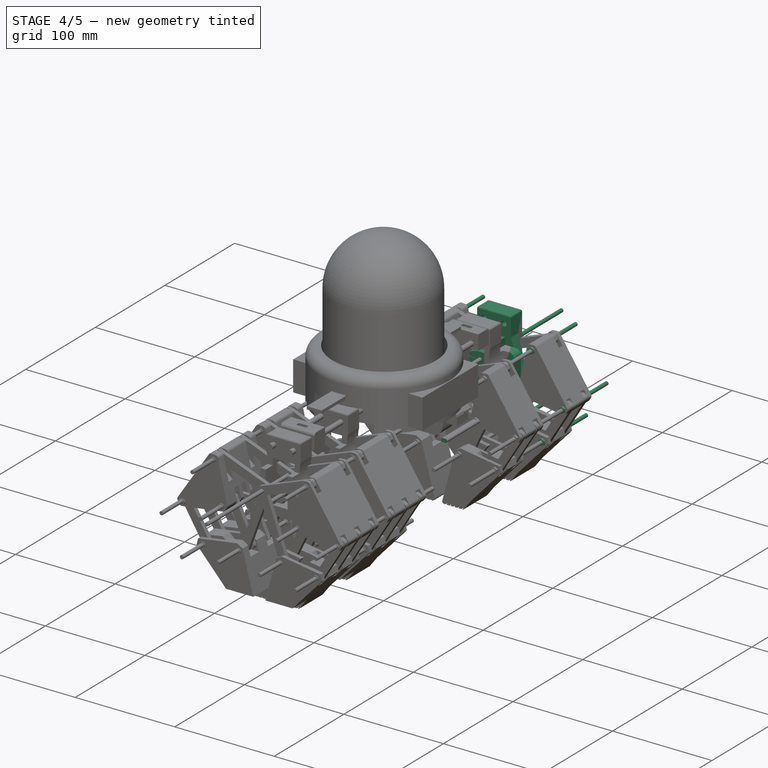
[diagram: stage 4 of 5 — iso view after this stage's code; geometry added in this stage tinted green]
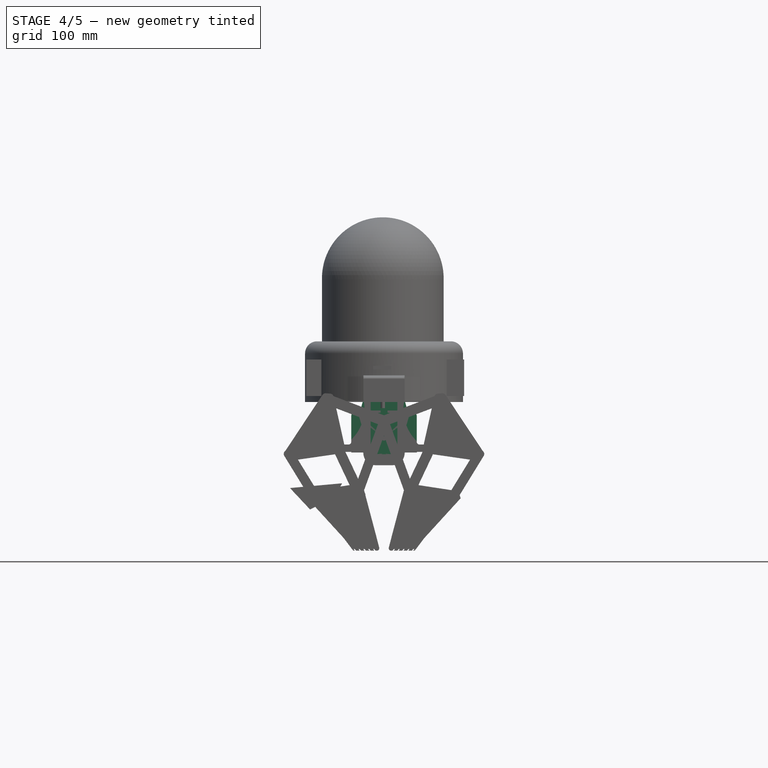
[diagram: stage 4 of 5 — front view after this stage's code; geometry added in this stage tinted green]
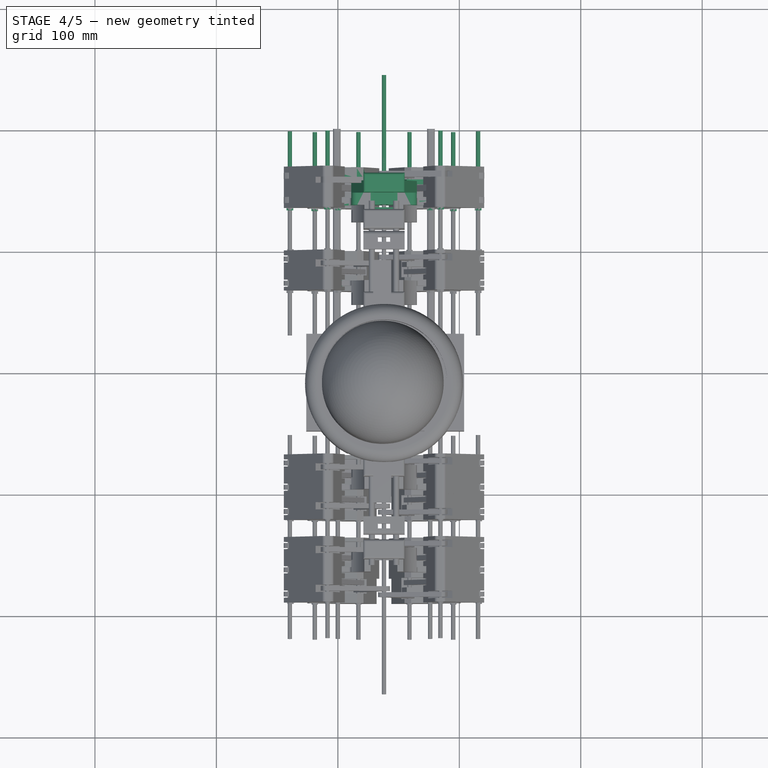
[diagram: stage 4 of 5 — top view after this stage's code; geometry added in this stage tinted green]
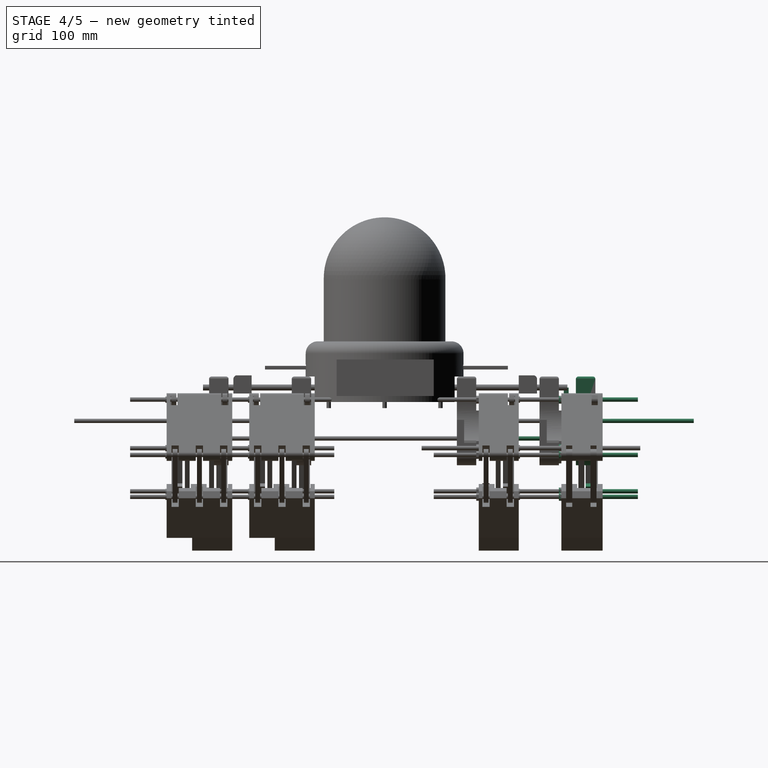
[diagram: stage 4 of 5 — right view after this stage's code; geometry added in this stage tinted green]
FEATURE [Sketcher::SketchObject] Sketch084
  Placement = pos=(-15,0,-10) rot=(0.913318,-0.287968,0.287968;1.66134rad)
  sketch-geometry (6):
    g0: LineSegment StartX=-26.1846 StartY=-19.8249 StartZ=0 EndX=-21.5367 EndY=-15.9796 EndZ=0
    g1: LineSegment StartX=-21.5367 StartY=-15.9796 StartZ=0 EndX=13.9632 EndY=-33.5618 EndZ=0
    g2: LineSegment StartX=13.9632 StartY=-33.5618 StartZ=0 EndX=16.4973 EndY=-39.3555 EndZ=0
    g3: LineSegment StartX=16.4973 StartY=-39.3555 StartZ=0 EndX=1.91251 EndY=-79.158 EndZ=0
    g4: LineSegment StartX=1.91251 StartY=-79.158 StartZ=0 EndX=-20.507 EndY=-63.5274 EndZ=0
    g5: LineSegment StartX=-20.507 StartY=-63.5274 StartZ=0 EndX=-26.1846 EndY=-19.8249 EndZ=0
  constraints (6):
    c: Coincident(g0,g1)
    c: Coincident(g1,g2)
    c: Coincident(g2,g3)
    c: Coincident(g3,g4)
    c: Coincident(g4,g5)
    c: Coincident(g5,g0)
FEATURE [Sketcher::SketchObject] Sketch085
  Placement = pos=(0,0,0) rot=(0.926703,-0.265728,0.265728;1.64685rad)
  sketch-geometry (6):
    g0: LineSegment StartX=-40.7654 StartY=19.725 StartZ=0 EndX=-40.7654 EndY=12.9153 EndZ=0
    g1: LineSegment StartX=-40.7654 StartY=12.9153 StartZ=0 EndX=-0.0823442 EndY=-5.03519 EndZ=0
    g2: LineSegment StartX=-0.0823442 StartY=-5.03519 StartZ=0 EndX=5.26188 EndY=-2.60545 EndZ=0
    g3: LineSegment StartX=5.26188 StartY=-2.60545 StartZ=0 EndX=20.3177 EndY=40.0856 EndZ=0
    g4: LineSegment StartX=20.3177 StartY=40.0856 StartZ=0 EndX=14.0989 EndY=44.6607 EndZ=0
    g5: LineSegment StartX=14.0989 StartY=44.6607 StartZ=0 EndX=-40.7654 EndY=19.725 EndZ=0
  constraints (7):
    c: Vertical(g0)
    c: Coincident(g0,g1)
    c: Coincident(g1,g2)
    c: Coincident(g2,g3)
    c: Coincident(g3,g4)
    c: Coincident(g4,g5)
    c: Coincident(g5,g0)
FEATURE [PartDesign::Pad] Pad080
  Length = 33
  Length2 = 100
  Placement = pos=(0,0,0) rot=(0.926703,-0.265728,0.265728;1.64685rad)
  Sketch = -> Sketch085
  Type = 0
FEATURE [PartDesign::Pad] Pad081
  Length = 33
  Length2 = 100
  Placement = pos=(-15,0,-10) rot=(0.913318,-0.287968,0.287968;1.66134rad)
  Sketch = -> Sketch084
  Type = 0
FEATURE [Part::Fillet] Fillet033
  Base = -> Pad080
  Edges = 2 edges r=3: [Edge11,Edge14]
FEATURE [Part::Fillet] Fillet034
  Base = -> Fillet033
  Edges = 4 edges r=3: [Edge3,Edge14,Edge22,Edge24]
FEATURE [Sketcher::SketchObject] Sketch086
  Placement = pos=(0,0,0) rot=(1,0,0;1.5708rad)
  sketch-geometry (24):
    g0: LineSegment StartX=31.9221 StartY=-73.7642 StartZ=0 EndX=34.7157 EndY=-84.3474 EndZ=0
    g1: LineSegment StartX=34.7157 StartY=-84.3474 StartZ=0 EndX=31.0042 EndY=-84.3474 EndZ=0
    g2: LineSegment StartX=31.0042 StartY=-84.3474 StartZ=0 EndX=29.9949 EndY=-83.0102 EndZ=0
    g3: LineSegment StartX=29.9949 StartY=-83.0102 StartZ=0 EndX=29.0048 EndY=-82.9974 EndZ=0
    g4: LineSegment StartX=29.0048 StartY=-82.9974 StartZ=0 EndX=29.9744 EndY=-84.3565 EndZ=0
    g5: LineSegment StartX=29.9744 StartY=-84.3565 StartZ=0 EndX=27.0013 EndY=-84.3565 EndZ=0
    g6: LineSegment StartX=27.0013 StartY=-84.3565 StartZ=0 EndX=25.9942 EndY=-83.0138 EndZ=0
    g7: LineSegment StartX=25.9942 StartY=-83.0138 StartZ=0 EndX=24.9776 EndY=-83.0138 EndZ=0
    g8: LineSegment StartX=24.9776 StartY=-83.0138 StartZ=0 EndX=26.0038 EndY=-84.3756 EndZ=0
    g9: LineSegment StartX=26.0038 StartY=-84.3756 StartZ=0 EndX=23.0075 EndY=-84.3756 EndZ=0
    g10: LineSegment StartX=23.0075 StartY=-84.3756 StartZ=0 EndX=22.0197 EndY=-83.0236 EndZ=0
    g11: LineSegment StartX=22.0197 StartY=-83.0236 StartZ=0 EndX=20.9743 EndY=-83.0236 EndZ=0
    g12: LineSegment StartX=20.9743 StartY=-83.0236 StartZ=0 EndX=22.0005 EndY=-84.3663 EndZ=0
    g13: LineSegment StartX=22.0005 StartY=-84.3663 StartZ=0 EndX=19.0178 EndY=-84.3663 EndZ=0
    g14: LineSegment StartX=19.0178 StartY=-84.3663 StartZ=0 EndX=17.9916 EndY=-83.0045 EndZ=0
    g15: LineSegment StartX=17.9916 StartY=-83.0045 StartZ=0 EndX=16.9846 EndY=-83.0045 EndZ=0
    g16: LineSegment StartX=16.9846 StartY=-83.0045 StartZ=0 EndX=18.0012 EndY=-84.3663 EndZ=0
    g17: LineSegment StartX=18.0012 StartY=-84.3663 StartZ=0 EndX=15.0322 EndY=-84.3663 EndZ=0
    g18: LineSegment StartX=15.0322 StartY=-84.3663 StartZ=0 EndX=14.0131 EndY=-83.0204 EndZ=0
    g19: LineSegment StartX=14.0131 StartY=-83.0204 StartZ=0 EndX=12.9823 EndY=-83.0204 EndZ=0
    g20: LineSegment StartX=12.9823 StartY=-83.0204 StartZ=0 EndX=14.0014 EndY=-84.3792 EndZ=0
    g21: LineSegment StartX=14.0014 StartY=-84.3792 StartZ=0 EndX=12.6817 EndY=-84.3792 EndZ=0
    g22: LineSegment StartX=12.6817 StartY=-84.3792 StartZ=0 EndX=4.6509 EndY=-73.7642 EndZ=0
    g23: LineSegment StartX=4.6509 StartY=-73.7642 StartZ=0 EndX=31.9221 EndY=-73.7642 EndZ=0
  constraints (35):
    c: Coincident(g0,g1)
    c: Horizontal(g1)
    c: Coincident(g1,g2)
    c: Coincident(g2,g3)
    c: Coincident(g3,g4)
    c: Coincident(g4,g5)
    c: Horizontal(g5)
    c: Coincident(g5,g6)
    c: Coincident(g6,g7)
    c: Horizontal(g7)
    c: Coincident(g7,g8)
    c: Coincident(g8,g9)
    c: Horizontal(g9)
    c: Coincident(g9,g10)
    c: Coincident(g10,g11)
    c: Horizontal(g11)
    c: Coincident(g11,g12)
    c: Coincident(g12,g13)
    c: Horizontal(g13)
    c: Coincident(g13,g14)
    c: Coincident(g14,g15)
    c: Horizontal(g15)
    c: Coincident(g15,g16)
    c: Coincident(g16,g17)
    c: Horizontal(g17)
    c: Coincident(g17,g18)
    c: Coincident(g18,g19)
    c: Horizontal(g19)
    c: Coincident(g19,g20)
    c: Coincident(g20,g21)
    c: Horizontal(g21)
    c: Coincident(g21,g22)
    c: Coincident(g22,g23)
    c: Coincident(g23,g0)
    c: Horizontal(g23)
FEATURE [PartDesign::Pad] Pad082
  Length = 33
  Length2 = 100
  Placement = pos=(0,0,0) rot=(1,0,0;1.5708rad)
  Sketch = -> Sketch086
  Type = 0
FEATURE [Sketcher::SketchObject] Sketch087
  Placement = pos=(-4,-7,0) rot=(1,0,0;1.5708rad)
  sketch-geometry (8):
    g0: LineSegment StartX=12.9217 StartY=-76.0433 StartZ=0 EndX=12.9217 EndY=-72.6813 EndZ=0
    g1: LineSegment StartX=12.9217 StartY=-72.6813 StartZ=0 EndX=10.907 EndY=-71.0645 EndZ=0
    g2: LineSegment StartX=10.907 StartY=-71.0645 StartZ=0 EndX=12.9496 EndY=-67.9874 EndZ=0
    g3: LineSegment StartX=12.9496 StartY=-67.9874 StartZ=0 EndX=17.8943 EndY=-67.9874 EndZ=0
    g4: LineSegment StartX=17.8943 StartY=-67.9874 StartZ=0 EndX=19.9533 EndY=-71.0124 EndZ=0
    g5: LineSegment StartX=19.9533 StartY=-71.0124 StartZ=0 EndX=17.9933 EndY=-72.6487 EndZ=0
    g6: LineSegment StartX=17.9933 StartY=-72.6487 StartZ=0 EndX=17.9811 EndY=-76.0433 EndZ=0
    g7: LineSegment StartX=17.9811 StartY=-76.0433 StartZ=0 EndX=12.9217 EndY=-76.0433 EndZ=0
  constraints (11):
    c: Vertical(g0)
    c: Coincident(g0,g1)
    c: Coincident(g1,g2)
    c: Coincident(g2,g3)
    c: Horizontal(g3)
    c: Coincident(g3,g4)
    c: Coincident(g4,g5)
    c: Coincident(g6,g7)
    c: Coincident(g7,g0)
    c: Horizontal(g7)
    c: Coincident(g5,g6)
FEATURE [PartDesign::Pad] Pad083
  Length = 20
  Length2 = 100
  Placement = pos=(-4,-7,0) rot=(1,0,0;1.5708rad)
  Sketch = -> Sketch087
  Type = 0
FEATURE [Part::MultiFuse] Fusion022
  Shapes = -> [Pad083,Pad082]
FEATURE [Sketcher::SketchObject] Sketch088
  Placement = pos=(10,-7,0) rot=(1,0,0;1.5708rad)
  sketch-geometry (8):
    g0: LineSegment StartX=12.9217 StartY=-76.0433 StartZ=0 EndX=12.9217 EndY=-72.6813 EndZ=0
    g1: LineSegment StartX=12.9217 StartY=-72.6813 StartZ=0 EndX=10.907 EndY=-71.0645 EndZ=0
    g2: LineSegment StartX=10.907 StartY=-71.0645 StartZ=0 EndX=12.9496 EndY=-67.9874 EndZ=0
    g3: LineSegment StartX=12.9496 StartY=-67.9874 StartZ=0 EndX=17.8943 EndY=-67.9874 EndZ=0
    g4: LineSegment StartX=17.8943 StartY=-67.9874 StartZ=0 EndX=19.9533 EndY=-71.0124 EndZ=0
    g5: LineSegment StartX=19.9533 StartY=-71.0124 StartZ=0 EndX=17.9933 EndY=-72.6487 EndZ=0
    g6: LineSegment StartX=17.9933 StartY=-72.6487 StartZ=0 EndX=17.9811 EndY=-76.0433 EndZ=0
    g7: LineSegment StartX=17.9811 StartY=-76.0433 StartZ=0 EndX=12.9217 EndY=-76.0433 EndZ=0
  constraints (11):
    c: Vertical(g0)
    c: Coincident(g0,g1)
    c: Coincident(g1,g2)
    c: Coincident(g2,g3)
    c: Horizontal(g3)
    c: Coincident(g3,g4)
    c: Coincident(g4,g5)
    c: Coincident(g6,g7)
    c: Coincident(g7,g0)
    c: Horizontal(g7)
    c: Coincident(g5,g6)
FEATURE [PartDesign::Pad] Pad084
  Length = 20
  Length2 = 100
  Placement = pos=(10,-7,0) rot=(1,0,0;1.5708rad)
  Sketch = -> Sketch088
  Type = 0
FEATURE [Part::MultiFuse] Fusion023
  Shapes = -> [Fusion022,Pad084]
FEATURE [Part::Cut] Cut025
  Base = -> Pad081
  Tool = -> Fusion023
FEATURE [Sketcher::SketchObject] Sketch089
  Placement = pos=(0,-8,0) rot=(1,0,0;1.5708rad)
  sketch-geometry (4):
    g0: LineSegment StartX=-14.595 StartY=49.4268 StartZ=0 EndX=-21.1147 EndY=37.734 EndZ=0
    g1: LineSegment StartX=-21.1147 StartY=37.734 StartZ=0 EndX=4.39696 EndY=17.3955 EndZ=0
    g2: LineSegment StartX=4.39696 StartY=17.3955 StartZ=0 EndX=4.39696 EndY=50.9858 EndZ=0
    g3: LineSegment StartX=4.39696 StartY=50.9858 StartZ=0 EndX=-14.595 EndY=49.4268 EndZ=0
  constraints (5):
    c: Coincident(g0,g1)
    c: Coincident(g1,g2)
    c: Vertical(g2)
    c: Coincident(g2,g3)
    c: Coincident(g3,g0)
FEATURE [PartDesign::Pad] Pad085
  Length = 6
  Length2 = 100
  Placement = pos=(0,-8,0) rot=(1,0,0;1.5708rad)
  Sketch = -> Sketch089
  Type = 0
FEATURE [Sketcher::SketchObject] Sketch090
  Placement = pos=(0,-4,0) rot=(1,0,0;1.5708rad)
  sketch-geometry (3):
    g0: LineSegment StartX=-44.7162 StartY=4.03934 StartZ=0 EndX=-16.0865 EndY=-8.00782 EndZ=0
    g1: LineSegment StartX=-16.0865 StartY=-8.00782 StartZ=0 EndX=-47.1257 EndY=-16.7243 EndZ=0
    g2: LineSegment StartX=-47.1257 StartY=-16.7243 StartZ=0 EndX=-44.7162 EndY=4.03934 EndZ=0
  constraints (3):
    c: Coincident(g0,g1)
    c: Coincident(g1,g2)
    c: Coincident(g2,g0)
FEATURE [PartDesign::Pad] Pad086
  Length = 6
  Length2 = 100
  Placement = pos=(0,-4,0) rot=(1,0,0;1.5708rad)
  Sketch = -> Sketch090
  Type = 0
FEATURE [Sketcher::SketchObject] Sketch091
  Placement = pos=(0,-24,0) rot=(1,0,0;1.5708rad)
  sketch-geometry (3):
    g0: LineSegment StartX=-44.7162 StartY=4.03934 StartZ=0 EndX=-16.0865 EndY=-8.00782 EndZ=0
    g1: LineSegment StartX=-16.0865 StartY=-8.00782 StartZ=0 EndX=-47.1257 EndY=-16.7243 EndZ=0
    g2: LineSegment StartX=-47.1257 StartY=-16.7243 StartZ=0 EndX=-44.7162 EndY=4.03934 EndZ=0
  constraints (3):
    c: Coincident(g0,g1)
    c: Coincident(g1,g2)
    c: Coincident(g2,g0)
FEATURE [PartDesign::Pad] Pad087
  Length = 6
  Length2 = 100
  Placement = pos=(0,-24,0) rot=(1,0,0;1.5708rad)
  Sketch = -> Sketch091
  Type = 0
FEATURE [Sketcher::SketchObject] Sketch092
  Placement = pos=(0,-14,0) rot=(1,0,0;1.5708rad)
  sketch-geometry (5):
    g0: LineSegment StartX=5.3678 StartY=13.6808 StartZ=0 EndX=-7.45792 EndY=6.84038 EndZ=0
    g1: LineSegment StartX=-7.45792 StartY=6.84038 StartZ=0 EndX=-11.7332 EndY=-9.12051 EndZ=0
    g2: LineSegment StartX=-11.7332 StartY=-9.12051 StartZ=0 EndX=13.2532 EndY=-11.5906 EndZ=0
    g3: LineSegment StartX=13.2532 StartY=-11.5906 StartZ=0 EndX=11.4481 EndY=11.6857 EndZ=0
    g4: LineSegment StartX=11.4481 StartY=11.6857 StartZ=0 EndX=5.3678 EndY=13.6808 EndZ=0
  constraints (5):
    c: Coincident(g0,g1)
    c: Coincident(g1,g2)
    c: Coincident(g2,g3)
    c: Coincident(g3,g4)
    c: Coincident(g4,g0)
FEATURE [PartDesign::Pad] Pad088
  Length = 6
  Length2 = 100
  Placement = pos=(0,-14,0) rot=(1,0,0;1.5708rad)
  Sketch = -> Sketch092
  Type = 0
FEATURE [Sketcher::SketchObject] Sketch093
  Placement = pos=(0,-24,0) rot=(1,0,0;1.5708rad)
  sketch-geometry (5):
    g0: LineSegment StartX=5.3678 StartY=13.6808 StartZ=0 EndX=-7.45792 EndY=6.84038 EndZ=0
    g1: LineSegment StartX=-7.45792 StartY=6.84038 StartZ=0 EndX=-11.7332 EndY=-9.12051 EndZ=0
    g2: LineSegment StartX=-11.7332 StartY=-9.12051 StartZ=0 EndX=13.2532 EndY=-11.5906 EndZ=0
    g3: LineSegment StartX=13.2532 StartY=-11.5906 StartZ=0 EndX=11.4481 EndY=11.6857 EndZ=0
    g4: LineSegment StartX=11.4481 StartY=11.6857 StartZ=0 EndX=5.3678 EndY=13.6808 EndZ=0
  constraints (5):
    c: Coincident(g0,g1)
    c: Coincident(g1,g2)
    c: Coincident(g2,g3)
    c: Coincident(g3,g4)
    c: Coincident(g4,g0)
FEATURE [PartDesign::Pad] Pad089
  Length = 6
  Length2 = 100
  Placement = pos=(0,-24,0) rot=(1,0,0;1.5708rad)
  Sketch = -> Sketch093
  Type = 0
FEATURE [Part::Cut] Cut026
  Base = -> Fillet034
  Tool = -> Pad089
FEATURE [Part::Cut] Cut027
  Base = -> Cut026
  Tool = -> Pad088
FEATURE [Part::Cut] Cut028
  Base = -> Cut027
  Tool = -> Pad087
FEATURE [Part::Cut] Cut029
  Base = -> Cut028
  Tool = -> Pad086
FEATURE [Sketcher::SketchObject] Sketch095
  Placement = pos=(0,-24,0) rot=(1,0,0;1.5708rad)
  sketch-geometry (4):
    g0: LineSegment StartX=-22.8766 StartY=-50.4589 StartZ=0 EndX=-2.79575 EndY=-40.4184 EndZ=0
    g1: LineSegment StartX=-2.79575 StartY=-40.4184 StartZ=0 EndX=3.5228 EndY=-28.9065 EndZ=0
    g2: LineSegment StartX=3.5228 StartY=-28.9065 StartZ=0 EndX=-39.4087 EndY=-32.8015 EndZ=0
    g3: LineSegment StartX=-39.4087 StartY=-32.8015 StartZ=0 EndX=-22.8766 EndY=-50.4589 EndZ=0
  constraints (4):
    c: Coincident(g0,g1)
    c: Coincident(g1,g2)
    c: Coincident(g2,g3)
    c: Coincident(g3,g0)
FEATURE [PartDesign::Pad] Pad091
  Length = 6
  Length2 = 100
  Placement = pos=(0,-24,0) rot=(1,0,0;1.5708rad)
  Sketch = -> Sketch095
  Type = 0
FEATURE [Sketcher::SketchObject] Sketch096
  Placement = pos=(0,-3.5,0) rot=(1,0,0;1.5708rad)
  sketch-geometry (4):
    g0: LineSegment StartX=26.8543 StartY=-42.5089 StartZ=0 EndX=4.22651 EndY=-42.5089 EndZ=0
    g1: LineSegment StartX=4.22651 StartY=-42.5089 StartZ=0 EndX=-12.0771 EndY=-26.2633 EndZ=0
    g2: LineSegment StartX=-12.0771 StartY=-26.2633 StartZ=0 EndX=32.6562 EndY=-19.1269 EndZ=0
    g3: LineSegment StartX=32.6562 StartY=-19.1269 StartZ=0 EndX=26.8543 EndY=-42.5089 EndZ=0
  constraints (5):
    c: Horizontal(g0)
    c: Coincident(g0,g1)
    c: Coincident(g1,g2)
    c: Coincident(g2,g3)
    c: Coincident(g3,g0)
FEATURE [PartDesign::Pad] Pad092
  Length = 18
  Length2 = 100
  Placement = pos=(0,-3.5,0) rot=(1,0,0;1.5708rad)
  Sketch = -> Sketch096
  Type = 0
FEATURE [Part::Cut] Cut030
  Base = -> Cut025
  Tool = -> Pad092
FEATURE [Part::Cut] Cut033
  Base = -> Cut029
  Tool = -> Pad085
FEATURE [Part::Cylinder] Cylinder040  label="Cilindro040"
  Angle = 360
  Height = 4
  Placement = pos=(-39,1,-6) rot=(1,0,0;1.5708rad)
  Radius = 2.6
FEATURE [Part::Cylinder] Cylinder041  label="Cilindro041"
  Angle = 360
  Height = 4
  Placement = pos=(-8.5,1,40) rot=(1,0,0;1.5708rad)
  Radius = 2.6
FEATURE [Part::Cylinder] Cylinder042  label="Cilindro042"
  Angle = 360
  Height = 4
  Placement = pos=(-19,1,-40) rot=(1,0,0;1.5708rad)
  Radius = 2.6
FEATURE [Part::Cylinder] Cylinder043  label="Cilindro043"
  Angle = 360
  Height = 4
  Placement = pos=(17,1,-36) rot=(1,0,0;1.5708rad)
  Radius = 2.6
FEATURE [Part::Cylinder] Cylinder044  label="Cilindro044"
  Angle = 360
  Height = 4
  Placement = pos=(84.5,1,40) rot=(1,0,0;1.5708rad)
  Radius = 2.6
FEATURE [Part::Cylinder] Cylinder045  label="Cilindro045"
  Angle = 360
  Height = 4
  Placement = pos=(116,1,-6) rot=(1,0,0;1.5708rad)
  Radius = 2.6
FEATURE [Part::Cylinder] Cylinder046  label="Cilindro046"
  Angle = 360
  Height = 4
  Placement = pos=(59,1,-36) rot=(1,0,0;1.5708rad)
  Radius = 2.6
FEATURE [Part::Cylinder] Cylinder047  label="Cilindro047"
  Angle = 360
  Height = 4
  Placement = pos=(95,1,-40) rot=(1,0,0;1.5708rad)
  Radius = 2.6
FEATURE [Part::Cylinder] Cylinder048  label="Cilindro048"
  Angle = 360
  Height = 4
  Placement = pos=(76,1,0) rot=(1,0,0;1.5708rad)
  Radius = 2.6
FEATURE [Sketcher::SketchObject] Sketch097
  Placement = pos=(0,-31,0) rot=(1,0,0;1.5708rad)
  sketch-geometry (7):
    g0: LineSegment StartX=-0.014307 StartY=-3.24781 StartZ=0 EndX=2.7612 EndY=-1.64537 EndZ=0
    g1: LineSegment StartX=2.7612 StartY=-1.64537 StartZ=0 EndX=2.7612 EndY=1.55952 EndZ=0
    g2: LineSegment StartX=2.7612 StartY=1.55952 StartZ=0 EndX=-0.014307 EndY=3.16196 EndZ=0
    g3: LineSegment StartX=-0.014307 StartY=3.16196 StartZ=0 EndX=-2.78982 EndY=1.55952 EndZ=0
    g4: LineSegment StartX=-2.78982 StartY=1.55952 StartZ=0 EndX=-2.78982 EndY=-1.64537 EndZ=0
    g5: LineSegment StartX=-2.78982 StartY=-1.64537 StartZ=0 EndX=-0.014307 EndY=-3.24781 EndZ=0
    g6: Circle [constr] CenterX=-0.014307 CenterY=-0.042923 CenterZ=0 NormalX=0 NormalY=0 NormalZ=1 Radius=3.20488
  constraints (15):
    c: Coincident(g0,g1)
    c: Coincident(g1,g2)
    c: Coincident(g2,g3)
    c: Coincident(g3,g4)
    c: Coincident(g4,g5)
    c: Coincident(g5,g0)
    c: Equal(g0, g1-g5) x5
    c: PointOnObject(g0,g6)
    c: PointOnObject(g1,g6)
    c: PointOnObject(g2,g6)
    c: PointOnObject(g3,g6)
    c: PointOnObject(g4,g6)
    c: PointOnObject(g5,g6)
    c: PointOnObject(g3,g-2)
    c: Vertical(g4)
FEATURE [PartDesign::Pad] Pad093
  Length = 4
  Length2 = 100
  Placement = pos=(0,-31,0) rot=(1,0,0;1.5708rad)
  Sketch = -> Sketch097
  Type = 0
FEATURE [Sketcher::SketchObject] Sketch098
  Placement = pos=(-39.5,-31,-5.5) rot=(1,0,0;1.5708rad)
  sketch-geometry (7):
    g0: LineSegment StartX=-0.014307 StartY=-3.24781 StartZ=0 EndX=2.7612 EndY=-1.64537 EndZ=0
    g1: LineSegment StartX=2.7612 StartY=-1.64537 StartZ=0 EndX=2.7612 EndY=1.55952 EndZ=0
    g2: LineSegment StartX=2.7612 StartY=1.55952 StartZ=0 EndX=-0.014307 EndY=3.16196 EndZ=0
    g3: LineSegment StartX=-0.014307 StartY=3.16196 StartZ=0 EndX=-2.78982 EndY=1.55952 EndZ=0
    g4: LineSegment StartX=-2.78982 StartY=1.55952 StartZ=0 EndX=-2.78982 EndY=-1.64537 EndZ=0
    g5: LineSegment StartX=-2.78982 StartY=-1.64537 StartZ=0 EndX=-0.014307 EndY=-3.24781 EndZ=0
    g6: Circle [constr] CenterX=-0.014307 CenterY=-0.042923 CenterZ=0 NormalX=0 NormalY=0 NormalZ=1 Radius=3.20488
  constraints (15):
    c: Coincident(g0,g1)
    c: Coincident(g1,g2)
    c: Coincident(g2,g3)
    c: Coincident(g3,g4)
    c: Coincident(g4,g5)
    c: Coincident(g5,g0)
    c: Equal(g0, g1-g5) x5
    c: PointOnObject(g0,g6)
    c: PointOnObject(g1,g6)
    c: PointOnObject(g2,g6)
    c: PointOnObject(g3,g6)
    c: PointOnObject(g4,g6)
    c: PointOnObject(g5,g6)
    c: PointOnObject(g3,g-2)
    c: Vertical(g4)
FEATURE [PartDesign::Pad] Pad094
  Length = 4
  Length2 = 100
  Placement = pos=(-39.5,-31,-5.5) rot=(1,0,0;1.5708rad)
  Sketch = -> Sketch098
  Type = 0
FEATURE [Sketcher::SketchObject] Sketch099
  Placement = pos=(-19,-31,-40) rot=(1,0,0;1.5708rad)
  sketch-geometry (7):
    g0: LineSegment StartX=-0.014307 StartY=-3.24781 StartZ=0 EndX=2.7612 EndY=-1.64537 EndZ=0
    g1: LineSegment StartX=2.7612 StartY=-1.64537 StartZ=0 EndX=2.7612 EndY=1.55952 EndZ=0
    g2: LineSegment StartX=2.7612 StartY=1.55952 StartZ=0 EndX=-0.014307 EndY=3.16196 EndZ=0
    g3: LineSegment StartX=-0.014307 StartY=3.16196 StartZ=0 EndX=-2.78982 EndY=1.55952 EndZ=0
    g4: LineSegment StartX=-2.78982 StartY=1.55952 StartZ=0 EndX=-2.78982 EndY=-1.64537 EndZ=0
    g5: LineSegment StartX=-2.78982 StartY=-1.64537 StartZ=0 EndX=-0.014307 EndY=-3.24781 EndZ=0
    g6: Circle [constr] CenterX=-0.014307 CenterY=-0.042923 CenterZ=0 NormalX=0 NormalY=0 NormalZ=1 Radius=3.20488
  constraints (15):
    c: Coincident(g0,g1)
    c: Coincident(g1,g2)
    c: Coincident(g2,g3)
    c: Coincident(g3,g4)
    c: Coincident(g4,g5)
    c: Coincident(g5,g0)
    c: Equal(g0, g1-g5) x5
    c: PointOnObject(g0,g6)
    c: PointOnObject(g1,g6)
    c: PointOnObject(g2,g6)
    c: PointOnObject(g3,g6)
    c: PointOnObject(g4,g6)
    c: PointOnObject(g5,g6)
    c: PointOnObject(g3,g-2)
    c: Vertical(g4)
FEATURE [PartDesign::Pad] Pad095
  Length = 4
  Length2 = 100
  Placement = pos=(-19,-31,-40) rot=(1,0,0;1.5708rad)
  Sketch = -> Sketch099
  Type = 0
FEATURE [Sketcher::SketchObject] Sketch100
  Placement = pos=(17,-31,-35.5) rot=(1,0,0;1.5708rad)
  sketch-geometry (7):
    g0: LineSegment StartX=-0.014307 StartY=-3.24781 StartZ=0 EndX=2.7612 EndY=-1.64537 EndZ=0
    g1: LineSegment StartX=2.7612 StartY=-1.64537 StartZ=0 EndX=2.7612 EndY=1.55952 EndZ=0
    g2: LineSegment StartX=2.7612 StartY=1.55952 StartZ=0 EndX=-0.014307 EndY=3.16196 EndZ=0
    g3: LineSegment StartX=-0.014307 StartY=3.16196 StartZ=0 EndX=-2.78982 EndY=1.55952 EndZ=0
    g4: LineSegment StartX=-2.78982 StartY=1.55952 StartZ=0 EndX=-2.78982 EndY=-1.64537 EndZ=0
    g5: LineSegment StartX=-2.78982 StartY=-1.64537 StartZ=0 EndX=-0.014307 EndY=-3.24781 EndZ=0
    g6: Circle [constr] CenterX=-0.014307 CenterY=-0.042923 CenterZ=0 NormalX=0 NormalY=0 NormalZ=1 Radius=3.20488
  constraints (15):
    c: Coincident(g0,g1)
    c: Coincident(g1,g2)
    c: Coincident(g2,g3)
    c: Coincident(g3,g4)
    c: Coincident(g4,g5)
    c: Coincident(g5,g0)
    c: Equal(g0, g1-g5) x5
    c: PointOnObject(g0,g6)
    c: PointOnObject(g1,g6)
    c: PointOnObject(g2,g6)
    c: PointOnObject(g3,g6)
    c: PointOnObject(g4,g6)
    c: PointOnObject(g5,g6)
    c: PointOnObject(g3,g-2)
    c: Vertical(g4)
FEATURE [PartDesign::Pad] Pad096
  Length = 4
  Length2 = 100
  Placement = pos=(17,-31,-35.5) rot=(1,0,0;1.5708rad)
  Sketch = -> Sketch100
  Type = 0
FEATURE [Sketcher::SketchObject] Sketch101
  Placement = pos=(-8.5,-31,40) rot=(1,0,0;1.5708rad)
  sketch-geometry (7):
    g0: LineSegment StartX=-0.014307 StartY=-3.24781 StartZ=0 EndX=2.7612 EndY=-1.64537 EndZ=0
    g1: LineSegment StartX=2.7612 StartY=-1.64537 StartZ=0 EndX=2.7612 EndY=1.55952 EndZ=0
    g2: LineSegment StartX=2.7612 StartY=1.55952 StartZ=0 EndX=-0.014307 EndY=3.16196 EndZ=0
    g3: LineSegment StartX=-0.014307 StartY=3.16196 StartZ=0 EndX=-2.78982 EndY=1.55952 EndZ=0
    g4: LineSegment StartX=-2.78982 StartY=1.55952 StartZ=0 EndX=-2.78982 EndY=-1.64537 EndZ=0
    g5: LineSegment StartX=-2.78982 StartY=-1.64537 StartZ=0 EndX=-0.014307 EndY=-3.24781 EndZ=0
    g6: Circle [constr] CenterX=-0.014307 CenterY=-0.042923 CenterZ=0 NormalX=0 NormalY=0 NormalZ=1 Radius=3.20488
  constraints (15):
    c: Coincident(g0,g1)
    c: Coincident(g1,g2)
    c: Coincident(g2,g3)
    c: Coincident(g3,g4)
    c: Coincident(g4,g5)
    c: Coincident(g5,g0)
    c: Equal(g0, g1-g5) x5
    c: PointOnObject(g0,g6)
    c: PointOnObject(g1,g6)
    c: PointOnObject(g2,g6)
    c: PointOnObject(g3,g6)
    c: PointOnObject(g4,g6)
    c: PointOnObject(g5,g6)
    c: PointOnObject(g3,g-2)
    c: Vertical(g4)
FEATURE [PartDesign::Pad] Pad097
  Length = 4
  Length2 = 100
  Placement = pos=(-8.5,-31,40) rot=(1,0,0;1.5708rad)
  Sketch = -> Sketch101
  Type = 0
FEATURE [Sketcher::SketchObject] Sketch102
  Placement = pos=(0,-31,0) rot=(1,0,0;1.5708rad)
  sketch-geometry (7):
    g0: LineSegment StartX=-0.014307 StartY=-3.24781 StartZ=0 EndX=2.7612 EndY=-1.64537 EndZ=0
    g1: LineSegment StartX=2.7612 StartY=-1.64537 StartZ=0 EndX=2.7612 EndY=1.55952 EndZ=0
    g2: LineSegment StartX=2.7612 StartY=1.55952 StartZ=0 EndX=-0.014307 EndY=3.16196 EndZ=0
    g3: LineSegment StartX=-0.014307 StartY=3.16196 StartZ=0 EndX=-2.78982 EndY=1.55952 EndZ=0
    g4: LineSegment StartX=-2.78982 StartY=1.55952 StartZ=0 EndX=-2.78982 EndY=-1.64537 EndZ=0
    g5: LineSegment StartX=-2.78982 StartY=-1.64537 StartZ=0 EndX=-0.014307 EndY=-3.24781 EndZ=0
    g6: Circle [constr] CenterX=-0.014307 CenterY=-0.042923 CenterZ=0 NormalX=0 NormalY=0 NormalZ=1 Radius=3.20488
  constraints (15):
    c: Coincident(g0,g1)
    c: Coincident(g1,g2)
    c: Coincident(g2,g3)
    c: Coincident(g3,g4)
    c: Coincident(g4,g5)
    c: Coincident(g5,g0)
    c: Equal(g0, g1-g5) x5
    c: PointOnObject(g0,g6)
    c: PointOnObject(g1,g6)
    c: PointOnObject(g2,g6)
    c: PointOnObject(g3,g6)
    c: PointOnObject(g4,g6)
    c: PointOnObject(g5,g6)
    c: PointOnObject(g3,g-2)
    c: Vertical(g4)
FEATURE [PartDesign::Pad] Pad098
  Length = 4
  Length2 = 100
  Placement = pos=(0,-31,0) rot=(1,0,0;1.5708rad)
  Sketch = -> Sketch102
  Type = 0
FEATURE [Sketcher::SketchObject] Sketch103
  Placement = pos=(-39.5,-31,-5.5) rot=(1,0,0;1.5708rad)
  sketch-geometry (7):
    g0: LineSegment StartX=-0.014307 StartY=-3.24781 StartZ=0 EndX=2.7612 EndY=-1.64537 EndZ=0
    g1: LineSegment StartX=2.7612 StartY=-1.64537 StartZ=0 EndX=2.7612 EndY=1.55952 EndZ=0
    g2: LineSegment StartX=2.7612 StartY=1.55952 StartZ=0 EndX=-0.014307 EndY=3.16196 EndZ=0
    g3: LineSegment StartX=-0.014307 StartY=3.16196 StartZ=0 EndX=-2.78982 EndY=1.55952 EndZ=0
    g4: LineSegment StartX=-2.78982 StartY=1.55952 StartZ=0 EndX=-2.78982 EndY=-1.64537 EndZ=0
    g5: LineSegment StartX=-2.78982 StartY=-1.64537 StartZ=0 EndX=-0.014307 EndY=-3.24781 EndZ=0
    g6: Circle [constr] CenterX=-0.014307 CenterY=-0.042923 CenterZ=0 NormalX=0 NormalY=0 NormalZ=1 Radius=3.20488
  constraints (15):
    c: Coincident(g0,g1)
    c: Coincident(g1,g2)
    c: Coincident(g2,g3)
    c: Coincident(g3,g4)
    c: Coincident(g4,g5)
    c: Coincident(g5,g0)
    c: Equal(g0, g1-g5) x5
    c: PointOnObject(g0,g6)
    c: PointOnObject(g1,g6)
    c: PointOnObject(g2,g6)
    c: PointOnObject(g3,g6)
    c: PointOnObject(g4,g6)
    c: PointOnObject(g5,g6)
    c: PointOnObject(g3,g-2)
    c: Vertical(g4)
FEATURE [PartDesign::Pad] Pad099
  Length = 4
  Length2 = 100
  Placement = pos=(-39.5,-31,-5.5) rot=(1,0,0;1.5708rad)
  Sketch = -> Sketch103
  Type = 0
FEATURE [Sketcher::SketchObject] Sketch104
  Placement = pos=(-19,-31,-40) rot=(1,0,0;1.5708rad)
  sketch-geometry (7):
    g0: LineSegment StartX=-0.014307 StartY=-3.24781 StartZ=0 EndX=2.7612 EndY=-1.64537 EndZ=0
    g1: LineSegment StartX=2.7612 StartY=-1.64537 StartZ=0 EndX=2.7612 EndY=1.55952 EndZ=0
    g2: LineSegment StartX=2.7612 StartY=1.55952 StartZ=0 EndX=-0.014307 EndY=3.16196 EndZ=0
    g3: LineSegment StartX=-0.014307 StartY=3.16196 StartZ=0 EndX=-2.78982 EndY=1.55952 EndZ=0
    g4: LineSegment StartX=-2.78982 StartY=1.55952 StartZ=0 EndX=-2.78982 EndY=-1.64537 EndZ=0
    g5: LineSegment StartX=-2.78982 StartY=-1.64537 StartZ=0 EndX=-0.014307 EndY=-3.24781 EndZ=0
    g6: Circle [constr] CenterX=-0.014307 CenterY=-0.042923 CenterZ=0 NormalX=0 NormalY=0 NormalZ=1 Radius=3.20488
  constraints (15):
    c: Coincident(g0,g1)
    c: Coincident(g1,g2)
    c: Coincident(g2,g3)
    c: Coincident(g3,g4)
    c: Coincident(g4,g5)
    c: Coincident(g5,g0)
    c: Equal(g0, g1-g5) x5
    c: PointOnObject(g0,g6)
    c: PointOnObject(g1,g6)
    c: PointOnObject(g2,g6)
    c: PointOnObject(g3,g6)
    c: PointOnObject(g4,g6)
    c: PointOnObject(g5,g6)
    c: PointOnObject(g3,g-2)
    c: Vertical(g4)
FEATURE [PartDesign::Pad] Pad100
  Length = 4
  Length2 = 100
  Placement = pos=(-19,-31,-40) rot=(1,0,0;1.5708rad)
  Sketch = -> Sketch104
  Type = 0
FEATURE [Sketcher::SketchObject] Sketch105
  Placement = pos=(17,-31,-35.5) rot=(1,0,0;1.5708rad)
  sketch-geometry (7):
    g0: LineSegment StartX=-0.014307 StartY=-3.24781 StartZ=0 EndX=2.7612 EndY=-1.64537 EndZ=0
    g1: LineSegment StartX=2.7612 StartY=-1.64537 StartZ=0 EndX=2.7612 EndY=1.55952 EndZ=0
    g2: LineSegment StartX=2.7612 StartY=1.55952 StartZ=0 EndX=-0.014307 EndY=3.16196 EndZ=0
    g3: LineSegment StartX=-0.014307 StartY=3.16196 StartZ=0 EndX=-2.78982 EndY=1.55952 EndZ=0
    g4: LineSegment StartX=-2.78982 StartY=1.55952 StartZ=0 EndX=-2.78982 EndY=-1.64537 EndZ=0
    g5: LineSegment StartX=-2.78982 StartY=-1.64537 StartZ=0 EndX=-0.014307 EndY=-3.24781 EndZ=0
    g6: Circle [constr] CenterX=-0.014307 CenterY=-0.042923 CenterZ=0 NormalX=0 NormalY=0 NormalZ=1 Radius=3.20488
  constraints (15):
    c: Coincident(g0,g1)
    c: Coincident(g1,g2)
    c: Coincident(g2,g3)
    c: Coincident(g3,g4)
    c: Coincident(g4,g5)
    c: Coincident(g5,g0)
    c: Equal(g0, g1-g5) x5
    c: PointOnObject(g0,g6)
    c: PointOnObject(g1,g6)
    c: PointOnObject(g2,g6)
    c: PointOnObject(g3,g6)
    c: PointOnObject(g4,g6)
    c: PointOnObject(g5,g6)
    c: PointOnObject(g3,g-2)
    c: Vertical(g4)
FEATURE [PartDesign::Pad] Pad101
  Length = 4
  Length2 = 100
  Placement = pos=(17,-31,-35.5) rot=(1,0,0;1.5708rad)
  Sketch = -> Sketch105
  Type = 0
FEATURE [Sketcher::SketchObject] Sketch106
  Placement = pos=(-8.5,-31,40) rot=(1,0,0;1.5708rad)
  sketch-geometry (7):
    g0: LineSegment StartX=-0.014307 StartY=-3.24781 StartZ=0 EndX=2.7612 EndY=-1.64537 EndZ=0
    g1: LineSegment StartX=2.7612 StartY=-1.64537 StartZ=0 EndX=2.7612 EndY=1.55952 EndZ=0
    g2: LineSegment StartX=2.7612 StartY=1.55952 StartZ=0 EndX=-0.014307 EndY=3.16196 EndZ=0
    g3: LineSegment StartX=-0.014307 StartY=3.16196 StartZ=0 EndX=-2.78982 EndY=1.55952 EndZ=0
    g4: LineSegment StartX=-2.78982 StartY=1.55952 StartZ=0 EndX=-2.78982 EndY=-1.64537 EndZ=0
    g5: LineSegment StartX=-2.78982 StartY=-1.64537 StartZ=0 EndX=-0.014307 EndY=-3.24781 EndZ=0
    g6: Circle [constr] CenterX=-0.014307 CenterY=-0.042923 CenterZ=0 NormalX=0 NormalY=0 NormalZ=1 Radius=3.20488
  constraints (15):
    c: Coincident(g0,g1)
    c: Coincident(g1,g2)
    c: Coincident(g2,g3)
    c: Coincident(g3,g4)
    c: Coincident(g4,g5)
    c: Coincident(g5,g0)
    c: Equal(g0, g1-g5) x5
    c: PointOnObject(g0,g6)
    c: PointOnObject(g1,g6)
    c: PointOnObject(g2,g6)
    c: PointOnObject(g3,g6)
    c: PointOnObject(g4,g6)
    c: PointOnObject(g5,g6)
    c: PointOnObject(g3,g-2)
    c: Vertical(g4)
FEATURE [PartDesign::Pad] Pad102
  Length = 4
  Length2 = 100
  Placement = pos=(-8.5,-31,40) rot=(1,0,0;1.5708rad)
  Sketch = -> Sketch106
  Type = 0
FEATURE [Part::MultiFuse] Fusion024
  Shapes = -> [Pad098,Pad100,Pad099,Pad101,Pad102]
FEATURE [Part::Mirroring] Part__Mirroring033  label="Fusion014 (Mirror #21)001"
  Base = (0,0,0)
  Normal = (1,0,0)
  Placement = pos=(76,0,0) rot=(0,0,1;0rad)
  Source = -> Fusion024
FEATURE [Sketcher::SketchObject] Sketch107
  Placement = pos=(0,-9,0) rot=(1,0,0;1.5708rad)
  sketch-geometry (4):
    g0: LineSegment StartX=52.2521 StartY=-43.9032 StartZ=0 EndX=56.753 EndY=-28.9291 EndZ=0
    g1: LineSegment StartX=56.753 StartY=-28.9291 StartZ=0 EndX=73.7178 EndY=-31.6123 EndZ=0
    g2: LineSegment StartX=73.7178 StartY=-31.6123 StartZ=0 EndX=60.9942 EndY=-48.2309 EndZ=0
    g3: LineSegment StartX=60.9942 StartY=-48.2309 StartZ=0 EndX=52.2521 EndY=-43.9032 EndZ=0
  constraints (4):
    c: Coincident(g0,g1)
    c: Coincident(g1,g2)
    c: Coincident(g2,g3)
    c: Coincident(g3,g0)
FEATURE [PartDesign::Pad] Pad103
  Length = 4
  Length2 = 100
  Placement = pos=(0,-9,0) rot=(1,0,0;1.5708rad)
  Sketch = -> Sketch107
  Type = 0
FEATURE [Sketcher::SketchObject] Sketch108
  Placement = pos=(0,-25,0) rot=(1,0,0;1.5708rad)
  sketch-geometry (13):
    g0: LineSegment StartX=-4.14949 StartY=3.07202 StartZ=0 EndX=31.4361 EndY=3.07202 EndZ=0
    g1: LineSegment StartX=79.8505 StartY=3.07202 StartZ=0 EndX=79.8505 EndY=-3.0271 EndZ=0
    g2: LineSegment StartX=79.8505 StartY=-3.0271 StartZ=0 EndX=-4.14949 EndY=-3.0271 EndZ=0
    g3: LineSegment StartX=-4.14949 StartY=-3.0271 StartZ=0 EndX=-4.14949 EndY=3.07202 EndZ=0
    g4: LineSegment StartX=44.676 StartY=3.07202 StartZ=0 EndX=44.676 EndY=10.5544 EndZ=0
    g5: LineSegment StartX=44.676 StartY=10.5544 StartZ=0 EndX=40.8523 EndY=14.4187 EndZ=0
    g6: LineSegment StartX=35.2636 StartY=14.4187 StartZ=0 EndX=31.4361 EndY=10.5452 EndZ=0
    g7: LineSegment StartX=31.4361 StartY=10.5452 StartZ=0 EndX=31.4361 EndY=3.07202 EndZ=0
    g8: Circle [constr] CenterX=38.058 CenterY=7.82976 CenterZ=0 NormalX=0 NormalY=0 NormalZ=1 Radius=7.157
    g9: LineSegment StartX=44.676 StartY=3.07202 StartZ=0 EndX=79.8505 EndY=3.07202 EndZ=0
    g10: LineSegment StartX=35.2636 StartY=14.4187 StartZ=0 EndX=35.2636 EndY=49.8416 EndZ=0
    g11: LineSegment StartX=35.2636 StartY=49.8416 StartZ=0 EndX=40.8523 EndY=49.8416 EndZ=0
    g12: LineSegment StartX=40.8523 StartY=49.8416 StartZ=0 EndX=40.8523 EndY=14.4187 EndZ=0
  constraints (26):
    c: Coincident(g9,g1)
    c: Coincident(g1,g2)
    c: Coincident(g2,g3)
    c: Coincident(g3,g0)
    c: Horizontal(g0)
    c: Horizontal(g2)
    c: Vertical(g1)
    c: Vertical(g3)
    c: Distance(g2) = 84
    c: Coincident(g4,g5)
    c: Coincident(g6,g7)
    c: PointOnObject(g4,g8)
    c: PointOnObject(g5,g8)
    c: PointOnObject(g6,g8)
    c: PointOnObject(g6,g8)
    c: Tangent(g0,g9)
    c: Coincident(g4,g9)
    c: Coincident(g0,g7)
    c: Vertical(g7)
    c: Vertical(g4)
    c: Vertical(g10)
    c: Coincident(g10,g11)
    c: Coincident(g11,g12)
    c: Coincident(g12,g5)
    c: Vertical(g12)
    c: Horizontal(g11)
FEATURE [PartDesign::Pad] Pad104
  Length = 4
  Length2 = 100
  Placement = pos=(0,-25,0) rot=(1,0,0;1.5708rad)
  Sketch = -> Sketch108
  Type = 0
FEATURE [Part::Fillet] Fillet035
  Base = -> Pad104
  Edges = 4 edges r=3: [Edge2,Edge5,Edge8,Edge11]
FEATURE [Part::Fillet] Fillet036
  Base = -> Fillet035
  Edges = 2 edges r=6: [Edge3,Edge48]
  Placement = pos=(0,66,0) rot=(0,0,1;0rad)
FEATURE [Part::Box] Box004  label="Cubo004"
  Height = 43
  Length = 22
  Placement = pos=(27,-51,-5) rot=(0,0,1;0rad)
  Width = 26
FEATURE [Part::Feature] Part__Feature004  label="Servo-Futaba3003-final002"
  shape: bbox 55.5 x 20 x 41.74 mm, 365 faces (baked)
FEATURE [Part::Feature] Part__Feature005  label="4-arms-horn-final002"
  Placement = pos=(9,0,43) rot=(0,0,1;0rad)
  shape: bbox 38.85 x 38.85 x 6.3 mm, 96 faces (baked)
FEATURE [Part::MultiFuse] Fusion027
  Placement = pos=(38,-60,17) rot=(-0.57735,0.57735,0.57735;2.0944rad)
  Shapes = -> [Part__Feature005,Part__Feature004]
FEATURE [Part::Box] Box005  label="Cubo005"
  Height = 73
  Length = 34
  Placement = pos=(21,-51,-14) rot=(0,0,1;0rad)
  Width = 16
FEATURE [Part::Box] Box006  label="Cubo006"
  Height = 17
  Length = 34
  Placement = pos=(21,-41,-3) rot=(0,0,1;0rad)
  Width = 16
FEATURE [Sketcher::SketchObject] Sketch110
  Placement = pos=(0,-25,0) rot=(1,0,0;1.5708rad)
  sketch-geometry (13):
    g0: LineSegment StartX=-4.14949 StartY=3.07202 StartZ=0 EndX=31.4361 EndY=3.07202 EndZ=0
    g1: LineSegment StartX=79.8505 StartY=3.07202 StartZ=0 EndX=79.8505 EndY=-3.0271 EndZ=0
    g2: LineSegment StartX=79.8505 StartY=-3.0271 StartZ=0 EndX=-4.14949 EndY=-3.0271 EndZ=0
    g3: LineSegment StartX=-4.14949 StartY=-3.0271 StartZ=0 EndX=-4.14949 EndY=3.07202 EndZ=0
    g4: LineSegment StartX=44.676 StartY=3.07202 StartZ=0 EndX=44.676 EndY=10.5544 EndZ=0
    g5: LineSegment StartX=44.676 StartY=10.5544 StartZ=0 EndX=40.8523 EndY=14.4187 EndZ=0
    g6: LineSegment StartX=35.2636 StartY=14.4187 StartZ=0 EndX=31.4361 EndY=10.5452 EndZ=0
    g7: LineSegment StartX=31.4361 StartY=10.5452 StartZ=0 EndX=31.4361 EndY=3.07202 EndZ=0
    g8: Circle [constr] CenterX=38.058 CenterY=7.82976 CenterZ=0 NormalX=0 NormalY=0 NormalZ=1 Radius=7.157
    g9: LineSegment StartX=44.676 StartY=3.07202 StartZ=0 EndX=79.8505 EndY=3.07202 EndZ=0
    g10: LineSegment StartX=35.2636 StartY=14.4187 StartZ=0 EndX=35.2636 EndY=49.8416 EndZ=0
    g11: LineSegment StartX=35.2636 StartY=49.8416 StartZ=0 EndX=40.8523 EndY=49.8416 EndZ=0
    g12: LineSegment StartX=40.8523 StartY=49.8416 StartZ=0 EndX=40.8523 EndY=14.4187 EndZ=0
  constraints (26):
    c: Coincident(g9,g1)
    c: Coincident(g1,g2)
    c: Coincident(g2,g3)
    c: Coincident(g3,g0)
    c: Horizontal(g0)
    c: Horizontal(g2)
    c: Vertical(g1)
    c: Vertical(g3)
    c: Distance(g2) = 84
    c: Coincident(g4,g5)
    c: Coincident(g6,g7)
    c: PointOnObject(g4,g8)
    c: PointOnObject(g5,g8)
    c: PointOnObject(g6,g8)
    c: PointOnObject(g6,g8)
    c: Tangent(g0,g9)
    c: Coincident(g4,g9)
    c: Coincident(g0,g7)
    c: Vertical(g7)
    c: Vertical(g4)
    c: Vertical(g10)
    c: Coincident(g10,g11)
    c: Coincident(g11,g12)
    c: Coincident(g12,g5)
    c: Vertical(g12)
    c: Horizontal(g11)
FEATURE [PartDesign::Pad] Pad106
  Length = 4
  Length2 = 100
  Placement = pos=(0,-25,0) rot=(1,0,0;1.5708rad)
  Sketch = -> Sketch110
  Type = 0
FEATURE [Part::Fillet] Fillet043
  Base = -> Pad106
  Edges = 4 edges r=3: [Edge2,Edge5,Edge8,Edge11]
FEATURE [Part::Fillet] Fillet044
  Base = -> Fillet043
  Edges = 2 edges r=6: [Edge3,Edge48]
FEATURE [Part::MultiFuse] Fusion028
  Shapes = -> [Box005,Box006,Fillet044]
FEATURE [Part::Cut] Cut035
  Base = -> Fusion028
  Tool = -> Fusion027
FEATURE [Sketcher::SketchObject] Sketch111
  Placement = pos=(0,-45,0) rot=(0,0.707107,0.707107;3.14159rad)
  sketch-geometry (6):
    g0: LineSegment StartX=-65.0185 StartY=-3.4975 StartZ=0 EndX=-65.0185 EndY=4.35234 EndZ=0
    g1: LineSegment StartX=-65.0185 StartY=4.35234 StartZ=0 EndX=-54.8604 EndY=39.9097 EndZ=0
    g2: LineSegment StartX=-54.8604 StartY=39.9097 StartZ=0 EndX=-20.9866 EndY=40.0514 EndZ=0
    g3: LineSegment StartX=-20.9866 StartY=40.0514 StartZ=0 EndX=-11.0199 EndY=4.15492 EndZ=0
    g4: LineSegment StartX=-11.0199 StartY=4.15492 StartZ=0 EndX=-11.0199 EndY=-3.4975 EndZ=0
    g5: LineSegment StartX=-11.0199 StartY=-3.4975 StartZ=0 EndX=-65.0185 EndY=-3.4975 EndZ=0
  constraints (9):
    c: Vertical(g0)
    c: Coincident(g0,g1)
    c: Coincident(g1,g2)
    c: Coincident(g2,g3)
    c: Coincident(g3,g4)
    c: Vertical(g4)
    c: Coincident(g4,g5)
    c: Coincident(g5,g0)
    c: Horizontal(g5)
FEATURE [PartDesign::Pad] Pad107
  Length = 10
  Length2 = 100
  Placement = pos=(0,-45,0) rot=(0,0.707107,0.707107;3.14159rad)
  Sketch = -> Sketch111
  Type = 0
FEATURE [Part::Box] Box007  label="Cubo007"
  Height = 34
  Length = 54
  Placement = pos=(11,-35,-3) rot=(0,0,1;0rad)
  Width = 10
FEATURE [Part::Box] Box008  label="Cubo008"
  Height = 43
  Length = 22
  Placement = pos=(27,-66,-5) rot=(0,0,1;0rad)
  Width = 43
FEATURE [Part::MultiFuse] Fusion029
  Shapes = -> [Cut035,Box007,Pad107]
FEATURE [Part::Cut] Cut036
  Base = -> Fusion029
  Tool = -> Box008
FEATURE [Part::Fillet] Fillet045
  Base = -> Cut036
  Edges = 2 edges r=10: [Edge19,Edge46]
FEATURE [Part::Fillet] Fillet046
  Base = -> Fillet045
  Edges = 1 edges r=5: [Edge89]
FEATURE [Part::Fillet] Fillet047
  Base = -> Fillet046
  Edges = 1 edges r=5: [Edge111]
FEATURE [Part::Fillet] Fillet048
  Base = -> Fillet047
  Edges = 1 edges r=2: [Edge169]
FEATURE [Part::Fillet] Fillet049
  Base = -> Fillet048
  Edges = 1 edges r=2: [Edge174]
FEATURE [Part::Fillet] Fillet050
  Base = -> Fillet049
  Edges = 4 edges r=2: [Edge92,Edge104,Edge123,Edge132]
FEATURE [Part::MultiFuse] Fusion030
  Shapes = -> [Box004,Fillet050]
FEATURE [Part::Mirroring] Part__Mirroring035  label="Fusion030 (Mirror #36)"
  Base = (0,0,0)
  Normal = (0,1,0)
  Placement = pos=(0,12,0) rot=(0,0,1;0rad)
  Source = -> Fusion030
FEATURE [Part::Cylinder] Cylinder051  label="Cilindro051"
  Angle = 360
  Height = 100
  Placement = pos=(38,80,22.5) rot=(1,0,0;1.5708rad)
  Radius = 1.8
FEATURE [Part::Cylinder] Cylinder052  label="Cilindro052"
  Angle = 360
  Height = 100
  Placement = pos=(38,94,8) rot=(1,0,0;1.5708rad)
  Radius = 1.8
FEATURE [Part::Cylinder] Cylinder053  label="Cilindro053"
  Angle = 360
  Height = 8
  Placement = pos=(38,35,8.5) rot=(1,0,0;1.5708rad)
  Radius = 21
FEATURE [Part::Cylinder] Cylinder054  label="Cilindro054"
  Angle = 360
  Height = 100
  Placement = pos=(28,-14,50) rot=(1,0,0;1.5708rad)
  Radius = 2.5
FEATURE [Part::Cylinder] Cylinder055  label="Cilindro055"
  Angle = 360
  Height = 100
  Placement = pos=(48,-14,50) rot=(1,0,0;1.5708rad)
  Radius = 2.5
FEATURE [Part::MultiFuse] Fusion032
  Placement = pos=(0,118,0) rot=(0,0,1;0rad)
  Shapes = -> [Cylinder054,Cylinder055]
FEATURE [Part::Cut] Cut038
  Base = -> Part__Mirroring035
  Tool = -> Fusion032
FEATURE [Part::Cylinder] Cylinder056  label="Cilindro056"
  Angle = 360
  Height = 100
  Placement = pos=(38,94,8) rot=(1,0,0;1.5708rad)
  Radius = 2.2
FEATURE [Part::Cut] Cut039
  Base = -> Cut038
  Tool = -> Cylinder052
FEATURE [Part::Cut] Cut040
  Base = -> Cylinder053
  Tool = -> Cylinder056
FEATURE [Part::Cut] Cut041
  Base = -> Cut040
  Tool = -> Cylinder051
FEATURE [Part::Cylinder] Cylinder057  label="Cilindro057"
  Angle = 360
  Height = 10
  Placement = pos=(38,31,8.5) rot=(1,0,0;1.5708rad)
  Radius = 3.5
FEATURE [Part::Cylinder] Cylinder058  label="Cilindro058"
  Angle = 360
  Height = 10
  Placement = pos=(38,41,22.5) rot=(1,0,0;1.5708rad)
  Radius = 3.5
FEATURE [Part::Cut] Cut042
  Base = -> Cut041
  Tool = -> Cylinder057
FEATURE [Part::Cut] Cut043
  Base = -> Cut042
  Tool = -> Cylinder058
FEATURE [Part::Cylinder] Cylinder059  label="Cilindro059"
  Angle = 360
  Height = 48
  Placement = pos=(38,41,-5.5) rot=(1,0,0;1.5708rad)
  Radius = 1.8
FEATURE [Part::Cylinder] Cylinder060  label="Cilindro060"
  Angle = 360
  Height = 10
  Placement = pos=(38,41,-5.5) rot=(1,0,0;1.5708rad)
  Radius = 3.5
FEATURE [Part::Cut] Cut044
  Base = -> Cut043
  Tool = -> Cylinder059
FEATURE [Part::Cut] Cut045
  Base = -> Cut044
  Tool = -> Cylinder060
FEATURE [Part::Cylinder] Cylinder061  label="Cilindro061"
  Angle = 360
  Height = 100
  Placement = pos=(0,30,0) rot=(1,0,0;1.5708rad)
  Radius = 1.8
FEATURE [Part::Cylinder] Cylinder062  label="Cilindro062"
  Angle = 360
  Height = 100
  Placement = pos=(0,30,0) rot=(1,0,0;1.5708rad)
  Radius = 1.8
FEATURE [Part::Mirroring] Part__Mirroring036  label="Cilindro012 (Mirror #7)002"
  Base = (0,0,0)
  Normal = (1,0,0)
  Placement = pos=(76,0,0) rot=(0,0,1;0rad)
  Source = -> Cylinder062
FEATURE [Sketcher::SketchObject] Sketch114
  Placement = pos=(0,100,0) rot=(1,0,0;1.5708rad)
  sketch-geometry (4):
    g0: ArcOfCircle CenterX=0.480275 CenterY=0.070284 CenterZ=0 NormalX=0 NormalY=0 NormalZ=1 Radius=1.84768 StartAngle=4.71239 EndAngle=7.85398
    g1: ArcOfCircle CenterX=-2.13195 CenterY=0.070284 CenterZ=0 NormalX=0 NormalY=0 NormalZ=1 Radius=1.84768 StartAngle=1.5708 EndAngle=4.71239
    g2: LineSegment StartX=0.480275 StartY=1.91796 StartZ=0 EndX=-2.13195 EndY=1.91796 EndZ=0
    g3: LineSegment StartX=0.480275 StartY=-1.77739 StartZ=0 EndX=-2.13195 EndY=-1.77739 EndZ=0
  constraints (6):
    c: Tangent(g0,g3) = 1.5708
    c: Tangent(g0,g2) = -1.5708
    c: Tangent(g2,g1) = -1.5708
    c: Tangent(g3,g1) = 1.5708
    c: Horizontal(g2)
    c: Equal(g0,g1)
FEATURE [PartDesign::Pad] Pad110
  Length = 180
  Length2 = 100
  Placement = pos=(0,100,0) rot=(1,0,0;1.5708rad)
  Sketch = -> Sketch114
  Type = 0
FEATURE [Sketcher::SketchObject] Sketch115
  Placement = pos=(77.5,100,0) rot=(1,0,0;1.5708rad)
  sketch-geometry (4):
    g0: ArcOfCircle CenterX=0.480275 CenterY=0.070284 CenterZ=0 NormalX=0 NormalY=0 NormalZ=1 Radius=1.84768 StartAngle=4.71239 EndAngle=7.85398
    g1: ArcOfCircle CenterX=-2.13195 CenterY=0.070284 CenterZ=0 NormalX=0 NormalY=0 NormalZ=1 Radius=1.84768 StartAngle=1.5708 EndAngle=4.71239
    g2: LineSegment StartX=0.480275 StartY=1.91796 StartZ=0 EndX=-2.13195 EndY=1.91796 EndZ=0
    g3: LineSegment StartX=0.480275 StartY=-1.77739 StartZ=0 EndX=-2.13195 EndY=-1.77739 EndZ=0
  constraints (6):
    c: Tangent(g0,g3) = 1.5708
    c: Tangent(g0,g2) = -1.5708
    c: Tangent(g2,g1) = -1.5708
    c: Tangent(g3,g1) = 1.5708
    c: Horizontal(g2)
    c: Equal(g0,g1)
FEATURE [PartDesign::Pad] Pad111
  Length = 180
  Length2 = 100
  Placement = pos=(77.5,100,0) rot=(1,0,0;1.5708rad)
  Sketch = -> Sketch115
  Type = 0
FEATURE [Part::Cut] Cut049
  Base = -> Cut048
  Tool = -> Pad112
FEATURE [Part::Cut] Cut056
  Base = -> Cut055
  Placement = pos=(0,68,0) rot=(0,0,1;0rad)
  Tool = -> Pad118
FEATURE [Sketcher::SketchObject] Sketch124
  Placement = pos=(-15,0,-10) rot=(0.913318,-0.287968,0.287968;1.66134rad)
  sketch-geometry (6):
    g0: LineSegment StartX=-26.1846 StartY=-19.8249 StartZ=0 EndX=-21.5367 EndY=-15.9796 EndZ=0
    g1: LineSegment StartX=-21.5367 StartY=-15.9796 StartZ=0 EndX=13.9632 EndY=-33.5618 EndZ=0
    g2: LineSegment StartX=13.9632 StartY=-33.5618 StartZ=0 EndX=16.4973 EndY=-39.3555 EndZ=0
    g3: LineSegment StartX=16.4973 StartY=-39.3555 StartZ=0 EndX=1.91251 EndY=-79.158 EndZ=0
    g4: LineSegment StartX=1.91251 StartY=-79.158 StartZ=0 EndX=-20.507 EndY=-63.5274 EndZ=0
    g5: LineSegment StartX=-20.507 StartY=-63.5274 StartZ=0 EndX=-26.1846 EndY=-19.8249 EndZ=0
  constraints (6):
    c: Coincident(g0,g1)
    c: Coincident(g1,g2)
    c: Coincident(g2,g3)
    c: Coincident(g3,g4)
    c: Coincident(g4,g5)
    c: Coincident(g5,g0)
FEATURE [Part::Cylinder] Cylinder065  label="Cilindro065"
  Angle = 360
  Height = 100
  Placement = pos=(-8.5,30,40) rot=(1,0,0;1.5708rad)
  Radius = 1.8
FEATURE [Part::Cylinder] Cylinder066  label="Cilindro066"
  Angle = 360
  Height = 4
  Placement = pos=(0,1,0) rot=(1,0,0;1.5708rad)
  Radius = 2.6
FEATURE [Part::Cylinder] Cylinder067  label="Cilindro067"
  Angle = 360
  Height = 100
  Placement = pos=(38,76,22.5) rot=(1,0,0;1.5708rad)
  Radius = 1.8
FEATURE [Part::Cylinder] Cylinder068  label="Cilindro068"
  Angle = 360
  Height = 100
  Placement = pos=(38,-14,8) rot=(1,0,0;1.5708rad)
  Radius = 1.8
FEATURE [Part::Cylinder] Cylinder069  label="Cilindro069"
  Angle = 360
  Height = 100
  Placement = pos=(0,30,0) rot=(1,0,0;1.5708rad)
  Radius = 1.8
FEATURE [Part::Cylinder] Cylinder070  label="Cilindro070"
  Angle = 360
  Height = 100
  Placement = pos=(-39.5,30,-5.5) rot=(1,0,0;1.5708rad)
  Radius = 1.8
FEATURE [Part::Cylinder] Cylinder071  label="Cilindro071"
  Angle = 360
  Height = 100
  Placement = pos=(-19,30,-40) rot=(1,0,0;1.5708rad)
  Radius = 1.8
FEATURE [Part::Cylinder] Cylinder072  label="Cilindro072"
  Angle = 360
  Height = 100
  Placement = pos=(17,30,-35.5) rot=(1,0,0;1.5708rad)
  Radius = 1.8
FEATURE [PartDesign::Pad] Pad120
  Length = 33
  Length2 = 100
  Placement = pos=(-15,0,-10) rot=(0.913318,-0.287968,0.287968;1.66134rad)
  Sketch = -> Sketch124
  Type = 0
FEATURE [Sketcher::SketchObject] Sketch125
  Placement = pos=(0,-5,0) rot=(1,0,0;1.5708rad)
  sketch-geometry (4):
    g0: LineSegment StartX=-45.7022 StartY=-3.72195 StartZ=0 EndX=-38.9083 EndY=0.415547 EndZ=0
    g1: LineSegment StartX=-38.9083 StartY=0.415547 StartZ=0 EndX=-12.9682 EndY=-41.8491 EndZ=0
    g2: LineSegment StartX=-12.9682 StartY=-41.8491 StartZ=0 EndX=-19.7621 EndY=-45.9866 EndZ=0
    g3: LineSegment StartX=-19.7621 StartY=-45.9866 StartZ=0 EndX=-45.7022 EndY=-3.72195 EndZ=0
  constraints (6):
    c: Coincident(g0,g1)
    c: Coincident(g1,g2)
    c: Coincident(g2,g3)
    c: Coincident(g3,g0)
    c: Parallel(g3,g1)
    c: Parallel(g2,g0)
FEATURE [Sketcher::SketchObject] Sketch126
  Placement = pos=(0,-15,0) rot=(1,0,0;1.5708rad)
  sketch-geometry (4):
    g0: LineSegment StartX=-5.8347 StartY=2.47919 StartZ=0 EndX=2.12677 EndY=5.59698 EndZ=0
    g1: LineSegment StartX=2.12677 StartY=5.59698 StartZ=0 EndX=22.8292 EndY=-38.2205 EndZ=0
    g2: LineSegment StartX=22.8292 StartY=-38.2205 StartZ=0 EndX=14.8678 EndY=-41.3383 EndZ=0
    g3: LineSegment StartX=14.8678 StartY=-41.3383 StartZ=0 EndX=-5.8347 EndY=2.47919 EndZ=0
  constraints (6):
    c: Coincident(g0,g1)
    c: Coincident(g1,g2)
    c: Coincident(g2,g3)
    c: Coincident(g3,g0)
    c: Parallel(g3,g1)
    c: Parallel(g2,g0)
FEATURE [Sketcher::SketchObject] Sketch127
  Placement = pos=(0,-9,0) rot=(1,0,0;1.5708rad)
  sketch-geometry (4):
    g0: LineSegment StartX=-15.1215 StartY=38.0643 StartZ=0 EndX=-11.4967 EndY=45.8979 EndZ=0
    g1: LineSegment StartX=-11.4967 StartY=45.8979 StartZ=0 EndX=43.8982 EndY=24.8483 EndZ=0
    g2: LineSegment StartX=43.8982 StartY=24.8483 StartZ=0 EndX=40.2735 EndY=17.0147 EndZ=0
    g3: LineSegment StartX=40.2735 StartY=17.0147 StartZ=0 EndX=-15.1215 EndY=38.0643 EndZ=0
  constraints (6):
    c: Coincident(g0,g1)
    c: Coincident(g1,g2)
    c: Coincident(g2,g3)
    c: Coincident(g3,g0)
    c: Parallel(g3,g1)
    c: Parallel(g2,g0)
FEATURE [Sketcher::SketchObject] Sketch128
  Placement = pos=(0,-9,0) rot=(1,0,0;1.5708rad)
  sketch-geometry (4):
    g0: LineSegment StartX=36.0124 StartY=27.9384 StartZ=0 EndX=43.3266 EndY=25.1327 EndZ=0
    g1: LineSegment StartX=43.3266 StartY=25.1327 StartZ=0 EndX=19.3358 EndY=-40.7949 EndZ=0
    g2: LineSegment StartX=19.3358 StartY=-40.7949 StartZ=0 EndX=12.0216 EndY=-37.9892 EndZ=0
    g3: LineSegment StartX=12.0216 StartY=-37.9892 StartZ=0 EndX=36.0124 EndY=27.9384 EndZ=0
  constraints (6):
    c: Coincident(g0,g1)
    c: Coincident(g1,g2)
    c: Coincident(g2,g3)
    c: Coincident(g3,g0)
    c: Parallel(g3,g1)
    c: Parallel(g2,g0)
FEATURE [PartDesign::Pad] Pad121
  Length = 4
  Length2 = 100
  Placement = pos=(0,-5,0) rot=(1,0,0;1.5708rad)
  Sketch = -> Sketch125
  Type = 0
FEATURE [PartDesign::Pad] Pad122
  Length = 4
  Length2 = 100
  Placement = pos=(0,-15,0) rot=(1,0,0;1.5708rad)
  Sketch = -> Sketch126
  Type = 0
FEATURE [PartDesign::Pad] Pad123
  Length = 4
  Length2 = 100
  Placement = pos=(0,-9,0) rot=(1,0,0;1.5708rad)
  Sketch = -> Sketch128
  Type = 0
FEATURE [PartDesign::Pad] Pad124
  Length = 4
  Length2 = 100
  Placement = pos=(0,-9,0) rot=(1,0,0;1.5708rad)
  Sketch = -> Sketch127
  Type = 0
FEATURE [Sketcher::SketchObject] Sketch129
  Placement = pos=(0,-25,0) rot=(1,0,0;1.5708rad)
  sketch-geometry (4):
    g0: LineSegment StartX=-45.7022 StartY=-3.72195 StartZ=0 EndX=-38.9083 EndY=0.415547 EndZ=0
    g1: LineSegment StartX=-38.9083 StartY=0.415547 StartZ=0 EndX=-12.9682 EndY=-41.8491 EndZ=0
    g2: LineSegment StartX=-12.9682 StartY=-41.8491 StartZ=0 EndX=-19.7621 EndY=-45.9866 EndZ=0
    g3: LineSegment StartX=-19.7621 StartY=-45.9866 StartZ=0 EndX=-45.7022 EndY=-3.72195 EndZ=0
  constraints (6):
    c: Coincident(g0,g1)
    c: Coincident(g1,g2)
    c: Coincident(g2,g3)
    c: Coincident(g3,g0)
    c: Parallel(g3,g1)
    c: Parallel(g2,g0)
FEATURE [PartDesign::Pad] Pad125
  Length = 4
  Length2 = 100
  Placement = pos=(0,-25,0) rot=(1,0,0;1.5708rad)
  Sketch = -> Sketch129
  Type = 0
FEATURE [Part::Fillet] Fillet061
  Base = -> Pad124
  Edges = 4 edges r=3: [Edge1,Edge2,Edge5,Edge8]
FEATURE [Part::Fillet] Fillet062
  Base = -> Pad121
  Edges = 4 edges r=3: [Edge1,Edge2,Edge5,Edge8]
FEATURE [Part::Fillet] Fillet063
  Base = -> Pad125
  Edges = 4 edges r=3: [Edge1,Edge2,Edge5,Edge8]
FEATURE [Part::Fillet] Fillet064
  Base = -> Pad122
  Edges = 4 edges r=3: [Edge1,Edge2,Edge5,Edge8]
FEATURE [Part::Fillet] Fillet065
  Base = -> Pad123
  Edges = 4 edges r=3: [Edge1,Edge2,Edge5,Edge8]
FEATURE [Sketcher::SketchObject] Sketch130
  Placement = pos=(0,0,0) rot=(1,0,0;1.5708rad)
  sketch-geometry (24):
    g0: LineSegment StartX=31.9221 StartY=-73.7642 StartZ=0 EndX=34.7157 EndY=-84.3474 EndZ=0
    g1: LineSegment StartX=34.7157 StartY=-84.3474 StartZ=0 EndX=31.0042 EndY=-84.3474 EndZ=0
    g2: LineSegment StartX=31.0042 StartY=-84.3474 StartZ=0 EndX=29.9949 EndY=-83.0102 EndZ=0
    g3: LineSegment StartX=29.9949 StartY=-83.0102 StartZ=0 EndX=29.0048 EndY=-82.9974 EndZ=0
    g4: LineSegment StartX=29.0048 StartY=-82.9974 StartZ=0 EndX=29.9744 EndY=-84.3565 EndZ=0
    g5: LineSegment StartX=29.9744 StartY=-84.3565 StartZ=0 EndX=27.0013 EndY=-84.3565 EndZ=0
    g6: LineSegment StartX=27.0013 StartY=-84.3565 StartZ=0 EndX=25.9942 EndY=-83.0138 EndZ=0
    g7: LineSegment StartX=25.9942 StartY=-83.0138 StartZ=0 EndX=24.9776 EndY=-83.0138 EndZ=0
    g8: LineSegment StartX=24.9776 StartY=-83.0138 StartZ=0 EndX=26.0038 EndY=-84.3756 EndZ=0
    g9: LineSegment StartX=26.0038 StartY=-84.3756 StartZ=0 EndX=23.0075 EndY=-84.3756 EndZ=0
    g10: LineSegment StartX=23.0075 StartY=-84.3756 StartZ=0 EndX=22.0197 EndY=-83.0236 EndZ=0
    g11: LineSegment StartX=22.0197 StartY=-83.0236 StartZ=0 EndX=20.9743 EndY=-83.0236 EndZ=0
    g12: LineSegment StartX=20.9743 StartY=-83.0236 StartZ=0 EndX=22.0005 EndY=-84.3663 EndZ=0
    g13: LineSegment StartX=22.0005 StartY=-84.3663 StartZ=0 EndX=19.0178 EndY=-84.3663 EndZ=0
    g14: LineSegment StartX=19.0178 StartY=-84.3663 StartZ=0 EndX=17.9916 EndY=-83.0045 EndZ=0
    g15: LineSegment StartX=17.9916 StartY=-83.0045 StartZ=0 EndX=16.9846 EndY=-83.0045 EndZ=0
    g16: LineSegment StartX=16.9846 StartY=-83.0045 StartZ=0 EndX=18.0012 EndY=-84.3663 EndZ=0
    g17: LineSegment StartX=18.0012 StartY=-84.3663 StartZ=0 EndX=15.0322 EndY=-84.3663 EndZ=0
    g18: LineSegment StartX=15.0322 StartY=-84.3663 StartZ=0 EndX=14.0131 EndY=-83.0204 EndZ=0
    g19: LineSegment StartX=14.0131 StartY=-83.0204 StartZ=0 EndX=12.9823 EndY=-83.0204 EndZ=0
    g20: LineSegment StartX=12.9823 StartY=-83.0204 StartZ=0 EndX=14.0014 EndY=-84.3792 EndZ=0
    g21: LineSegment StartX=14.0014 StartY=-84.3792 StartZ=0 EndX=12.6817 EndY=-84.3792 EndZ=0
    g22: LineSegment StartX=12.6817 StartY=-84.3792 StartZ=0 EndX=4.6509 EndY=-73.7642 EndZ=0
    g23: LineSegment StartX=4.6509 StartY=-73.7642 StartZ=0 EndX=31.9221 EndY=-73.7642 EndZ=0
  constraints (35):
    c: Coincident(g0,g1)
    c: Horizontal(g1)
    c: Coincident(g1,g2)
    c: Coincident(g2,g3)
    c: Coincident(g3,g4)
    c: Coincident(g4,g5)
    c: Horizontal(g5)
    c: Coincident(g5,g6)
    c: Coincident(g6,g7)
    c: Horizontal(g7)
    c: Coincident(g7,g8)
    c: Coincident(g8,g9)
    c: Horizontal(g9)
    c: Coincident(g9,g10)
    c: Coincident(g10,g11)
    c: Horizontal(g11)
    c: Coincident(g11,g12)
    c: Coincident(g12,g13)
    c: Horizontal(g13)
    c: Coincident(g13,g14)
    c: Coincident(g14,g15)
    c: Horizontal(g15)
    c: Coincident(g15,g16)
    c: Coincident(g16,g17)
    c: Horizontal(g17)
    c: Coincident(g17,g18)
    c: Coincident(g18,g19)
    c: Horizontal(g19)
    c: Coincident(g19,g20)
    c: Coincident(g20,g21)
    c: Horizontal(g21)
    c: Coincident(g21,g22)
    c: Coincident(g22,g23)
    c: Coincident(g23,g0)
    c: Horizontal(g23)
FEATURE [PartDesign::Pad] Pad126
  Length = 33
  Length2 = 100
  Placement = pos=(0,0,0) rot=(1,0,0;1.5708rad)
  Sketch = -> Sketch130
  Type = 0
FEATURE [Sketcher::SketchObject] Sketch131
  Placement = pos=(-4,-7,0) rot=(1,0,0;1.5708rad)
  sketch-geometry (8):
    g0: LineSegment StartX=12.9217 StartY=-76.0433 StartZ=0 EndX=12.9217 EndY=-72.6813 EndZ=0
    g1: LineSegment StartX=12.9217 StartY=-72.6813 StartZ=0 EndX=10.907 EndY=-71.0645 EndZ=0
    g2: LineSegment StartX=10.907 StartY=-71.0645 StartZ=0 EndX=12.9496 EndY=-67.9874 EndZ=0
    g3: LineSegment StartX=12.9496 StartY=-67.9874 StartZ=0 EndX=17.8943 EndY=-67.9874 EndZ=0
    g4: LineSegment StartX=17.8943 StartY=-67.9874 StartZ=0 EndX=19.9533 EndY=-71.0124 EndZ=0
    g5: LineSegment StartX=19.9533 StartY=-71.0124 StartZ=0 EndX=17.9933 EndY=-72.6487 EndZ=0
    g6: LineSegment StartX=17.9933 StartY=-72.6487 StartZ=0 EndX=17.9811 EndY=-76.0433 EndZ=0
    g7: LineSegment StartX=17.9811 StartY=-76.0433 StartZ=0 EndX=12.9217 EndY=-76.0433 EndZ=0
  constraints (11):
    c: Vertical(g0)
    c: Coincident(g0,g1)
    c: Coincident(g1,g2)
    c: Coincident(g2,g3)
    c: Horizontal(g3)
    c: Coincident(g3,g4)
    c: Coincident(g4,g5)
    c: Coincident(g6,g7)
    c: Coincident(g7,g0)
    c: Horizontal(g7)
    c: Coincident(g5,g6)
FEATURE [PartDesign::Pad] Pad127
  Length = 20
  Length2 = 100
  Placement = pos=(-4,-7,0) rot=(1,0,0;1.5708rad)
  Sketch = -> Sketch131
  Type = 0
FEATURE [Part::MultiFuse] Fusion039
  Shapes = -> [Pad127,Pad126]
FEATURE [Sketcher::SketchObject] Sketch132
  Placement = pos=(10,-7,0) rot=(1,0,0;1.5708rad)
  sketch-geometry (8):
    g0: LineSegment StartX=12.9217 StartY=-76.0433 StartZ=0 EndX=12.9217 EndY=-72.6813 EndZ=0
    g1: LineSegment StartX=12.9217 StartY=-72.6813 StartZ=0 EndX=10.907 EndY=-71.0645 EndZ=0
    g2: LineSegment StartX=10.907 StartY=-71.0645 StartZ=0 EndX=12.9496 EndY=-67.9874 EndZ=0
    g3: LineSegment StartX=12.9496 StartY=-67.9874 StartZ=0 EndX=17.8943 EndY=-67.9874 EndZ=0
    g4: LineSegment StartX=17.8943 StartY=-67.9874 StartZ=0 EndX=19.9533 EndY=-71.0124 EndZ=0
    g5: LineSegment StartX=19.9533 StartY=-71.0124 StartZ=0 EndX=17.9933 EndY=-72.6487 EndZ=0
    g6: LineSegment StartX=17.9933 StartY=-72.6487 StartZ=0 EndX=17.9811 EndY=-76.0433 EndZ=0
    g7: LineSegment StartX=17.9811 StartY=-76.0433 StartZ=0 EndX=12.9217 EndY=-76.0433 EndZ=0
  constraints (11):
    c: Vertical(g0)
    c: Coincident(g0,g1)
    c: Coincident(g1,g2)
    c: Coincident(g2,g3)
    c: Horizontal(g3)
    c: Coincident(g3,g4)
    c: Coincident(g4,g5)
    c: Coincident(g6,g7)
    c: Coincident(g7,g0)
    c: Horizontal(g7)
    c: Coincident(g5,g6)
FEATURE [PartDesign::Pad] Pad128
  Length = 20
  Length2 = 100
  Placement = pos=(10,-7,0) rot=(1,0,0;1.5708rad)
  Sketch = -> Sketch132
  Type = 0
FEATURE [Part::MultiFuse] Fusion040
  Shapes = -> [Fusion039,Pad128]
FEATURE [Part::Cut] Cut057
  Base = -> Pad120
  Tool = -> Fusion040
FEATURE [Part::Cylinder] Cylinder073  label="Cilindro073"
  Angle = 360
  Height = 100
  Placement = pos=(-8.5,30,40) rot=(1,0,0;1.5708rad)
  Radius = 1.8
FEATURE [Part::Cylinder] Cylinder074  label="Cilindro074"
  Angle = 360
  Height = 100
  Placement = pos=(0,30,0) rot=(1,0,0;1.5708rad)
  Radius = 1.8
FEATURE [Part::Cylinder] Cylinder075  label="Cilindro075"
  Angle = 360
  Height = 100
  Placement = pos=(-39.5,30,-5.5) rot=(1,0,0;1.5708rad)
  Radius = 1.8
FEATURE [Part::Cylinder] Cylinder076  label="Cilindro076"
  Angle = 360
  Height = 100
  Placement = pos=(-19,30,-40) rot=(1,0,0;1.5708rad)
  Radius = 1.8
FEATURE [Part::Cylinder] Cylinder077  label="Cilindro077"
  Angle = 360
  Height = 100
  Placement = pos=(17,30,-35.5) rot=(1,0,0;1.5708rad)
  Radius = 1.8
FEATURE [Sketcher::SketchObject] Sketch133
  Placement = pos=(0,-5,0) rot=(1,0,0;1.5708rad)
  sketch-geometry (4):
    g0: LineSegment StartX=-45.7022 StartY=-3.72195 StartZ=0 EndX=-38.9083 EndY=0.415547 EndZ=0
    g1: LineSegment StartX=-38.9083 StartY=0.415547 StartZ=0 EndX=-12.9682 EndY=-41.8491 EndZ=0
    g2: LineSegment StartX=-12.9682 StartY=-41.8491 StartZ=0 EndX=-19.7621 EndY=-45.9866 EndZ=0
    g3: LineSegment StartX=-19.7621 StartY=-45.9866 StartZ=0 EndX=-45.7022 EndY=-3.72195 EndZ=0
  constraints (6):
    c: Coincident(g0,g1)
    c: Coincident(g1,g2)
    c: Coincident(g2,g3)
    c: Coincident(g3,g0)
    c: Parallel(g3,g1)
    c: Parallel(g2,g0)
FEATURE [Sketcher::SketchObject] Sketch134
  Placement = pos=(0,-15,0) rot=(1,0,0;1.5708rad)
  sketch-geometry (4):
    g0: LineSegment StartX=-5.8347 StartY=2.47919 StartZ=0 EndX=2.12677 EndY=5.59698 EndZ=0
    g1: LineSegment StartX=2.12677 StartY=5.59698 StartZ=0 EndX=22.8292 EndY=-38.2205 EndZ=0
    g2: LineSegment StartX=22.8292 StartY=-38.2205 StartZ=0 EndX=14.8678 EndY=-41.3383 EndZ=0
    g3: LineSegment StartX=14.8678 StartY=-41.3383 StartZ=0 EndX=-5.8347 EndY=2.47919 EndZ=0
  constraints (6):
    c: Coincident(g0,g1)
    c: Coincident(g1,g2)
    c: Coincident(g2,g3)
    c: Coincident(g3,g0)
    c: Parallel(g3,g1)
    c: Parallel(g2,g0)
FEATURE [PartDesign::Pad] Pad129
  Length = 4
  Length2 = 100
  Placement = pos=(0,-5,0) rot=(1,0,0;1.5708rad)
  Sketch = -> Sketch133
  Type = 0
FEATURE [PartDesign::Pad] Pad130
  Length = 4
  Length2 = 100
  Placement = pos=(0,-15,0) rot=(1,0,0;1.5708rad)
  Sketch = -> Sketch134
  Type = 0
FEATURE [Sketcher::SketchObject] Sketch135
  Placement = pos=(0,-25,0) rot=(1,0,0;1.5708rad)
  sketch-geometry (4):
    g0: LineSegment StartX=-45.7022 StartY=-3.72195 StartZ=0 EndX=-38.9083 EndY=0.415547 EndZ=0
    g1: LineSegment StartX=-38.9083 StartY=0.415547 StartZ=0 EndX=-12.9682 EndY=-41.8491 EndZ=0
    g2: LineSegment StartX=-12.9682 StartY=-41.8491 StartZ=0 EndX=-19.7621 EndY=-45.9866 EndZ=0
    g3: LineSegment StartX=-19.7621 StartY=-45.9866 StartZ=0 EndX=-45.7022 EndY=-3.72195 EndZ=0
  constraints (6):
    c: Coincident(g0,g1)
    c: Coincident(g1,g2)
    c: Coincident(g2,g3)
    c: Coincident(g3,g0)
    c: Parallel(g3,g1)
    c: Parallel(g2,g0)
FEATURE [PartDesign::Pad] Pad131
  Length = 4
  Length2 = 100
  Placement = pos=(0,-25,0) rot=(1,0,0;1.5708rad)
  Sketch = -> Sketch135
  Type = 0
FEATURE [Part::Fillet] Fillet066
  Base = -> Pad129
  Edges = 4 edges r=3: [Edge1,Edge2,Edge5,Edge8]
FEATURE [Part::Fillet] Fillet067
  Base = -> Pad131
  Edges = 4 edges r=3: [Edge1,Edge2,Edge5,Edge8]
FEATURE [Part::Fillet] Fillet068
  Base = -> Pad130
  Edges = 4 edges r=3: [Edge1,Edge2,Edge5,Edge8]
FEATURE [Part::Mirroring] Part__Mirroring037  label="Cilindro008 (Mirror #4)002"
  Base = (0,0,0)
  Normal = (1,0,0)
  Placement = pos=(76,0,0) rot=(0,0,1;0rad)
  Source = -> Cylinder073
FEATURE [Part::Mirroring] Part__Mirroring038  label="Cilindro012 (Mirror #7)003"
  Base = (0,0,0)
  Normal = (1,0,0)
  Placement = pos=(76,0,0) rot=(0,0,1;0rad)
  Source = -> Cylinder074
FEATURE [Part::Mirroring] Part__Mirroring039  label="Cilindro013 (Mirror #8)002"
  Base = (0,0,0)
  Normal = (1,0,0)
  Placement = pos=(76,0,0) rot=(0,0,1;0rad)
  Source = -> Cylinder075
FEATURE [Part::Mirroring] Part__Mirroring040  label="Cilindro014 (Mirror #9)002"
  Base = (0,0,0)
  Normal = (1,0,0)
  Placement = pos=(76,0,0) rot=(0,0,1;0rad)
  Source = -> Cylinder076
FEATURE [Part::Mirroring] Part__Mirroring041  label="Cilindro015 (Mirror #10)002"
  Base = (0,0,0)
  Normal = (1,0,0)
  Placement = pos=(76,0,0) rot=(0,0,1;0rad)
  Source = -> Cylinder077
FEATURE [Part::Mirroring] Part__Mirroring042  label="Fillet014 (Mirror #11)002"
  Base = (0,0,0)
  Normal = (1,0,0)
  Placement = pos=(76,0,0) rot=(0,0,1;0rad)
FEATURE [Part::Mirroring] Part__Mirroring043  label="Fillet015 (Mirror #12)002"
  Base = (0,0,0)
  Normal = (1,0,0)
  Placement = pos=(76,0,0) rot=(0,0,1;0rad)
  Source = -> Fillet066
FEATURE [Part::Mirroring] Part__Mirroring044  label="Fillet016 (Mirror #13)002"
  Base = (0,0,0)
  Normal = (1,0,0)
  Placement = pos=(76,0,0) rot=(0,0,1;0rad)
  Source = -> Fillet067
FEATURE [Part::Mirroring] Part__Mirroring045  label="Fillet017 (Mirror #14)002"
  Base = (0,0,0)
  Normal = (1,0,0)
  Placement = pos=(76,0,0) rot=(0,0,1;0rad)
  Source = -> Fillet068
FEATURE [Part::Mirroring] Part__Mirroring046  label="Fillet018 (Mirror #15)002"
  Base = (0,0,0)
  Normal = (1,0,0)
  Placement = pos=(76,0,0) rot=(0,0,1;0rad)
FEATURE [Part::MultiFuse] Fusion041
  Shapes = -> [Part__Mirroring046,Part__Mirroring042]
FEATURE [Part::MultiFuse] Fusion042
  Shapes = -> [Fillet061,Fillet065]
FEATURE [Sketcher::SketchObject] Sketch136
  Placement = pos=(0,-4,0) rot=(1,0,0;1.5708rad)
  sketch-geometry (4):
    g0: LineSegment StartX=-22.8766 StartY=-50.4589 StartZ=0 EndX=-2.79575 EndY=-40.4184 EndZ=0
    g1: LineSegment StartX=-2.79575 StartY=-40.4184 StartZ=0 EndX=3.5228 EndY=-28.9065 EndZ=0
    g2: LineSegment StartX=3.5228 StartY=-28.9065 StartZ=0 EndX=-39.4087 EndY=-32.8015 EndZ=0
    g3: LineSegment StartX=-39.4087 StartY=-32.8015 StartZ=0 EndX=-22.8766 EndY=-50.4589 EndZ=0
  constraints (4):
    c: Coincident(g0,g1)
    c: Coincident(g1,g2)
    c: Coincident(g2,g3)
    c: Coincident(g3,g0)
FEATURE [PartDesign::Pad] Pad132
  Length = 6
  Length2 = 100
  Placement = pos=(0,-4,0) rot=(1,0,0;1.5708rad)
  Sketch = -> Sketch136
  Type = 0
FEATURE [Sketcher::SketchObject] Sketch137
  Placement = pos=(0,-24,0) rot=(1,0,0;1.5708rad)
  sketch-geometry (4):
    g0: LineSegment StartX=-22.8766 StartY=-50.4589 StartZ=0 EndX=-2.79575 EndY=-40.4184 EndZ=0
    g1: LineSegment StartX=-2.79575 StartY=-40.4184 StartZ=0 EndX=3.5228 EndY=-28.9065 EndZ=0
    g2: LineSegment StartX=3.5228 StartY=-28.9065 StartZ=0 EndX=-39.4087 EndY=-32.8015 EndZ=0
    g3: LineSegment StartX=-39.4087 StartY=-32.8015 StartZ=0 EndX=-22.8766 EndY=-50.4589 EndZ=0
  constraints (4):
    c: Coincident(g0,g1)
    c: Coincident(g1,g2)
    c: Coincident(g2,g3)
    c: Coincident(g3,g0)
FEATURE [PartDesign::Pad] Pad133
  Length = 6
  Length2 = 100
  Placement = pos=(0,-24,0) rot=(1,0,0;1.5708rad)
  Sketch = -> Sketch137
  Type = 0
FEATURE [Sketcher::SketchObject] Sketch138
  Placement = pos=(0,-8,0) rot=(1,0,0;1.5708rad)
  sketch-geometry (4):
    g0: LineSegment StartX=26.8543 StartY=-42.5089 StartZ=0 EndX=4.22651 EndY=-42.5089 EndZ=0
    g1: LineSegment StartX=4.22651 StartY=-42.5089 StartZ=0 EndX=-12.0771 EndY=-26.2633 EndZ=0
    g2: LineSegment StartX=-12.0771 StartY=-26.2633 StartZ=0 EndX=32.6562 EndY=-19.1269 EndZ=0
    g3: LineSegment StartX=32.6562 StartY=-19.1269 StartZ=0 EndX=26.8543 EndY=-42.5089 EndZ=0
  constraints (5):
    c: Horizontal(g0)
    c: Coincident(g0,g1)
    c: Coincident(g1,g2)
    c: Coincident(g2,g3)
    c: Coincident(g3,g0)
FEATURE [PartDesign::Pad] Pad134
  Length = 12
  Length2 = 100
  Placement = pos=(0,-8,0) rot=(1,0,0;1.5708rad)
  Sketch = -> Sketch138
  Type = 0
FEATURE [Part::Cut] Cut058
  Base = -> Cut057
  Tool = -> Pad134
FEATURE [Part::Cut] Cut059
  Base = -> Cut058
  Tool = -> Pad133
FEATURE [Part::Cut] Cut060
  Base = -> Cut059
  Tool = -> Pad132
FEATURE [Sketcher::SketchObject] Sketch139
  Placement = pos=(-15,0,-10) rot=(0.913318,-0.287968,0.287968;1.66134rad)
  sketch-geometry (6):
    g0: LineSegment StartX=-26.1846 StartY=-19.8249 StartZ=0 EndX=-21.5367 EndY=-15.9796 EndZ=0
    g1: LineSegment StartX=-21.5367 StartY=-15.9796 StartZ=0 EndX=13.9632 EndY=-33.5618 EndZ=0
    g2: LineSegment StartX=13.9632 StartY=-33.5618 StartZ=0 EndX=16.4973 EndY=-39.3555 EndZ=0
    g3: LineSegment StartX=16.4973 StartY=-39.3555 StartZ=0 EndX=1.91251 EndY=-79.158 EndZ=0
    g4: LineSegment StartX=1.91251 StartY=-79.158 StartZ=0 EndX=-20.507 EndY=-63.5274 EndZ=0
    g5: LineSegment StartX=-20.507 StartY=-63.5274 StartZ=0 EndX=-26.1846 EndY=-19.8249 EndZ=0
  constraints (6):
    c: Coincident(g0,g1)
    c: Coincident(g1,g2)
    c: Coincident(g2,g3)
    c: Coincident(g3,g4)
    c: Coincident(g4,g5)
    c: Coincident(g5,g0)
FEATURE [Sketcher::SketchObject] Sketch140
  Placement = pos=(0,0,0) rot=(0.926703,-0.265728,0.265728;1.64685rad)
  sketch-geometry (6):
    g0: LineSegment StartX=-40.7654 StartY=19.725 StartZ=0 EndX=-40.7654 EndY=12.9153 EndZ=0
    g1: LineSegment StartX=-40.7654 StartY=12.9153 StartZ=0 EndX=-0.0823442 EndY=-5.03519 EndZ=0
    g2: LineSegment StartX=-0.0823442 StartY=-5.03519 StartZ=0 EndX=5.26188 EndY=-2.60545 EndZ=0
    g3: LineSegment StartX=5.26188 StartY=-2.60545 StartZ=0 EndX=20.3177 EndY=40.0856 EndZ=0
    g4: LineSegment StartX=20.3177 StartY=40.0856 StartZ=0 EndX=14.0989 EndY=44.6607 EndZ=0
    g5: LineSegment StartX=14.0989 StartY=44.6607 StartZ=0 EndX=-40.7654 EndY=19.725 EndZ=0
  constraints (7):
    c: Vertical(g0)
    c: Coincident(g0,g1)
    c: Coincident(g1,g2)
    c: Coincident(g2,g3)
    c: Coincident(g3,g4)
    c: Coincident(g4,g5)
    c: Coincident(g5,g0)
FEATURE [PartDesign::Pad] Pad135
  Length = 33
  Length2 = 100
  Placement = pos=(0,0,0) rot=(0.926703,-0.265728,0.265728;1.64685rad)
  Sketch = -> Sketch140
  Type = 0
FEATURE [PartDesign::Pad] Pad136
  Length = 33
  Length2 = 100
  Placement = pos=(-15,0,-10) rot=(0.913318,-0.287968,0.287968;1.66134rad)
  Sketch = -> Sketch139
  Type = 0
FEATURE [Part::Fillet] Fillet069
  Base = -> Pad135
  Edges = 2 edges r=3: [Edge11,Edge14]
FEATURE [Part::Fillet] Fillet070
  Base = -> Fillet069
  Edges = 4 edges r=3: [Edge3,Edge14,Edge22,Edge24]
FEATURE [Sketcher::SketchObject] Sketch141
  Placement = pos=(0,0,0) rot=(1,0,0;1.5708rad)
  sketch-geometry (24):
    g0: LineSegment StartX=31.9221 StartY=-73.7642 StartZ=0 EndX=34.7157 EndY=-84.3474 EndZ=0
    g1: LineSegment StartX=34.7157 StartY=-84.3474 StartZ=0 EndX=31.0042 EndY=-84.3474 EndZ=0
    g2: LineSegment StartX=31.0042 StartY=-84.3474 StartZ=0 EndX=29.9949 EndY=-83.0102 EndZ=0
    g3: LineSegment StartX=29.9949 StartY=-83.0102 StartZ=0 EndX=29.0048 EndY=-82.9974 EndZ=0
    g4: LineSegment StartX=29.0048 StartY=-82.9974 StartZ=0 EndX=29.9744 EndY=-84.3565 EndZ=0
    g5: LineSegment StartX=29.9744 StartY=-84.3565 StartZ=0 EndX=27.0013 EndY=-84.3565 EndZ=0
    g6: LineSegment StartX=27.0013 StartY=-84.3565 StartZ=0 EndX=25.9942 EndY=-83.0138 EndZ=0
    g7: LineSegment StartX=25.9942 StartY=-83.0138 StartZ=0 EndX=24.9776 EndY=-83.0138 EndZ=0
    g8: LineSegment StartX=24.9776 StartY=-83.0138 StartZ=0 EndX=26.0038 EndY=-84.3756 EndZ=0
    g9: LineSegment StartX=26.0038 StartY=-84.3756 StartZ=0 EndX=23.0075 EndY=-84.3756 EndZ=0
    g10: LineSegment StartX=23.0075 StartY=-84.3756 StartZ=0 EndX=22.0197 EndY=-83.0236 EndZ=0
    g11: LineSegment StartX=22.0197 StartY=-83.0236 StartZ=0 EndX=20.9743 EndY=-83.0236 EndZ=0
    g12: LineSegment StartX=20.9743 StartY=-83.0236 StartZ=0 EndX=22.0005 EndY=-84.3663 EndZ=0
    g13: LineSegment StartX=22.0005 StartY=-84.3663 StartZ=0 EndX=19.0178 EndY=-84.3663 EndZ=0
    g14: LineSegment StartX=19.0178 StartY=-84.3663 StartZ=0 EndX=17.9916 EndY=-83.0045 EndZ=0
    g15: LineSegment StartX=17.9916 StartY=-83.0045 StartZ=0 EndX=16.9846 EndY=-83.0045 EndZ=0
    g16: LineSegment StartX=16.9846 StartY=-83.0045 StartZ=0 EndX=18.0012 EndY=-84.3663 EndZ=0
    g17: LineSegment StartX=18.0012 StartY=-84.3663 StartZ=0 EndX=15.0322 EndY=-84.3663 EndZ=0
    g18: LineSegment StartX=15.0322 StartY=-84.3663 StartZ=0 EndX=14.0131 EndY=-83.0204 EndZ=0
    g19: LineSegment StartX=14.0131 StartY=-83.0204 StartZ=0 EndX=12.9823 EndY=-83.0204 EndZ=0
    g20: LineSegment StartX=12.9823 StartY=-83.0204 StartZ=0 EndX=14.0014 EndY=-84.3792 EndZ=0
    g21: LineSegment StartX=14.0014 StartY=-84.3792 StartZ=0 EndX=12.6817 EndY=-84.3792 EndZ=0
    g22: LineSegment StartX=12.6817 StartY=-84.3792 StartZ=0 EndX=4.6509 EndY=-73.7642 EndZ=0
    g23: LineSegment StartX=4.6509 StartY=-73.7642 StartZ=0 EndX=31.9221 EndY=-73.7642 EndZ=0
  constraints (35):
    c: Coincident(g0,g1)
    c: Horizontal(g1)
    c: Coincident(g1,g2)
    c: Coincident(g2,g3)
    c: Coincident(g3,g4)
    c: Coincident(g4,g5)
    c: Horizontal(g5)
    c: Coincident(g5,g6)
    c: Coincident(g6,g7)
    c: Horizontal(g7)
    c: Coincident(g7,g8)
    c: Coincident(g8,g9)
    c: Horizontal(g9)
    c: Coincident(g9,g10)
    c: Coincident(g10,g11)
    c: Horizontal(g11)
    c: Coincident(g11,g12)
    c: Coincident(g12,g13)
    c: Horizontal(g13)
    c: Coincident(g13,g14)
    c: Coincident(g14,g15)
    c: Horizontal(g15)
    c: Coincident(g15,g16)
    c: Coincident(g16,g17)
    c: Horizontal(g17)
    c: Coincident(g17,g18)
    c: Coincident(g18,g19)
    c: Horizontal(g19)
    c: Coincident(g19,g20)
    c: Coincident(g20,g21)
    c: Horizontal(g21)
    c: Coincident(g21,g22)
    c: Coincident(g22,g23)
    c: Coincident(g23,g0)
    c: Horizontal(g23)
FEATURE [PartDesign::Pad] Pad137
  Length = 33
  Length2 = 100
  Placement = pos=(0,0,0) rot=(1,0,0;1.5708rad)
  Sketch = -> Sketch141
  Type = 0
FEATURE [Sketcher::SketchObject] Sketch142
  Placement = pos=(-4,-7,0) rot=(1,0,0;1.5708rad)
  sketch-geometry (8):
    g0: LineSegment StartX=12.9217 StartY=-76.0433 StartZ=0 EndX=12.9217 EndY=-72.6813 EndZ=0
    g1: LineSegment StartX=12.9217 StartY=-72.6813 StartZ=0 EndX=10.907 EndY=-71.0645 EndZ=0
    g2: LineSegment StartX=10.907 StartY=-71.0645 StartZ=0 EndX=12.9496 EndY=-67.9874 EndZ=0
    g3: LineSegment StartX=12.9496 StartY=-67.9874 StartZ=0 EndX=17.8943 EndY=-67.9874 EndZ=0
    g4: LineSegment StartX=17.8943 StartY=-67.9874 StartZ=0 EndX=19.9533 EndY=-71.0124 EndZ=0
    g5: LineSegment StartX=19.9533 StartY=-71.0124 StartZ=0 EndX=17.9933 EndY=-72.6487 EndZ=0
    g6: LineSegment StartX=17.9933 StartY=-72.6487 StartZ=0 EndX=17.9811 EndY=-76.0433 EndZ=0
    g7: LineSegment StartX=17.9811 StartY=-76.0433 StartZ=0 EndX=12.9217 EndY=-76.0433 EndZ=0
  constraints (11):
    c: Vertical(g0)
    c: Coincident(g0,g1)
    c: Coincident(g1,g2)
    c: Coincident(g2,g3)
    c: Horizontal(g3)
    c: Coincident(g3,g4)
    c: Coincident(g4,g5)
    c: Coincident(g6,g7)
    c: Coincident(g7,g0)
    c: Horizontal(g7)
    c: Coincident(g5,g6)
FEATURE [PartDesign::Pad] Pad138
  Length = 20
  Length2 = 100
  Placement = pos=(-4,-7,0) rot=(1,0,0;1.5708rad)
  Sketch = -> Sketch142
  Type = 0
FEATURE [Part::MultiFuse] Fusion043
  Shapes = -> [Pad138,Pad137]
FEATURE [Sketcher::SketchObject] Sketch143
  Placement = pos=(10,-7,0) rot=(1,0,0;1.5708rad)
  sketch-geometry (8):
    g0: LineSegment StartX=12.9217 StartY=-76.0433 StartZ=0 EndX=12.9217 EndY=-72.6813 EndZ=0
    g1: LineSegment StartX=12.9217 StartY=-72.6813 StartZ=0 EndX=10.907 EndY=-71.0645 EndZ=0
    g2: LineSegment StartX=10.907 StartY=-71.0645 StartZ=0 EndX=12.9496 EndY=-67.9874 EndZ=0
    g3: LineSegment StartX=12.9496 StartY=-67.9874 StartZ=0 EndX=17.8943 EndY=-67.9874 EndZ=0
    g4: LineSegment StartX=17.8943 StartY=-67.9874 StartZ=0 EndX=19.9533 EndY=-71.0124 EndZ=0
    g5: LineSegment StartX=19.9533 StartY=-71.0124 StartZ=0 EndX=17.9933 EndY=-72.6487 EndZ=0
    g6: LineSegment StartX=17.9933 StartY=-72.6487 StartZ=0 EndX=17.9811 EndY=-76.0433 EndZ=0
    g7: LineSegment StartX=17.9811 StartY=-76.0433 StartZ=0 EndX=12.9217 EndY=-76.0433 EndZ=0
  constraints (11):
    c: Vertical(g0)
    c: Coincident(g0,g1)
    c: Coincident(g1,g2)
    c: Coincident(g2,g3)
    c: Horizontal(g3)
    c: Coincident(g3,g4)
    c: Coincident(g4,g5)
    c: Coincident(g6,g7)
    c: Coincident(g7,g0)
    c: Horizontal(g7)
    c: Coincident(g5,g6)
FEATURE [PartDesign::Pad] Pad139
  Length = 20
  Length2 = 100
  Placement = pos=(10,-7,0) rot=(1,0,0;1.5708rad)
  Sketch = -> Sketch143
  Type = 0
FEATURE [Part::MultiFuse] Fusion044
  Shapes = -> [Fusion043,Pad139]
FEATURE [Part::Cut] Cut061
  Base = -> Pad136
  Tool = -> Fusion044
FEATURE [Sketcher::SketchObject] Sketch144
  Placement = pos=(0,-8,0) rot=(1,0,0;1.5708rad)
  sketch-geometry (4):
    g0: LineSegment StartX=-14.595 StartY=49.4268 StartZ=0 EndX=-21.1147 EndY=37.734 EndZ=0
    g1: LineSegment StartX=-21.1147 StartY=37.734 StartZ=0 EndX=4.39696 EndY=17.3955 EndZ=0
    g2: LineSegment StartX=4.39696 StartY=17.3955 StartZ=0 EndX=4.39696 EndY=50.9858 EndZ=0
    g3: LineSegment StartX=4.39696 StartY=50.9858 StartZ=0 EndX=-14.595 EndY=49.4268 EndZ=0
  constraints (5):
    c: Coincident(g0,g1)
    c: Coincident(g1,g2)
    c: Vertical(g2)
    c: Coincident(g2,g3)
    c: Coincident(g3,g0)
FEATURE [PartDesign::Pad] Pad140
  Length = 6
  Length2 = 100
  Placement = pos=(0,-8,0) rot=(1,0,0;1.5708rad)
  Sketch = -> Sketch144
  Type = 0
FEATURE [Sketcher::SketchObject] Sketch145
  Placement = pos=(0,-4,0) rot=(1,0,0;1.5708rad)
  sketch-geometry (3):
    g0: LineSegment StartX=-44.7162 StartY=4.03934 StartZ=0 EndX=-16.0865 EndY=-8.00782 EndZ=0
    g1: LineSegment StartX=-16.0865 StartY=-8.00782 StartZ=0 EndX=-47.1257 EndY=-16.7243 EndZ=0
    g2: LineSegment StartX=-47.1257 StartY=-16.7243 StartZ=0 EndX=-44.7162 EndY=4.03934 EndZ=0
  constraints (3):
    c: Coincident(g0,g1)
    c: Coincident(g1,g2)
    c: Coincident(g2,g0)
FEATURE [PartDesign::Pad] Pad141
  Length = 6
  Length2 = 100
  Placement = pos=(0,-4,0) rot=(1,0,0;1.5708rad)
  Sketch = -> Sketch145
  Type = 0
FEATURE [Sketcher::SketchObject] Sketch146
  Placement = pos=(0,-24,0) rot=(1,0,0;1.5708rad)
  sketch-geometry (3):
    g0: LineSegment StartX=-44.7162 StartY=4.03934 StartZ=0 EndX=-16.0865 EndY=-8.00782 EndZ=0
    g1: LineSegment StartX=-16.0865 StartY=-8.00782 StartZ=0 EndX=-47.1257 EndY=-16.7243 EndZ=0
    g2: LineSegment StartX=-47.1257 StartY=-16.7243 StartZ=0 EndX=-44.7162 EndY=4.03934 EndZ=0
  constraints (3):
    c: Coincident(g0,g1)
    c: Coincident(g1,g2)
    c: Coincident(g2,g0)
FEATURE [PartDesign::Pad] Pad142
  Length = 6
  Length2 = 100
  Placement = pos=(0,-24,0) rot=(1,0,0;1.5708rad)
  Sketch = -> Sketch146
  Type = 0
FEATURE [Sketcher::SketchObject] Sketch147
  Placement = pos=(0,-14,0) rot=(1,0,0;1.5708rad)
  sketch-geometry (5):
    g0: LineSegment StartX=5.3678 StartY=13.6808 StartZ=0 EndX=-7.45792 EndY=6.84038 EndZ=0
    g1: LineSegment StartX=-7.45792 StartY=6.84038 StartZ=0 EndX=-11.7332 EndY=-9.12051 EndZ=0
    g2: LineSegment StartX=-11.7332 StartY=-9.12051 StartZ=0 EndX=13.2532 EndY=-11.5906 EndZ=0
    g3: LineSegment StartX=13.2532 StartY=-11.5906 StartZ=0 EndX=11.4481 EndY=11.6857 EndZ=0
    g4: LineSegment StartX=11.4481 StartY=11.6857 StartZ=0 EndX=5.3678 EndY=13.6808 EndZ=0
  constraints (5):
    c: Coincident(g0,g1)
    c: Coincident(g1,g2)
    c: Coincident(g2,g3)
    c: Coincident(g3,g4)
    c: Coincident(g4,g0)
FEATURE [PartDesign::Pad] Pad143
  Length = 6
  Length2 = 100
  Placement = pos=(0,-14,0) rot=(1,0,0;1.5708rad)
  Sketch = -> Sketch147
  Type = 0
FEATURE [Sketcher::SketchObject] Sketch148
  Placement = pos=(0,-24,0) rot=(1,0,0;1.5708rad)
  sketch-geometry (5):
    g0: LineSegment StartX=5.3678 StartY=13.6808 StartZ=0 EndX=-7.45792 EndY=6.84038 EndZ=0
    g1: LineSegment StartX=-7.45792 StartY=6.84038 StartZ=0 EndX=-11.7332 EndY=-9.12051 EndZ=0
    g2: LineSegment StartX=-11.7332 StartY=-9.12051 StartZ=0 EndX=13.2532 EndY=-11.5906 EndZ=0
    g3: LineSegment StartX=13.2532 StartY=-11.5906 StartZ=0 EndX=11.4481 EndY=11.6857 EndZ=0
    g4: LineSegment StartX=11.4481 StartY=11.6857 StartZ=0 EndX=5.3678 EndY=13.6808 EndZ=0
  constraints (5):
    c: Coincident(g0,g1)
    c: Coincident(g1,g2)
    c: Coincident(g2,g3)
    c: Coincident(g3,g4)
    c: Coincident(g4,g0)
FEATURE [PartDesign::Pad] Pad144
  Length = 6
  Length2 = 100
  Placement = pos=(0,-24,0) rot=(1,0,0;1.5708rad)
  Sketch = -> Sketch148
  Type = 0
FEATURE [Part::Cut] Cut062
  Base = -> Fillet070
  Tool = -> Pad144
FEATURE [Part::Cut] Cut063
  Base = -> Cut062
  Tool = -> Pad143
FEATURE [Part::Cut] Cut064
  Base = -> Cut063
  Tool = -> Pad142
FEATURE [Part::Cut] Cut065
  Base = -> Cut064
  Tool = -> Pad141
FEATURE [Sketcher::SketchObject] Sketch149
  Placement = pos=(0,-4,0) rot=(1,0,0;1.5708rad)
  sketch-geometry (4):
    g0: LineSegment StartX=-22.8766 StartY=-50.4589 StartZ=0 EndX=-2.79575 EndY=-40.4184 EndZ=0
    g1: LineSegment StartX=-2.79575 StartY=-40.4184 StartZ=0 EndX=3.5228 EndY=-28.9065 EndZ=0
    g2: LineSegment StartX=3.5228 StartY=-28.9065 StartZ=0 EndX=-39.4087 EndY=-32.8015 EndZ=0
    g3: LineSegment StartX=-39.4087 StartY=-32.8015 StartZ=0 EndX=-22.8766 EndY=-50.4589 EndZ=0
  constraints (4):
    c: Coincident(g0,g1)
    c: Coincident(g1,g2)
    c: Coincident(g2,g3)
    c: Coincident(g3,g0)
FEATURE [PartDesign::Pad] Pad145
  Length = 6
  Length2 = 100
  Placement = pos=(0,-4,0) rot=(1,0,0;1.5708rad)
  Sketch = -> Sketch149
  Type = 0
FEATURE [Sketcher::SketchObject] Sketch150
  Placement = pos=(0,-24,0) rot=(1,0,0;1.5708rad)
  sketch-geometry (4):
    g0: LineSegment StartX=-22.8766 StartY=-50.4589 StartZ=0 EndX=-2.79575 EndY=-40.4184 EndZ=0
    g1: LineSegment StartX=-2.79575 StartY=-40.4184 StartZ=0 EndX=3.5228 EndY=-28.9065 EndZ=0
    g2: LineSegment StartX=3.5228 StartY=-28.9065 StartZ=0 EndX=-39.4087 EndY=-32.8015 EndZ=0
    g3: LineSegment StartX=-39.4087 StartY=-32.8015 StartZ=0 EndX=-22.8766 EndY=-50.4589 EndZ=0
  constraints (4):
    c: Coincident(g0,g1)
    c: Coincident(g1,g2)
    c: Coincident(g2,g3)
    c: Coincident(g3,g0)
FEATURE [PartDesign::Pad] Pad146
  Length = 6
  Length2 = 100
  Placement = pos=(0,-24,0) rot=(1,0,0;1.5708rad)
  Sketch = -> Sketch150
  Type = 0
FEATURE [Sketcher::SketchObject] Sketch151
  Placement = pos=(0,-3.5,0) rot=(1,0,0;1.5708rad)
  sketch-geometry (4):
    g0: LineSegment StartX=26.8543 StartY=-42.5089 StartZ=0 EndX=4.22651 EndY=-42.5089 EndZ=0
    g1: LineSegment StartX=4.22651 StartY=-42.5089 StartZ=0 EndX=-12.0771 EndY=-26.2633 EndZ=0
    g2: LineSegment StartX=-12.0771 StartY=-26.2633 StartZ=0 EndX=32.6562 EndY=-19.1269 EndZ=0
    g3: LineSegment StartX=32.6562 StartY=-19.1269 StartZ=0 EndX=26.8543 EndY=-42.5089 EndZ=0
  constraints (5):
    c: Horizontal(g0)
    c: Coincident(g0,g1)
    c: Coincident(g1,g2)
    c: Coincident(g2,g3)
    c: Coincident(g3,g0)
FEATURE [PartDesign::Pad] Pad147
  Length = 18
  Length2 = 100
  Placement = pos=(0,-3.5,0) rot=(1,0,0;1.5708rad)
  Sketch = -> Sketch151
  Type = 0
FEATURE [Part::Cut] Cut066
  Base = -> Cut061
  Tool = -> Pad147
FEATURE [Part::Cut] Cut067
  Base = -> Cut066
  Tool = -> Pad146
FEATURE [Part::Cut] Cut068
  Base = -> Cut067
  Tool = -> Pad145
FEATURE [Part::Mirroring] Part__Mirroring047  label="Cut015 (Mirror #19)002"
  Base = (0,0,0)
  Normal = (1,0,0)
  Placement = pos=(76,0,0) rot=(0,0,1;0rad)
FEATURE [Part::Mirroring] Part__Mirroring048  label="Cut018 (Mirror #20)002"
  Base = (0,0,0)
  Normal = (1,0,0)
  Placement = pos=(76,0,0) rot=(0,0,1;0rad)
  Source = -> Cut068
FEATURE [Part::Cut] Cut069
  Base = -> Cut065
  Tool = -> Pad140
FEATURE [Part::Cylinder] Cylinder078  label="Cilindro078"
  Angle = 360
  Height = 4
  Placement = pos=(-39,1,-6) rot=(1,0,0;1.5708rad)
  Radius = 2.6
FEATURE [Part::Cylinder] Cylinder079  label="Cilindro079"
  Angle = 360
  Height = 4
  Placement = pos=(-8.5,1,40) rot=(1,0,0;1.5708rad)
  Radius = 2.6
FEATURE [Part::Cylinder] Cylinder080  label="Cilindro080"
  Angle = 360
  Height = 4
  Placement = pos=(-19,1,-40) rot=(1,0,0;1.5708rad)
  Radius = 2.6
FEATURE [Part::Cylinder] Cylinder081  label="Cilindro081"
  Angle = 360
  Height = 4
  Placement = pos=(17,1,-36) rot=(1,0,0;1.5708rad)
  Radius = 2.6
FEATURE [Part::Cylinder] Cylinder082  label="Cilindro082"
  Angle = 360
  Height = 4
  Placement = pos=(84.5,1,40) rot=(1,0,0;1.5708rad)
  Radius = 2.6
FEATURE [Part::Cylinder] Cylinder083  label="Cilindro083"
  Angle = 360
  Height = 4
  Placement = pos=(116,1,-6) rot=(1,0,0;1.5708rad)
  Radius = 2.6
FEATURE [Part::Cylinder] Cylinder084  label="Cilindro084"
  Angle = 360
  Height = 4
  Placement = pos=(59,1,-36) rot=(1,0,0;1.5708rad)
  Radius = 2.6
FEATURE [Part::Cylinder] Cylinder085  label="Cilindro085"
  Angle = 360
  Height = 4
  Placement = pos=(95,1,-40) rot=(1,0,0;1.5708rad)
  Radius = 2.6
FEATURE [Part::Cylinder] Cylinder086  label="Cilindro086"
  Angle = 360
  Height = 4
  Placement = pos=(76,1,0) rot=(1,0,0;1.5708rad)
  Radius = 2.6
FEATURE [Sketcher::SketchObject] Sketch152
  Placement = pos=(0,-31,0) rot=(1,0,0;1.5708rad)
  sketch-geometry (7):
    g0: LineSegment StartX=-0.014307 StartY=-3.24781 StartZ=0 EndX=2.7612 EndY=-1.64537 EndZ=0
    g1: LineSegment StartX=2.7612 StartY=-1.64537 StartZ=0 EndX=2.7612 EndY=1.55952 EndZ=0
    g2: LineSegment StartX=2.7612 StartY=1.55952 StartZ=0 EndX=-0.014307 EndY=3.16196 EndZ=0
    g3: LineSegment StartX=-0.014307 StartY=3.16196 StartZ=0 EndX=-2.78982 EndY=1.55952 EndZ=0
    g4: LineSegment StartX=-2.78982 StartY=1.55952 StartZ=0 EndX=-2.78982 EndY=-1.64537 EndZ=0
    g5: LineSegment StartX=-2.78982 StartY=-1.64537 StartZ=0 EndX=-0.014307 EndY=-3.24781 EndZ=0
    g6: Circle [constr] CenterX=-0.014307 CenterY=-0.042923 CenterZ=0 NormalX=0 NormalY=0 NormalZ=1 Radius=3.20488
  constraints (15):
    c: Coincident(g0,g1)
    c: Coincident(g1,g2)
    c: Coincident(g2,g3)
    c: Coincident(g3,g4)
    c: Coincident(g4,g5)
    c: Coincident(g5,g0)
    c: Equal(g0, g1-g5) x5
    c: PointOnObject(g0,g6)
    c: PointOnObject(g1,g6)
    c: PointOnObject(g2,g6)
    c: PointOnObject(g3,g6)
    c: PointOnObject(g4,g6)
    c: PointOnObject(g5,g6)
    c: PointOnObject(g3,g-2)
    c: Vertical(g4)
FEATURE [PartDesign::Pad] Pad148
  Length = 4
  Length2 = 100
  Placement = pos=(0,-31,0) rot=(1,0,0;1.5708rad)
  Sketch = -> Sketch152
  Type = 0
FEATURE [Sketcher::SketchObject] Sketch153
  Placement = pos=(-39.5,-31,-5.5) rot=(1,0,0;1.5708rad)
  sketch-geometry (7):
    g0: LineSegment StartX=-0.014307 StartY=-3.24781 StartZ=0 EndX=2.7612 EndY=-1.64537 EndZ=0
    g1: LineSegment StartX=2.7612 StartY=-1.64537 StartZ=0 EndX=2.7612 EndY=1.55952 EndZ=0
    g2: LineSegment StartX=2.7612 StartY=1.55952 StartZ=0 EndX=-0.014307 EndY=3.16196 EndZ=0
    g3: LineSegment StartX=-0.014307 StartY=3.16196 StartZ=0 EndX=-2.78982 EndY=1.55952 EndZ=0
    g4: LineSegment StartX=-2.78982 StartY=1.55952 StartZ=0 EndX=-2.78982 EndY=-1.64537 EndZ=0
    g5: LineSegment StartX=-2.78982 StartY=-1.64537 StartZ=0 EndX=-0.014307 EndY=-3.24781 EndZ=0
    g6: Circle [constr] CenterX=-0.014307 CenterY=-0.042923 CenterZ=0 NormalX=0 NormalY=0 NormalZ=1 Radius=3.20488
  constraints (15):
    c: Coincident(g0,g1)
    c: Coincident(g1,g2)
    c: Coincident(g2,g3)
    c: Coincident(g3,g4)
    c: Coincident(g4,g5)
    c: Coincident(g5,g0)
    c: Equal(g0, g1-g5) x5
    c: PointOnObject(g0,g6)
    c: PointOnObject(g1,g6)
    c: PointOnObject(g2,g6)
    c: PointOnObject(g3,g6)
    c: PointOnObject(g4,g6)
    c: PointOnObject(g5,g6)
    c: PointOnObject(g3,g-2)
    c: Vertical(g4)
FEATURE [PartDesign::Pad] Pad149
  Length = 4
  Length2 = 100
  Placement = pos=(-39.5,-31,-5.5) rot=(1,0,0;1.5708rad)
  Sketch = -> Sketch153
  Type = 0
FEATURE [Sketcher::SketchObject] Sketch154
  Placement = pos=(-19,-31,-40) rot=(1,0,0;1.5708rad)
  sketch-geometry (7):
    g0: LineSegment StartX=-0.014307 StartY=-3.24781 StartZ=0 EndX=2.7612 EndY=-1.64537 EndZ=0
    g1: LineSegment StartX=2.7612 StartY=-1.64537 StartZ=0 EndX=2.7612 EndY=1.55952 EndZ=0
    g2: LineSegment StartX=2.7612 StartY=1.55952 StartZ=0 EndX=-0.014307 EndY=3.16196 EndZ=0
    g3: LineSegment StartX=-0.014307 StartY=3.16196 StartZ=0 EndX=-2.78982 EndY=1.55952 EndZ=0
    g4: LineSegment StartX=-2.78982 StartY=1.55952 StartZ=0 EndX=-2.78982 EndY=-1.64537 EndZ=0
    g5: LineSegment StartX=-2.78982 StartY=-1.64537 StartZ=0 EndX=-0.014307 EndY=-3.24781 EndZ=0
    g6: Circle [constr] CenterX=-0.014307 CenterY=-0.042923 CenterZ=0 NormalX=0 NormalY=0 NormalZ=1 Radius=3.20488
  constraints (15):
    c: Coincident(g0,g1)
    c: Coincident(g1,g2)
    c: Coincident(g2,g3)
    c: Coincident(g3,g4)
    c: Coincident(g4,g5)
    c: Coincident(g5,g0)
    c: Equal(g0, g1-g5) x5
    c: PointOnObject(g0,g6)
    c: PointOnObject(g1,g6)
    c: PointOnObject(g2,g6)
    c: PointOnObject(g3,g6)
    c: PointOnObject(g4,g6)
    c: PointOnObject(g5,g6)
    c: PointOnObject(g3,g-2)
    c: Vertical(g4)
FEATURE [PartDesign::Pad] Pad150
  Length = 4
  Length2 = 100
  Placement = pos=(-19,-31,-40) rot=(1,0,0;1.5708rad)
  Sketch = -> Sketch154
  Type = 0
FEATURE [Sketcher::SketchObject] Sketch155
  Placement = pos=(17,-31,-35.5) rot=(1,0,0;1.5708rad)
  sketch-geometry (7):
    g0: LineSegment StartX=-0.014307 StartY=-3.24781 StartZ=0 EndX=2.7612 EndY=-1.64537 EndZ=0
    g1: LineSegment StartX=2.7612 StartY=-1.64537 StartZ=0 EndX=2.7612 EndY=1.55952 EndZ=0
    g2: LineSegment StartX=2.7612 StartY=1.55952 StartZ=0 EndX=-0.014307 EndY=3.16196 EndZ=0
    g3: LineSegment StartX=-0.014307 StartY=3.16196 StartZ=0 EndX=-2.78982 EndY=1.55952 EndZ=0
    g4: LineSegment StartX=-2.78982 StartY=1.55952 StartZ=0 EndX=-2.78982 EndY=-1.64537 EndZ=0
    g5: LineSegment StartX=-2.78982 StartY=-1.64537 StartZ=0 EndX=-0.014307 EndY=-3.24781 EndZ=0
    g6: Circle [constr] CenterX=-0.014307 CenterY=-0.042923 CenterZ=0 NormalX=0 NormalY=0 NormalZ=1 Radius=3.20488
  constraints (15):
    c: Coincident(g0,g1)
    c: Coincident(g1,g2)
    c: Coincident(g2,g3)
    c: Coincident(g3,g4)
    c: Coincident(g4,g5)
    c: Coincident(g5,g0)
    c: Equal(g0, g1-g5) x5
    c: PointOnObject(g0,g6)
    c: PointOnObject(g1,g6)
    c: PointOnObject(g2,g6)
    c: PointOnObject(g3,g6)
    c: PointOnObject(g4,g6)
    c: PointOnObject(g5,g6)
    c: PointOnObject(g3,g-2)
    c: Vertical(g4)
FEATURE [PartDesign::Pad] Pad151
  Length = 4
  Length2 = 100
  Placement = pos=(17,-31,-35.5) rot=(1,0,0;1.5708rad)
  Sketch = -> Sketch155
  Type = 0
FEATURE [Sketcher::SketchObject] Sketch156
  Placement = pos=(-8.5,-31,40) rot=(1,0,0;1.5708rad)
  sketch-geometry (7):
    g0: LineSegment StartX=-0.014307 StartY=-3.24781 StartZ=0 EndX=2.7612 EndY=-1.64537 EndZ=0
    g1: LineSegment StartX=2.7612 StartY=-1.64537 StartZ=0 EndX=2.7612 EndY=1.55952 EndZ=0
    g2: LineSegment StartX=2.7612 StartY=1.55952 StartZ=0 EndX=-0.014307 EndY=3.16196 EndZ=0
    g3: LineSegment StartX=-0.014307 StartY=3.16196 StartZ=0 EndX=-2.78982 EndY=1.55952 EndZ=0
    g4: LineSegment StartX=-2.78982 StartY=1.55952 StartZ=0 EndX=-2.78982 EndY=-1.64537 EndZ=0
    g5: LineSegment StartX=-2.78982 StartY=-1.64537 StartZ=0 EndX=-0.014307 EndY=-3.24781 EndZ=0
    g6: Circle [constr] CenterX=-0.014307 CenterY=-0.042923 CenterZ=0 NormalX=0 NormalY=0 NormalZ=1 Radius=3.20488
  constraints (15):
    c: Coincident(g0,g1)
    c: Coincident(g1,g2)
    c: Coincident(g2,g3)
    c: Coincident(g3,g4)
    c: Coincident(g4,g5)
    c: Coincident(g5,g0)
    c: Equal(g0, g1-g5) x5
    c: PointOnObject(g0,g6)
    c: PointOnObject(g1,g6)
    c: PointOnObject(g2,g6)
    c: PointOnObject(g3,g6)
    c: PointOnObject(g4,g6)
    c: PointOnObject(g5,g6)
    c: PointOnObject(g3,g-2)
    c: Vertical(g4)
FEATURE [PartDesign::Pad] Pad152
  Length = 4
  Length2 = 100
  Placement = pos=(-8.5,-31,40) rot=(1,0,0;1.5708rad)
  Sketch = -> Sketch156
  Type = 0
FEATURE [Sketcher::SketchObject] Sketch157
  Placement = pos=(0,-31,0) rot=(1,0,0;1.5708rad)
  sketch-geometry (7):
    g0: LineSegment StartX=-0.014307 StartY=-3.24781 StartZ=0 EndX=2.7612 EndY=-1.64537 EndZ=0
    g1: LineSegment StartX=2.7612 StartY=-1.64537 StartZ=0 EndX=2.7612 EndY=1.55952 EndZ=0
    g2: LineSegment StartX=2.7612 StartY=1.55952 StartZ=0 EndX=-0.014307 EndY=3.16196 EndZ=0
    g3: LineSegment StartX=-0.014307 StartY=3.16196 StartZ=0 EndX=-2.78982 EndY=1.55952 EndZ=0
    g4: LineSegment StartX=-2.78982 StartY=1.55952 StartZ=0 EndX=-2.78982 EndY=-1.64537 EndZ=0
    g5: LineSegment StartX=-2.78982 StartY=-1.64537 StartZ=0 EndX=-0.014307 EndY=-3.24781 EndZ=0
    g6: Circle [constr] CenterX=-0.014307 CenterY=-0.042923 CenterZ=0 NormalX=0 NormalY=0 NormalZ=1 Radius=3.20488
  constraints (15):
    c: Coincident(g0,g1)
    c: Coincident(g1,g2)
    c: Coincident(g2,g3)
    c: Coincident(g3,g4)
    c: Coincident(g4,g5)
    c: Coincident(g5,g0)
    c: Equal(g0, g1-g5) x5
    c: PointOnObject(g0,g6)
    c: PointOnObject(g1,g6)
    c: PointOnObject(g2,g6)
    c: PointOnObject(g3,g6)
    c: PointOnObject(g4,g6)
    c: PointOnObject(g5,g6)
    c: PointOnObject(g3,g-2)
    c: Vertical(g4)
FEATURE [PartDesign::Pad] Pad153
  Length = 4
  Length2 = 100
  Placement = pos=(0,-31,0) rot=(1,0,0;1.5708rad)
  Sketch = -> Sketch157
  Type = 0
FEATURE [Sketcher::SketchObject] Sketch158
  Placement = pos=(-39.5,-31,-5.5) rot=(1,0,0;1.5708rad)
  sketch-geometry (7):
    g0: LineSegment StartX=-0.014307 StartY=-3.24781 StartZ=0 EndX=2.7612 EndY=-1.64537 EndZ=0
    g1: LineSegment StartX=2.7612 StartY=-1.64537 StartZ=0 EndX=2.7612 EndY=1.55952 EndZ=0
    g2: LineSegment StartX=2.7612 StartY=1.55952 StartZ=0 EndX=-0.014307 EndY=3.16196 EndZ=0
    g3: LineSegment StartX=-0.014307 StartY=3.16196 StartZ=0 EndX=-2.78982 EndY=1.55952 EndZ=0
    g4: LineSegment StartX=-2.78982 StartY=1.55952 StartZ=0 EndX=-2.78982 EndY=-1.64537 EndZ=0
    g5: LineSegment StartX=-2.78982 StartY=-1.64537 StartZ=0 EndX=-0.014307 EndY=-3.24781 EndZ=0
    g6: Circle [constr] CenterX=-0.014307 CenterY=-0.042923 CenterZ=0 NormalX=0 NormalY=0 NormalZ=1 Radius=3.20488
  constraints (15):
    c: Coincident(g0,g1)
    c: Coincident(g1,g2)
    c: Coincident(g2,g3)
    c: Coincident(g3,g4)
    c: Coincident(g4,g5)
    c: Coincident(g5,g0)
    c: Equal(g0, g1-g5) x5
    c: PointOnObject(g0,g6)
    c: PointOnObject(g1,g6)
    c: PointOnObject(g2,g6)
    c: PointOnObject(g3,g6)
    c: PointOnObject(g4,g6)
    c: PointOnObject(g5,g6)
    c: PointOnObject(g3,g-2)
    c: Vertical(g4)
FEATURE [PartDesign::Pad] Pad154
  Length = 4
  Length2 = 100
  Placement = pos=(-39.5,-31,-5.5) rot=(1,0,0;1.5708rad)
  Sketch = -> Sketch158
  Type = 0
FEATURE [Sketcher::SketchObject] Sketch159
  Placement = pos=(-19,-31,-40) rot=(1,0,0;1.5708rad)
  sketch-geometry (7):
    g0: LineSegment StartX=-0.014307 StartY=-3.24781 StartZ=0 EndX=2.7612 EndY=-1.64537 EndZ=0
    g1: LineSegment StartX=2.7612 StartY=-1.64537 StartZ=0 EndX=2.7612 EndY=1.55952 EndZ=0
    g2: LineSegment StartX=2.7612 StartY=1.55952 StartZ=0 EndX=-0.014307 EndY=3.16196 EndZ=0
    g3: LineSegment StartX=-0.014307 StartY=3.16196 StartZ=0 EndX=-2.78982 EndY=1.55952 EndZ=0
    g4: LineSegment StartX=-2.78982 StartY=1.55952 StartZ=0 EndX=-2.78982 EndY=-1.64537 EndZ=0
    g5: LineSegment StartX=-2.78982 StartY=-1.64537 StartZ=0 EndX=-0.014307 EndY=-3.24781 EndZ=0
    g6: Circle [constr] CenterX=-0.014307 CenterY=-0.042923 CenterZ=0 NormalX=0 NormalY=0 NormalZ=1 Radius=3.20488
  constraints (15):
    c: Coincident(g0,g1)
    c: Coincident(g1,g2)
    c: Coincident(g2,g3)
    c: Coincident(g3,g4)
    c: Coincident(g4,g5)
    c: Coincident(g5,g0)
    c: Equal(g0, g1-g5) x5
    c: PointOnObject(g0,g6)
    c: PointOnObject(g1,g6)
    c: PointOnObject(g2,g6)
    c: PointOnObject(g3,g6)
    c: PointOnObject(g4,g6)
    c: PointOnObject(g5,g6)
    c: PointOnObject(g3,g-2)
    c: Vertical(g4)
FEATURE [PartDesign::Pad] Pad155
  Length = 4
  Length2 = 100
  Placement = pos=(-19,-31,-40) rot=(1,0,0;1.5708rad)
  Sketch = -> Sketch159
  Type = 0
FEATURE [Sketcher::SketchObject] Sketch160
  Placement = pos=(17,-31,-35.5) rot=(1,0,0;1.5708rad)
  sketch-geometry (7):
    g0: LineSegment StartX=-0.014307 StartY=-3.24781 StartZ=0 EndX=2.7612 EndY=-1.64537 EndZ=0
    g1: LineSegment StartX=2.7612 StartY=-1.64537 StartZ=0 EndX=2.7612 EndY=1.55952 EndZ=0
    g2: LineSegment StartX=2.7612 StartY=1.55952 StartZ=0 EndX=-0.014307 EndY=3.16196 EndZ=0
    g3: LineSegment StartX=-0.014307 StartY=3.16196 StartZ=0 EndX=-2.78982 EndY=1.55952 EndZ=0
    g4: LineSegment StartX=-2.78982 StartY=1.55952 StartZ=0 EndX=-2.78982 EndY=-1.64537 EndZ=0
    g5: LineSegment StartX=-2.78982 StartY=-1.64537 StartZ=0 EndX=-0.014307 EndY=-3.24781 EndZ=0
    g6: Circle [constr] CenterX=-0.014307 CenterY=-0.042923 CenterZ=0 NormalX=0 NormalY=0 NormalZ=1 Radius=3.20488
  constraints (15):
    c: Coincident(g0,g1)
    c: Coincident(g1,g2)
    c: Coincident(g2,g3)
    c: Coincident(g3,g4)
    c: Coincident(g4,g5)
    c: Coincident(g5,g0)
    c: Equal(g0, g1-g5) x5
    c: PointOnObject(g0,g6)
    c: PointOnObject(g1,g6)
    c: PointOnObject(g2,g6)
    c: PointOnObject(g3,g6)
    c: PointOnObject(g4,g6)
    c: PointOnObject(g5,g6)
    c: PointOnObject(g3,g-2)
    c: Vertical(g4)
FEATURE [PartDesign::Pad] Pad156
  Length = 4
  Length2 = 100
  Placement = pos=(17,-31,-35.5) rot=(1,0,0;1.5708rad)
  Sketch = -> Sketch160
  Type = 0
FEATURE [Sketcher::SketchObject] Sketch161
  Placement = pos=(-8.5,-31,40) rot=(1,0,0;1.5708rad)
  sketch-geometry (7):
    g0: LineSegment StartX=-0.014307 StartY=-3.24781 StartZ=0 EndX=2.7612 EndY=-1.64537 EndZ=0
    g1: LineSegment StartX=2.7612 StartY=-1.64537 StartZ=0 EndX=2.7612 EndY=1.55952 EndZ=0
    g2: LineSegment StartX=2.7612 StartY=1.55952 StartZ=0 EndX=-0.014307 EndY=3.16196 EndZ=0
    g3: LineSegment StartX=-0.014307 StartY=3.16196 StartZ=0 EndX=-2.78982 EndY=1.55952 EndZ=0
    g4: LineSegment StartX=-2.78982 StartY=1.55952 StartZ=0 EndX=-2.78982 EndY=-1.64537 EndZ=0
    g5: LineSegment StartX=-2.78982 StartY=-1.64537 StartZ=0 EndX=-0.014307 EndY=-3.24781 EndZ=0
    g6: Circle [constr] CenterX=-0.014307 CenterY=-0.042923 CenterZ=0 NormalX=0 NormalY=0 NormalZ=1 Radius=3.20488
  constraints (15):
    c: Coincident(g0,g1)
    c: Coincident(g1,g2)
    c: Coincident(g2,g3)
    c: Coincident(g3,g4)
    c: Coincident(g4,g5)
    c: Coincident(g5,g0)
    c: Equal(g0, g1-g5) x5
    c: PointOnObject(g0,g6)
    c: PointOnObject(g1,g6)
    c: PointOnObject(g2,g6)
    c: PointOnObject(g3,g6)
    c: PointOnObject(g4,g6)
    c: PointOnObject(g5,g6)
    c: PointOnObject(g3,g-2)
    c: Vertical(g4)
FEATURE [PartDesign::Pad] Pad157
  Length = 4
  Length2 = 100
  Placement = pos=(-8.5,-31,40) rot=(1,0,0;1.5708rad)
  Sketch = -> Sketch161
  Type = 0
FEATURE [Part::MultiFuse] Fusion045
  Shapes = -> [Pad153,Pad155,Pad154,Pad156,Pad157]
FEATURE [Part::Mirroring] Part__Mirroring049  label="Fusion014 (Mirror #21)002"
  Base = (0,0,0)
  Normal = (1,0,0)
  Placement = pos=(76,0,0) rot=(0,0,1;0rad)
  Source = -> Fusion045
FEATURE [Sketcher::SketchObject] Sketch162
  Placement = pos=(0,-9,0) rot=(1,0,0;1.5708rad)
  sketch-geometry (4):
    g0: LineSegment StartX=52.2521 StartY=-43.9032 StartZ=0 EndX=56.753 EndY=-28.9291 EndZ=0
    g1: LineSegment StartX=56.753 StartY=-28.9291 StartZ=0 EndX=73.7178 EndY=-31.6123 EndZ=0
    g2: LineSegment StartX=73.7178 StartY=-31.6123 StartZ=0 EndX=60.9942 EndY=-48.2309 EndZ=0
    g3: LineSegment StartX=60.9942 StartY=-48.2309 StartZ=0 EndX=52.2521 EndY=-43.9032 EndZ=0
  constraints (4):
    c: Coincident(g0,g1)
    c: Coincident(g1,g2)
    c: Coincident(g2,g3)
    c: Coincident(g3,g0)
FEATURE [PartDesign::Pad] Pad158
  Length = 4
  Length2 = 100
  Placement = pos=(0,-9,0) rot=(1,0,0;1.5708rad)
  Sketch = -> Sketch162
  Type = 0
FEATURE [Part::MultiFuse] Fusion046
  Placement = pos=(0,68,0) rot=(0,0,1;0rad)
  Shapes = -> [Fillet062,Fillet064,Fillet063,Pad148,Cut069,Pad149,Pad150,Pad151,Pad152,Pad158,Part__Mirroring049,Part__Mirroring048,Part__Mirroring047,Part__Mirroring041,Part__Mirroring043,Part__Mirroring040,Part__Mirroring038,Part__Mirroring039,Part__Mirroring045,Part__Mirroring044,Part__Mirroring037,Cut060,Fusion041,Fusion042,Cylinder086,Cylinder085,Cylinder084,Cylinder083,Cylinder082,Cylinder081,Cylinder080,+10 more]
FEATURE [Part::Cylinder] Cylinder087  label="Cilindro087"
  Angle = 360
  Height = 300
  Placement = pos=(28,40,50) rot=(1,0,0;1.5708rad)
  Radius = 2.5
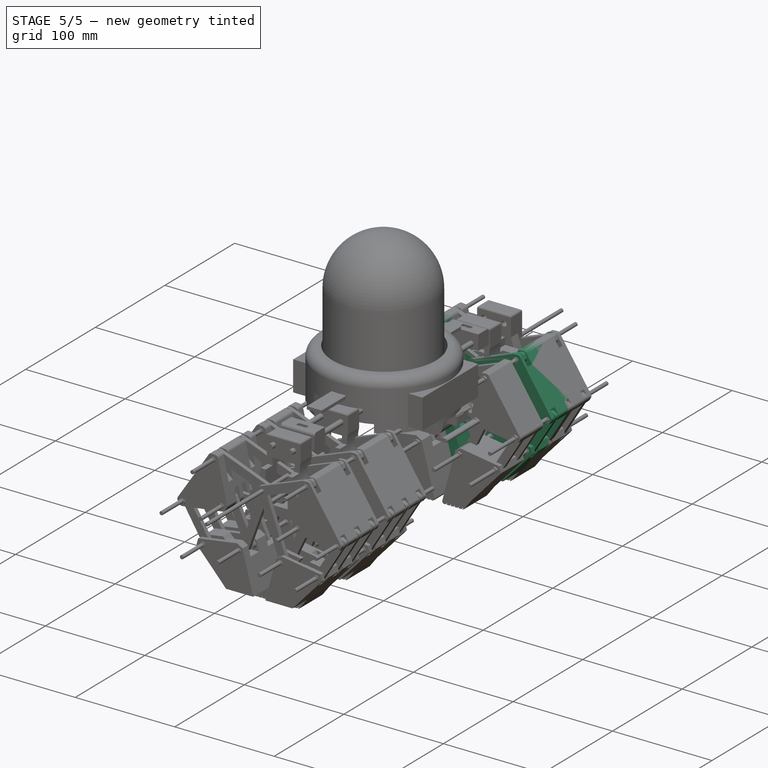
[diagram: stage 5 of 5 — iso view after this stage's code; geometry added in this stage tinted green]
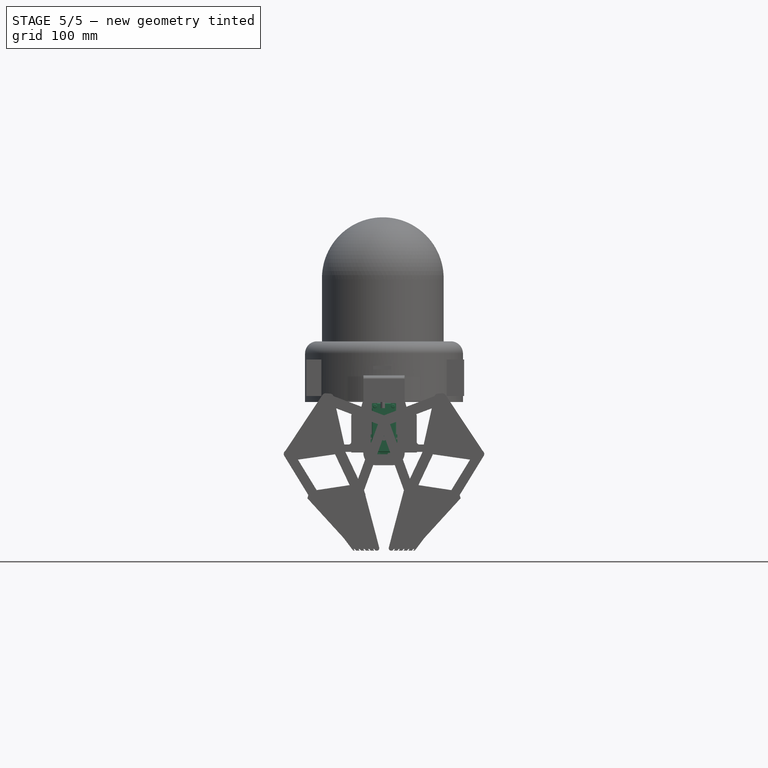
[diagram: stage 5 of 5 — front view after this stage's code; geometry added in this stage tinted green]
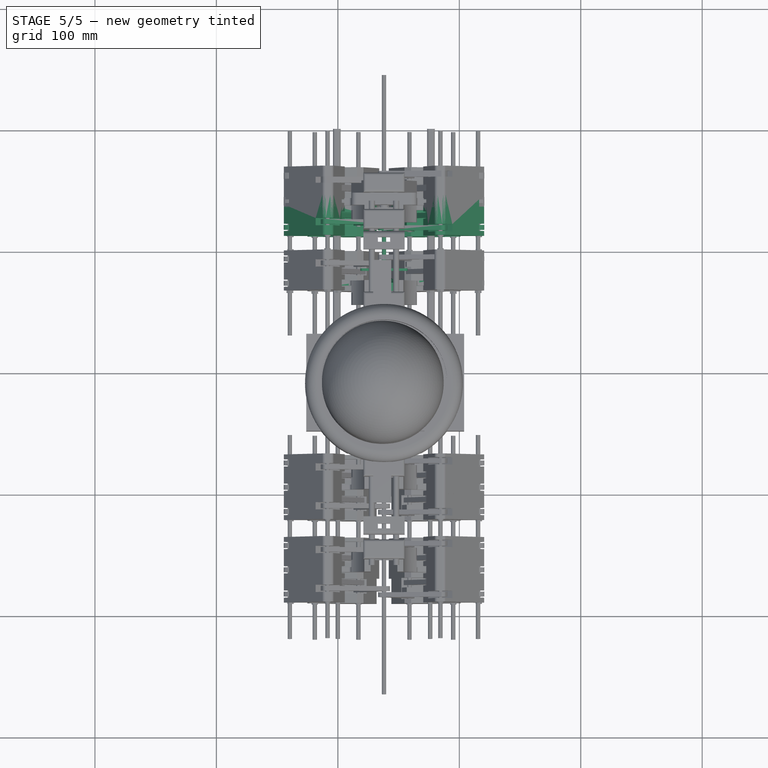
[diagram: stage 5 of 5 — top view after this stage's code; geometry added in this stage tinted green]
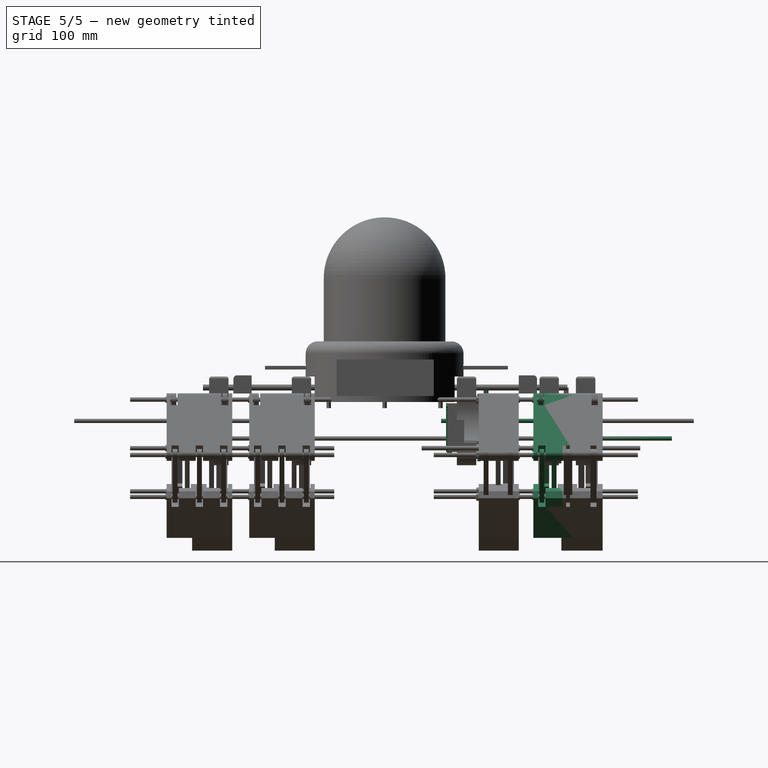
[diagram: stage 5 of 5 — right view after this stage's code; geometry added in this stage tinted green]
FEATURE [Sketcher::SketchObject] Sketch
  Placement = pos=(0,0,0) rot=(1,0,0;1.5708rad)
  sketch-geometry (14):
    g0: LineSegment StartX=0 StartY=0 StartZ=0 EndX=38 EndY=0 EndZ=0
    g1: LineSegment StartX=38 StartY=0 StartZ=0 EndX=38 EndY=7.8 EndZ=0
    g2: LineSegment StartX=38 StartY=7.8 StartZ=0 EndX=38.0534 EndY=22.7999 EndZ=0
    g3: LineSegment StartX=0 StartY=0 StartZ=0 EndX=17.0275 EndY=-35.4197 EndZ=0
    g4: LineSegment StartX=38.0534 StartY=22.7999 StartZ=0 EndX=-8.67747 EndY=40.5827 EndZ=0
    g5: LineSegment StartX=-8.67747 StartY=40.5827 StartZ=0 EndX=0 EndY=0 EndZ=0
    g6: LineSegment StartX=0 StartY=0 StartZ=0 EndX=-39.6762 EndY=-5.81477 EndZ=0
    g7: LineSegment StartX=-39.6762 StartY=-5.81477 StartZ=0 EndX=-8.67747 EndY=40.5827 EndZ=0
    g8: LineSegment StartX=-39.6762 StartY=-5.81477 StartZ=0 EndX=-19.4318 EndY=-39.616 EndZ=0
    g9: LineSegment StartX=-19.4318 StartY=-39.616 StartZ=0 EndX=17.0275 EndY=-35.4197 EndZ=0
    g10: LineSegment StartX=17.0275 StartY=-35.4197 StartZ=0 EndX=30.2556 EndY=-82.6004 EndZ=0
    g11: LineSegment StartX=30.2556 StartY=-82.6004 StartZ=0 EndX=-19.4318 EndY=-39.616 EndZ=0
    g12: LineSegment StartX=17.0275 StartY=-35.4197 StartZ=0 EndX=38.0534 EndY=22.7999 EndZ=0
    g13: LineSegment StartX=-3.01779 StartY=-84.3544 StartZ=0 EndX=82.2553 EndY=-84.3544 EndZ=0
  constraints (34):
    c: Coincident(g-1,g0)
    c: Horizontal(g0)
    c: Coincident(g0,g1)
    c: Vertical(g1)
    c: Coincident(g1,g2)
    c: Coincident(g3,g-1)
    c: Coincident(g4,g2)
    c: Coincident(g5,g4)
    c: Coincident(g5,g-1)
    c: Coincident(g6,g-1)
    c: Coincident(g7,g6)
    c: Coincident(g7,g4)
    c: Coincident(g8,g6)
    c: Coincident(g8,g9)
    c: Coincident(g9,g3)
    c: Coincident(g9,g10)
    c: Coincident(g10,g11)
    c: Coincident(g11,g9)
    c: Coincident(g12,g3)
    c: Coincident(g12,g2)
    c: Distance(g7) = 55.8
    c: Distance(g6) = 40.1
    c: Distance(g5) = 41.5
    c: Distance(g4) = 50
    c: Distance(g8) = 39.4
    c: Distance(g3) = 39.3
    c: Distance(g9) = 36.7
    c: Distance(g11) = 65.7
    c: Distance(g10) = 49
    c: Distance(g12) = 61.9
    c: Distance(g0) = 38
    c: Distance(g1) = 7.8
    c: Distance(g2) = 15
    c: Horizontal(g13)
FEATURE [Sketcher::SketchObject] Sketch001
  Placement = pos=(-15,0,-10) rot=(0.913318,-0.287968,0.287968;1.66134rad)
  sketch-geometry (6):
    g0: LineSegment StartX=-26.1846 StartY=-19.8249 StartZ=0 EndX=-21.5367 EndY=-15.9796 EndZ=0
    g1: LineSegment StartX=-21.5367 StartY=-15.9796 StartZ=0 EndX=13.9632 EndY=-33.5618 EndZ=0
    g2: LineSegment StartX=13.9632 StartY=-33.5618 StartZ=0 EndX=16.4973 EndY=-39.3555 EndZ=0
    g3: LineSegment StartX=16.4973 StartY=-39.3555 StartZ=0 EndX=1.91251 EndY=-79.158 EndZ=0
    g4: LineSegment StartX=1.91251 StartY=-79.158 StartZ=0 EndX=-20.507 EndY=-63.5274 EndZ=0
    g5: LineSegment StartX=-20.507 StartY=-63.5274 StartZ=0 EndX=-26.1846 EndY=-19.8249 EndZ=0
  constraints (6):
    c: Coincident(g0,g1)
    c: Coincident(g1,g2)
    c: Coincident(g2,g3)
    c: Coincident(g3,g4)
    c: Coincident(g4,g5)
    c: Coincident(g5,g0)
FEATURE [Sketcher::SketchObject] Sketch002
  Placement = pos=(0,0,0) rot=(0.926703,-0.265728,0.265728;1.64685rad)
  sketch-geometry (6):
    g0: LineSegment StartX=-40.7654 StartY=19.725 StartZ=0 EndX=-40.7654 EndY=12.9153 EndZ=0
    g1: LineSegment StartX=-40.7654 StartY=12.9153 StartZ=0 EndX=-0.0823442 EndY=-5.03519 EndZ=0
    g2: LineSegment StartX=-0.0823442 StartY=-5.03519 StartZ=0 EndX=5.26188 EndY=-2.60545 EndZ=0
    g3: LineSegment StartX=5.26188 StartY=-2.60545 StartZ=0 EndX=20.3177 EndY=40.0856 EndZ=0
    g4: LineSegment StartX=20.3177 StartY=40.0856 StartZ=0 EndX=14.0989 EndY=44.6607 EndZ=0
    g5: LineSegment StartX=14.0989 StartY=44.6607 StartZ=0 EndX=-40.7654 EndY=19.725 EndZ=0
  constraints (7):
    c: Vertical(g0)
    c: Coincident(g0,g1)
    c: Coincident(g1,g2)
    c: Coincident(g2,g3)
    c: Coincident(g3,g4)
    c: Coincident(g4,g5)
    c: Coincident(g5,g0)
FEATURE [Part::Cylinder] Cylinder  label="Cilindro"
  Angle = 360
  Height = 100
  Placement = pos=(-8.5,30,40) rot=(1,0,0;1.5708rad)
  Radius = 1.8
FEATURE [Part::Cylinder] Cylinder001  label="Cilindro001"
  Angle = 360
  Height = 4
  Placement = pos=(0,1,0) rot=(1,0,0;1.5708rad)
  Radius = 2.6
FEATURE [Part::Cylinder] Cylinder002  label="Cilindro002"
  Angle = 360
  Height = 100
  Placement = pos=(38,76,22.5) rot=(1,0,0;1.5708rad)
  Radius = 1.8
FEATURE [Part::Cylinder] Cylinder003  label="Cilindro003"
  Angle = 360
  Height = 100
  Placement = pos=(38,-14,8) rot=(1,0,0;1.5708rad)
  Radius = 1.8
FEATURE [Part::Cylinder] Cylinder004  label="Cilindro004"
  Angle = 360
  Height = 100
  Placement = pos=(0,30,0) rot=(1,0,0;1.5708rad)
  Radius = 1.8
FEATURE [Part::Cylinder] Cylinder005  label="Cilindro005"
  Angle = 360
  Height = 100
  Placement = pos=(-39.5,30,-5.5) rot=(1,0,0;1.5708rad)
  Radius = 1.8
FEATURE [Part::Cylinder] Cylinder006  label="Cilindro006"
  Angle = 360
  Height = 100
  Placement = pos=(-19,30,-40) rot=(1,0,0;1.5708rad)
  Radius = 1.8
FEATURE [Part::Cylinder] Cylinder007  label="Cilindro007"
  Angle = 360
  Height = 100
  Placement = pos=(17,30,-35.5) rot=(1,0,0;1.5708rad)
  Radius = 1.8
FEATURE [Sketcher::SketchObject] Sketch003
  Placement = pos=(0,-25,0) rot=(1,0,0;1.5708rad)
  sketch-geometry (13):
    g0: LineSegment StartX=-4.14949 StartY=3.07202 StartZ=0 EndX=31.4361 EndY=3.07202 EndZ=0
    g1: LineSegment StartX=79.8505 StartY=3.07202 StartZ=0 EndX=79.8505 EndY=-3.0271 EndZ=0
    g2: LineSegment StartX=79.8505 StartY=-3.0271 StartZ=0 EndX=-4.14949 EndY=-3.0271 EndZ=0
    g3: LineSegment StartX=-4.14949 StartY=-3.0271 StartZ=0 EndX=-4.14949 EndY=3.07202 EndZ=0
    g4: LineSegment StartX=44.676 StartY=3.07202 StartZ=0 EndX=44.676 EndY=10.5544 EndZ=0
    g5: LineSegment StartX=44.676 StartY=10.5544 StartZ=0 EndX=40.8523 EndY=14.4187 EndZ=0
    g6: LineSegment StartX=35.2636 StartY=14.4187 StartZ=0 EndX=31.4361 EndY=10.5452 EndZ=0
    g7: LineSegment StartX=31.4361 StartY=10.5452 StartZ=0 EndX=31.4361 EndY=3.07202 EndZ=0
    g8: Circle [constr] CenterX=38.058 CenterY=7.82976 CenterZ=0 NormalX=0 NormalY=0 NormalZ=1 Radius=7.157
    g9: LineSegment StartX=44.676 StartY=3.07202 StartZ=0 EndX=79.8505 EndY=3.07202 EndZ=0
    g10: LineSegment StartX=35.2636 StartY=14.4187 StartZ=0 EndX=35.2636 EndY=49.8416 EndZ=0
    g11: LineSegment StartX=35.2636 StartY=49.8416 StartZ=0 EndX=40.8523 EndY=49.8416 EndZ=0
    g12: LineSegment StartX=40.8523 StartY=49.8416 StartZ=0 EndX=40.8523 EndY=14.4187 EndZ=0
  constraints (26):
    c: Coincident(g9,g1)
    c: Coincident(g1,g2)
    c: Coincident(g2,g3)
    c: Coincident(g3,g0)
    c: Horizontal(g0)
    c: Horizontal(g2)
    c: Vertical(g1)
    c: Vertical(g3)
    c: Distance(g2) = 84
    c: Coincident(g4,g5)
    c: Coincident(g6,g7)
    c: PointOnObject(g4,g8)
    c: PointOnObject(g5,g8)
    c: PointOnObject(g6,g8)
    c: PointOnObject(g6,g8)
    c: Tangent(g0,g9)
    c: Coincident(g4,g9)
    c: Coincident(g0,g7)
    c: Vertical(g7)
    c: Vertical(g4)
    c: Vertical(g10)
    c: Coincident(g10,g11)
    c: Coincident(g11,g12)
    c: Coincident(g12,g5)
    c: Vertical(g12)
    c: Horizontal(g11)
FEATURE [Sketcher::SketchObject] Sketch004
  Placement = pos=(0,0,0) rot=(1,0,0;1.5708rad)
  sketch-geometry (13):
    g0: LineSegment StartX=0 StartY=0 StartZ=0 EndX=38 EndY=0 EndZ=0
    g1: LineSegment StartX=38 StartY=0 StartZ=0 EndX=38 EndY=7.8 EndZ=0
    g2: LineSegment StartX=38 StartY=7.8 StartZ=0 EndX=38.048 EndY=22.7999 EndZ=0
    g3: LineSegment StartX=0 StartY=0 StartZ=0 EndX=17.0252 EndY=-35.4208 EndZ=0
    g4: LineSegment StartX=38.048 StartY=22.7999 StartZ=0 EndX=-8.68337 EndY=40.5814 EndZ=0
    g5: LineSegment StartX=-8.68337 StartY=40.5814 StartZ=0 EndX=0 EndY=0 EndZ=0
    g6: LineSegment StartX=0 StartY=0 StartZ=0 EndX=-39.6753 EndY=-5.82054 EndZ=0
    g7: LineSegment StartX=-39.6753 StartY=-5.82054 StartZ=0 EndX=-8.68337 EndY=40.5814 EndZ=0
    g8: LineSegment StartX=-39.6753 StartY=-5.82054 StartZ=0 EndX=-19.4334 EndY=-39.6233 EndZ=0
    g9: LineSegment StartX=-19.4334 StartY=-39.6233 StartZ=0 EndX=17.0252 EndY=-35.4208 EndZ=0
    g10: LineSegment StartX=17.0252 StartY=-35.4208 StartZ=0 EndX=30.2612 EndY=-82.5993 EndZ=0
    g11: LineSegment StartX=30.2612 StartY=-82.5993 StartZ=0 EndX=-19.4334 EndY=-39.6233 EndZ=0
    g12: LineSegment StartX=17.0252 StartY=-35.4208 StartZ=0 EndX=38.048 EndY=22.7999 EndZ=0
  constraints (33):
    c: Coincident(g-1,g0)
    c: Horizontal(g0)
    c: Coincident(g0,g1)
    c: Vertical(g1)
    c: Coincident(g1,g2)
    c: Coincident(g3,g-1)
    c: Coincident(g4,g2)
    c: Coincident(g5,g4)
    c: Coincident(g5,g-1)
    c: Coincident(g6,g-1)
    c: Coincident(g7,g6)
    c: Coincident(g7,g4)
    c: Coincident(g8,g6)
    c: Coincident(g8,g9)
    c: Coincident(g9,g3)
    c: Coincident(g9,g10)
    c: Coincident(g10,g11)
    c: Coincident(g11,g9)
    c: Coincident(g12,g3)
    c: Coincident(g12,g2)
    c: Distance(g7) = 55.8
    c: Distance(g6) = 40.1
    c: Distance(g5) = 41.5
    c: Distance(g4) = 50
    c: Distance(g8) = 39.4
    c: Distance(g3) = 39.3
    c: Distance(g9) = 36.7
    c: Distance(g11) = 65.7
    c: Distance(g10) = 49
    c: Distance(g12) = 61.9
    c: Distance(g0) = 38
    c: Distance(g1) = 7.8
    c: Distance(g2) = 15
FEATURE [Sketcher::SketchObject] Sketch005
  Placement = pos=(-15,0,-10) rot=(0.913318,-0.287968,0.287968;1.66134rad)
  sketch-geometry (6):
    g0: LineSegment StartX=-26.1846 StartY=-19.8249 StartZ=0 EndX=-21.4804 EndY=-15.8574 EndZ=0
    g1: LineSegment StartX=-21.4804 StartY=-15.8574 StartZ=0 EndX=13.9069 EndY=-33.684 EndZ=0
    g2: LineSegment StartX=13.9069 StartY=-33.684 StartZ=0 EndX=16.4973 EndY=-39.3555 EndZ=0
    g3: LineSegment StartX=16.4973 StartY=-39.3555 StartZ=0 EndX=-3.03216 EndY=-92.4592 EndZ=0
    g4: LineSegment StartX=-3.03216 StartY=-92.4592 StartZ=0 EndX=-8.04727 EndY=-92.4592 EndZ=0
    g5: LineSegment StartX=-8.04727 StartY=-92.4592 StartZ=0 EndX=-26.1846 EndY=-19.8249 EndZ=0
  constraints (7):
    c: Coincident(g0,g1)
    c: Coincident(g1,g2)
    c: Coincident(g2,g3)
    c: Coincident(g3,g4)
    c: Horizontal(g4)
    c: Coincident(g4,g5)
    c: Coincident(g5,g0)
FEATURE [Sketcher::SketchObject] Sketch006
  Placement = pos=(0,0,0) rot=(0.926703,-0.265728,0.265728;1.64685rad)
  sketch-geometry (6):
    g0: LineSegment StartX=-40.7654 StartY=19.725 StartZ=0 EndX=-40.7654 EndY=12.9153 EndZ=0
    g1: LineSegment StartX=-40.7654 StartY=12.9153 StartZ=0 EndX=-0.0823442 EndY=-5.03519 EndZ=0
    g2: LineSegment StartX=-0.0823442 StartY=-5.03519 StartZ=0 EndX=5.26188 EndY=-2.60545 EndZ=0
    g3: LineSegment StartX=5.26188 StartY=-2.60545 StartZ=0 EndX=20.3177 EndY=40.0856 EndZ=0
    g4: LineSegment StartX=20.3177 StartY=40.0856 StartZ=0 EndX=14.0989 EndY=44.6607 EndZ=0
    g5: LineSegment StartX=14.0989 StartY=44.6607 StartZ=0 EndX=-40.7654 EndY=19.725 EndZ=0
  constraints (7):
    c: Vertical(g0)
    c: Coincident(g0,g1)
    c: Coincident(g1,g2)
    c: Coincident(g2,g3)
    c: Coincident(g3,g4)
    c: Coincident(g4,g5)
    c: Coincident(g5,g0)
FEATURE [Part::Mirroring] Part__Mirroring  label="Sketch004 (Mirror #1)"
  Base = (0,0,0)
  Normal = (1,0,0)
  Placement = pos=(76,0,0) rot=(0,0,1;0rad)
  Source = -> Sketch004
FEATURE [Part::Mirroring] Part__Mirroring001  label="Sketch005 (Mirror #2)"
  Base = (0,0,0)
  Normal = (1,0,0)
  Placement = pos=(76,0,0) rot=(0,0,1;0rad)
  Source = -> Sketch005
FEATURE [Part::Mirroring] Part__Mirroring002  label="Sketch006 (Mirror #3)"
  Base = (0,0,0)
  Normal = (1,0,0)
  Placement = pos=(76,0,0) rot=(0,0,1;0rad)
  Source = -> Sketch006
FEATURE [PartDesign::Pad] Pad
  Length = 33
  Length2 = 100
  Placement = pos=(0,0,0) rot=(0.926703,-0.265728,0.265728;1.64685rad)
  Sketch = -> Sketch002
  Type = 0
FEATURE [PartDesign::Pad] Pad001
  Length = 33
  Length2 = 100
  Placement = pos=(-15,0,-10) rot=(0.913318,-0.287968,0.287968;1.66134rad)
  Sketch = -> Sketch001
  Type = 0
FEATURE [PartDesign::Pad] Pad002
  Length = 4
  Length2 = 100
  Placement = pos=(0,-25,0) rot=(1,0,0;1.5708rad)
  Sketch = -> Sketch003
  Type = 0
FEATURE [Sketcher::SketchObject] Sketch007
  Placement = pos=(0,-5,0) rot=(1,0,0;1.5708rad)
  sketch-geometry (4):
    g0: LineSegment StartX=-45.7022 StartY=-3.72195 StartZ=0 EndX=-38.9083 EndY=0.415547 EndZ=0
    g1: LineSegment StartX=-38.9083 StartY=0.415547 StartZ=0 EndX=-12.9682 EndY=-41.8491 EndZ=0
    g2: LineSegment StartX=-12.9682 StartY=-41.8491 StartZ=0 EndX=-19.7621 EndY=-45.9866 EndZ=0
    g3: LineSegment StartX=-19.7621 StartY=-45.9866 StartZ=0 EndX=-45.7022 EndY=-3.72195 EndZ=0
  constraints (6):
    c: Coincident(g0,g1)
    c: Coincident(g1,g2)
    c: Coincident(g2,g3)
    c: Coincident(g3,g0)
    c: Parallel(g3,g1)
    c: Parallel(g2,g0)
FEATURE [Sketcher::SketchObject] Sketch008
  Placement = pos=(0,-15,0) rot=(1,0,0;1.5708rad)
  sketch-geometry (4):
    g0: LineSegment StartX=-5.8347 StartY=2.47919 StartZ=0 EndX=2.12677 EndY=5.59698 EndZ=0
    g1: LineSegment StartX=2.12677 StartY=5.59698 StartZ=0 EndX=22.8292 EndY=-38.2205 EndZ=0
    g2: LineSegment StartX=22.8292 StartY=-38.2205 StartZ=0 EndX=14.8678 EndY=-41.3383 EndZ=0
    g3: LineSegment StartX=14.8678 StartY=-41.3383 StartZ=0 EndX=-5.8347 EndY=2.47919 EndZ=0
  constraints (6):
    c: Coincident(g0,g1)
    c: Coincident(g1,g2)
    c: Coincident(g2,g3)
    c: Coincident(g3,g0)
    c: Parallel(g3,g1)
    c: Parallel(g2,g0)
FEATURE [Sketcher::SketchObject] Sketch009
  Placement = pos=(0,-9,0) rot=(1,0,0;1.5708rad)
  sketch-geometry (4):
    g0: LineSegment StartX=-15.1215 StartY=38.0643 StartZ=0 EndX=-11.4967 EndY=45.8979 EndZ=0
    g1: LineSegment StartX=-11.4967 StartY=45.8979 StartZ=0 EndX=43.8982 EndY=24.8483 EndZ=0
    g2: LineSegment StartX=43.8982 StartY=24.8483 StartZ=0 EndX=40.2735 EndY=17.0147 EndZ=0
    g3: LineSegment StartX=40.2735 StartY=17.0147 StartZ=0 EndX=-15.1215 EndY=38.0643 EndZ=0
  constraints (6):
    c: Coincident(g0,g1)
    c: Coincident(g1,g2)
    c: Coincident(g2,g3)
    c: Coincident(g3,g0)
    c: Parallel(g3,g1)
    c: Parallel(g2,g0)
FEATURE [Sketcher::SketchObject] Sketch010
  Placement = pos=(0,-9,0) rot=(1,0,0;1.5708rad)
  sketch-geometry (4):
    g0: LineSegment StartX=36.0124 StartY=27.9384 StartZ=0 EndX=43.3266 EndY=25.1327 EndZ=0
    g1: LineSegment StartX=43.3266 StartY=25.1327 StartZ=0 EndX=19.3358 EndY=-40.7949 EndZ=0
    g2: LineSegment StartX=19.3358 StartY=-40.7949 StartZ=0 EndX=12.0216 EndY=-37.9892 EndZ=0
    g3: LineSegment StartX=12.0216 StartY=-37.9892 StartZ=0 EndX=36.0124 EndY=27.9384 EndZ=0
  constraints (6):
    c: Coincident(g0,g1)
    c: Coincident(g1,g2)
    c: Coincident(g2,g3)
    c: Coincident(g3,g0)
    c: Parallel(g3,g1)
    c: Parallel(g2,g0)
FEATURE [PartDesign::Pad] Pad003
  Length = 4
  Length2 = 100
  Placement = pos=(0,-5,0) rot=(1,0,0;1.5708rad)
  Sketch = -> Sketch007
  Type = 0
FEATURE [PartDesign::Pad] Pad004
  Length = 4
  Length2 = 100
  Placement = pos=(0,-15,0) rot=(1,0,0;1.5708rad)
  Sketch = -> Sketch008
  Type = 0
FEATURE [PartDesign::Pad] Pad005
  Length = 4
  Length2 = 100
  Placement = pos=(0,-9,0) rot=(1,0,0;1.5708rad)
  Sketch = -> Sketch010
  Type = 0
FEATURE [PartDesign::Pad] Pad006
  Length = 4
  Length2 = 100
  Placement = pos=(0,-9,0) rot=(1,0,0;1.5708rad)
  Sketch = -> Sketch009
  Type = 0
FEATURE [Sketcher::SketchObject] Sketch011
  Placement = pos=(0,-25,0) rot=(1,0,0;1.5708rad)
  sketch-geometry (4):
    g0: LineSegment StartX=-45.7022 StartY=-3.72195 StartZ=0 EndX=-38.9083 EndY=0.415547 EndZ=0
    g1: LineSegment StartX=-38.9083 StartY=0.415547 StartZ=0 EndX=-12.9682 EndY=-41.8491 EndZ=0
    g2: LineSegment StartX=-12.9682 StartY=-41.8491 StartZ=0 EndX=-19.7621 EndY=-45.9866 EndZ=0
    g3: LineSegment StartX=-19.7621 StartY=-45.9866 StartZ=0 EndX=-45.7022 EndY=-3.72195 EndZ=0
  constraints (6):
    c: Coincident(g0,g1)
    c: Coincident(g1,g2)
    c: Coincident(g2,g3)
    c: Coincident(g3,g0)
    c: Parallel(g3,g1)
    c: Parallel(g2,g0)
FEATURE [PartDesign::Pad] Pad007
  Length = 4
  Length2 = 100
  Placement = pos=(0,-25,0) rot=(1,0,0;1.5708rad)
  Sketch = -> Sketch011
  Type = 0
FEATURE [Sketcher::SketchObject] Sketch012
  Placement = pos=(0,-14,0) rot=(1,0,0;1.5708rad)
  sketch-geometry (4):
    g0: ArcOfCircle CenterX=38.0741 CenterY=7.82003 CenterZ=0 NormalX=0 NormalY=0 NormalZ=1 Radius=3.94535 StartAngle=3.14159 EndAngle=6.28319
    g1: ArcOfCircle CenterX=38.0741 CenterY=23.4274 CenterZ=0 NormalX=0 NormalY=0 NormalZ=1 Radius=3.94535 StartAngle=0 EndAngle=3.14159
    g2: LineSegment StartX=42.0195 StartY=7.82003 StartZ=0 EndX=42.0195 EndY=23.4274 EndZ=0
    g3: LineSegment StartX=34.1288 StartY=7.82003 StartZ=0 EndX=34.1288 EndY=23.4274 EndZ=0
  constraints (6):
    c: Tangent(g0,g3) = 1.5708
    c: Tangent(g0,g2) = -1.5708
    c: Tangent(g2,g1) = -1.5708
    c: Tangent(g3,g1) = 1.5708
    c: Vertical(g2)
    c: Equal(g0,g1)
FEATURE [PartDesign::Pad] Pad008
  Length = 10
  Length2 = 100
  Placement = pos=(0,-14,0) rot=(1,0,0;1.5708rad)
  Sketch = -> Sketch012
  Type = 0
FEATURE [Part::Fillet] Fillet
  Base = -> Pad006
  Edges = 4 edges r=3: [Edge1,Edge2,Edge5,Edge8]
FEATURE [Part::Fillet] Fillet001
  Base = -> Pad003
  Edges = 4 edges r=3: [Edge1,Edge2,Edge5,Edge8]
FEATURE [Part::Fillet] Fillet002
  Base = -> Pad007
  Edges = 4 edges r=3: [Edge1,Edge2,Edge5,Edge8]
FEATURE [Part::Fillet] Fillet003
  Base = -> Pad004
  Edges = 4 edges r=3: [Edge1,Edge2,Edge5,Edge8]
FEATURE [Part::Fillet] Fillet004
  Base = -> Pad005
  Edges = 4 edges r=3: [Edge1,Edge2,Edge5,Edge8]
FEATURE [Part::Fillet] Fillet005
  Base = -> Pad002
  Edges = 4 edges r=3: [Edge2,Edge5,Edge8,Edge11]
FEATURE [Part::Fillet] Fillet006
  Base = -> Fillet005
  Edges = 2 edges r=6: [Edge3,Edge48]
FEATURE [Part::Fillet] Fillet008
  Base = -> Pad
  Edges = 2 edges r=3: [Edge11,Edge14]
FEATURE [Part::Fillet] Fillet009
  Base = -> Fillet008
  Edges = 4 edges r=3: [Edge3,Edge14,Edge22,Edge24]
FEATURE [Sketcher::SketchObject] Sketch016
  Placement = pos=(0,0,0) rot=(1,0,0;1.5708rad)
  sketch-geometry (24):
    g0: LineSegment StartX=31.9221 StartY=-73.7642 StartZ=0 EndX=34.7157 EndY=-84.3474 EndZ=0
    g1: LineSegment StartX=34.7157 StartY=-84.3474 StartZ=0 EndX=31.0042 EndY=-84.3474 EndZ=0
    g2: LineSegment StartX=31.0042 StartY=-84.3474 StartZ=0 EndX=29.9949 EndY=-83.0102 EndZ=0
    g3: LineSegment StartX=29.9949 StartY=-83.0102 StartZ=0 EndX=29.0048 EndY=-82.9974 EndZ=0
    g4: LineSegment StartX=29.0048 StartY=-82.9974 StartZ=0 EndX=29.9744 EndY=-84.3565 EndZ=0
    g5: LineSegment StartX=29.9744 StartY=-84.3565 StartZ=0 EndX=27.0013 EndY=-84.3565 EndZ=0
    g6: LineSegment StartX=27.0013 StartY=-84.3565 StartZ=0 EndX=25.9942 EndY=-83.0138 EndZ=0
    g7: LineSegment StartX=25.9942 StartY=-83.0138 StartZ=0 EndX=24.9776 EndY=-83.0138 EndZ=0
    g8: LineSegment StartX=24.9776 StartY=-83.0138 StartZ=0 EndX=26.0038 EndY=-84.3756 EndZ=0
    g9: LineSegment StartX=26.0038 StartY=-84.3756 StartZ=0 EndX=23.0075 EndY=-84.3756 EndZ=0
    g10: LineSegment StartX=23.0075 StartY=-84.3756 StartZ=0 EndX=22.0197 EndY=-83.0236 EndZ=0
    g11: LineSegment StartX=22.0197 StartY=-83.0236 StartZ=0 EndX=20.9743 EndY=-83.0236 EndZ=0
    g12: LineSegment StartX=20.9743 StartY=-83.0236 StartZ=0 EndX=22.0005 EndY=-84.3663 EndZ=0
    g13: LineSegment StartX=22.0005 StartY=-84.3663 StartZ=0 EndX=19.0178 EndY=-84.3663 EndZ=0
    g14: LineSegment StartX=19.0178 StartY=-84.3663 StartZ=0 EndX=17.9916 EndY=-83.0045 EndZ=0
    g15: LineSegment StartX=17.9916 StartY=-83.0045 StartZ=0 EndX=16.9846 EndY=-83.0045 EndZ=0
    g16: LineSegment StartX=16.9846 StartY=-83.0045 StartZ=0 EndX=18.0012 EndY=-84.3663 EndZ=0
    g17: LineSegment StartX=18.0012 StartY=-84.3663 StartZ=0 EndX=15.0322 EndY=-84.3663 EndZ=0
    g18: LineSegment StartX=15.0322 StartY=-84.3663 StartZ=0 EndX=14.0131 EndY=-83.0204 EndZ=0
    g19: LineSegment StartX=14.0131 StartY=-83.0204 StartZ=0 EndX=12.9823 EndY=-83.0204 EndZ=0
    g20: LineSegment StartX=12.9823 StartY=-83.0204 StartZ=0 EndX=14.0014 EndY=-84.3792 EndZ=0
    g21: LineSegment StartX=14.0014 StartY=-84.3792 StartZ=0 EndX=12.6817 EndY=-84.3792 EndZ=0
    g22: LineSegment StartX=12.6817 StartY=-84.3792 StartZ=0 EndX=4.6509 EndY=-73.7642 EndZ=0
    g23: LineSegment StartX=4.6509 StartY=-73.7642 StartZ=0 EndX=31.9221 EndY=-73.7642 EndZ=0
  constraints (35):
    c: Coincident(g0,g1)
    c: Horizontal(g1)
    c: Coincident(g1,g2)
    c: Coincident(g2,g3)
    c: Coincident(g3,g4)
    c: Coincident(g4,g5)
    c: Horizontal(g5)
    c: Coincident(g5,g6)
    c: Coincident(g6,g7)
    c: Horizontal(g7)
    c: Coincident(g7,g8)
    c: Coincident(g8,g9)
    c: Horizontal(g9)
    c: Coincident(g9,g10)
    c: Coincident(g10,g11)
    c: Horizontal(g11)
    c: Coincident(g11,g12)
    c: Coincident(g12,g13)
    c: Horizontal(g13)
    c: Coincident(g13,g14)
    c: Coincident(g14,g15)
    c: Horizontal(g15)
    c: Coincident(g15,g16)
    c: Coincident(g16,g17)
    c: Horizontal(g17)
    c: Coincident(g17,g18)
    c: Coincident(g18,g19)
    c: Horizontal(g19)
    c: Coincident(g19,g20)
    c: Coincident(g20,g21)
    c: Horizontal(g21)
    c: Coincident(g21,g22)
    c: Coincident(g22,g23)
    c: Coincident(g23,g0)
    c: Horizontal(g23)
FEATURE [PartDesign::Pad] Pad012
  Length = 33
  Length2 = 100
  Placement = pos=(0,0,0) rot=(1,0,0;1.5708rad)
  Sketch = -> Sketch016
  Type = 0
FEATURE [Sketcher::SketchObject] Sketch017
  Placement = pos=(-4,-7,0) rot=(1,0,0;1.5708rad)
  sketch-geometry (8):
    g0: LineSegment StartX=12.9217 StartY=-76.0433 StartZ=0 EndX=12.9217 EndY=-72.6813 EndZ=0
    g1: LineSegment StartX=12.9217 StartY=-72.6813 StartZ=0 EndX=10.907 EndY=-71.0645 EndZ=0
    g2: LineSegment StartX=10.907 StartY=-71.0645 StartZ=0 EndX=12.9496 EndY=-67.9874 EndZ=0
    g3: LineSegment StartX=12.9496 StartY=-67.9874 StartZ=0 EndX=17.8943 EndY=-67.9874 EndZ=0
    g4: LineSegment StartX=17.8943 StartY=-67.9874 StartZ=0 EndX=19.9533 EndY=-71.0124 EndZ=0
    g5: LineSegment StartX=19.9533 StartY=-71.0124 StartZ=0 EndX=17.9933 EndY=-72.6487 EndZ=0
    g6: LineSegment StartX=17.9933 StartY=-72.6487 StartZ=0 EndX=17.9811 EndY=-76.0433 EndZ=0
    g7: LineSegment StartX=17.9811 StartY=-76.0433 StartZ=0 EndX=12.9217 EndY=-76.0433 EndZ=0
  constraints (11):
    c: Vertical(g0)
    c: Coincident(g0,g1)
    c: Coincident(g1,g2)
    c: Coincident(g2,g3)
    c: Horizontal(g3)
    c: Coincident(g3,g4)
    c: Coincident(g4,g5)
    c: Coincident(g6,g7)
    c: Coincident(g7,g0)
    c: Horizontal(g7)
    c: Coincident(g5,g6)
FEATURE [PartDesign::Pad] Pad013
  Length = 20
  Length2 = 100
  Placement = pos=(-4,-7,0) rot=(1,0,0;1.5708rad)
  Sketch = -> Sketch017
  Type = 0
FEATURE [Part::MultiFuse] Fusion001
  Shapes = -> [Pad013,Pad012]
FEATURE [Sketcher::SketchObject] Sketch018
  Placement = pos=(10,-7,0) rot=(1,0,0;1.5708rad)
  sketch-geometry (8):
    g0: LineSegment StartX=12.9217 StartY=-76.0433 StartZ=0 EndX=12.9217 EndY=-72.6813 EndZ=0
    g1: LineSegment StartX=12.9217 StartY=-72.6813 StartZ=0 EndX=10.907 EndY=-71.0645 EndZ=0
    g2: LineSegment StartX=10.907 StartY=-71.0645 StartZ=0 EndX=12.9496 EndY=-67.9874 EndZ=0
    g3: LineSegment StartX=12.9496 StartY=-67.9874 StartZ=0 EndX=17.8943 EndY=-67.9874 EndZ=0
    g4: LineSegment StartX=17.8943 StartY=-67.9874 StartZ=0 EndX=19.9533 EndY=-71.0124 EndZ=0
    g5: LineSegment StartX=19.9533 StartY=-71.0124 StartZ=0 EndX=17.9933 EndY=-72.6487 EndZ=0
    g6: LineSegment StartX=17.9933 StartY=-72.6487 StartZ=0 EndX=17.9811 EndY=-76.0433 EndZ=0
    g7: LineSegment StartX=17.9811 StartY=-76.0433 StartZ=0 EndX=12.9217 EndY=-76.0433 EndZ=0
  constraints (11):
    c: Vertical(g0)
    c: Coincident(g0,g1)
    c: Coincident(g1,g2)
    c: Coincident(g2,g3)
    c: Horizontal(g3)
    c: Coincident(g3,g4)
    c: Coincident(g4,g5)
    c: Coincident(g6,g7)
    c: Coincident(g7,g0)
    c: Horizontal(g7)
    c: Coincident(g5,g6)
FEATURE [PartDesign::Pad] Pad014
  Length = 20
  Length2 = 100
  Placement = pos=(10,-7,0) rot=(1,0,0;1.5708rad)
  Sketch = -> Sketch018
  Type = 0
FEATURE [Part::MultiFuse] Fusion
  Shapes = -> [Fusion001,Pad014]
FEATURE [Sketcher::SketchObject] Sketch019
  Placement = pos=(0,0,0) rot=(1,0,0;1.5708rad)
  sketch-geometry (24):
    g0: LineSegment StartX=31.9221 StartY=-73.7642 StartZ=0 EndX=34.7157 EndY=-84.3474 EndZ=0
    g1: LineSegment StartX=34.7157 StartY=-84.3474 StartZ=0 EndX=31.0042 EndY=-84.3474 EndZ=0
    g2: LineSegment StartX=31.0042 StartY=-84.3474 StartZ=0 EndX=29.9949 EndY=-83.0102 EndZ=0
    g3: LineSegment StartX=29.9949 StartY=-83.0102 StartZ=0 EndX=29.0048 EndY=-82.9974 EndZ=0
    g4: LineSegment StartX=29.0048 StartY=-82.9974 StartZ=0 EndX=29.9744 EndY=-84.3565 EndZ=0
    g5: LineSegment StartX=29.9744 StartY=-84.3565 StartZ=0 EndX=27.0013 EndY=-84.3565 EndZ=0
    g6: LineSegment StartX=27.0013 StartY=-84.3565 StartZ=0 EndX=25.9942 EndY=-83.0138 EndZ=0
    g7: LineSegment StartX=25.9942 StartY=-83.0138 StartZ=0 EndX=24.9776 EndY=-83.0138 EndZ=0
    g8: LineSegment StartX=24.9776 StartY=-83.0138 StartZ=0 EndX=26.0038 EndY=-84.3756 EndZ=0
    g9: LineSegment StartX=26.0038 StartY=-84.3756 StartZ=0 EndX=23.0075 EndY=-84.3756 EndZ=0
    g10: LineSegment StartX=23.0075 StartY=-84.3756 StartZ=0 EndX=22.0197 EndY=-83.0236 EndZ=0
    g11: LineSegment StartX=22.0197 StartY=-83.0236 StartZ=0 EndX=20.9743 EndY=-83.0236 EndZ=0
    g12: LineSegment StartX=20.9743 StartY=-83.0236 StartZ=0 EndX=22.0005 EndY=-84.3663 EndZ=0
    g13: LineSegment StartX=22.0005 StartY=-84.3663 StartZ=0 EndX=19.0178 EndY=-84.3663 EndZ=0
    g14: LineSegment StartX=19.0178 StartY=-84.3663 StartZ=0 EndX=17.9916 EndY=-83.0045 EndZ=0
    g15: LineSegment StartX=17.9916 StartY=-83.0045 StartZ=0 EndX=16.9846 EndY=-83.0045 EndZ=0
    g16: LineSegment StartX=16.9846 StartY=-83.0045 StartZ=0 EndX=18.0012 EndY=-84.3663 EndZ=0
    g17: LineSegment StartX=18.0012 StartY=-84.3663 StartZ=0 EndX=15.0322 EndY=-84.3663 EndZ=0
    g18: LineSegment StartX=15.0322 StartY=-84.3663 StartZ=0 EndX=14.0131 EndY=-83.0204 EndZ=0
    g19: LineSegment StartX=14.0131 StartY=-83.0204 StartZ=0 EndX=12.9823 EndY=-83.0204 EndZ=0
    g20: LineSegment StartX=12.9823 StartY=-83.0204 StartZ=0 EndX=14.0014 EndY=-84.3792 EndZ=0
    g21: LineSegment StartX=14.0014 StartY=-84.3792 StartZ=0 EndX=12.6817 EndY=-84.3792 EndZ=0
    g22: LineSegment StartX=12.6817 StartY=-84.3792 StartZ=0 EndX=4.6509 EndY=-73.7642 EndZ=0
    g23: LineSegment StartX=4.6509 StartY=-73.7642 StartZ=0 EndX=31.9221 EndY=-73.7642 EndZ=0
  constraints (35):
    c: Coincident(g0,g1)
    c: Horizontal(g1)
    c: Coincident(g1,g2)
    c: Coincident(g2,g3)
    c: Coincident(g3,g4)
    c: Coincident(g4,g5)
    c: Horizontal(g5)
    c: Coincident(g5,g6)
    c: Coincident(g6,g7)
    c: Horizontal(g7)
    c: Coincident(g7,g8)
    c: Coincident(g8,g9)
    c: Horizontal(g9)
    c: Coincident(g9,g10)
    c: Coincident(g10,g11)
    c: Horizontal(g11)
    c: Coincident(g11,g12)
    c: Coincident(g12,g13)
    c: Horizontal(g13)
    c: Coincident(g13,g14)
    c: Coincident(g14,g15)
    c: Horizontal(g15)
    c: Coincident(g15,g16)
    c: Coincident(g16,g17)
    c: Horizontal(g17)
    c: Coincident(g17,g18)
    c: Coincident(g18,g19)
    c: Horizontal(g19)
    c: Coincident(g19,g20)
    c: Coincident(g20,g21)
    c: Horizontal(g21)
    c: Coincident(g21,g22)
    c: Coincident(g22,g23)
    c: Coincident(g23,g0)
    c: Horizontal(g23)
FEATURE [PartDesign::Pad] Pad015
  Length = 33
  Length2 = 100
  Placement = pos=(0,0,0) rot=(1,0,0;1.5708rad)
  Sketch = -> Sketch019
  Type = 0
FEATURE [Sketcher::SketchObject] Sketch020
  Placement = pos=(-4,-7,0.4) rot=(1,0,0;1.5708rad)
  sketch-geometry (8):
    g0: LineSegment StartX=12.9217 StartY=-76.0433 StartZ=0 EndX=12.9217 EndY=-72.6813 EndZ=0
    g1: LineSegment StartX=12.9217 StartY=-72.6813 StartZ=0 EndX=10.907 EndY=-71.0645 EndZ=0
    g2: LineSegment StartX=10.907 StartY=-71.0645 StartZ=0 EndX=12.9496 EndY=-67.9874 EndZ=0
    g3: LineSegment StartX=12.9496 StartY=-67.9874 StartZ=0 EndX=17.8943 EndY=-67.9874 EndZ=0
    g4: LineSegment StartX=17.8943 StartY=-67.9874 StartZ=0 EndX=19.9533 EndY=-71.0124 EndZ=0
    g5: LineSegment StartX=19.9533 StartY=-71.0124 StartZ=0 EndX=17.9933 EndY=-72.6487 EndZ=0
    g6: LineSegment StartX=17.9933 StartY=-72.6487 StartZ=0 EndX=17.9811 EndY=-76.0433 EndZ=0
    g7: LineSegment StartX=17.9811 StartY=-76.0433 StartZ=0 EndX=12.9217 EndY=-76.0433 EndZ=0
  constraints (11):
    c: Vertical(g0)
    c: Coincident(g0,g1)
    c: Coincident(g1,g2)
    c: Coincident(g2,g3)
    c: Horizontal(g3)
    c: Coincident(g3,g4)
    c: Coincident(g4,g5)
    c: Coincident(g6,g7)
    c: Coincident(g7,g0)
    c: Horizontal(g7)
    c: Coincident(g5,g6)
FEATURE [PartDesign::Pad] Pad016
  Length = 20
  Length2 = 100
  Placement = pos=(-4,-7,0.4) rot=(1,0,0;1.5708rad)
  Sketch = -> Sketch020
  Type = 0
FEATURE [Part::MultiFuse] Fusion002
  Shapes = -> [Pad016,Pad015]
FEATURE [Sketcher::SketchObject] Sketch021
  Placement = pos=(10,-7,0.4) rot=(1,0,0;1.5708rad)
  sketch-geometry (8):
    g0: LineSegment StartX=12.9217 StartY=-76.0433 StartZ=0 EndX=12.9217 EndY=-72.6813 EndZ=0
    g1: LineSegment StartX=12.9217 StartY=-72.6813 StartZ=0 EndX=10.907 EndY=-71.0645 EndZ=0
    g2: LineSegment StartX=10.907 StartY=-71.0645 StartZ=0 EndX=12.9496 EndY=-67.9874 EndZ=0
    g3: LineSegment StartX=12.9496 StartY=-67.9874 StartZ=0 EndX=17.8943 EndY=-67.9874 EndZ=0
    g4: LineSegment StartX=17.8943 StartY=-67.9874 StartZ=0 EndX=19.9533 EndY=-71.0124 EndZ=0
    g5: LineSegment StartX=19.9533 StartY=-71.0124 StartZ=0 EndX=17.9933 EndY=-72.6487 EndZ=0
    g6: LineSegment StartX=17.9933 StartY=-72.6487 StartZ=0 EndX=17.9811 EndY=-76.0433 EndZ=0
    g7: LineSegment StartX=17.9811 StartY=-76.0433 StartZ=0 EndX=12.9217 EndY=-76.0433 EndZ=0
  constraints (11):
    c: Vertical(g0)
    c: Coincident(g0,g1)
    c: Coincident(g1,g2)
    c: Coincident(g2,g3)
    c: Horizontal(g3)
    c: Coincident(g3,g4)
    c: Coincident(g4,g5)
    c: Coincident(g6,g7)
    c: Coincident(g7,g0)
    c: Horizontal(g7)
    c: Coincident(g5,g6)
FEATURE [PartDesign::Pad] Pad017
  Length = 20
  Length2 = 100
  Placement = pos=(10,-7,0.4) rot=(1,0,0;1.5708rad)
  Sketch = -> Sketch021
  Type = 0
FEATURE [Part::MultiFuse] Fusion003
  Shapes = -> [Fusion002,Pad017]
FEATURE [Part::Cut] Cut
  Base = -> Pad001
  Tool = -> Fusion
FEATURE [Part::Fillet] Fillet010
  Base = -> Fusion003
  Edges = 8 edges r=1: [Edge2,Edge8,Edge30,Edge32,Edge117,Edge118,Edge119,Edge120]
FEATURE [Part::Fillet] Fillet011
  Base = -> Fillet010
  Edges = 4 edges r=0.4: [Edge19,Edge32,Edge39,Edge40]
FEATURE [Part::Fillet] Fillet012
  Base = -> Fillet011
  Edges = 1 edges r=1.5: [Edge59]
FEATURE [Part::Fillet] Fillet013
  Base = -> Fillet012
  Edges = 1 edges r=2: [Edge75]
FEATURE [Sketcher::SketchObject] Sketch023
  Placement = pos=(0,0,0) rot=(0.926703,-0.265728,0.265728;1.64685rad)
  sketch-geometry (6):
    g0: LineSegment StartX=-40.7654 StartY=19.725 StartZ=0 EndX=-40.7654 EndY=12.9153 EndZ=0
    g1: LineSegment StartX=-40.7654 StartY=12.9153 StartZ=0 EndX=-0.0823442 EndY=-5.03519 EndZ=0
    g2: LineSegment StartX=-0.0823442 StartY=-5.03519 StartZ=0 EndX=5.26188 EndY=-2.60545 EndZ=0
    g3: LineSegment StartX=5.26188 StartY=-2.60545 StartZ=0 EndX=20.3177 EndY=40.0856 EndZ=0
    g4: LineSegment StartX=20.3177 StartY=40.0856 StartZ=0 EndX=14.0989 EndY=44.6607 EndZ=0
    g5: LineSegment StartX=14.0989 StartY=44.6607 StartZ=0 EndX=-40.7654 EndY=19.725 EndZ=0
  constraints (7):
    c: Vertical(g0)
    c: Coincident(g0,g1)
    c: Coincident(g1,g2)
    c: Coincident(g2,g3)
    c: Coincident(g3,g4)
    c: Coincident(g4,g5)
    c: Coincident(g5,g0)
FEATURE [Part::Cylinder] Cylinder008  label="Cilindro008"
  Angle = 360
  Height = 100
  Placement = pos=(-8.5,30,40) rot=(1,0,0;1.5708rad)
  Radius = 1.8
FEATURE [Part::Cylinder] Cylinder010  label="Cilindro010"
  Angle = 360
  Height = 10
  Placement = pos=(38,41,22.5) rot=(1,0,0;1.5708rad)
  Radius = 3.8
FEATURE [Part::Cylinder] Cylinder011  label="Cilindro011"
  Angle = 360
  Height = 100
  Placement = pos=(38,-14,8) rot=(1,0,0;1.5708rad)
  Radius = 1.8
FEATURE [Part::Cylinder] Cylinder012  label="Cilindro012"
  Angle = 360
  Height = 100
  Placement = pos=(0,30,0) rot=(1,0,0;1.5708rad)
  Radius = 1.8
FEATURE [Part::Cylinder] Cylinder013  label="Cilindro013"
  Angle = 360
  Height = 100
  Placement = pos=(-39.5,30,-5.5) rot=(1,0,0;1.5708rad)
  Radius = 1.8
FEATURE [Part::Cylinder] Cylinder014  label="Cilindro014"
  Angle = 360
  Height = 100
  Placement = pos=(-19,30,-40) rot=(1,0,0;1.5708rad)
  Radius = 1.8
FEATURE [Part::Cylinder] Cylinder015  label="Cilindro015"
  Angle = 360
  Height = 100
  Placement = pos=(17,30,-35.5) rot=(1,0,0;1.5708rad)
  Radius = 1.8
FEATURE [PartDesign::Pad] Pad018
  Length = 33
  Length2 = 100
  Placement = pos=(0,0,0) rot=(0.926703,-0.265728,0.265728;1.64685rad)
  Sketch = -> Sketch023
  Type = 0
FEATURE [Sketcher::SketchObject] Sketch024
  Placement = pos=(0,-5,0) rot=(1,0,0;1.5708rad)
  sketch-geometry (4):
    g0: LineSegment StartX=-45.7022 StartY=-3.72195 StartZ=0 EndX=-38.9083 EndY=0.415547 EndZ=0
    g1: LineSegment StartX=-38.9083 StartY=0.415547 StartZ=0 EndX=-12.9682 EndY=-41.8491 EndZ=0
    g2: LineSegment StartX=-12.9682 StartY=-41.8491 StartZ=0 EndX=-19.7621 EndY=-45.9866 EndZ=0
    g3: LineSegment StartX=-19.7621 StartY=-45.9866 StartZ=0 EndX=-45.7022 EndY=-3.72195 EndZ=0
  constraints (6):
    c: Coincident(g0,g1)
    c: Coincident(g1,g2)
    c: Coincident(g2,g3)
    c: Coincident(g3,g0)
    c: Parallel(g3,g1)
    c: Parallel(g2,g0)
FEATURE [Sketcher::SketchObject] Sketch025
  Placement = pos=(0,-15,0) rot=(1,0,0;1.5708rad)
  sketch-geometry (4):
    g0: LineSegment StartX=-5.8347 StartY=2.47919 StartZ=0 EndX=2.12677 EndY=5.59698 EndZ=0
    g1: LineSegment StartX=2.12677 StartY=5.59698 StartZ=0 EndX=22.8292 EndY=-38.2205 EndZ=0
    g2: LineSegment StartX=22.8292 StartY=-38.2205 StartZ=0 EndX=14.8678 EndY=-41.3383 EndZ=0
    g3: LineSegment StartX=14.8678 StartY=-41.3383 StartZ=0 EndX=-5.8347 EndY=2.47919 EndZ=0
  constraints (6):
    c: Coincident(g0,g1)
    c: Coincident(g1,g2)
    c: Coincident(g2,g3)
    c: Coincident(g3,g0)
    c: Parallel(g3,g1)
    c: Parallel(g2,g0)
FEATURE [PartDesign::Pad] Pad020
  Length = 4
  Length2 = 100
  Placement = pos=(0,-5,0) rot=(1,0,0;1.5708rad)
  Sketch = -> Sketch024
  Type = 0
FEATURE [PartDesign::Pad] Pad021
  Length = 4
  Length2 = 100
  Placement = pos=(0,-15,0) rot=(1,0,0;1.5708rad)
  Sketch = -> Sketch025
  Type = 0
FEATURE [Sketcher::SketchObject] Sketch028
  Placement = pos=(0,-25,0) rot=(1,0,0;1.5708rad)
  sketch-geometry (4):
    g0: LineSegment StartX=-45.7022 StartY=-3.72195 StartZ=0 EndX=-38.9083 EndY=0.415547 EndZ=0
    g1: LineSegment StartX=-38.9083 StartY=0.415547 StartZ=0 EndX=-12.9682 EndY=-41.8491 EndZ=0
    g2: LineSegment StartX=-12.9682 StartY=-41.8491 StartZ=0 EndX=-19.7621 EndY=-45.9866 EndZ=0
    g3: LineSegment StartX=-19.7621 StartY=-45.9866 StartZ=0 EndX=-45.7022 EndY=-3.72195 EndZ=0
  constraints (6):
    c: Coincident(g0,g1)
    c: Coincident(g1,g2)
    c: Coincident(g2,g3)
    c: Coincident(g3,g0)
    c: Parallel(g3,g1)
    c: Parallel(g2,g0)
FEATURE [PartDesign::Pad] Pad024
  Length = 4
  Length2 = 100
  Placement = pos=(0,-25,0) rot=(1,0,0;1.5708rad)
  Sketch = -> Sketch028
  Type = 0
FEATURE [Part::Fillet] Fillet015
  Base = -> Pad020
  Edges = 4 edges r=3: [Edge1,Edge2,Edge5,Edge8]
FEATURE [Part::Fillet] Fillet016
  Base = -> Pad024
  Edges = 4 edges r=3: [Edge1,Edge2,Edge5,Edge8]
FEATURE [Part::Fillet] Fillet017
  Base = -> Pad021
  Edges = 4 edges r=3: [Edge1,Edge2,Edge5,Edge8]
FEATURE [Part::Fillet] Fillet019
  Base = -> Pad018
  Edges = 2 edges r=3: [Edge11,Edge14]
FEATURE [Part::Fillet] Fillet020
  Base = -> Fillet019
  Edges = 4 edges r=3: [Edge3,Edge14,Edge22,Edge24]
FEATURE [Part::Mirroring] Part__Mirroring003  label="Cilindro008 (Mirror #4)"
  Base = (0,0,0)
  Normal = (1,0,0)
  Placement = pos=(76,0,0) rot=(0,0,1;0rad)
  Source = -> Cylinder008
FEATURE [Part::Mirroring] Part__Mirroring004  label="Cilindro010 (Mirror #5)"
  Base = (0,0,0)
  Normal = (1,0,0)
  Placement = pos=(76,0,0) rot=(0,0,1;0rad)
  Source = -> Cylinder010
FEATURE [Part::Mirroring] Part__Mirroring005  label="Cilindro011 (Mirror #6)"
  Base = (0,0,0)
  Normal = (1,0,0)
  Placement = pos=(76,0,0) rot=(0,0,1;0rad)
  Source = -> Cylinder011
FEATURE [Part::Mirroring] Part__Mirroring006  label="Cilindro012 (Mirror #7)"
  Base = (0,0,0)
  Normal = (1,0,0)
  Placement = pos=(76,0,0) rot=(0,0,1;0rad)
  Source = -> Cylinder012
FEATURE [Part::Mirroring] Part__Mirroring007  label="Cilindro013 (Mirror #8)"
  Base = (0,0,0)
  Normal = (1,0,0)
  Placement = pos=(76,0,0) rot=(0,0,1;0rad)
  Source = -> Cylinder013
FEATURE [Part::Mirroring] Part__Mirroring008  label="Cilindro014 (Mirror #9)"
  Base = (0,0,0)
  Normal = (1,0,0)
  Placement = pos=(76,0,0) rot=(0,0,1;0rad)
  Source = -> Cylinder014
FEATURE [Part::Mirroring] Part__Mirroring009  label="Cilindro015 (Mirror #10)"
  Base = (0,0,0)
  Normal = (1,0,0)
  Placement = pos=(76,0,0) rot=(0,0,1;0rad)
  Source = -> Cylinder015
FEATURE [Part::Mirroring] Part__Mirroring010  label="Fillet014 (Mirror #11)"
  Base = (0,0,0)
  Normal = (1,0,0)
  Placement = pos=(76,0,0) rot=(0,0,1;0rad)
FEATURE [Part::Mirroring] Part__Mirroring011  label="Fillet015 (Mirror #12)"
  Base = (0,0,0)
  Normal = (1,0,0)
  Placement = pos=(76,0,0) rot=(0,0,1;0rad)
  Source = -> Fillet015
FEATURE [Part::Mirroring] Part__Mirroring012  label="Fillet016 (Mirror #13)"
  Base = (0,0,0)
  Normal = (1,0,0)
  Placement = pos=(76,0,0) rot=(0,0,1;0rad)
  Source = -> Fillet016
FEATURE [Part::Mirroring] Part__Mirroring013  label="Fillet017 (Mirror #14)"
  Base = (0,0,0)
  Normal = (1,0,0)
  Placement = pos=(76,0,0) rot=(0,0,1;0rad)
  Source = -> Fillet017
FEATURE [Part::Mirroring] Part__Mirroring014  label="Fillet018 (Mirror #15)"
  Base = (0,0,0)
  Normal = (1,0,0)
  Placement = pos=(76,0,0) rot=(0,0,1;0rad)
FEATURE [Part::Mirroring] Part__Mirroring015  label="Fillet020 (Mirror #16)"
  Base = (0,0,0)
  Normal = (1,0,0)
  Placement = pos=(76,0,0) rot=(0,0,1;0rad)
  Source = -> Fillet020
FEATURE [Part::Mirroring] Part__Mirroring016  label="Cut001 (Mirror #17)"
  Base = (0,0,0)
  Normal = (1,0,0)
  Placement = pos=(76,0,0) rot=(0,0,1;0rad)
FEATURE [Part::Mirroring] Part__Mirroring017  label="Fillet024 (Mirror #18)"
  Base = (0,0,0)
  Normal = (1,0,0)
  Placement = pos=(76,0,0) rot=(0,0,1;0rad)
FEATURE [Part::MultiFuse] Fusion008
  Shapes = -> [Part__Mirroring014,Part__Mirroring010]
FEATURE [Part::MultiFuse] Fusion009
  Shapes = -> [Fillet,Fillet004]
FEATURE [Sketcher::SketchObject] Sketch035
  Placement = pos=(0,-8,0) rot=(1,0,0;1.5708rad)
  sketch-geometry (4):
    g0: LineSegment StartX=-14.595 StartY=49.4268 StartZ=0 EndX=-21.1147 EndY=37.734 EndZ=0
    g1: LineSegment StartX=-21.1147 StartY=37.734 StartZ=0 EndX=4.39696 EndY=17.3955 EndZ=0
    g2: LineSegment StartX=4.39696 StartY=17.3955 StartZ=0 EndX=4.39696 EndY=50.9858 EndZ=0
    g3: LineSegment StartX=4.39696 StartY=50.9858 StartZ=0 EndX=-14.595 EndY=49.4268 EndZ=0
  constraints (5):
    c: Coincident(g0,g1)
    c: Coincident(g1,g2)
    c: Vertical(g2)
    c: Coincident(g2,g3)
    c: Coincident(g3,g0)
FEATURE [PartDesign::Pad] Pad031
  Length = 6
  Length2 = 100
  Placement = pos=(0,-8,0) rot=(1,0,0;1.5708rad)
  Sketch = -> Sketch035
  Type = 0
FEATURE [Sketcher::SketchObject] Sketch036
  Placement = pos=(0,-4,0) rot=(1,0,0;1.5708rad)
  sketch-geometry (3):
    g0: LineSegment StartX=-44.7162 StartY=4.03934 StartZ=0 EndX=-16.0865 EndY=-8.00782 EndZ=0
    g1: LineSegment StartX=-16.0865 StartY=-8.00782 StartZ=0 EndX=-47.1257 EndY=-16.7243 EndZ=0
    g2: LineSegment StartX=-47.1257 StartY=-16.7243 StartZ=0 EndX=-44.7162 EndY=4.03934 EndZ=0
  constraints (3):
    c: Coincident(g0,g1)
    c: Coincident(g1,g2)
    c: Coincident(g2,g0)
FEATURE [PartDesign::Pad] Pad032
  Length = 6
  Length2 = 100
  Placement = pos=(0,-4,0) rot=(1,0,0;1.5708rad)
  Sketch = -> Sketch036
  Type = 0
FEATURE [Sketcher::SketchObject] Sketch037
  Placement = pos=(0,-24,0) rot=(1,0,0;1.5708rad)
  sketch-geometry (3):
    g0: LineSegment StartX=-44.7162 StartY=4.03934 StartZ=0 EndX=-16.0865 EndY=-8.00782 EndZ=0
    g1: LineSegment StartX=-16.0865 StartY=-8.00782 StartZ=0 EndX=-47.1257 EndY=-16.7243 EndZ=0
    g2: LineSegment StartX=-47.1257 StartY=-16.7243 StartZ=0 EndX=-44.7162 EndY=4.03934 EndZ=0
  constraints (3):
    c: Coincident(g0,g1)
    c: Coincident(g1,g2)
    c: Coincident(g2,g0)
FEATURE [PartDesign::Pad] Pad033
  Length = 6
  Length2 = 100
  Placement = pos=(0,-24,0) rot=(1,0,0;1.5708rad)
  Sketch = -> Sketch037
  Type = 0
FEATURE [Sketcher::SketchObject] Sketch038
  Placement = pos=(0,-14,0) rot=(1,0,0;1.5708rad)
  sketch-geometry (5):
    g0: LineSegment StartX=5.3678 StartY=13.6808 StartZ=0 EndX=-7.45792 EndY=6.84038 EndZ=0
    g1: LineSegment StartX=-7.45792 StartY=6.84038 StartZ=0 EndX=-11.7332 EndY=-9.12051 EndZ=0
    g2: LineSegment StartX=-11.7332 StartY=-9.12051 StartZ=0 EndX=13.2532 EndY=-11.5906 EndZ=0
    g3: LineSegment StartX=13.2532 StartY=-11.5906 StartZ=0 EndX=11.4481 EndY=11.6857 EndZ=0
    g4: LineSegment StartX=11.4481 StartY=11.6857 StartZ=0 EndX=5.3678 EndY=13.6808 EndZ=0
  constraints (5):
    c: Coincident(g0,g1)
    c: Coincident(g1,g2)
    c: Coincident(g2,g3)
    c: Coincident(g3,g4)
    c: Coincident(g4,g0)
FEATURE [PartDesign::Pad] Pad034
  Length = 6
  Length2 = 100
  Placement = pos=(0,-14,0) rot=(1,0,0;1.5708rad)
  Sketch = -> Sketch038
  Type = 0
FEATURE [Sketcher::SketchObject] Sketch039
  Placement = pos=(0,-24,0) rot=(1,0,0;1.5708rad)
  sketch-geometry (5):
    g0: LineSegment StartX=5.3678 StartY=13.6808 StartZ=0 EndX=-7.45792 EndY=6.84038 EndZ=0
    g1: LineSegment StartX=-7.45792 StartY=6.84038 StartZ=0 EndX=-11.7332 EndY=-9.12051 EndZ=0
    g2: LineSegment StartX=-11.7332 StartY=-9.12051 StartZ=0 EndX=13.2532 EndY=-11.5906 EndZ=0
    g3: LineSegment StartX=13.2532 StartY=-11.5906 StartZ=0 EndX=11.4481 EndY=11.6857 EndZ=0
    g4: LineSegment StartX=11.4481 StartY=11.6857 StartZ=0 EndX=5.3678 EndY=13.6808 EndZ=0
  constraints (5):
    c: Coincident(g0,g1)
    c: Coincident(g1,g2)
    c: Coincident(g2,g3)
    c: Coincident(g3,g4)
    c: Coincident(g4,g0)
FEATURE [PartDesign::Pad] Pad035
  Length = 6
  Length2 = 100
  Placement = pos=(0,-24,0) rot=(1,0,0;1.5708rad)
  Sketch = -> Sketch039
  Type = 0
FEATURE [Part::Cut] Cut002
  Base = -> Fillet009
  Tool = -> Pad035
FEATURE [Part::Cut] Cut003
  Base = -> Cut002
  Tool = -> Pad034
FEATURE [Part::Cut] Cut004
  Base = -> Cut003
  Tool = -> Pad033
FEATURE [Part::Cut] Cut005
  Base = -> Cut004
  Tool = -> Pad032
FEATURE [Part::Cut] Cut006
  Base = -> Cut005
  Tool = -> Pad031
FEATURE [Sketcher::SketchObject] Sketch040
  Placement = pos=(0,-4,0) rot=(1,0,0;1.5708rad)
  sketch-geometry (4):
    g0: LineSegment StartX=-22.8766 StartY=-50.4589 StartZ=0 EndX=-2.79575 EndY=-40.4184 EndZ=0
    g1: LineSegment StartX=-2.79575 StartY=-40.4184 StartZ=0 EndX=3.5228 EndY=-28.9065 EndZ=0
    g2: LineSegment StartX=3.5228 StartY=-28.9065 StartZ=0 EndX=-39.4087 EndY=-32.8015 EndZ=0
    g3: LineSegment StartX=-39.4087 StartY=-32.8015 StartZ=0 EndX=-22.8766 EndY=-50.4589 EndZ=0
  constraints (4):
    c: Coincident(g0,g1)
    c: Coincident(g1,g2)
    c: Coincident(g2,g3)
    c: Coincident(g3,g0)
FEATURE [PartDesign::Pad] Pad036
  Length = 6
  Length2 = 100
  Placement = pos=(0,-4,0) rot=(1,0,0;1.5708rad)
  Sketch = -> Sketch040
  Type = 0
FEATURE [Sketcher::SketchObject] Sketch041
  Placement = pos=(0,-24,0) rot=(1,0,0;1.5708rad)
  sketch-geometry (4):
    g0: LineSegment StartX=-22.8766 StartY=-50.4589 StartZ=0 EndX=-2.79575 EndY=-40.4184 EndZ=0
    g1: LineSegment StartX=-2.79575 StartY=-40.4184 StartZ=0 EndX=3.5228 EndY=-28.9065 EndZ=0
    g2: LineSegment StartX=3.5228 StartY=-28.9065 StartZ=0 EndX=-39.4087 EndY=-32.8015 EndZ=0
    g3: LineSegment StartX=-39.4087 StartY=-32.8015 StartZ=0 EndX=-22.8766 EndY=-50.4589 EndZ=0
  constraints (4):
    c: Coincident(g0,g1)
    c: Coincident(g1,g2)
    c: Coincident(g2,g3)
    c: Coincident(g3,g0)
FEATURE [PartDesign::Pad] Pad037
  Length = 6
  Length2 = 100
  Placement = pos=(0,-24,0) rot=(1,0,0;1.5708rad)
  Sketch = -> Sketch041
  Type = 0
FEATURE [Sketcher::SketchObject] Sketch042
  Placement = pos=(0,-8,0) rot=(1,0,0;1.5708rad)
  sketch-geometry (4):
    g0: LineSegment StartX=26.8543 StartY=-42.5089 StartZ=0 EndX=4.22651 EndY=-42.5089 EndZ=0
    g1: LineSegment StartX=4.22651 StartY=-42.5089 StartZ=0 EndX=-12.0771 EndY=-26.2633 EndZ=0
    g2: LineSegment StartX=-12.0771 StartY=-26.2633 StartZ=0 EndX=32.6562 EndY=-19.1269 EndZ=0
    g3: LineSegment StartX=32.6562 StartY=-19.1269 StartZ=0 EndX=26.8543 EndY=-42.5089 EndZ=0
  constraints (5):
    c: Horizontal(g0)
    c: Coincident(g0,g1)
    c: Coincident(g1,g2)
    c: Coincident(g2,g3)
    c: Coincident(g3,g0)
FEATURE [PartDesign::Pad] Pad038
  Length = 12
  Length2 = 100
  Placement = pos=(0,-8,0) rot=(1,0,0;1.5708rad)
  Sketch = -> Sketch042
  Type = 0
FEATURE [Part::Cut] Cut007
  Base = -> Cut
  Tool = -> Pad038
FEATURE [Part::Cut] Cut008
  Base = -> Cut007
  Tool = -> Pad037
FEATURE [Part::Cut] Cut009
  Base = -> Cut008
  Tool = -> Pad036
FEATURE [Sketcher::SketchObject] Sketch043
  Placement = pos=(-15,0,-10) rot=(0.913318,-0.287968,0.287968;1.66134rad)
  sketch-geometry (6):
    g0: LineSegment StartX=-26.1846 StartY=-19.8249 StartZ=0 EndX=-21.5367 EndY=-15.9796 EndZ=0
    g1: LineSegment StartX=-21.5367 StartY=-15.9796 StartZ=0 EndX=13.9632 EndY=-33.5618 EndZ=0
    g2: LineSegment StartX=13.9632 StartY=-33.5618 StartZ=0 EndX=16.4973 EndY=-39.3555 EndZ=0
    g3: LineSegment StartX=16.4973 StartY=-39.3555 StartZ=0 EndX=1.91251 EndY=-79.158 EndZ=0
    g4: LineSegment StartX=1.91251 StartY=-79.158 StartZ=0 EndX=-20.507 EndY=-63.5274 EndZ=0
    g5: LineSegment StartX=-20.507 StartY=-63.5274 StartZ=0 EndX=-26.1846 EndY=-19.8249 EndZ=0
  constraints (6):
    c: Coincident(g0,g1)
    c: Coincident(g1,g2)
    c: Coincident(g2,g3)
    c: Coincident(g3,g4)
    c: Coincident(g4,g5)
    c: Coincident(g5,g0)
FEATURE [Sketcher::SketchObject] Sketch044
  Placement = pos=(0,0,0) rot=(0.926703,-0.265728,0.265728;1.64685rad)
  sketch-geometry (6):
    g0: LineSegment StartX=-40.7654 StartY=19.725 StartZ=0 EndX=-40.7654 EndY=12.9153 EndZ=0
    g1: LineSegment StartX=-40.7654 StartY=12.9153 StartZ=0 EndX=-0.0823442 EndY=-5.03519 EndZ=0
    g2: LineSegment StartX=-0.0823442 StartY=-5.03519 StartZ=0 EndX=5.26188 EndY=-2.60545 EndZ=0
    g3: LineSegment StartX=5.26188 StartY=-2.60545 StartZ=0 EndX=20.3177 EndY=40.0856 EndZ=0
    g4: LineSegment StartX=20.3177 StartY=40.0856 StartZ=0 EndX=14.0989 EndY=44.6607 EndZ=0
    g5: LineSegment StartX=14.0989 StartY=44.6607 StartZ=0 EndX=-40.7654 EndY=19.725 EndZ=0
  constraints (7):
    c: Vertical(g0)
    c: Coincident(g0,g1)
    c: Coincident(g1,g2)
    c: Coincident(g2,g3)
    c: Coincident(g3,g4)
    c: Coincident(g4,g5)
    c: Coincident(g5,g0)
FEATURE [PartDesign::Pad] Pad039
  Length = 33
  Length2 = 100
  Placement = pos=(0,0,0) rot=(0.926703,-0.265728,0.265728;1.64685rad)
  Sketch = -> Sketch044
  Type = 0
FEATURE [PartDesign::Pad] Pad040
  Length = 33
  Length2 = 100
  Placement = pos=(-15,0,-10) rot=(0.913318,-0.287968,0.287968;1.66134rad)
  Sketch = -> Sketch043
  Type = 0
FEATURE [Part::Fillet] Fillet021
  Base = -> Pad039
  Edges = 2 edges r=3: [Edge11,Edge14]
FEATURE [Part::Fillet] Fillet022
  Base = -> Fillet021
  Edges = 4 edges r=3: [Edge3,Edge14,Edge22,Edge24]
FEATURE [Sketcher::SketchObject] Sketch045
  Placement = pos=(0,0,0) rot=(1,0,0;1.5708rad)
  sketch-geometry (24):
    g0: LineSegment StartX=31.9221 StartY=-73.7642 StartZ=0 EndX=34.7157 EndY=-84.3474 EndZ=0
    g1: LineSegment StartX=34.7157 StartY=-84.3474 StartZ=0 EndX=31.0042 EndY=-84.3474 EndZ=0
    g2: LineSegment StartX=31.0042 StartY=-84.3474 StartZ=0 EndX=29.9949 EndY=-83.0102 EndZ=0
    g3: LineSegment StartX=29.9949 StartY=-83.0102 StartZ=0 EndX=29.0048 EndY=-82.9974 EndZ=0
    g4: LineSegment StartX=29.0048 StartY=-82.9974 StartZ=0 EndX=29.9744 EndY=-84.3565 EndZ=0
    g5: LineSegment StartX=29.9744 StartY=-84.3565 StartZ=0 EndX=27.0013 EndY=-84.3565 EndZ=0
    g6: LineSegment StartX=27.0013 StartY=-84.3565 StartZ=0 EndX=25.9942 EndY=-83.0138 EndZ=0
    g7: LineSegment StartX=25.9942 StartY=-83.0138 StartZ=0 EndX=24.9776 EndY=-83.0138 EndZ=0
    g8: LineSegment StartX=24.9776 StartY=-83.0138 StartZ=0 EndX=26.0038 EndY=-84.3756 EndZ=0
    g9: LineSegment StartX=26.0038 StartY=-84.3756 StartZ=0 EndX=23.0075 EndY=-84.3756 EndZ=0
    g10: LineSegment StartX=23.0075 StartY=-84.3756 StartZ=0 EndX=22.0197 EndY=-83.0236 EndZ=0
    g11: LineSegment StartX=22.0197 StartY=-83.0236 StartZ=0 EndX=20.9743 EndY=-83.0236 EndZ=0
    g12: LineSegment StartX=20.9743 StartY=-83.0236 StartZ=0 EndX=22.0005 EndY=-84.3663 EndZ=0
    g13: LineSegment StartX=22.0005 StartY=-84.3663 StartZ=0 EndX=19.0178 EndY=-84.3663 EndZ=0
    g14: LineSegment StartX=19.0178 StartY=-84.3663 StartZ=0 EndX=17.9916 EndY=-83.0045 EndZ=0
    g15: LineSegment StartX=17.9916 StartY=-83.0045 StartZ=0 EndX=16.9846 EndY=-83.0045 EndZ=0
    g16: LineSegment StartX=16.9846 StartY=-83.0045 StartZ=0 EndX=18.0012 EndY=-84.3663 EndZ=0
    g17: LineSegment StartX=18.0012 StartY=-84.3663 StartZ=0 EndX=15.0322 EndY=-84.3663 EndZ=0
    g18: LineSegment StartX=15.0322 StartY=-84.3663 StartZ=0 EndX=14.0131 EndY=-83.0204 EndZ=0
    g19: LineSegment StartX=14.0131 StartY=-83.0204 StartZ=0 EndX=12.9823 EndY=-83.0204 EndZ=0
    g20: LineSegment StartX=12.9823 StartY=-83.0204 StartZ=0 EndX=14.0014 EndY=-84.3792 EndZ=0
    g21: LineSegment StartX=14.0014 StartY=-84.3792 StartZ=0 EndX=12.6817 EndY=-84.3792 EndZ=0
    g22: LineSegment StartX=12.6817 StartY=-84.3792 StartZ=0 EndX=4.6509 EndY=-73.7642 EndZ=0
    g23: LineSegment StartX=4.6509 StartY=-73.7642 StartZ=0 EndX=31.9221 EndY=-73.7642 EndZ=0
  constraints (35):
    c: Coincident(g0,g1)
    c: Horizontal(g1)
    c: Coincident(g1,g2)
    c: Coincident(g2,g3)
    c: Coincident(g3,g4)
    c: Coincident(g4,g5)
    c: Horizontal(g5)
    c: Coincident(g5,g6)
    c: Coincident(g6,g7)
    c: Horizontal(g7)
    c: Coincident(g7,g8)
    c: Coincident(g8,g9)
    c: Horizontal(g9)
    c: Coincident(g9,g10)
    c: Coincident(g10,g11)
    c: Horizontal(g11)
    c: Coincident(g11,g12)
    c: Coincident(g12,g13)
    c: Horizontal(g13)
    c: Coincident(g13,g14)
    c: Coincident(g14,g15)
    c: Horizontal(g15)
    c: Coincident(g15,g16)
    c: Coincident(g16,g17)
    c: Horizontal(g17)
    c: Coincident(g17,g18)
    c: Coincident(g18,g19)
    c: Horizontal(g19)
    c: Coincident(g19,g20)
    c: Coincident(g20,g21)
    c: Horizontal(g21)
    c: Coincident(g21,g22)
    c: Coincident(g22,g23)
    c: Coincident(g23,g0)
    c: Horizontal(g23)
FEATURE [PartDesign::Pad] Pad041
  Length = 33
  Length2 = 100
  Placement = pos=(0,0,0) rot=(1,0,0;1.5708rad)
  Sketch = -> Sketch045
  Type = 0
FEATURE [Sketcher::SketchObject] Sketch046
  Placement = pos=(-4,-7,0) rot=(1,0,0;1.5708rad)
  sketch-geometry (8):
    g0: LineSegment StartX=12.9217 StartY=-76.0433 StartZ=0 EndX=12.9217 EndY=-72.6813 EndZ=0
    g1: LineSegment StartX=12.9217 StartY=-72.6813 StartZ=0 EndX=10.907 EndY=-71.0645 EndZ=0
    g2: LineSegment StartX=10.907 StartY=-71.0645 StartZ=0 EndX=12.9496 EndY=-67.9874 EndZ=0
    g3: LineSegment StartX=12.9496 StartY=-67.9874 StartZ=0 EndX=17.8943 EndY=-67.9874 EndZ=0
    g4: LineSegment StartX=17.8943 StartY=-67.9874 StartZ=0 EndX=19.9533 EndY=-71.0124 EndZ=0
    g5: LineSegment StartX=19.9533 StartY=-71.0124 StartZ=0 EndX=17.9933 EndY=-72.6487 EndZ=0
    g6: LineSegment StartX=17.9933 StartY=-72.6487 StartZ=0 EndX=17.9811 EndY=-76.0433 EndZ=0
    g7: LineSegment StartX=17.9811 StartY=-76.0433 StartZ=0 EndX=12.9217 EndY=-76.0433 EndZ=0
  constraints (11):
    c: Vertical(g0)
    c: Coincident(g0,g1)
    c: Coincident(g1,g2)
    c: Coincident(g2,g3)
    c: Horizontal(g3)
    c: Coincident(g3,g4)
    c: Coincident(g4,g5)
    c: Coincident(g6,g7)
    c: Coincident(g7,g0)
    c: Horizontal(g7)
    c: Coincident(g5,g6)
FEATURE [PartDesign::Pad] Pad042
  Length = 20
  Length2 = 100
  Placement = pos=(-4,-7,0) rot=(1,0,0;1.5708rad)
  Sketch = -> Sketch046
  Type = 0
FEATURE [Part::MultiFuse] Fusion010
  Shapes = -> [Pad042,Pad041]
FEATURE [Sketcher::SketchObject] Sketch047
  Placement = pos=(10,-7,0) rot=(1,0,0;1.5708rad)
  sketch-geometry (8):
    g0: LineSegment StartX=12.9217 StartY=-76.0433 StartZ=0 EndX=12.9217 EndY=-72.6813 EndZ=0
    g1: LineSegment StartX=12.9217 StartY=-72.6813 StartZ=0 EndX=10.907 EndY=-71.0645 EndZ=0
    g2: LineSegment StartX=10.907 StartY=-71.0645 StartZ=0 EndX=12.9496 EndY=-67.9874 EndZ=0
    g3: LineSegment StartX=12.9496 StartY=-67.9874 StartZ=0 EndX=17.8943 EndY=-67.9874 EndZ=0
    g4: LineSegment StartX=17.8943 StartY=-67.9874 StartZ=0 EndX=19.9533 EndY=-71.0124 EndZ=0
    g5: LineSegment StartX=19.9533 StartY=-71.0124 StartZ=0 EndX=17.9933 EndY=-72.6487 EndZ=0
    g6: LineSegment StartX=17.9933 StartY=-72.6487 StartZ=0 EndX=17.9811 EndY=-76.0433 EndZ=0
    g7: LineSegment StartX=17.9811 StartY=-76.0433 StartZ=0 EndX=12.9217 EndY=-76.0433 EndZ=0
  constraints (11):
    c: Vertical(g0)
    c: Coincident(g0,g1)
    c: Coincident(g1,g2)
    c: Coincident(g2,g3)
    c: Horizontal(g3)
    c: Coincident(g3,g4)
    c: Coincident(g4,g5)
    c: Coincident(g6,g7)
    c: Coincident(g7,g0)
    c: Horizontal(g7)
    c: Coincident(g5,g6)
FEATURE [PartDesign::Pad] Pad043
  Length = 20
  Length2 = 100
  Placement = pos=(10,-7,0) rot=(1,0,0;1.5708rad)
  Sketch = -> Sketch047
  Type = 0
FEATURE [Part::MultiFuse] Fusion011
  Shapes = -> [Fusion010,Pad043]
FEATURE [Part::Cut] Cut010
  Base = -> Pad040
  Tool = -> Fusion011
FEATURE [Sketcher::SketchObject] Sketch048
  Placement = pos=(0,-8,0) rot=(1,0,0;1.5708rad)
  sketch-geometry (4):
    g0: LineSegment StartX=-14.595 StartY=49.4268 StartZ=0 EndX=-21.1147 EndY=37.734 EndZ=0
    g1: LineSegment StartX=-21.1147 StartY=37.734 StartZ=0 EndX=4.39696 EndY=17.3955 EndZ=0
    g2: LineSegment StartX=4.39696 StartY=17.3955 StartZ=0 EndX=4.39696 EndY=50.9858 EndZ=0
    g3: LineSegment StartX=4.39696 StartY=50.9858 StartZ=0 EndX=-14.595 EndY=49.4268 EndZ=0
  constraints (5):
    c: Coincident(g0,g1)
    c: Coincident(g1,g2)
    c: Vertical(g2)
    c: Coincident(g2,g3)
    c: Coincident(g3,g0)
FEATURE [PartDesign::Pad] Pad044
  Length = 6
  Length2 = 100
  Placement = pos=(0,-8,0) rot=(1,0,0;1.5708rad)
  Sketch = -> Sketch048
  Type = 0
FEATURE [Sketcher::SketchObject] Sketch049
  Placement = pos=(0,-4,0) rot=(1,0,0;1.5708rad)
  sketch-geometry (3):
    g0: LineSegment StartX=-44.7162 StartY=4.03934 StartZ=0 EndX=-16.0865 EndY=-8.00782 EndZ=0
    g1: LineSegment StartX=-16.0865 StartY=-8.00782 StartZ=0 EndX=-47.1257 EndY=-16.7243 EndZ=0
    g2: LineSegment StartX=-47.1257 StartY=-16.7243 StartZ=0 EndX=-44.7162 EndY=4.03934 EndZ=0
  constraints (3):
    c: Coincident(g0,g1)
    c: Coincident(g1,g2)
    c: Coincident(g2,g0)
FEATURE [PartDesign::Pad] Pad045
  Length = 6
  Length2 = 100
  Placement = pos=(0,-4,0) rot=(1,0,0;1.5708rad)
  Sketch = -> Sketch049
  Type = 0
FEATURE [Sketcher::SketchObject] Sketch050
  Placement = pos=(0,-24,0) rot=(1,0,0;1.5708rad)
  sketch-geometry (3):
    g0: LineSegment StartX=-44.7162 StartY=4.03934 StartZ=0 EndX=-16.0865 EndY=-8.00782 EndZ=0
    g1: LineSegment StartX=-16.0865 StartY=-8.00782 StartZ=0 EndX=-47.1257 EndY=-16.7243 EndZ=0
    g2: LineSegment StartX=-47.1257 StartY=-16.7243 StartZ=0 EndX=-44.7162 EndY=4.03934 EndZ=0
  constraints (3):
    c: Coincident(g0,g1)
    c: Coincident(g1,g2)
    c: Coincident(g2,g0)
FEATURE [PartDesign::Pad] Pad046
  Length = 6
  Length2 = 100
  Placement = pos=(0,-24,0) rot=(1,0,0;1.5708rad)
  Sketch = -> Sketch050
  Type = 0
FEATURE [Sketcher::SketchObject] Sketch051
  Placement = pos=(0,-14,0) rot=(1,0,0;1.5708rad)
  sketch-geometry (5):
    g0: LineSegment StartX=5.3678 StartY=13.6808 StartZ=0 EndX=-7.45792 EndY=6.84038 EndZ=0
    g1: LineSegment StartX=-7.45792 StartY=6.84038 StartZ=0 EndX=-11.7332 EndY=-9.12051 EndZ=0
    g2: LineSegment StartX=-11.7332 StartY=-9.12051 StartZ=0 EndX=13.2532 EndY=-11.5906 EndZ=0
    g3: LineSegment StartX=13.2532 StartY=-11.5906 StartZ=0 EndX=11.4481 EndY=11.6857 EndZ=0
    g4: LineSegment StartX=11.4481 StartY=11.6857 StartZ=0 EndX=5.3678 EndY=13.6808 EndZ=0
  constraints (5):
    c: Coincident(g0,g1)
    c: Coincident(g1,g2)
    c: Coincident(g2,g3)
    c: Coincident(g3,g4)
    c: Coincident(g4,g0)
FEATURE [PartDesign::Pad] Pad047
  Length = 6
  Length2 = 100
  Placement = pos=(0,-14,0) rot=(1,0,0;1.5708rad)
  Sketch = -> Sketch051
  Type = 0
FEATURE [Sketcher::SketchObject] Sketch052
  Placement = pos=(0,-24,0) rot=(1,0,0;1.5708rad)
  sketch-geometry (5):
    g0: LineSegment StartX=5.3678 StartY=13.6808 StartZ=0 EndX=-7.45792 EndY=6.84038 EndZ=0
    g1: LineSegment StartX=-7.45792 StartY=6.84038 StartZ=0 EndX=-11.7332 EndY=-9.12051 EndZ=0
    g2: LineSegment StartX=-11.7332 StartY=-9.12051 StartZ=0 EndX=13.2532 EndY=-11.5906 EndZ=0
    g3: LineSegment StartX=13.2532 StartY=-11.5906 StartZ=0 EndX=11.4481 EndY=11.6857 EndZ=0
    g4: LineSegment StartX=11.4481 StartY=11.6857 StartZ=0 EndX=5.3678 EndY=13.6808 EndZ=0
  constraints (5):
    c: Coincident(g0,g1)
    c: Coincident(g1,g2)
    c: Coincident(g2,g3)
    c: Coincident(g3,g4)
    c: Coincident(g4,g0)
FEATURE [PartDesign::Pad] Pad048
  Length = 6
  Length2 = 100
  Placement = pos=(0,-24,0) rot=(1,0,0;1.5708rad)
  Sketch = -> Sketch052
  Type = 0
FEATURE [Part::Cut] Cut011
  Base = -> Fillet022
  Tool = -> Pad048
FEATURE [Part::Cut] Cut012
  Base = -> Cut011
  Tool = -> Pad047
FEATURE [Part::Cut] Cut013
  Base = -> Cut012
  Tool = -> Pad046
FEATURE [Part::Cut] Cut014
  Base = -> Cut013
  Tool = -> Pad045
FEATURE [Sketcher::SketchObject] Sketch053
  Placement = pos=(0,-4,0) rot=(1,0,0;1.5708rad)
  sketch-geometry (4):
    g0: LineSegment StartX=-22.8766 StartY=-50.4589 StartZ=0 EndX=-2.79575 EndY=-40.4184 EndZ=0
    g1: LineSegment StartX=-2.79575 StartY=-40.4184 StartZ=0 EndX=3.5228 EndY=-28.9065 EndZ=0
    g2: LineSegment StartX=3.5228 StartY=-28.9065 StartZ=0 EndX=-39.4087 EndY=-32.8015 EndZ=0
    g3: LineSegment StartX=-39.4087 StartY=-32.8015 StartZ=0 EndX=-22.8766 EndY=-50.4589 EndZ=0
  constraints (4):
    c: Coincident(g0,g1)
    c: Coincident(g1,g2)
    c: Coincident(g2,g3)
    c: Coincident(g3,g0)
FEATURE [PartDesign::Pad] Pad049
  Length = 6
  Length2 = 100
  Placement = pos=(0,-4,0) rot=(1,0,0;1.5708rad)
  Sketch = -> Sketch053
  Type = 0
FEATURE [Sketcher::SketchObject] Sketch054
  Placement = pos=(0,-24,0) rot=(1,0,0;1.5708rad)
  sketch-geometry (4):
    g0: LineSegment StartX=-22.8766 StartY=-50.4589 StartZ=0 EndX=-2.79575 EndY=-40.4184 EndZ=0
    g1: LineSegment StartX=-2.79575 StartY=-40.4184 StartZ=0 EndX=3.5228 EndY=-28.9065 EndZ=0
    g2: LineSegment StartX=3.5228 StartY=-28.9065 StartZ=0 EndX=-39.4087 EndY=-32.8015 EndZ=0
    g3: LineSegment StartX=-39.4087 StartY=-32.8015 StartZ=0 EndX=-22.8766 EndY=-50.4589 EndZ=0
  constraints (4):
    c: Coincident(g0,g1)
    c: Coincident(g1,g2)
    c: Coincident(g2,g3)
    c: Coincident(g3,g0)
FEATURE [PartDesign::Pad] Pad050
  Length = 6
  Length2 = 100
  Placement = pos=(0,-24,0) rot=(1,0,0;1.5708rad)
  Sketch = -> Sketch054
  Type = 0
FEATURE [Sketcher::SketchObject] Sketch055
  Placement = pos=(0,-3.5,0) rot=(1,0,0;1.5708rad)
  sketch-geometry (4):
    g0: LineSegment StartX=26.8543 StartY=-42.5089 StartZ=0 EndX=4.22651 EndY=-42.5089 EndZ=0
    g1: LineSegment StartX=4.22651 StartY=-42.5089 StartZ=0 EndX=-12.0771 EndY=-26.2633 EndZ=0
    g2: LineSegment StartX=-12.0771 StartY=-26.2633 StartZ=0 EndX=32.6562 EndY=-19.1269 EndZ=0
    g3: LineSegment StartX=32.6562 StartY=-19.1269 StartZ=0 EndX=26.8543 EndY=-42.5089 EndZ=0
  constraints (5):
    c: Horizontal(g0)
    c: Coincident(g0,g1)
    c: Coincident(g1,g2)
    c: Coincident(g2,g3)
    c: Coincident(g3,g0)
FEATURE [PartDesign::Pad] Pad051
  Length = 18
  Length2 = 100
  Placement = pos=(0,-3.5,0) rot=(1,0,0;1.5708rad)
  Sketch = -> Sketch055
  Type = 0
FEATURE [Part::Cut] Cut016
  Base = -> Cut010
  Tool = -> Pad051
FEATURE [Part::Cut] Cut017
  Base = -> Cut016
  Tool = -> Pad050
FEATURE [Part::Cut] Cut018
  Base = -> Cut017
  Tool = -> Pad049
FEATURE [Part::Mirroring] Part__Mirroring018  label="Cut015 (Mirror #19)"
  Base = (0,0,0)
  Normal = (1,0,0)
  Placement = pos=(76,0,0) rot=(0,0,1;0rad)
FEATURE [Part::Mirroring] Part__Mirroring019  label="Cut018 (Mirror #20)"
  Base = (0,0,0)
  Normal = (1,0,0)
  Placement = pos=(76,0,0) rot=(0,0,1;0rad)
  Source = -> Cut018
FEATURE [Part::Cut] Cut019
  Base = -> Cut014
  Tool = -> Pad044
FEATURE [Part::Cylinder] Cylinder016  label="Cilindro016"
  Angle = 360
  Height = 4
  Placement = pos=(-39,1,-6) rot=(1,0,0;1.5708rad)
  Radius = 2.6
FEATURE [Part::Cylinder] Cylinder017  label="Cilindro017"
  Angle = 360
  Height = 4
  Placement = pos=(-8.5,1,40) rot=(1,0,0;1.5708rad)
  Radius = 2.6
FEATURE [Part::Cylinder] Cylinder018  label="Cilindro018"
  Angle = 360
  Height = 4
  Placement = pos=(-19,1,-40) rot=(1,0,0;1.5708rad)
  Radius = 2.6
FEATURE [Part::Cylinder] Cylinder019  label="Cilindro019"
  Angle = 360
  Height = 4
  Placement = pos=(17,1,-36) rot=(1,0,0;1.5708rad)
  Radius = 2.6
FEATURE [Part::Cylinder] Cylinder022  label="Cilindro022"
  Angle = 360
  Height = 4
  Placement = pos=(84.5,1,40) rot=(1,0,0;1.5708rad)
  Radius = 2.6
FEATURE [Part::Cylinder] Cylinder023  label="Cilindro023"
  Angle = 360
  Height = 4
  Placement = pos=(116,1,-6) rot=(1,0,0;1.5708rad)
  Radius = 2.6
FEATURE [Part::Cylinder] Cylinder024  label="Cilindro024"
  Angle = 360
  Height = 4
  Placement = pos=(59,1,-36) rot=(1,0,0;1.5708rad)
  Radius = 2.6
FEATURE [Part::Cylinder] Cylinder025  label="Cilindro025"
  Angle = 360
  Height = 4
  Placement = pos=(95,1,-40) rot=(1,0,0;1.5708rad)
  Radius = 2.6
FEATURE [Part::Cylinder] Cylinder026  label="Cilindro026"
  Angle = 360
  Height = 4
  Placement = pos=(76,1,0) rot=(1,0,0;1.5708rad)
  Radius = 2.6
FEATURE [Sketcher::SketchObject] Sketch056
  Placement = pos=(0,-31,0) rot=(1,0,0;1.5708rad)
  sketch-geometry (7):
    g0: LineSegment StartX=-0.014307 StartY=-3.24781 StartZ=0 EndX=2.7612 EndY=-1.64537 EndZ=0
    g1: LineSegment StartX=2.7612 StartY=-1.64537 StartZ=0 EndX=2.7612 EndY=1.55952 EndZ=0
    g2: LineSegment StartX=2.7612 StartY=1.55952 StartZ=0 EndX=-0.014307 EndY=3.16196 EndZ=0
    g3: LineSegment StartX=-0.014307 StartY=3.16196 StartZ=0 EndX=-2.78982 EndY=1.55952 EndZ=0
    g4: LineSegment StartX=-2.78982 StartY=1.55952 StartZ=0 EndX=-2.78982 EndY=-1.64537 EndZ=0
    g5: LineSegment StartX=-2.78982 StartY=-1.64537 StartZ=0 EndX=-0.014307 EndY=-3.24781 EndZ=0
    g6: Circle [constr] CenterX=-0.014307 CenterY=-0.042923 CenterZ=0 NormalX=0 NormalY=0 NormalZ=1 Radius=3.20488
  constraints (15):
    c: Coincident(g0,g1)
    c: Coincident(g1,g2)
    c: Coincident(g2,g3)
    c: Coincident(g3,g4)
    c: Coincident(g4,g5)
    c: Coincident(g5,g0)
    c: Equal(g0, g1-g5) x5
    c: PointOnObject(g0,g6)
    c: PointOnObject(g1,g6)
    c: PointOnObject(g2,g6)
    c: PointOnObject(g3,g6)
    c: PointOnObject(g4,g6)
    c: PointOnObject(g5,g6)
    c: PointOnObject(g3,g-2)
    c: Vertical(g4)
FEATURE [PartDesign::Pad] Pad052
  Length = 4
  Length2 = 100
  Placement = pos=(0,-31,0) rot=(1,0,0;1.5708rad)
  Sketch = -> Sketch056
  Type = 0
FEATURE [Sketcher::SketchObject] Sketch057
  Placement = pos=(-39.5,-31,-5.5) rot=(1,0,0;1.5708rad)
  sketch-geometry (7):
    g0: LineSegment StartX=-0.014307 StartY=-3.24781 StartZ=0 EndX=2.7612 EndY=-1.64537 EndZ=0
    g1: LineSegment StartX=2.7612 StartY=-1.64537 StartZ=0 EndX=2.7612 EndY=1.55952 EndZ=0
    g2: LineSegment StartX=2.7612 StartY=1.55952 StartZ=0 EndX=-0.014307 EndY=3.16196 EndZ=0
    g3: LineSegment StartX=-0.014307 StartY=3.16196 StartZ=0 EndX=-2.78982 EndY=1.55952 EndZ=0
    g4: LineSegment StartX=-2.78982 StartY=1.55952 StartZ=0 EndX=-2.78982 EndY=-1.64537 EndZ=0
    g5: LineSegment StartX=-2.78982 StartY=-1.64537 StartZ=0 EndX=-0.014307 EndY=-3.24781 EndZ=0
    g6: Circle [constr] CenterX=-0.014307 CenterY=-0.042923 CenterZ=0 NormalX=0 NormalY=0 NormalZ=1 Radius=3.20488
  constraints (15):
    c: Coincident(g0,g1)
    c: Coincident(g1,g2)
    c: Coincident(g2,g3)
    c: Coincident(g3,g4)
    c: Coincident(g4,g5)
    c: Coincident(g5,g0)
    c: Equal(g0, g1-g5) x5
    c: PointOnObject(g0,g6)
    c: PointOnObject(g1,g6)
    c: PointOnObject(g2,g6)
    c: PointOnObject(g3,g6)
    c: PointOnObject(g4,g6)
    c: PointOnObject(g5,g6)
    c: PointOnObject(g3,g-2)
    c: Vertical(g4)
FEATURE [PartDesign::Pad] Pad053
  Length = 4
  Length2 = 100
  Placement = pos=(-39.5,-31,-5.5) rot=(1,0,0;1.5708rad)
  Sketch = -> Sketch057
  Type = 0
FEATURE [Sketcher::SketchObject] Sketch058
  Placement = pos=(-19,-31,-40) rot=(1,0,0;1.5708rad)
  sketch-geometry (7):
    g0: LineSegment StartX=-0.014307 StartY=-3.24781 StartZ=0 EndX=2.7612 EndY=-1.64537 EndZ=0
    g1: LineSegment StartX=2.7612 StartY=-1.64537 StartZ=0 EndX=2.7612 EndY=1.55952 EndZ=0
    g2: LineSegment StartX=2.7612 StartY=1.55952 StartZ=0 EndX=-0.014307 EndY=3.16196 EndZ=0
    g3: LineSegment StartX=-0.014307 StartY=3.16196 StartZ=0 EndX=-2.78982 EndY=1.55952 EndZ=0
    g4: LineSegment StartX=-2.78982 StartY=1.55952 StartZ=0 EndX=-2.78982 EndY=-1.64537 EndZ=0
    g5: LineSegment StartX=-2.78982 StartY=-1.64537 StartZ=0 EndX=-0.014307 EndY=-3.24781 EndZ=0
    g6: Circle [constr] CenterX=-0.014307 CenterY=-0.042923 CenterZ=0 NormalX=0 NormalY=0 NormalZ=1 Radius=3.20488
  constraints (15):
    c: Coincident(g0,g1)
    c: Coincident(g1,g2)
    c: Coincident(g2,g3)
    c: Coincident(g3,g4)
    c: Coincident(g4,g5)
    c: Coincident(g5,g0)
    c: Equal(g0, g1-g5) x5
    c: PointOnObject(g0,g6)
    c: PointOnObject(g1,g6)
    c: PointOnObject(g2,g6)
    c: PointOnObject(g3,g6)
    c: PointOnObject(g4,g6)
    c: PointOnObject(g5,g6)
    c: PointOnObject(g3,g-2)
    c: Vertical(g4)
FEATURE [PartDesign::Pad] Pad054
  Length = 4
  Length2 = 100
  Placement = pos=(-19,-31,-40) rot=(1,0,0;1.5708rad)
  Sketch = -> Sketch058
  Type = 0
FEATURE [Sketcher::SketchObject] Sketch059
  Placement = pos=(17,-31,-35.5) rot=(1,0,0;1.5708rad)
  sketch-geometry (7):
    g0: LineSegment StartX=-0.014307 StartY=-3.24781 StartZ=0 EndX=2.7612 EndY=-1.64537 EndZ=0
    g1: LineSegment StartX=2.7612 StartY=-1.64537 StartZ=0 EndX=2.7612 EndY=1.55952 EndZ=0
    g2: LineSegment StartX=2.7612 StartY=1.55952 StartZ=0 EndX=-0.014307 EndY=3.16196 EndZ=0
    g3: LineSegment StartX=-0.014307 StartY=3.16196 StartZ=0 EndX=-2.78982 EndY=1.55952 EndZ=0
    g4: LineSegment StartX=-2.78982 StartY=1.55952 StartZ=0 EndX=-2.78982 EndY=-1.64537 EndZ=0
    g5: LineSegment StartX=-2.78982 StartY=-1.64537 StartZ=0 EndX=-0.014307 EndY=-3.24781 EndZ=0
    g6: Circle [constr] CenterX=-0.014307 CenterY=-0.042923 CenterZ=0 NormalX=0 NormalY=0 NormalZ=1 Radius=3.20488
  constraints (15):
    c: Coincident(g0,g1)
    c: Coincident(g1,g2)
    c: Coincident(g2,g3)
    c: Coincident(g3,g4)
    c: Coincident(g4,g5)
    c: Coincident(g5,g0)
    c: Equal(g0, g1-g5) x5
    c: PointOnObject(g0,g6)
    c: PointOnObject(g1,g6)
    c: PointOnObject(g2,g6)
    c: PointOnObject(g3,g6)
    c: PointOnObject(g4,g6)
    c: PointOnObject(g5,g6)
    c: PointOnObject(g3,g-2)
    c: Vertical(g4)
FEATURE [PartDesign::Pad] Pad055
  Length = 4
  Length2 = 100
  Placement = pos=(17,-31,-35.5) rot=(1,0,0;1.5708rad)
  Sketch = -> Sketch059
  Type = 0
FEATURE [Sketcher::SketchObject] Sketch060
  Placement = pos=(-8.5,-31,40) rot=(1,0,0;1.5708rad)
  sketch-geometry (7):
    g0: LineSegment StartX=-0.014307 StartY=-3.24781 StartZ=0 EndX=2.7612 EndY=-1.64537 EndZ=0
    g1: LineSegment StartX=2.7612 StartY=-1.64537 StartZ=0 EndX=2.7612 EndY=1.55952 EndZ=0
    g2: LineSegment StartX=2.7612 StartY=1.55952 StartZ=0 EndX=-0.014307 EndY=3.16196 EndZ=0
    g3: LineSegment StartX=-0.014307 StartY=3.16196 StartZ=0 EndX=-2.78982 EndY=1.55952 EndZ=0
    g4: LineSegment StartX=-2.78982 StartY=1.55952 StartZ=0 EndX=-2.78982 EndY=-1.64537 EndZ=0
    g5: LineSegment StartX=-2.78982 StartY=-1.64537 StartZ=0 EndX=-0.014307 EndY=-3.24781 EndZ=0
    g6: Circle [constr] CenterX=-0.014307 CenterY=-0.042923 CenterZ=0 NormalX=0 NormalY=0 NormalZ=1 Radius=3.20488
  constraints (15):
    c: Coincident(g0,g1)
    c: Coincident(g1,g2)
    c: Coincident(g2,g3)
    c: Coincident(g3,g4)
    c: Coincident(g4,g5)
    c: Coincident(g5,g0)
    c: Equal(g0, g1-g5) x5
    c: PointOnObject(g0,g6)
    c: PointOnObject(g1,g6)
    c: PointOnObject(g2,g6)
    c: PointOnObject(g3,g6)
    c: PointOnObject(g4,g6)
    c: PointOnObject(g5,g6)
    c: PointOnObject(g3,g-2)
    c: Vertical(g4)
FEATURE [PartDesign::Pad] Pad056
  Length = 4
  Length2 = 100
  Placement = pos=(-8.5,-31,40) rot=(1,0,0;1.5708rad)
  Sketch = -> Sketch060
  Type = 0
FEATURE [Sketcher::SketchObject] Sketch061
  Placement = pos=(38,-13,8) rot=(1,0,0;1.5708rad)
  sketch-geometry (7):
    g0: LineSegment StartX=-0.014307 StartY=-3.24781 StartZ=0 EndX=2.7612 EndY=-1.64537 EndZ=0
    g1: LineSegment StartX=2.7612 StartY=-1.64537 StartZ=0 EndX=2.7612 EndY=1.55952 EndZ=0
    g2: LineSegment StartX=2.7612 StartY=1.55952 StartZ=0 EndX=-0.014307 EndY=3.16196 EndZ=0
    g3: LineSegment StartX=-0.014307 StartY=3.16196 StartZ=0 EndX=-2.78982 EndY=1.55952 EndZ=0
    g4: LineSegment StartX=-2.78982 StartY=1.55952 StartZ=0 EndX=-2.78982 EndY=-1.64537 EndZ=0
    g5: LineSegment StartX=-2.78982 StartY=-1.64537 StartZ=0 EndX=-0.014307 EndY=-3.24781 EndZ=0
    g6: Circle [constr] CenterX=-0.014307 CenterY=-0.042923 CenterZ=0 NormalX=0 NormalY=0 NormalZ=1 Radius=3.20488
  constraints (15):
    c: Coincident(g0,g1)
    c: Coincident(g1,g2)
    c: Coincident(g2,g3)
    c: Coincident(g3,g4)
    c: Coincident(g4,g5)
    c: Coincident(g5,g0)
    c: Equal(g0, g1-g5) x5
    c: PointOnObject(g0,g6)
    c: PointOnObject(g1,g6)
    c: PointOnObject(g2,g6)
    c: PointOnObject(g3,g6)
    c: PointOnObject(g4,g6)
    c: PointOnObject(g5,g6)
    c: PointOnObject(g3,g-2)
    c: Vertical(g4)
FEATURE [Sketcher::SketchObject] Sketch062
  Placement = pos=(0,-31,0) rot=(1,0,0;1.5708rad)
  sketch-geometry (7):
    g0: LineSegment StartX=-0.014307 StartY=-3.24781 StartZ=0 EndX=2.7612 EndY=-1.64537 EndZ=0
    g1: LineSegment StartX=2.7612 StartY=-1.64537 StartZ=0 EndX=2.7612 EndY=1.55952 EndZ=0
    g2: LineSegment StartX=2.7612 StartY=1.55952 StartZ=0 EndX=-0.014307 EndY=3.16196 EndZ=0
    g3: LineSegment StartX=-0.014307 StartY=3.16196 StartZ=0 EndX=-2.78982 EndY=1.55952 EndZ=0
    g4: LineSegment StartX=-2.78982 StartY=1.55952 StartZ=0 EndX=-2.78982 EndY=-1.64537 EndZ=0
    g5: LineSegment StartX=-2.78982 StartY=-1.64537 StartZ=0 EndX=-0.014307 EndY=-3.24781 EndZ=0
    g6: Circle [constr] CenterX=-0.014307 CenterY=-0.042923 CenterZ=0 NormalX=0 NormalY=0 NormalZ=1 Radius=3.20488
  constraints (15):
    c: Coincident(g0,g1)
    c: Coincident(g1,g2)
    c: Coincident(g2,g3)
    c: Coincident(g3,g4)
    c: Coincident(g4,g5)
    c: Coincident(g5,g0)
    c: Equal(g0, g1-g5) x5
    c: PointOnObject(g0,g6)
    c: PointOnObject(g1,g6)
    c: PointOnObject(g2,g6)
    c: PointOnObject(g3,g6)
    c: PointOnObject(g4,g6)
    c: PointOnObject(g5,g6)
    c: PointOnObject(g3,g-2)
    c: Vertical(g4)
FEATURE [PartDesign::Pad] Pad058
  Length = 4
  Length2 = 100
  Placement = pos=(0,-31,0) rot=(1,0,0;1.5708rad)
  Sketch = -> Sketch062
  Type = 0
FEATURE [Sketcher::SketchObject] Sketch063
  Placement = pos=(-39.5,-31,-5.5) rot=(1,0,0;1.5708rad)
  sketch-geometry (7):
    g0: LineSegment StartX=-0.014307 StartY=-3.24781 StartZ=0 EndX=2.7612 EndY=-1.64537 EndZ=0
    g1: LineSegment StartX=2.7612 StartY=-1.64537 StartZ=0 EndX=2.7612 EndY=1.55952 EndZ=0
    g2: LineSegment StartX=2.7612 StartY=1.55952 StartZ=0 EndX=-0.014307 EndY=3.16196 EndZ=0
    g3: LineSegment StartX=-0.014307 StartY=3.16196 StartZ=0 EndX=-2.78982 EndY=1.55952 EndZ=0
    g4: LineSegment StartX=-2.78982 StartY=1.55952 StartZ=0 EndX=-2.78982 EndY=-1.64537 EndZ=0
    g5: LineSegment StartX=-2.78982 StartY=-1.64537 StartZ=0 EndX=-0.014307 EndY=-3.24781 EndZ=0
    g6: Circle [constr] CenterX=-0.014307 CenterY=-0.042923 CenterZ=0 NormalX=0 NormalY=0 NormalZ=1 Radius=3.20488
  constraints (15):
    c: Coincident(g0,g1)
    c: Coincident(g1,g2)
    c: Coincident(g2,g3)
    c: Coincident(g3,g4)
    c: Coincident(g4,g5)
    c: Coincident(g5,g0)
    c: Equal(g0, g1-g5) x5
    c: PointOnObject(g0,g6)
    c: PointOnObject(g1,g6)
    c: PointOnObject(g2,g6)
    c: PointOnObject(g3,g6)
    c: PointOnObject(g4,g6)
    c: PointOnObject(g5,g6)
    c: PointOnObject(g3,g-2)
    c: Vertical(g4)
FEATURE [PartDesign::Pad] Pad059
  Length = 4
  Length2 = 100
  Placement = pos=(-39.5,-31,-5.5) rot=(1,0,0;1.5708rad)
  Sketch = -> Sketch063
  Type = 0
FEATURE [Sketcher::SketchObject] Sketch064
  Placement = pos=(-19,-31,-40) rot=(1,0,0;1.5708rad)
  sketch-geometry (7):
    g0: LineSegment StartX=-0.014307 StartY=-3.24781 StartZ=0 EndX=2.7612 EndY=-1.64537 EndZ=0
    g1: LineSegment StartX=2.7612 StartY=-1.64537 StartZ=0 EndX=2.7612 EndY=1.55952 EndZ=0
    g2: LineSegment StartX=2.7612 StartY=1.55952 StartZ=0 EndX=-0.014307 EndY=3.16196 EndZ=0
    g3: LineSegment StartX=-0.014307 StartY=3.16196 StartZ=0 EndX=-2.78982 EndY=1.55952 EndZ=0
    g4: LineSegment StartX=-2.78982 StartY=1.55952 StartZ=0 EndX=-2.78982 EndY=-1.64537 EndZ=0
    g5: LineSegment StartX=-2.78982 StartY=-1.64537 StartZ=0 EndX=-0.014307 EndY=-3.24781 EndZ=0
    g6: Circle [constr] CenterX=-0.014307 CenterY=-0.042923 CenterZ=0 NormalX=0 NormalY=0 NormalZ=1 Radius=3.20488
  constraints (15):
    c: Coincident(g0,g1)
    c: Coincident(g1,g2)
    c: Coincident(g2,g3)
    c: Coincident(g3,g4)
    c: Coincident(g4,g5)
    c: Coincident(g5,g0)
    c: Equal(g0, g1-g5) x5
    c: PointOnObject(g0,g6)
    c: PointOnObject(g1,g6)
    c: PointOnObject(g2,g6)
    c: PointOnObject(g3,g6)
    c: PointOnObject(g4,g6)
    c: PointOnObject(g5,g6)
    c: PointOnObject(g3,g-2)
    c: Vertical(g4)
FEATURE [PartDesign::Pad] Pad060
  Length = 4
  Length2 = 100
  Placement = pos=(-19,-31,-40) rot=(1,0,0;1.5708rad)
  Sketch = -> Sketch064
  Type = 0
FEATURE [Sketcher::SketchObject] Sketch065
  Placement = pos=(17,-31,-35.5) rot=(1,0,0;1.5708rad)
  sketch-geometry (7):
    g0: LineSegment StartX=-0.014307 StartY=-3.24781 StartZ=0 EndX=2.7612 EndY=-1.64537 EndZ=0
    g1: LineSegment StartX=2.7612 StartY=-1.64537 StartZ=0 EndX=2.7612 EndY=1.55952 EndZ=0
    g2: LineSegment StartX=2.7612 StartY=1.55952 StartZ=0 EndX=-0.014307 EndY=3.16196 EndZ=0
    g3: LineSegment StartX=-0.014307 StartY=3.16196 StartZ=0 EndX=-2.78982 EndY=1.55952 EndZ=0
    g4: LineSegment StartX=-2.78982 StartY=1.55952 StartZ=0 EndX=-2.78982 EndY=-1.64537 EndZ=0
    g5: LineSegment StartX=-2.78982 StartY=-1.64537 StartZ=0 EndX=-0.014307 EndY=-3.24781 EndZ=0
    g6: Circle [constr] CenterX=-0.014307 CenterY=-0.042923 CenterZ=0 NormalX=0 NormalY=0 NormalZ=1 Radius=3.20488
  constraints (15):
    c: Coincident(g0,g1)
    c: Coincident(g1,g2)
    c: Coincident(g2,g3)
    c: Coincident(g3,g4)
    c: Coincident(g4,g5)
    c: Coincident(g5,g0)
    c: Equal(g0, g1-g5) x5
    c: PointOnObject(g0,g6)
    c: PointOnObject(g1,g6)
    c: PointOnObject(g2,g6)
    c: PointOnObject(g3,g6)
    c: PointOnObject(g4,g6)
    c: PointOnObject(g5,g6)
    c: PointOnObject(g3,g-2)
    c: Vertical(g4)
FEATURE [PartDesign::Pad] Pad061
  Length = 4
  Length2 = 100
  Placement = pos=(17,-31,-35.5) rot=(1,0,0;1.5708rad)
  Sketch = -> Sketch065
  Type = 0
FEATURE [Sketcher::SketchObject] Sketch066
  Placement = pos=(-8.5,-31,40) rot=(1,0,0;1.5708rad)
  sketch-geometry (7):
    g0: LineSegment StartX=-0.014307 StartY=-3.24781 StartZ=0 EndX=2.7612 EndY=-1.64537 EndZ=0
    g1: LineSegment StartX=2.7612 StartY=-1.64537 StartZ=0 EndX=2.7612 EndY=1.55952 EndZ=0
    g2: LineSegment StartX=2.7612 StartY=1.55952 StartZ=0 EndX=-0.014307 EndY=3.16196 EndZ=0
    g3: LineSegment StartX=-0.014307 StartY=3.16196 StartZ=0 EndX=-2.78982 EndY=1.55952 EndZ=0
    g4: LineSegment StartX=-2.78982 StartY=1.55952 StartZ=0 EndX=-2.78982 EndY=-1.64537 EndZ=0
    g5: LineSegment StartX=-2.78982 StartY=-1.64537 StartZ=0 EndX=-0.014307 EndY=-3.24781 EndZ=0
    g6: Circle [constr] CenterX=-0.014307 CenterY=-0.042923 CenterZ=0 NormalX=0 NormalY=0 NormalZ=1 Radius=3.20488
  constraints (15):
    c: Coincident(g0,g1)
    c: Coincident(g1,g2)
    c: Coincident(g2,g3)
    c: Coincident(g3,g4)
    c: Coincident(g4,g5)
    c: Coincident(g5,g0)
    c: Equal(g0, g1-g5) x5
    c: PointOnObject(g0,g6)
    c: PointOnObject(g1,g6)
    c: PointOnObject(g2,g6)
    c: PointOnObject(g3,g6)
    c: PointOnObject(g4,g6)
    c: PointOnObject(g5,g6)
    c: PointOnObject(g3,g-2)
    c: Vertical(g4)
FEATURE [PartDesign::Pad] Pad062
  Length = 4
  Length2 = 100
  Placement = pos=(-8.5,-31,40) rot=(1,0,0;1.5708rad)
  Sketch = -> Sketch066
  Type = 0
FEATURE [Part::MultiFuse] Fusion014
  Shapes = -> [Pad058,Pad060,Pad059,Pad061,Pad062]
FEATURE [Part::Mirroring] Part__Mirroring020  label="Fusion014 (Mirror #21)"
  Base = (0,0,0)
  Normal = (1,0,0)
  Placement = pos=(76,0,0) rot=(0,0,1;0rad)
  Source = -> Fusion014
FEATURE [Sketcher::SketchObject] Sketch067
  Placement = pos=(0,-9,0) rot=(1,0,0;1.5708rad)
  sketch-geometry (4):
    g0: LineSegment StartX=52.2521 StartY=-43.9032 StartZ=0 EndX=56.753 EndY=-28.9291 EndZ=0
    g1: LineSegment StartX=56.753 StartY=-28.9291 StartZ=0 EndX=73.7178 EndY=-31.6123 EndZ=0
    g2: LineSegment StartX=73.7178 StartY=-31.6123 StartZ=0 EndX=60.9942 EndY=-48.2309 EndZ=0
    g3: LineSegment StartX=60.9942 StartY=-48.2309 StartZ=0 EndX=52.2521 EndY=-43.9032 EndZ=0
  constraints (4):
    c: Coincident(g0,g1)
    c: Coincident(g1,g2)
    c: Coincident(g2,g3)
    c: Coincident(g3,g0)
FEATURE [PartDesign::Pad] Pad063
  Length = 4
  Length2 = 100
  Placement = pos=(0,-9,0) rot=(1,0,0;1.5708rad)
  Sketch = -> Sketch067
  Type = 0
FEATURE [Part::Feature] Part__Feature002  label="Servo-Futaba3003-final001"
  shape: bbox 55.5 x 20 x 41.74 mm, 365 faces (baked)
FEATURE [Part::Feature] Part__Feature003  label="4-arms-horn-final001"
  Placement = pos=(9,0,43) rot=(0,0,1;0rad)
  shape: bbox 38.85 x 38.85 x 6.3 mm, 96 faces (baked)
FEATURE [Part::MultiFuse] Fusion017
  Placement = pos=(38,-60,17) rot=(-0.57735,0.57735,0.57735;2.0944rad)
  Shapes = -> [Part__Feature003,Part__Feature002]
FEATURE [App::DocumentObjectGroup] Grupo
  Group = -> [Fillet001,Fillet002,Fillet003,Cut009,Part__Mirroring018,Part__Mirroring019,Cut019,Pad063,Part__Mirroring013,Part__Mirroring012,Part__Mirroring011,Cylinder016,Cylinder017,Cylinder018,Cylinder019,Cylinder022,Cylinder023,Cylinder024,Cylinder025,Cylinder026,Pad052,Pad053,Pad054,Pad055,Pad056,Part__Mirroring020,Cylinder,Cylinder001,Cylinder002,Cylinder003,Cylinder004,Cylinder005,Cylinder006,+8 more]
FEATURE [Sketcher::SketchObject] Sketch069
  Placement = pos=(-15,0,-10) rot=(0.913318,-0.287968,0.287968;1.66134rad)
  sketch-geometry (6):
    g0: LineSegment StartX=-26.1846 StartY=-19.8249 StartZ=0 EndX=-21.5367 EndY=-15.9796 EndZ=0
    g1: LineSegment StartX=-21.5367 StartY=-15.9796 StartZ=0 EndX=13.9632 EndY=-33.5618 EndZ=0
    g2: LineSegment StartX=13.9632 StartY=-33.5618 StartZ=0 EndX=16.4973 EndY=-39.3555 EndZ=0
    g3: LineSegment StartX=16.4973 StartY=-39.3555 StartZ=0 EndX=1.91251 EndY=-79.158 EndZ=0
    g4: LineSegment StartX=1.91251 StartY=-79.158 StartZ=0 EndX=-20.507 EndY=-63.5274 EndZ=0
    g5: LineSegment StartX=-20.507 StartY=-63.5274 StartZ=0 EndX=-26.1846 EndY=-19.8249 EndZ=0
  constraints (6):
    c: Coincident(g0,g1)
    c: Coincident(g1,g2)
    c: Coincident(g2,g3)
    c: Coincident(g3,g4)
    c: Coincident(g4,g5)
    c: Coincident(g5,g0)
FEATURE [Part::Cylinder] Cylinder027  label="Cilindro027"
  Angle = 360
  Height = 100
  Placement = pos=(-8.5,30,40) rot=(1,0,0;1.5708rad)
  Radius = 1.8
FEATURE [Part::Cylinder] Cylinder028  label="Cilindro028"
  Angle = 360
  Height = 4
  Placement = pos=(0,1,0) rot=(1,0,0;1.5708rad)
  Radius = 2.6
FEATURE [Part::Cylinder] Cylinder029  label="Cilindro029"
  Angle = 360
  Height = 100
  Placement = pos=(38,76,22.5) rot=(1,0,0;1.5708rad)
  Radius = 1.8
FEATURE [Part::Cylinder] Cylinder030  label="Cilindro030"
  Angle = 360
  Height = 100
  Placement = pos=(38,-14,8) rot=(1,0,0;1.5708rad)
  Radius = 1.8
FEATURE [Part::Cylinder] Cylinder031  label="Cilindro031"
  Angle = 360
  Height = 100
  Placement = pos=(0,30,0) rot=(1,0,0;1.5708rad)
  Radius = 1.8
FEATURE [Part::Cylinder] Cylinder032  label="Cilindro032"
  Angle = 360
  Height = 100
  Placement = pos=(-39.5,30,-5.5) rot=(1,0,0;1.5708rad)
  Radius = 1.8
FEATURE [Part::Cylinder] Cylinder033  label="Cilindro033"
  Angle = 360
  Height = 100
  Placement = pos=(-19,30,-40) rot=(1,0,0;1.5708rad)
  Radius = 1.8
FEATURE [Part::Cylinder] Cylinder034  label="Cilindro034"
  Angle = 360
  Height = 100
  Placement = pos=(17,30,-35.5) rot=(1,0,0;1.5708rad)
  Radius = 1.8
FEATURE [PartDesign::Pad] Pad065
  Length = 33
  Length2 = 100
  Placement = pos=(-15,0,-10) rot=(0.913318,-0.287968,0.287968;1.66134rad)
  Sketch = -> Sketch069
  Type = 0
FEATURE [Sketcher::SketchObject] Sketch070
  Placement = pos=(0,-5,0) rot=(1,0,0;1.5708rad)
  sketch-geometry (4):
    g0: LineSegment StartX=-45.7022 StartY=-3.72195 StartZ=0 EndX=-38.9083 EndY=0.415547 EndZ=0
    g1: LineSegment StartX=-38.9083 StartY=0.415547 StartZ=0 EndX=-12.9682 EndY=-41.8491 EndZ=0
    g2: LineSegment StartX=-12.9682 StartY=-41.8491 StartZ=0 EndX=-19.7621 EndY=-45.9866 EndZ=0
    g3: LineSegment StartX=-19.7621 StartY=-45.9866 StartZ=0 EndX=-45.7022 EndY=-3.72195 EndZ=0
  constraints (6):
    c: Coincident(g0,g1)
    c: Coincident(g1,g2)
    c: Coincident(g2,g3)
    c: Coincident(g3,g0)
    c: Parallel(g3,g1)
    c: Parallel(g2,g0)
FEATURE [Sketcher::SketchObject] Sketch071
  Placement = pos=(0,-15,0) rot=(1,0,0;1.5708rad)
  sketch-geometry (4):
    g0: LineSegment StartX=-5.8347 StartY=2.47919 StartZ=0 EndX=2.12677 EndY=5.59698 EndZ=0
    g1: LineSegment StartX=2.12677 StartY=5.59698 StartZ=0 EndX=22.8292 EndY=-38.2205 EndZ=0
    g2: LineSegment StartX=22.8292 StartY=-38.2205 StartZ=0 EndX=14.8678 EndY=-41.3383 EndZ=0
    g3: LineSegment StartX=14.8678 StartY=-41.3383 StartZ=0 EndX=-5.8347 EndY=2.47919 EndZ=0
  constraints (6):
    c: Coincident(g0,g1)
    c: Coincident(g1,g2)
    c: Coincident(g2,g3)
    c: Coincident(g3,g0)
    c: Parallel(g3,g1)
    c: Parallel(g2,g0)
FEATURE [Sketcher::SketchObject] Sketch072
  Placement = pos=(0,-9,0) rot=(1,0,0;1.5708rad)
  sketch-geometry (4):
    g0: LineSegment StartX=-15.1215 StartY=38.0643 StartZ=0 EndX=-11.4967 EndY=45.8979 EndZ=0
    g1: LineSegment StartX=-11.4967 StartY=45.8979 StartZ=0 EndX=43.8982 EndY=24.8483 EndZ=0
    g2: LineSegment StartX=43.8982 StartY=24.8483 StartZ=0 EndX=40.2735 EndY=17.0147 EndZ=0
    g3: LineSegment StartX=40.2735 StartY=17.0147 StartZ=0 EndX=-15.1215 EndY=38.0643 EndZ=0
  constraints (6):
    c: Coincident(g0,g1)
    c: Coincident(g1,g2)
    c: Coincident(g2,g3)
    c: Coincident(g3,g0)
    c: Parallel(g3,g1)
    c: Parallel(g2,g0)
FEATURE [Sketcher::SketchObject] Sketch073
  Placement = pos=(0,-9,0) rot=(1,0,0;1.5708rad)
  sketch-geometry (4):
    g0: LineSegment StartX=36.0124 StartY=27.9384 StartZ=0 EndX=43.3266 EndY=25.1327 EndZ=0
    g1: LineSegment StartX=43.3266 StartY=25.1327 StartZ=0 EndX=19.3358 EndY=-40.7949 EndZ=0
    g2: LineSegment StartX=19.3358 StartY=-40.7949 StartZ=0 EndX=12.0216 EndY=-37.9892 EndZ=0
    g3: LineSegment StartX=12.0216 StartY=-37.9892 StartZ=0 EndX=36.0124 EndY=27.9384 EndZ=0
  constraints (6):
    c: Coincident(g0,g1)
    c: Coincident(g1,g2)
    c: Coincident(g2,g3)
    c: Coincident(g3,g0)
    c: Parallel(g3,g1)
    c: Parallel(g2,g0)
FEATURE [PartDesign::Pad] Pad066
  Length = 4
  Length2 = 100
  Placement = pos=(0,-5,0) rot=(1,0,0;1.5708rad)
  Sketch = -> Sketch070
  Type = 0
FEATURE [PartDesign::Pad] Pad067
  Length = 4
  Length2 = 100
  Placement = pos=(0,-15,0) rot=(1,0,0;1.5708rad)
  Sketch = -> Sketch071
  Type = 0
FEATURE [PartDesign::Pad] Pad068
  Length = 4
  Length2 = 100
  Placement = pos=(0,-9,0) rot=(1,0,0;1.5708rad)
  Sketch = -> Sketch073
  Type = 0
FEATURE [PartDesign::Pad] Pad069
  Length = 4
  Length2 = 100
  Placement = pos=(0,-9,0) rot=(1,0,0;1.5708rad)
  Sketch = -> Sketch072
  Type = 0
FEATURE [Sketcher::SketchObject] Sketch074
  Placement = pos=(0,-25,0) rot=(1,0,0;1.5708rad)
  sketch-geometry (4):
    g0: LineSegment StartX=-45.7022 StartY=-3.72195 StartZ=0 EndX=-38.9083 EndY=0.415547 EndZ=0
    g1: LineSegment StartX=-38.9083 StartY=0.415547 StartZ=0 EndX=-12.9682 EndY=-41.8491 EndZ=0
    g2: LineSegment StartX=-12.9682 StartY=-41.8491 StartZ=0 EndX=-19.7621 EndY=-45.9866 EndZ=0
    g3: LineSegment StartX=-19.7621 StartY=-45.9866 StartZ=0 EndX=-45.7022 EndY=-3.72195 EndZ=0
  constraints (6):
    c: Coincident(g0,g1)
    c: Coincident(g1,g2)
    c: Coincident(g2,g3)
    c: Coincident(g3,g0)
    c: Parallel(g3,g1)
    c: Parallel(g2,g0)
FEATURE [PartDesign::Pad] Pad070
  Length = 4
  Length2 = 100
  Placement = pos=(0,-25,0) rot=(1,0,0;1.5708rad)
  Sketch = -> Sketch074
  Type = 0
FEATURE [Part::Fillet] Fillet025
  Base = -> Pad069
  Edges = 4 edges r=3: [Edge1,Edge2,Edge5,Edge8]
FEATURE [Part::Fillet] Fillet026
  Base = -> Pad066
  Edges = 4 edges r=3: [Edge1,Edge2,Edge5,Edge8]
FEATURE [Part::Fillet] Fillet027
  Base = -> Pad070
  Edges = 4 edges r=3: [Edge1,Edge2,Edge5,Edge8]
FEATURE [Part::Fillet] Fillet028
  Base = -> Pad067
  Edges = 4 edges r=3: [Edge1,Edge2,Edge5,Edge8]
FEATURE [Part::Fillet] Fillet029
  Base = -> Pad068
  Edges = 4 edges r=3: [Edge1,Edge2,Edge5,Edge8]
FEATURE [Sketcher::SketchObject] Sketch075
  Placement = pos=(0,0,0) rot=(1,0,0;1.5708rad)
  sketch-geometry (24):
    g0: LineSegment StartX=31.9221 StartY=-73.7642 StartZ=0 EndX=34.7157 EndY=-84.3474 EndZ=0
    g1: LineSegment StartX=34.7157 StartY=-84.3474 StartZ=0 EndX=31.0042 EndY=-84.3474 EndZ=0
    g2: LineSegment StartX=31.0042 StartY=-84.3474 StartZ=0 EndX=29.9949 EndY=-83.0102 EndZ=0
    g3: LineSegment StartX=29.9949 StartY=-83.0102 StartZ=0 EndX=29.0048 EndY=-82.9974 EndZ=0
    g4: LineSegment StartX=29.0048 StartY=-82.9974 StartZ=0 EndX=29.9744 EndY=-84.3565 EndZ=0
    g5: LineSegment StartX=29.9744 StartY=-84.3565 StartZ=0 EndX=27.0013 EndY=-84.3565 EndZ=0
    g6: LineSegment StartX=27.0013 StartY=-84.3565 StartZ=0 EndX=25.9942 EndY=-83.0138 EndZ=0
    g7: LineSegment StartX=25.9942 StartY=-83.0138 StartZ=0 EndX=24.9776 EndY=-83.0138 EndZ=0
    g8: LineSegment StartX=24.9776 StartY=-83.0138 StartZ=0 EndX=26.0038 EndY=-84.3756 EndZ=0
    g9: LineSegment StartX=26.0038 StartY=-84.3756 StartZ=0 EndX=23.0075 EndY=-84.3756 EndZ=0
    g10: LineSegment StartX=23.0075 StartY=-84.3756 StartZ=0 EndX=22.0197 EndY=-83.0236 EndZ=0
    g11: LineSegment StartX=22.0197 StartY=-83.0236 StartZ=0 EndX=20.9743 EndY=-83.0236 EndZ=0
    g12: LineSegment StartX=20.9743 StartY=-83.0236 StartZ=0 EndX=22.0005 EndY=-84.3663 EndZ=0
    g13: LineSegment StartX=22.0005 StartY=-84.3663 StartZ=0 EndX=19.0178 EndY=-84.3663 EndZ=0
    g14: LineSegment StartX=19.0178 StartY=-84.3663 StartZ=0 EndX=17.9916 EndY=-83.0045 EndZ=0
    g15: LineSegment StartX=17.9916 StartY=-83.0045 StartZ=0 EndX=16.9846 EndY=-83.0045 EndZ=0
    g16: LineSegment StartX=16.9846 StartY=-83.0045 StartZ=0 EndX=18.0012 EndY=-84.3663 EndZ=0
    g17: LineSegment StartX=18.0012 StartY=-84.3663 StartZ=0 EndX=15.0322 EndY=-84.3663 EndZ=0
    g18: LineSegment StartX=15.0322 StartY=-84.3663 StartZ=0 EndX=14.0131 EndY=-83.0204 EndZ=0
    g19: LineSegment StartX=14.0131 StartY=-83.0204 StartZ=0 EndX=12.9823 EndY=-83.0204 EndZ=0
    g20: LineSegment StartX=12.9823 StartY=-83.0204 StartZ=0 EndX=14.0014 EndY=-84.3792 EndZ=0
    g21: LineSegment StartX=14.0014 StartY=-84.3792 StartZ=0 EndX=12.6817 EndY=-84.3792 EndZ=0
    g22: LineSegment StartX=12.6817 StartY=-84.3792 StartZ=0 EndX=4.6509 EndY=-73.7642 EndZ=0
    g23: LineSegment StartX=4.6509 StartY=-73.7642 StartZ=0 EndX=31.9221 EndY=-73.7642 EndZ=0
  constraints (35):
    c: Coincident(g0,g1)
    c: Horizontal(g1)
    c: Coincident(g1,g2)
    c: Coincident(g2,g3)
    c: Coincident(g3,g4)
    c: Coincident(g4,g5)
    c: Horizontal(g5)
    c: Coincident(g5,g6)
    c: Coincident(g6,g7)
    c: Horizontal(g7)
    c: Coincident(g7,g8)
    c: Coincident(g8,g9)
    c: Horizontal(g9)
    c: Coincident(g9,g10)
    c: Coincident(g10,g11)
    c: Horizontal(g11)
    c: Coincident(g11,g12)
    c: Coincident(g12,g13)
    c: Horizontal(g13)
    c: Coincident(g13,g14)
    c: Coincident(g14,g15)
    c: Horizontal(g15)
    c: Coincident(g15,g16)
    c: Coincident(g16,g17)
    c: Horizontal(g17)
    c: Coincident(g17,g18)
    c: Coincident(g18,g19)
    c: Horizontal(g19)
    c: Coincident(g19,g20)
    c: Coincident(g20,g21)
    c: Horizontal(g21)
    c: Coincident(g21,g22)
    c: Coincident(g22,g23)
    c: Coincident(g23,g0)
    c: Horizontal(g23)
FEATURE [PartDesign::Pad] Pad071
  Length = 33
  Length2 = 100
  Placement = pos=(0,0,0) rot=(1,0,0;1.5708rad)
  Sketch = -> Sketch075
  Type = 0
FEATURE [Sketcher::SketchObject] Sketch076
  Placement = pos=(-4,-7,0) rot=(1,0,0;1.5708rad)
  sketch-geometry (8):
    g0: LineSegment StartX=12.9217 StartY=-76.0433 StartZ=0 EndX=12.9217 EndY=-72.6813 EndZ=0
    g1: LineSegment StartX=12.9217 StartY=-72.6813 StartZ=0 EndX=10.907 EndY=-71.0645 EndZ=0
    g2: LineSegment StartX=10.907 StartY=-71.0645 StartZ=0 EndX=12.9496 EndY=-67.9874 EndZ=0
    g3: LineSegment StartX=12.9496 StartY=-67.9874 StartZ=0 EndX=17.8943 EndY=-67.9874 EndZ=0
    g4: LineSegment StartX=17.8943 StartY=-67.9874 StartZ=0 EndX=19.9533 EndY=-71.0124 EndZ=0
    g5: LineSegment StartX=19.9533 StartY=-71.0124 StartZ=0 EndX=17.9933 EndY=-72.6487 EndZ=0
    g6: LineSegment StartX=17.9933 StartY=-72.6487 StartZ=0 EndX=17.9811 EndY=-76.0433 EndZ=0
    g7: LineSegment StartX=17.9811 StartY=-76.0433 StartZ=0 EndX=12.9217 EndY=-76.0433 EndZ=0
  constraints (11):
    c: Vertical(g0)
    c: Coincident(g0,g1)
    c: Coincident(g1,g2)
    c: Coincident(g2,g3)
    c: Horizontal(g3)
    c: Coincident(g3,g4)
    c: Coincident(g4,g5)
    c: Coincident(g6,g7)
    c: Coincident(g7,g0)
    c: Horizontal(g7)
    c: Coincident(g5,g6)
FEATURE [PartDesign::Pad] Pad072
  Length = 20
  Length2 = 100
  Placement = pos=(-4,-7,0) rot=(1,0,0;1.5708rad)
  Sketch = -> Sketch076
  Type = 0
FEATURE [Part::MultiFuse] Fusion018
  Shapes = -> [Pad072,Pad071]
FEATURE [Sketcher::SketchObject] Sketch077
  Placement = pos=(10,-7,0) rot=(1,0,0;1.5708rad)
  sketch-geometry (8):
    g0: LineSegment StartX=12.9217 StartY=-76.0433 StartZ=0 EndX=12.9217 EndY=-72.6813 EndZ=0
    g1: LineSegment StartX=12.9217 StartY=-72.6813 StartZ=0 EndX=10.907 EndY=-71.0645 EndZ=0
    g2: LineSegment StartX=10.907 StartY=-71.0645 StartZ=0 EndX=12.9496 EndY=-67.9874 EndZ=0
    g3: LineSegment StartX=12.9496 StartY=-67.9874 StartZ=0 EndX=17.8943 EndY=-67.9874 EndZ=0
    g4: LineSegment StartX=17.8943 StartY=-67.9874 StartZ=0 EndX=19.9533 EndY=-71.0124 EndZ=0
    g5: LineSegment StartX=19.9533 StartY=-71.0124 StartZ=0 EndX=17.9933 EndY=-72.6487 EndZ=0
    g6: LineSegment StartX=17.9933 StartY=-72.6487 StartZ=0 EndX=17.9811 EndY=-76.0433 EndZ=0
    g7: LineSegment StartX=17.9811 StartY=-76.0433 StartZ=0 EndX=12.9217 EndY=-76.0433 EndZ=0
  constraints (11):
    c: Vertical(g0)
    c: Coincident(g0,g1)
    c: Coincident(g1,g2)
    c: Coincident(g2,g3)
    c: Horizontal(g3)
    c: Coincident(g3,g4)
    c: Coincident(g4,g5)
    c: Coincident(g6,g7)
    c: Coincident(g7,g0)
    c: Horizontal(g7)
    c: Coincident(g5,g6)
FEATURE [PartDesign::Pad] Pad073
  Length = 20
  Length2 = 100
  Placement = pos=(10,-7,0) rot=(1,0,0;1.5708rad)
  Sketch = -> Sketch077
  Type = 0
FEATURE [Part::MultiFuse] Fusion019
  Shapes = -> [Fusion018,Pad073]
FEATURE [Part::Cut] Cut021
  Base = -> Pad065
  Tool = -> Fusion019
FEATURE [Part::Cylinder] Cylinder035  label="Cilindro035"
  Angle = 360
  Height = 100
  Placement = pos=(-8.5,30,40) rot=(1,0,0;1.5708rad)
  Radius = 1.8
FEATURE [Part::Cylinder] Cylinder036  label="Cilindro036"
  Angle = 360
  Height = 100
  Placement = pos=(0,30,0) rot=(1,0,0;1.5708rad)
  Radius = 1.8
FEATURE [Part::Cylinder] Cylinder037  label="Cilindro037"
  Angle = 360
  Height = 100
  Placement = pos=(-39.5,30,-5.5) rot=(1,0,0;1.5708rad)
  Radius = 1.8
FEATURE [Part::Cylinder] Cylinder038  label="Cilindro038"
  Angle = 360
  Height = 100
  Placement = pos=(-19,30,-40) rot=(1,0,0;1.5708rad)
  Radius = 1.8
FEATURE [Part::Cylinder] Cylinder039  label="Cilindro039"
  Angle = 360
  Height = 100
  Placement = pos=(17,30,-35.5) rot=(1,0,0;1.5708rad)
  Radius = 1.8
FEATURE [Sketcher::SketchObject] Sketch078
  Placement = pos=(0,-5,0) rot=(1,0,0;1.5708rad)
  sketch-geometry (4):
    g0: LineSegment StartX=-45.7022 StartY=-3.72195 StartZ=0 EndX=-38.9083 EndY=0.415547 EndZ=0
    g1: LineSegment StartX=-38.9083 StartY=0.415547 StartZ=0 EndX=-12.9682 EndY=-41.8491 EndZ=0
    g2: LineSegment StartX=-12.9682 StartY=-41.8491 StartZ=0 EndX=-19.7621 EndY=-45.9866 EndZ=0
    g3: LineSegment StartX=-19.7621 StartY=-45.9866 StartZ=0 EndX=-45.7022 EndY=-3.72195 EndZ=0
  constraints (6):
    c: Coincident(g0,g1)
    c: Coincident(g1,g2)
    c: Coincident(g2,g3)
    c: Coincident(g3,g0)
    c: Parallel(g3,g1)
    c: Parallel(g2,g0)
FEATURE [Sketcher::SketchObject] Sketch079
  Placement = pos=(0,-15,0) rot=(1,0,0;1.5708rad)
  sketch-geometry (4):
    g0: LineSegment StartX=-5.8347 StartY=2.47919 StartZ=0 EndX=2.12677 EndY=5.59698 EndZ=0
    g1: LineSegment StartX=2.12677 StartY=5.59698 StartZ=0 EndX=22.8292 EndY=-38.2205 EndZ=0
    g2: LineSegment StartX=22.8292 StartY=-38.2205 StartZ=0 EndX=14.8678 EndY=-41.3383 EndZ=0
    g3: LineSegment StartX=14.8678 StartY=-41.3383 StartZ=0 EndX=-5.8347 EndY=2.47919 EndZ=0
  constraints (6):
    c: Coincident(g0,g1)
    c: Coincident(g1,g2)
    c: Coincident(g2,g3)
    c: Coincident(g3,g0)
    c: Parallel(g3,g1)
    c: Parallel(g2,g0)
FEATURE [PartDesign::Pad] Pad074
  Length = 4
  Length2 = 100
  Placement = pos=(0,-5,0) rot=(1,0,0;1.5708rad)
  Sketch = -> Sketch078
  Type = 0
FEATURE [PartDesign::Pad] Pad075
  Length = 4
  Length2 = 100
  Placement = pos=(0,-15,0) rot=(1,0,0;1.5708rad)
  Sketch = -> Sketch079
  Type = 0
FEATURE [Sketcher::SketchObject] Sketch080
  Placement = pos=(0,-25,0) rot=(1,0,0;1.5708rad)
  sketch-geometry (4):
    g0: LineSegment StartX=-45.7022 StartY=-3.72195 StartZ=0 EndX=-38.9083 EndY=0.415547 EndZ=0
    g1: LineSegment StartX=-38.9083 StartY=0.415547 StartZ=0 EndX=-12.9682 EndY=-41.8491 EndZ=0
    g2: LineSegment StartX=-12.9682 StartY=-41.8491 StartZ=0 EndX=-19.7621 EndY=-45.9866 EndZ=0
    g3: LineSegment StartX=-19.7621 StartY=-45.9866 StartZ=0 EndX=-45.7022 EndY=-3.72195 EndZ=0
  constraints (6):
    c: Coincident(g0,g1)
    c: Coincident(g1,g2)
    c: Coincident(g2,g3)
    c: Coincident(g3,g0)
    c: Parallel(g3,g1)
    c: Parallel(g2,g0)
FEATURE [PartDesign::Pad] Pad076
  Length = 4
  Length2 = 100
  Placement = pos=(0,-25,0) rot=(1,0,0;1.5708rad)
  Sketch = -> Sketch080
  Type = 0
FEATURE [Part::Fillet] Fillet030
  Base = -> Pad074
  Edges = 4 edges r=3: [Edge1,Edge2,Edge5,Edge8]
FEATURE [Part::Fillet] Fillet031
  Base = -> Pad076
  Edges = 4 edges r=3: [Edge1,Edge2,Edge5,Edge8]
FEATURE [Part::Fillet] Fillet032
  Base = -> Pad075
  Edges = 4 edges r=3: [Edge1,Edge2,Edge5,Edge8]
FEATURE [Part::Mirroring] Part__Mirroring021  label="Cilindro008 (Mirror #4)001"
  Base = (0,0,0)
  Normal = (1,0,0)
  Placement = pos=(76,0,0) rot=(0,0,1;0rad)
  Source = -> Cylinder035
FEATURE [Part::Mirroring] Part__Mirroring022  label="Cilindro012 (Mirror #7)001"
  Base = (0,0,0)
  Normal = (1,0,0)
  Placement = pos=(76,0,0) rot=(0,0,1;0rad)
  Source = -> Cylinder036
FEATURE [Part::Mirroring] Part__Mirroring023  label="Cilindro013 (Mirror #8)001"
  Base = (0,0,0)
  Normal = (1,0,0)
  Placement = pos=(76,0,0) rot=(0,0,1;0rad)
  Source = -> Cylinder037
FEATURE [Part::Mirroring] Part__Mirroring024  label="Cilindro014 (Mirror #9)001"
  Base = (0,0,0)
  Normal = (1,0,0)
  Placement = pos=(76,0,0) rot=(0,0,1;0rad)
  Source = -> Cylinder038
FEATURE [Part::Mirroring] Part__Mirroring025  label="Cilindro015 (Mirror #10)001"
  Base = (0,0,0)
  Normal = (1,0,0)
  Placement = pos=(76,0,0) rot=(0,0,1;0rad)
  Source = -> Cylinder039
FEATURE [Part::Mirroring] Part__Mirroring026  label="Fillet014 (Mirror #11)001"
  Base = (0,0,0)
  Normal = (1,0,0)
  Placement = pos=(76,0,0) rot=(0,0,1;0rad)
FEATURE [Part::Mirroring] Part__Mirroring027  label="Fillet015 (Mirror #12)001"
  Base = (0,0,0)
  Normal = (1,0,0)
  Placement = pos=(76,0,0) rot=(0,0,1;0rad)
  Source = -> Fillet030
FEATURE [Part::Mirroring] Part__Mirroring028  label="Fillet016 (Mirror #13)001"
  Base = (0,0,0)
  Normal = (1,0,0)
  Placement = pos=(76,0,0) rot=(0,0,1;0rad)
  Source = -> Fillet031
FEATURE [Part::Mirroring] Part__Mirroring029  label="Fillet017 (Mirror #14)001"
  Base = (0,0,0)
  Normal = (1,0,0)
  Placement = pos=(76,0,0) rot=(0,0,1;0rad)
  Source = -> Fillet032
FEATURE [Part::Mirroring] Part__Mirroring030  label="Fillet018 (Mirror #15)001"
  Base = (0,0,0)
  Normal = (1,0,0)
  Placement = pos=(76,0,0) rot=(0,0,1;0rad)
FEATURE [Part::MultiFuse] Fusion020
  Shapes = -> [Part__Mirroring030,Part__Mirroring026]
FEATURE [Part::MultiFuse] Fusion021
  Shapes = -> [Fillet025,Fillet029]
FEATURE [Sketcher::SketchObject] Sketch081
  Placement = pos=(0,-4,0) rot=(1,0,0;1.5708rad)
  sketch-geometry (4):
    g0: LineSegment StartX=-22.8766 StartY=-50.4589 StartZ=0 EndX=-2.79575 EndY=-40.4184 EndZ=0
    g1: LineSegment StartX=-2.79575 StartY=-40.4184 StartZ=0 EndX=3.5228 EndY=-28.9065 EndZ=0
    g2: LineSegment StartX=3.5228 StartY=-28.9065 StartZ=0 EndX=-39.4087 EndY=-32.8015 EndZ=0
    g3: LineSegment StartX=-39.4087 StartY=-32.8015 StartZ=0 EndX=-22.8766 EndY=-50.4589 EndZ=0
  constraints (4):
    c: Coincident(g0,g1)
    c: Coincident(g1,g2)
    c: Coincident(g2,g3)
    c: Coincident(g3,g0)
FEATURE [PartDesign::Pad] Pad077
  Length = 6
  Length2 = 100
  Placement = pos=(0,-4,0) rot=(1,0,0;1.5708rad)
  Sketch = -> Sketch081
  Type = 0
FEATURE [Sketcher::SketchObject] Sketch082
  Placement = pos=(0,-24,0) rot=(1,0,0;1.5708rad)
  sketch-geometry (4):
    g0: LineSegment StartX=-22.8766 StartY=-50.4589 StartZ=0 EndX=-2.79575 EndY=-40.4184 EndZ=0
    g1: LineSegment StartX=-2.79575 StartY=-40.4184 StartZ=0 EndX=3.5228 EndY=-28.9065 EndZ=0
    g2: LineSegment StartX=3.5228 StartY=-28.9065 StartZ=0 EndX=-39.4087 EndY=-32.8015 EndZ=0
    g3: LineSegment StartX=-39.4087 StartY=-32.8015 StartZ=0 EndX=-22.8766 EndY=-50.4589 EndZ=0
  constraints (4):
    c: Coincident(g0,g1)
    c: Coincident(g1,g2)
    c: Coincident(g2,g3)
    c: Coincident(g3,g0)
FEATURE [PartDesign::Pad] Pad078
  Length = 6
  Length2 = 100
  Placement = pos=(0,-24,0) rot=(1,0,0;1.5708rad)
  Sketch = -> Sketch082
  Type = 0
FEATURE [Sketcher::SketchObject] Sketch083
  Placement = pos=(0,-8,0) rot=(1,0,0;1.5708rad)
  sketch-geometry (4):
    g0: LineSegment StartX=26.8543 StartY=-42.5089 StartZ=0 EndX=4.22651 EndY=-42.5089 EndZ=0
    g1: LineSegment StartX=4.22651 StartY=-42.5089 StartZ=0 EndX=-12.0771 EndY=-26.2633 EndZ=0
    g2: LineSegment StartX=-12.0771 StartY=-26.2633 StartZ=0 EndX=32.6562 EndY=-19.1269 EndZ=0
    g3: LineSegment StartX=32.6562 StartY=-19.1269 StartZ=0 EndX=26.8543 EndY=-42.5089 EndZ=0
  constraints (5):
    c: Horizontal(g0)
    c: Coincident(g0,g1)
    c: Coincident(g1,g2)
    c: Coincident(g2,g3)
    c: Coincident(g3,g0)
FEATURE [PartDesign::Pad] Pad079
  Length = 12
  Length2 = 100
  Placement = pos=(0,-8,0) rot=(1,0,0;1.5708rad)
  Sketch = -> Sketch083
  Type = 0
FEATURE [Part::Cut] Cut022
  Base = -> Cut021
  Tool = -> Pad079
FEATURE [Part::Cut] Cut023
  Base = -> Cut022
  Tool = -> Pad078
FEATURE [Part::Cut] Cut024
  Base = -> Cut023
  Tool = -> Pad077
FEATURE [Sketcher::SketchObject] Sketch094
  Placement = pos=(0,-4,0) rot=(1,0,0;1.5708rad)
  sketch-geometry (4):
    g0: LineSegment StartX=-22.8766 StartY=-50.4589 StartZ=0 EndX=-2.79575 EndY=-40.4184 EndZ=0
    g1: LineSegment StartX=-2.79575 StartY=-40.4184 StartZ=0 EndX=3.5228 EndY=-28.9065 EndZ=0
    g2: LineSegment StartX=3.5228 StartY=-28.9065 StartZ=0 EndX=-39.4087 EndY=-32.8015 EndZ=0
    g3: LineSegment StartX=-39.4087 StartY=-32.8015 StartZ=0 EndX=-22.8766 EndY=-50.4589 EndZ=0
  constraints (4):
    c: Coincident(g0,g1)
    c: Coincident(g1,g2)
    c: Coincident(g2,g3)
    c: Coincident(g3,g0)
FEATURE [PartDesign::Pad] Pad090
  Length = 6
  Length2 = 100
  Placement = pos=(0,-4,0) rot=(1,0,0;1.5708rad)
  Sketch = -> Sketch094
  Type = 0
FEATURE [Part::Cut] Cut031
  Base = -> Cut030
  Tool = -> Pad091
FEATURE [Part::Cut] Cut032
  Base = -> Cut031
  Tool = -> Pad090
FEATURE [Part::Mirroring] Part__Mirroring031  label="Cut015 (Mirror #19)001"
  Base = (0,0,0)
  Normal = (1,0,0)
  Placement = pos=(76,0,0) rot=(0,0,1;0rad)
FEATURE [Part::Mirroring] Part__Mirroring032  label="Cut018 (Mirror #20)001"
  Base = (0,0,0)
  Normal = (1,0,0)
  Placement = pos=(76,0,0) rot=(0,0,1;0rad)
  Source = -> Cut032
FEATURE [Part::MultiFuse] Fusion025
  Shapes = -> [Fillet026,Fillet028,Fillet027,Pad093,Cut033,Pad094,Pad095,Pad096,Pad097,Pad103,Part__Mirroring033,Part__Mirroring032,Part__Mirroring031,Part__Mirroring025,Part__Mirroring027,Part__Mirroring024,Part__Mirroring022,Part__Mirroring023,Part__Mirroring029,Part__Mirroring028,Part__Mirroring021,Cut024,Fusion020,Fusion021,Cylinder048,Cylinder047,Cylinder046,Cylinder045,Cylinder044,Cylinder043,Cylinder042,+10 more]
FEATURE [App::DocumentObjectGroup] Grupo001
  Group = -> [Fusion025]
FEATURE [Part::Mirroring] Part__Mirroring034  label="Fusion025 (Mirror #35)"
  Base = (0,0,0)
  Normal = (0,1,0)
  Placement = pos=(0,12,0) rot=(0,0,1;0rad)
  Source = -> Fusion025
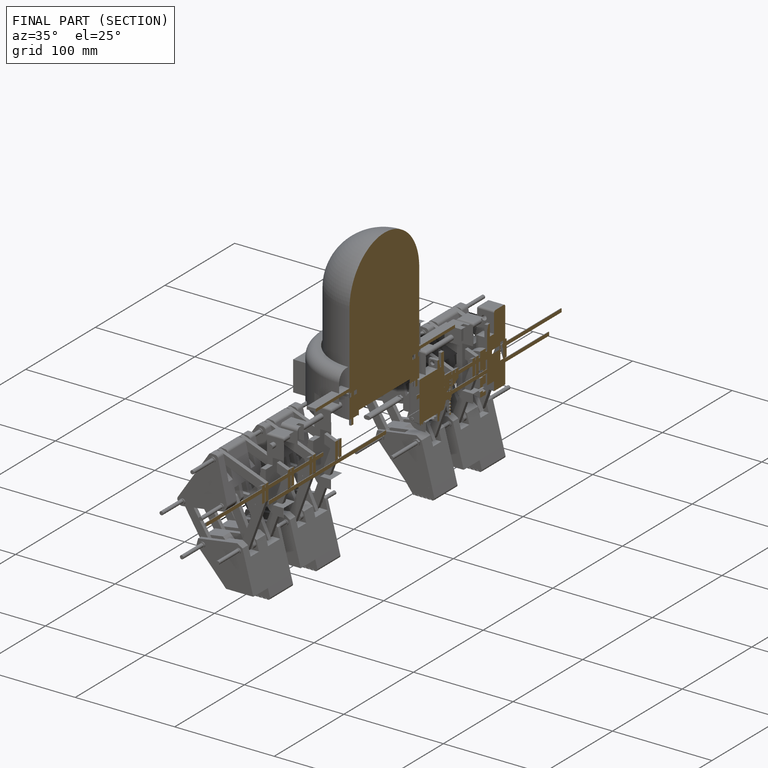
[diagram: finished part — half-section view (interior)]
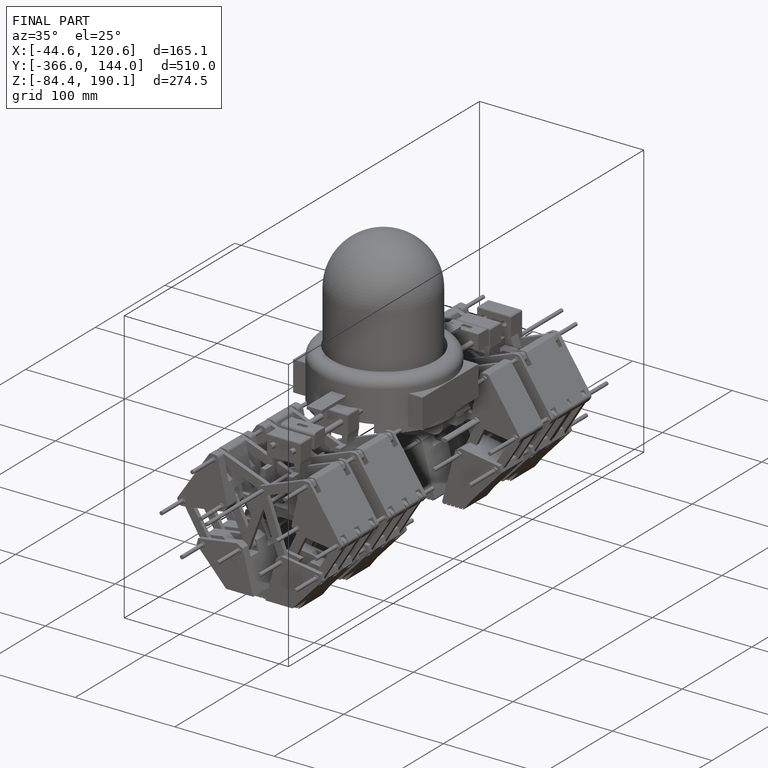
[diagram: finished part — iso view with bounding-box wireframe]
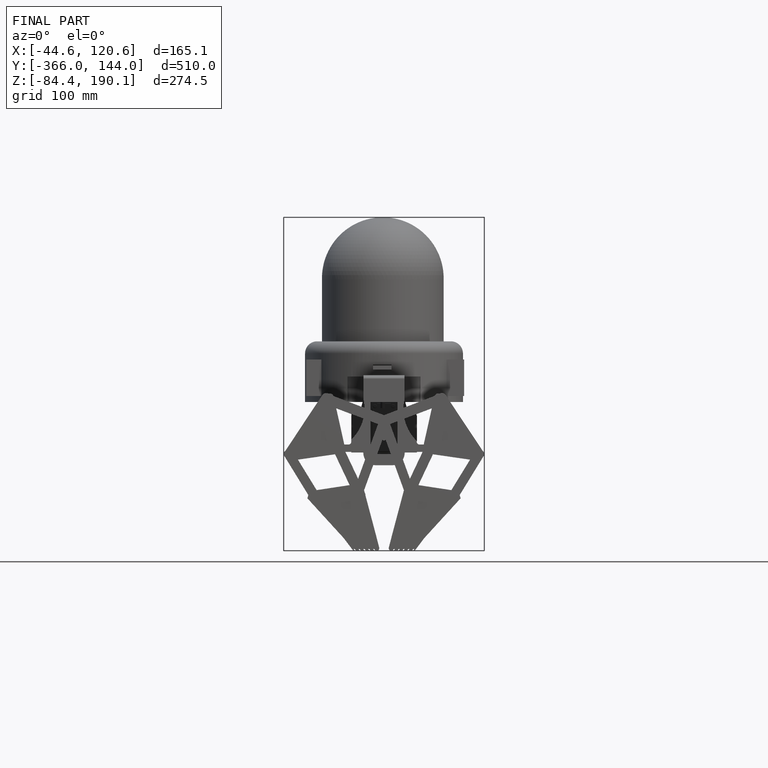
[diagram: finished part — front view with bounding-box wireframe]
